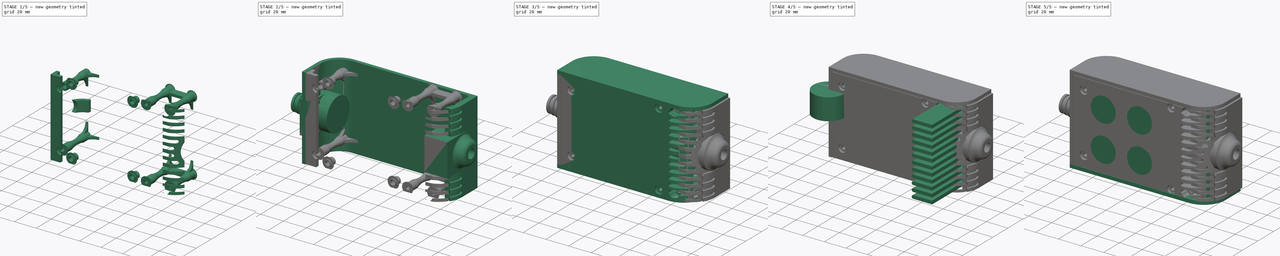
[diagram: build sequence overview — one tinted view per stage of 5, left to right]
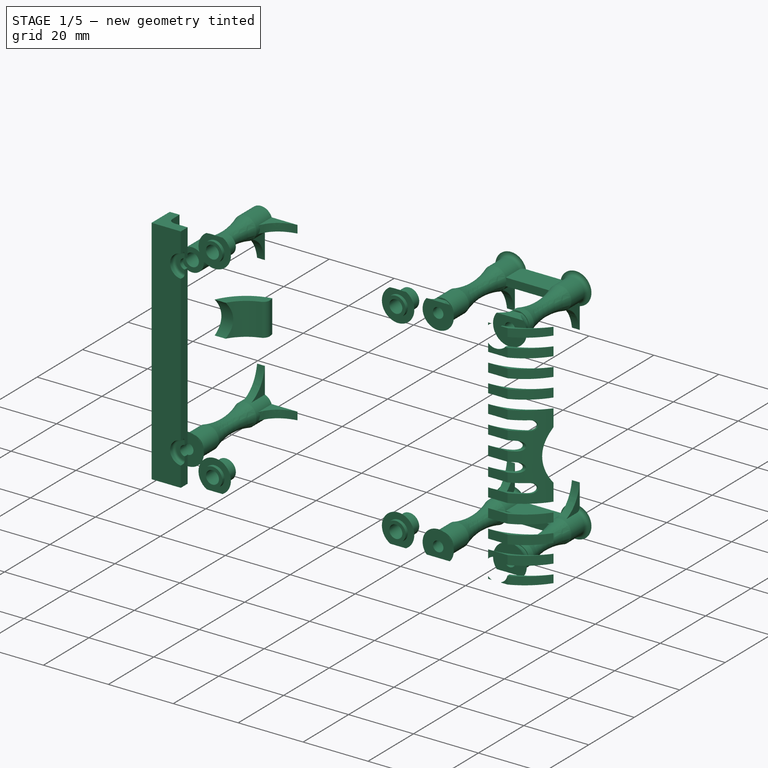
[diagram: stage 1 of 5 — iso view after this stage's code; geometry added in this stage tinted green]
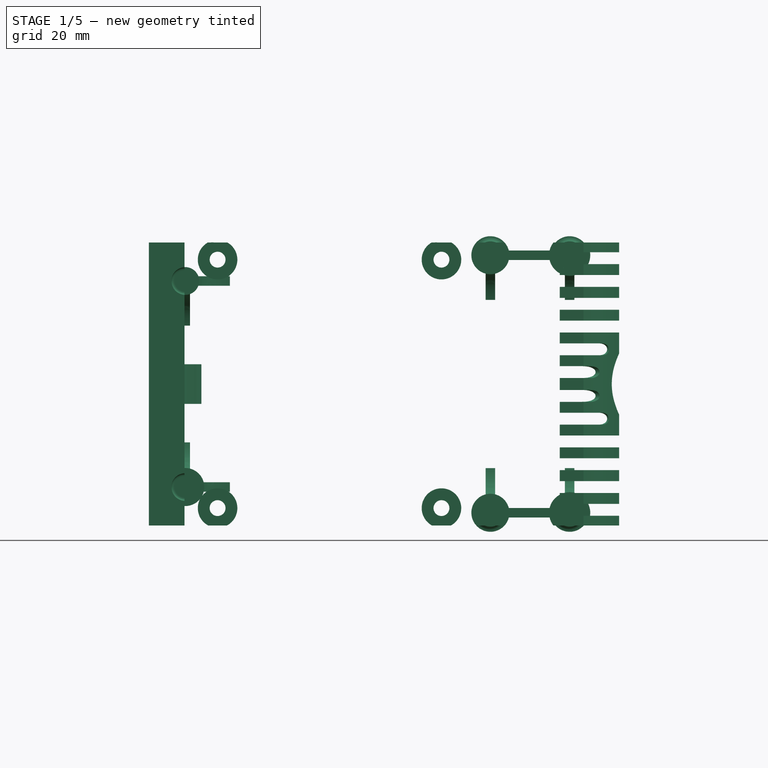
[diagram: stage 1 of 5 — front view after this stage's code; geometry added in this stage tinted green]
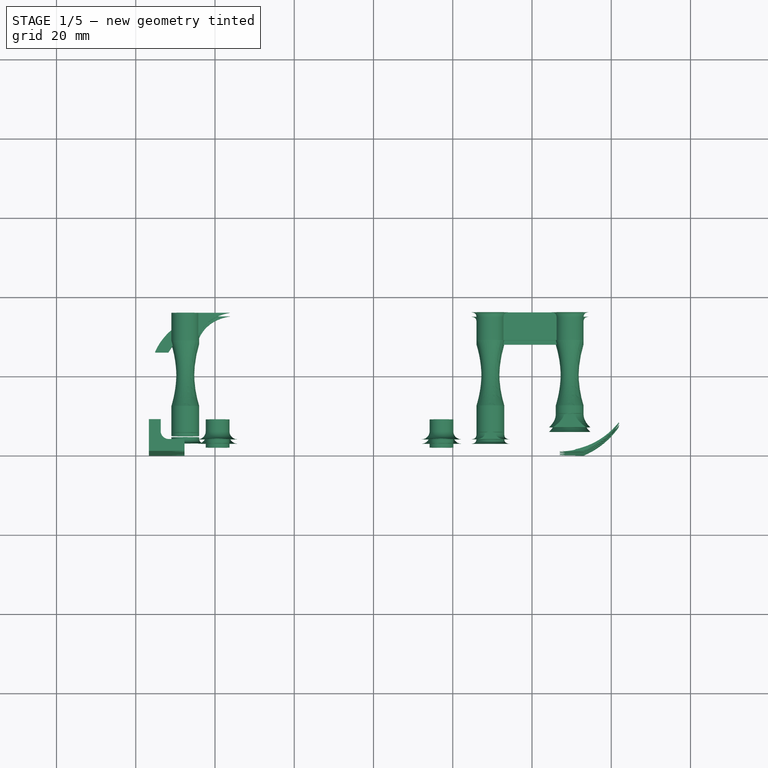
[diagram: stage 1 of 5 — top view after this stage's code; geometry added in this stage tinted green]
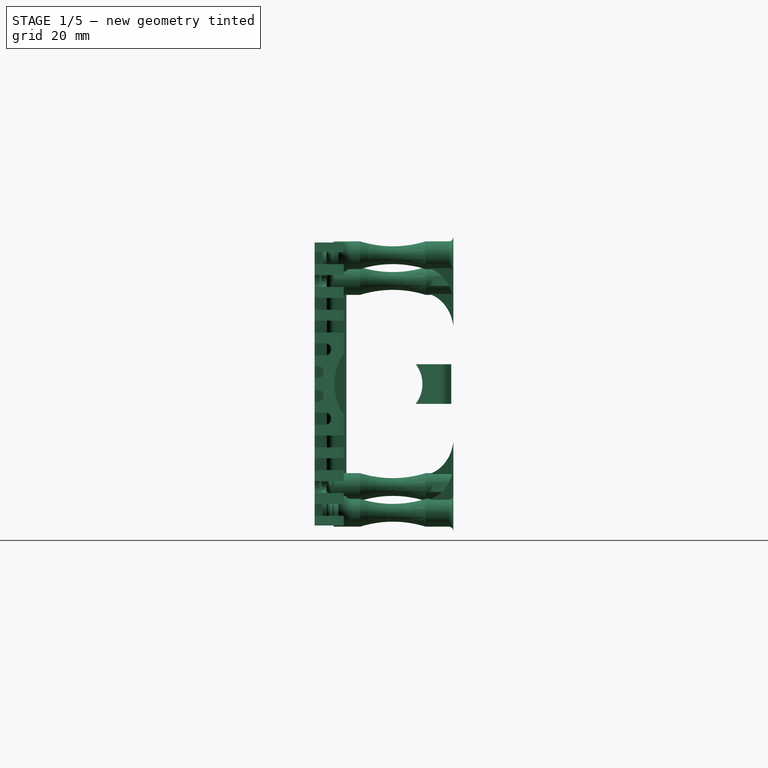
[diagram: stage 1 of 5 — right view after this stage's code; geometry added in this stage tinted green]
FCSTD DOCUMENT  (FreeCAD 0.19R0.19.2)
Label: enclosure_167FCStd
License: All rights reserved
LicenseURL: http://en.wikipedia.org/wiki/All_rights_reserved
objects: Part::Feature×140, Part::Revolution×140, Part::MultiFuse×125, Sketcher::SketchObject×71, Part::Extrusion×56, Part::Cut×56, Part::Cylinder×54, Part::Fillet×53, Part::Box×33, App::MeasureDistance×4
note: 728 computed .brp shape members not serialized (recipe doc carries the construction recipe); baked Part::Feature solids carry a one-line shape summary decoded from their .brp

FEATURE [Part::Feature] Face085
  shape: bbox 4.8 x 25.5 x 2e-07 mm, 1 faces, 0 solids (baked)
FEATURE [Part::Revolution] Revolve089  label="moreFrontCaseScrewPost003"
  Angle = 360
  Axis = (0,1,0)
  Base = (0,0,0)
  FaceMakerClass = Part::FaceMakerBullseye
  Placement = pos=(109.5,4.5,3.5) rot=(0,0,1;0rad)
  Solid = false
  Source = -> Face085
  Symmetric = false
FEATURE [Part::Feature] Face086
  shape: bbox 4.8 x 25.5 x 2e-07 mm, 1 faces, 0 solids (baked)
FEATURE [Part::Revolution] Revolve090  label="moreFrontCaseScrewPost004"
  Angle = 360
  Axis = (0,1,0)
  Base = (0,0,0)
  FaceMakerClass = Part::FaceMakerBullseye
  Placement = pos=(109.5,4.5,68.5) rot=(0,0,1;0rad)
  Solid = false
  Source = -> Face086
  Symmetric = false
FEATURE [Sketcher::SketchObject] Sketch039
  FullyConstrained = true
  sketch-geometry (7):
    g0: LineSegment StartX=0 StartY=0 StartZ=0 EndX=0 EndY=6 EndZ=0
    g1: Circle CenterX=0 CenterY=0 CenterZ=0 NormalX=0 NormalY=0 NormalZ=1 AngleXU=0 Radius=1
    g2: Circle CenterX=8 CenterY=6 CenterZ=0 NormalX=0 NormalY=0 NormalZ=1 AngleXU=0 Radius=1
    g3: BSplineCurve PolesCount=3 KnotsCount=2 Degree=2 IsPeriodic=0
    g4: GeomPoint X=0 Y=0 Z=0
    g5: GeomPoint X=8 Y=6 Z=0
    g6: LineSegment StartX=0 StartY=6 StartZ=0 EndX=8 EndY=6 EndZ=0
  constraints (14):
    c: Coincident(g0,g-1)
    c: Distance(g0) = 6
    c: Vertical(g0)
    c: Coincident(g3,g0)
    c: Weight(g1) = 1
    c: Equal(g1,g2)
    c: InternalAlignment(g1,g3)
    c: InternalAlignment(g2,g3)
    c: InternalAlignment(g4,g3)
    c: InternalAlignment(g5,g3)
    c: Block(g3)
    c: Coincident(g6,g0)
    c: Coincident(g6,g3)
    c: Horizontal(g6)
FEATURE [Sketcher::SketchObject] Sketch040
  FullyConstrained = true
  sketch-geometry (7):
    g0: LineSegment StartX=0 StartY=0 StartZ=0 EndX=0 EndY=6 EndZ=0
    g1: Circle CenterX=0 CenterY=0 CenterZ=0 NormalX=0 NormalY=0 NormalZ=1 AngleXU=0 Radius=1
    g2: Circle CenterX=8 CenterY=6 CenterZ=0 NormalX=0 NormalY=0 NormalZ=1 AngleXU=0 Radius=1
    g3: BSplineCurve PolesCount=3 KnotsCount=2 Degree=2 IsPeriodic=0
    g4: GeomPoint X=0 Y=0 Z=0
    g5: GeomPoint X=8 Y=6 Z=0
    g6: LineSegment StartX=0 StartY=6 StartZ=0 EndX=8 EndY=6 EndZ=0
  constraints (14):
    c: Coincident(g0,g-1)
    c: Distance(g0) = 6
    c: Vertical(g0)
    c: Coincident(g3,g0)
    c: Weight(g1) = 1
    c: Equal(g1,g2)
    c: InternalAlignment(g1,g3)
    c: InternalAlignment(g2,g3)
    c: InternalAlignment(g4,g3)
    c: InternalAlignment(g5,g3)
    c: Block(g3)
    c: Coincident(g6,g0)
    c: Coincident(g6,g3)
    c: Horizontal(g6)
FEATURE [Sketcher::SketchObject] Sketch041
  FullyConstrained = true
  sketch-geometry (7):
    g0: LineSegment StartX=0 StartY=0 StartZ=0 EndX=0 EndY=6 EndZ=0
    g1: Circle CenterX=0 CenterY=0 CenterZ=0 NormalX=0 NormalY=0 NormalZ=1 AngleXU=0 Radius=1
    g2: Circle CenterX=8 CenterY=6 CenterZ=0 NormalX=0 NormalY=0 NormalZ=1 AngleXU=0 Radius=1
    g3: BSplineCurve PolesCount=3 KnotsCount=2 Degree=2 IsPeriodic=0
    g4: GeomPoint X=0 Y=0 Z=0
    g5: GeomPoint X=8 Y=6 Z=0
    g6: LineSegment StartX=0 StartY=6 StartZ=0 EndX=8 EndY=6 EndZ=0
  constraints (14):
    c: Coincident(g0,g-1)
    c: Distance(g0) = 6
    c: Vertical(g0)
    c: Coincident(g3,g0)
    c: Weight(g1) = 1
    c: Equal(g1,g2)
    c: InternalAlignment(g1,g3)
    c: InternalAlignment(g2,g3)
    c: InternalAlignment(g4,g3)
    c: InternalAlignment(g5,g3)
    c: Block(g3)
    c: Coincident(g6,g0)
    c: Coincident(g6,g3)
    c: Horizontal(g6)
FEATURE [Sketcher::SketchObject] Sketch042
  FullyConstrained = true
  sketch-geometry (7):
    g0: LineSegment StartX=0 StartY=0 StartZ=0 EndX=0 EndY=6 EndZ=0
    g1: Circle CenterX=0 CenterY=0 CenterZ=0 NormalX=0 NormalY=0 NormalZ=1 AngleXU=0 Radius=1
    g2: Circle CenterX=8 CenterY=6 CenterZ=0 NormalX=0 NormalY=0 NormalZ=1 AngleXU=0 Radius=1
    g3: BSplineCurve PolesCount=3 KnotsCount=2 Degree=2 IsPeriodic=0
    g4: GeomPoint X=0 Y=0 Z=0
    g5: GeomPoint X=8 Y=6 Z=0
    g6: LineSegment StartX=0 StartY=6 StartZ=0 EndX=8 EndY=6 EndZ=0
  constraints (14):
    c: Coincident(g0,g-1)
    c: Distance(g0) = 6
    c: Vertical(g0)
    c: Coincident(g3,g0)
    c: Weight(g1) = 1
    c: Equal(g1,g2)
    c: InternalAlignment(g1,g3)
    c: InternalAlignment(g2,g3)
    c: InternalAlignment(g4,g3)
    c: InternalAlignment(g5,g3)
    c: Block(g3)
    c: Coincident(g6,g0)
    c: Coincident(g6,g3)
    c: Horizontal(g6)
FEATURE [Part::Extrusion] Extrude030  label="caseScrewPillarBracket008"
  Base = -> Sketch039
  Dir = (0,0,1)
  DirMode = 2
  FaceMakerClass = Part::FaceMakerBullseye
  LengthFwd = 2.4
  LengthRev = 0
  Placement = pos=(15.76,29,8.8) rot=(0,1,0;0rad)
  Solid = true
  Symmetric = false
FEATURE [Part::Extrusion] Extrude031  label="caseScrewPillarBracket009"
  Base = -> Sketch040
  Dir = (0,0,1)
  DirMode = 2
  FaceMakerClass = Part::FaceMakerBullseye
  LengthFwd = 2.4
  LengthRev = 0
  Placement = pos=(15.76,29,60.8) rot=(0,0,1;0rad)
  Solid = true
  Symmetric = false
FEATURE [Part::Extrusion] Extrude032  label="caseScrewPillarBracket010"
  Base = -> Sketch041
  Dir = (0,0,1)
  DirMode = 2
  FaceMakerClass = Part::FaceMakerBullseye
  LengthFwd = 2.4
  LengthRev = 0
  Placement = pos=(13.7,29,13.26) rot=(0,-1,0;1.5708rad)
  Solid = true
  Symmetric = false
FEATURE [Part::Extrusion] Extrude033  label="caseScrewPillarBracket011"
  Base = -> Sketch042
  Dir = (0,0,1)
  DirMode = 2
  FaceMakerClass = Part::FaceMakerBullseye
  LengthFwd = 2.4
  LengthRev = 0
  Placement = pos=(11.3,29,58.74) rot=(0,1,0;1.5708rad)
  Solid = true
  Symmetric = false
FEATURE [Sketcher::SketchObject] Sketch043
  FullyConstrained = true
  sketch-geometry (7):
    g0: LineSegment StartX=0 StartY=0 StartZ=0 EndX=0 EndY=6 EndZ=0
    g1: Circle CenterX=0 CenterY=0 CenterZ=0 NormalX=0 NormalY=0 NormalZ=1 AngleXU=0 Radius=1
    g2: Circle CenterX=8 CenterY=6 CenterZ=0 NormalX=0 NormalY=0 NormalZ=1 AngleXU=0 Radius=1
    g3: BSplineCurve PolesCount=3 KnotsCount=2 Degree=2 IsPeriodic=0
    g4: GeomPoint X=0 Y=0 Z=0
    g5: GeomPoint X=8 Y=6 Z=0
    g6: LineSegment StartX=0 StartY=6 StartZ=0 EndX=8 EndY=6 EndZ=0
  constraints (14):
    c: Coincident(g0,g-1)
    c: Distance(g0) = 6
    c: Vertical(g0)
    c: Coincident(g3,g0)
    c: Weight(g1) = 1
    c: Equal(g1,g2)
    c: InternalAlignment(g1,g3)
    c: InternalAlignment(g2,g3)
    c: InternalAlignment(g4,g3)
    c: InternalAlignment(g5,g3)
    c: Block(g3)
    c: Coincident(g6,g0)
    c: Coincident(g6,g3)
    c: Horizontal(g6)
FEATURE [Part::Extrusion] Extrude034  label="caseScrewPillarBracket012"
  Base = -> Sketch043
  Dir = (0,0,1)
  DirMode = 2
  FaceMakerClass = Part::FaceMakerBullseye
  LengthFwd = 2.4
  LengthRev = 0
  Placement = pos=(88.3,29,65.23) rot=(0,1,0;1.5708rad)
  Solid = true
  Symmetric = false
FEATURE [Sketcher::SketchObject] Sketch044
  FullyConstrained = true
  sketch-geometry (7):
    g0: LineSegment StartX=0 StartY=0 StartZ=0 EndX=0 EndY=6 EndZ=0
    g1: Circle CenterX=0 CenterY=0 CenterZ=0 NormalX=0 NormalY=0 NormalZ=1 AngleXU=0 Radius=1
    g2: Circle CenterX=8 CenterY=6 CenterZ=0 NormalX=0 NormalY=0 NormalZ=1 AngleXU=0 Radius=1
    g3: BSplineCurve PolesCount=3 KnotsCount=2 Degree=2 IsPeriodic=0
    g4: GeomPoint X=0 Y=0 Z=0
    g5: GeomPoint X=8 Y=6 Z=0
    g6: LineSegment StartX=0 StartY=6 StartZ=0 EndX=8 EndY=6 EndZ=0
  constraints (14):
    c: Coincident(g0,g-1)
    c: Distance(g0) = 6
    c: Vertical(g0)
    c: Coincident(g3,g0)
    c: Weight(g1) = 1
    c: Equal(g1,g2)
    c: InternalAlignment(g1,g3)
    c: InternalAlignment(g2,g3)
    c: InternalAlignment(g4,g3)
    c: InternalAlignment(g5,g3)
    c: Block(g3)
    c: Coincident(g6,g0)
    c: Coincident(g6,g3)
    c: Horizontal(g6)
FEATURE [Part::Extrusion] Extrude035  label="caseScrewPillarBracket013"
  Base = -> Sketch044
  Dir = (0,0,1)
  DirMode = 2
  FaceMakerClass = Part::FaceMakerBullseye
  LengthFwd = 2.4
  LengthRev = 0
  Placement = pos=(90.7,29,6.77) rot=(0,-1,0;1.5708rad)
  Solid = true
  Symmetric = false
FEATURE [Sketcher::SketchObject] Sketch045
  FullyConstrained = true
  sketch-geometry (7):
    g0: LineSegment StartX=0 StartY=0 StartZ=0 EndX=0 EndY=6 EndZ=0
    g1: Circle CenterX=0 CenterY=0 CenterZ=0 NormalX=0 NormalY=0 NormalZ=1 AngleXU=0 Radius=1
    g2: Circle CenterX=8 CenterY=6 CenterZ=0 NormalX=0 NormalY=0 NormalZ=1 AngleXU=0 Radius=1
    g3: BSplineCurve PolesCount=3 KnotsCount=2 Degree=2 IsPeriodic=0
    g4: GeomPoint X=0 Y=0 Z=0
    g5: GeomPoint X=8 Y=6 Z=0
    g6: LineSegment StartX=0 StartY=6 StartZ=0 EndX=8 EndY=6 EndZ=0
  constraints (14):
    c: Coincident(g0,g-1)
    c: Distance(g0) = 6
    c: Vertical(g0)
    c: Coincident(g3,g0)
    c: Weight(g1) = 1
    c: Equal(g1,g2)
    c: InternalAlignment(g1,g3)
    c: InternalAlignment(g2,g3)
    c: InternalAlignment(g4,g3)
    c: InternalAlignment(g5,g3)
    c: Block(g3)
    c: Coincident(g6,g0)
    c: Coincident(g6,g3)
    c: Horizontal(g6)
FEATURE [Sketcher::SketchObject] Sketch046
  FullyConstrained = true
  sketch-geometry (7):
    g0: LineSegment StartX=0 StartY=0 StartZ=0 EndX=0 EndY=6 EndZ=0
    g1: Circle CenterX=0 CenterY=0 CenterZ=0 NormalX=0 NormalY=0 NormalZ=1 AngleXU=0 Radius=1
    g2: Circle CenterX=8 CenterY=6 CenterZ=0 NormalX=0 NormalY=0 NormalZ=1 AngleXU=0 Radius=1
    g3: BSplineCurve PolesCount=3 KnotsCount=2 Degree=2 IsPeriodic=0
    g4: GeomPoint X=0 Y=0 Z=0
    g5: GeomPoint X=8 Y=6 Z=0
    g6: LineSegment StartX=0 StartY=6 StartZ=0 EndX=8 EndY=6 EndZ=0
  constraints (14):
    c: Coincident(g0,g-1)
    c: Distance(g0) = 6
    c: Vertical(g0)
    c: Coincident(g3,g0)
    c: Weight(g1) = 1
    c: Equal(g1,g2)
    c: InternalAlignment(g1,g3)
    c: InternalAlignment(g2,g3)
    c: InternalAlignment(g4,g3)
    c: InternalAlignment(g5,g3)
    c: Block(g3)
    c: Coincident(g6,g0)
    c: Coincident(g6,g3)
    c: Horizontal(g6)
FEATURE [Part::Extrusion] Extrude036  label="caseScrewPillarBracket014"
  Base = -> Sketch045
  Dir = (0,0,1)
  DirMode = 2
  FaceMakerClass = Part::FaceMakerBullseye
  LengthFwd = 2.4
  LengthRev = 0
  Placement = pos=(110.7,29,6.77) rot=(0,-1,0;1.5708rad)
  Solid = true
  Symmetric = false
FEATURE [Part::Extrusion] Extrude037  label="caseScrewPillarBracket015"
  Base = -> Sketch046
  Dir = (0,0,1)
  DirMode = 2
  FaceMakerClass = Part::FaceMakerBullseye
  LengthFwd = 2.4
  LengthRev = 0
  Placement = pos=(108.3,29,65.23) rot=(0,1,0;1.5708rad)
  Solid = true
  Symmetric = false
FEATURE [Part::Box] Box013  label="frontCaseScrewPillarBracket002"
  AttacherType = Attacher::AttachEngine3D
  Height = 2.4
  Length = 22
  Placement = pos=(87,28,2.3) rot=(0,0,1;0rad)
  Width = 7
FEATURE [Part::Box] Box014  label="frontCaseScrewPillarBracket003"
  AttacherType = Attacher::AttachEngine3D
  Height = 2.4
  Length = 22
  Placement = pos=(87,28,67.3) rot=(0,0,1;0rad)
  Width = 7
FEATURE [Part::Feature] Face087
  shape: bbox 4.8 x 30.2 x 2e-07 mm, 1 faces, 0 solids (baked)
FEATURE [Part::Revolution] Revolve091  label="frontCaseScrewPost004"
  Angle = 360
  Axis = (0,1,0)
  Base = (0,0,0)
  FaceMakerClass = Part::FaceMakerBullseye
  Placement = pos=(89.5,4.5,3.5) rot=(0,0,1;0rad)
  Solid = false
  Source = -> Face087
  Symmetric = false
FEATURE [Part::Feature] Face088
  shape: bbox 4.8 x 30.2 x 2e-07 mm, 1 faces, 0 solids (baked)
FEATURE [Part::Revolution] Revolve092  label="frontCaseScrewPost005"
  Angle = 360
  Axis = (0,1,0)
  Base = (0,0,0)
  FaceMakerClass = Part::FaceMakerBullseye
  Placement = pos=(89.5,4.5,68.5) rot=(0,0,1;0rad)
  Solid = false
  Source = -> Face088
  Symmetric = false
FEATURE [Part::Feature] Face089
  shape: bbox 3.5 x 30.2 x 2e-07 mm, 1 faces, 0 solids (baked)
FEATURE [Part::Revolution] Revolve093  label="backCaseScrewPost002"
  Angle = 360
  Axis = (0,1,0)
  Base = (0,0,0)
  FaceMakerClass = Part::FaceMakerBullseye
  Placement = pos=(12.5,4.5,10) rot=(0,0,1;0rad)
  Solid = false
  Source = -> Face089
  Symmetric = false
FEATURE [Part::Feature] Face090
  shape: bbox 3.5 x 30.2 x 2e-07 mm, 1 faces, 0 solids (baked)
FEATURE [Part::Revolution] Revolve094  label="backCaseScrewPost003"
  Angle = 360
  Axis = (0,1,0)
  Base = (0,0,0)
  FaceMakerClass = Part::FaceMakerBullseye
  Placement = pos=(12.5,4.5,62) rot=(0,0,1;0rad)
  Solid = false
  Source = -> Face090
  Symmetric = false
FEATURE [Part::Cylinder] Cylinder030
  Angle = 360
  AttacherType = Attacher::AttachEngine3D
  Height = 20
  Placement = pos=(0,0,36.15) rot=(0,0,1;0rad)
  Radius = 14.3
FEATURE [Part::Cylinder] Cylinder031
  Angle = 360
  AttacherType = Attacher::AttachEngine3D
  Height = 10
  Placement = pos=(0,0,36.15) rot=(0,0,1;0rad)
  Radius = 4
FEATURE [Part::Box] Box021  label="removeToCreteHoleForPlugHousing019"
  AttacherType = Attacher::AttachEngine3D
  Height = 28.6
  Length = 20
  Placement = pos=(106.15,0,21.7) rot=(0,0,1;0rad)
  Width = 19
FEATURE [Part::MultiFuse] Fusion074  label="removeToCreteHoleForPlugHousing020"
  Placement = pos=(70,19,36) rot=(0,1,0;1.5708rad)
  Shapes = -> [Cylinder030,Cylinder031]
FEATURE [Part::MultiFuse] Fusion073  label="removeToCreteHoleForPlugHousing018"
  Placement = pos=(0,0,28.3) rot=(0,0,1;0rad)
  Shapes = -> [Box021,Fusion074]
FEATURE [Part::Cylinder] Cylinder032
  Angle = 360
  AttacherType = Attacher::AttachEngine3D
  Height = 20
  Placement = pos=(0,0,36.15) rot=(0,0,1;0rad)
  Radius = 14.3
FEATURE [Part::Cylinder] Cylinder033
  Angle = 360
  AttacherType = Attacher::AttachEngine3D
  Height = 10
  Placement = pos=(0,0,36.15) rot=(0,0,1;0rad)
  Radius = 4
FEATURE [Part::Box] Box022  label="removeToCreteHoleForPlugHousing021"
  AttacherType = Attacher::AttachEngine3D
  Height = 28.6
  Length = 20
  Placement = pos=(106.15,0,21.7) rot=(0,0,1;0rad)
  Width = 19
FEATURE [Part::MultiFuse] Fusion076  label="removeToCreteHoleForPlugHousing023"
  Placement = pos=(70,19,36) rot=(0,1,0;1.5708rad)
  Shapes = -> [Cylinder032,Cylinder033]
FEATURE [Part::MultiFuse] Fusion075  label="removeToCreteHoleForPlugHousing022"
  Placement = pos=(0,0,-28.3) rot=(0,0,1;0rad)
  Shapes = -> [Box022,Fusion076]
FEATURE [Part::MultiFuse] Fusion077  label="removeToCreatePlugHousingBottomBit"
  Shapes = -> [Fusion075,Fusion073]
FEATURE [Part::Cylinder] Cylinder034
  Angle = 360
  AttacherType = Attacher::AttachEngine3D
  Height = 20
  Placement = pos=(0,0,36.15) rot=(0,0,1;0rad)
  Radius = 14
FEATURE [Part::Cylinder] Cylinder035
  Angle = 360
  AttacherType = Attacher::AttachEngine3D
  Height = 10
  Placement = pos=(0,0,36.15) rot=(0,0,1;0rad)
  Radius = 4
FEATURE [Part::MultiFuse] Fusion078  label="removeToCreteHoleForPlugHousing024"
  Placement = pos=(70,19,36) rot=(0,1,0;1.5708rad)
  Shapes = -> [Cylinder034,Cylinder035]
FEATURE [Part::MultiFuse] Fusion079  label="removeToCreatePlugHousingBottomBit001"
  Shapes = -> [Fusion078,Fusion077]
FEATURE [Part::Extrusion] Extrude040  label="bottomPlugHousingBit"
  Base = -> Sketch049
  Dir = (0,0,1)
  DirMode = 2
  FaceMakerClass = Part::FaceMakerBullseye
  LengthFwd = 72
  LengthRev = 0
  Solid = true
  Symmetric = false
FEATURE [Part::Cut] Cut034  label="bottomPlugHousingBit001"
  Base = -> Extrude040
  Placement = pos=(-0.09,0,0) rot=(0,0,1;0rad)
  Tool = -> Fusion079
FEATURE [Part::Feature] Face099
  shape: bbox 3.5 x 17.8 x 2e-07 mm, 1 faces, 0 solids (baked)
FEATURE [Part::Revolution] Revolve107  label="removeToCreateScrewAndThreadedInsertHole034"
  Angle = 360
  Axis = (0,1,0)
  Base = (0,0,0)
  FaceMakerClass = Part::FaceMakerBullseye
  Placement = pos=(12.5,0,10) rot=(0,0,1;0rad)
  Solid = false
  Source = -> Face099
  Symmetric = false
FEATURE [Part::Feature] Face100
  shape: bbox 3.5 x 17.8 x 2e-07 mm, 1 faces, 0 solids (baked)
FEATURE [Part::Revolution] Revolve108  label="removeToCreateScrewAndThreadedInsertHole035"
  Angle = 360
  Axis = (0,1,0)
  Base = (0,0,0)
  FaceMakerClass = Part::FaceMakerBullseye
  Placement = pos=(12.5,0,62) rot=(0,0,1;0rad)
  Solid = false
  Source = -> Face100
  Symmetric = false
FEATURE [Part::Feature] Face101
  shape: bbox 3.5 x 17.8 x 2e-07 mm, 1 faces, 0 solids (baked)
FEATURE [Part::Revolution] Revolve109  label="removeToCreateScrewAndThreadedInsertHole036"
  Angle = 360
  Axis = (0,1,0)
  Base = (0,0,0)
  FaceMakerClass = Part::FaceMakerBullseye
  Placement = pos=(89.5,0,68.5) rot=(0,0,1;0rad)
  Solid = false
  Source = -> Face101
  Symmetric = false
FEATURE [Part::Feature] Face102
  shape: bbox 3.5 x 17.8 x 2e-07 mm, 1 faces, 0 solids (baked)
FEATURE [Part::Revolution] Revolve110  label="removeToCreateScrewAndThreadedInsertHole037"
  Angle = 360
  Axis = (0,1,0)
  Base = (0,0,0)
  FaceMakerClass = Part::FaceMakerBullseye
  Placement = pos=(89.5,0,3.5) rot=(0,0,1;0rad)
  Solid = false
  Source = -> Face102
  Symmetric = false
FEATURE [Part::Feature] Face103
  shape: bbox 3.5 x 17.8 x 2e-07 mm, 1 faces, 0 solids (baked)
FEATURE [Part::Revolution] Revolve111  label="removeToCreateScrewAndThreadedInsertHole038"
  Angle = 360
  Axis = (0,1,0)
  Base = (0,0,0)
  FaceMakerClass = Part::FaceMakerBullseye
  Placement = pos=(109.5,4.7,3.5) rot=(0,0,1;0rad)
  Solid = false
  Source = -> Face103
  Symmetric = false
FEATURE [Part::Feature] Face104
  shape: bbox 3.5 x 17.8 x 2e-07 mm, 1 faces, 0 solids (baked)
FEATURE [Part::Revolution] Revolve112  label="removeToCreateScrewAndThreadedInsertHole039"
  Angle = 360
  Axis = (0,1,0)
  Base = (0,0,0)
  FaceMakerClass = Part::FaceMakerBullseye
  Placement = pos=(109.5,4.7,68.5) rot=(0,0,1;0rad)
  Solid = false
  Source = -> Face104
  Symmetric = false
FEATURE [Part::MultiFuse] Fusion081  label="removeToCreateScrewAndThreadedInsertHole040"
  Shapes = -> [Revolve107,Revolve108,Revolve109,Revolve110,Revolve111,Revolve112]
FEATURE [Part::MultiFuse] Fusion082  label="casePillars002"
  Shapes = -> [Revolve094,Revolve092,Revolve090,Revolve089,Revolve091,Revolve093]
FEATURE [Part::Cut] Cut037  label="casePillars003"
  Base = -> Fusion082
  Tool = -> Fusion081
FEATURE [Sketcher::SketchObject] Sketch052  label="bottomSketch001"
  FullyConstrained = true
  sketch-geometry (45):
    g0: LineSegment StartX=6.29999 StartY=8 StartZ=0 EndX=3.29999 EndY=8 EndZ=0
    g1: LineSegment StartX=3.29999 StartY=8 StartZ=0 EndX=3.29999 EndY=-6.03275e-07 EndZ=0
    g2: ArcOfCircle CenterX=8.29999 CenterY=5 CenterZ=0 NormalX=0 NormalY=0 NormalZ=1 AngleXU=0 Radius=2 StartAngle=3.14159 EndAngle=4.71239
    g3: LineSegment StartX=6.29999 StartY=8 StartZ=0 EndX=6.29999 EndY=5 EndZ=0
    g4: ArcOfCircle CenterX=105 CenterY=19 CenterZ=0 NormalX=0 NormalY=0 NormalZ=1 AngleXU=0 Radius=12.7 StartAngle=4.71239 EndAngle=5.94289
    g5-g11: Circle x7 (B-spline internal-alignment scaffolding for g12; pole/knot coordinates omitted)
    g12: BSplineCurve PolesCount=7 KnotsCount=5 Degree=3 IsPeriodic=0
    g13-g17: GeomPoint x5 (B-spline internal-alignment scaffolding for g12; pole/knot coordinates omitted)
    g18: ArcOfCircle CenterX=105 CenterY=19 CenterZ=0 NormalX=0 NormalY=0 NormalZ=1 AngleXU=0 Radius=15.7 StartAngle=5.81226 EndAngle=6.28319
    g19: BSplineCurve PolesCount=5 KnotsCount=3 Degree=3 IsPeriodic=0
    g20: LineSegment StartX=8.29999 StartY=3 StartZ=0 EndX=101.7 EndY=3 EndZ=0
    g21: LineSegment StartX=3.29999 StartY=-6.03275e-07 StartZ=0 EndX=105 EndY=-6.03275e-07 EndZ=0
    g22: LineSegment StartX=120.974 StartY=8.71251 StartZ=0 EndX=122.332 EndY=7.83778 EndZ=0
    g23: LineSegment StartX=105 StartY=-6.03274e-07 StartZ=0 EndX=113 EndY=-6.03274e-07 EndZ=0
    g24: ArcOfCircle CenterX=105 CenterY=19 CenterZ=0 NormalX=0 NormalY=0 NormalZ=1 AngleXU=0 Radius=20.6155 StartAngle=5.11091 EndAngle=5.71103
    g25: ArcOfCircle CenterX=117.7 CenterY=19 CenterZ=0 NormalX=0 NormalY=0 NormalZ=1 AngleXU=0 Radius=3 StartAngle=1.2e-15 EndAngle=2.10468
    g26: Circle CenterX=116.345 CenterY=16.3232 CenterZ=0 NormalX=0 NormalY=0 NormalZ=1 AngleXU=0 Radius=1
    g27: Circle CenterX=117.24 CenterY=15.7584 CenterZ=0 NormalX=0 NormalY=0 NormalZ=1 AngleXU=0 Radius=1
    g28: Circle CenterX=116.972 CenterY=14.7612 CenterZ=0 NormalX=0 NormalY=0 NormalZ=1 AngleXU=0 Radius=1
    g29: BSplineCurve PolesCount=3 KnotsCount=2 Degree=2 IsPeriodic=0
    g30: GeomPoint X=116.345 Y=16.3232 Z=0
    g31: GeomPoint X=116.972 Y=14.7612 Z=0
    g32: Circle CenterX=115.828 CenterY=17.157 CenterZ=0 NormalX=0 NormalY=0 NormalZ=1 AngleXU=0 Radius=1
    g33: Circle CenterX=115.841 CenterY=16.639 CenterZ=0 NormalX=0 NormalY=0 NormalZ=1 AngleXU=0 Radius=1
    g34: Circle CenterX=116.345 CenterY=16.3232 CenterZ=0 NormalX=0 NormalY=0 NormalZ=1 AngleXU=0 Radius=1
    g35: BSplineCurve PolesCount=3 KnotsCount=2 Degree=2 IsPeriodic=0
    g36: GeomPoint X=115.828 Y=17.157 Z=0
    g37: GeomPoint X=116.345 Y=16.3232 Z=0
    g38: LineSegment StartX=115.828 StartY=17.157 StartZ=0 EndX=115.828 EndY=20.8307 EndZ=0
    g39: Circle CenterX=115.828 CenterY=20.8307 CenterZ=0 NormalX=0 NormalY=0 NormalZ=1 AngleXU=0 Radius=1
    g40: Circle CenterX=115.831 CenterY=21.3396 CenterZ=0 NormalX=0 NormalY=0 NormalZ=1 AngleXU=0 Radius=1
    g41: Circle CenterX=116.173 CenterY=21.5825 CenterZ=0 NormalX=0 NormalY=0 NormalZ=1 AngleXU=0 Radius=1
    g42: BSplineCurve PolesCount=3 KnotsCount=2 Degree=2 IsPeriodic=0
    g43: GeomPoint X=115.828 Y=20.8307 Z=0
    g44: GeomPoint X=116.173 Y=21.5825 Z=0
  constraints (70):
    c: Horizontal(g0)
    c: Distance(g0) = 3
    c: Coincident(g1,g0)
    c: Vertical(g1)
    c: Block(g2)
    c: Block(g0)
    c: Coincident(g3,g0)
    c: Coincident(g3,g2)
    c: Vertical(g3)
    c: Block(g1)
    c: Block(g4)
    c: Coincident(g19,g4)
    c: Block(g19)
    c: Equal(g5, g6-g11) x6
    c: InternalAlignment(g5-g11 -> g12) x7
    c: InternalAlignment(g13-g17 -> g12) x5
    c: Block(g12)
    c: Coincident(g18,g12)
    c: Block(g18)
    c: Coincident(g20,g2)
    c: Coincident(g20,g19)
    c: Horizontal(g20)
    c: Distance(g20) = 93.4
    c: Coincident(g21,g1)
    c: Horizontal(g21)
    c: Distance(g21) = 101.7
    c: Horizontal(g23)
    c: Distance(g23) = 8
    c: Coincident(g24,g23)
    c: Block(g23)
    c: Coincident(g22,g24)
    c: Block(g24)
    c: Block(g22)
    c: Distance(g22) = 1.61553
    c: Coincident(g25,g18)
    c: Block(g25)
    c: Weight(g26) = 1
    c: Equal(g26,g27)
    c: Equal(g26,g28)
    c: Coincident(g29,g4)
    c: InternalAlignment(g26,g29)
    c: InternalAlignment(g27,g29)
    c: InternalAlignment(g28,g29)
    c: InternalAlignment(g30,g29)
    c: InternalAlignment(g31,g29)
    c: Block(g29)
    c: Weight(g32) = 1
    c: Equal(g32,g33)
    c: Equal(g32,g34)
    c: Coincident(g35,g29)
    c: InternalAlignment(g32,g35)
    c: InternalAlignment(g33,g35)
    c: InternalAlignment(g34,g35)
    c: InternalAlignment(g36,g35)
    c: InternalAlignment(g37,g35)
    c: Block(g35)
    c: Coincident(g38,g35)
    c: Vertical(g38)
    c: Block(g38)
    c: Coincident(g42,g38)
    c: Weight(g39) = 1
    c: Equal(g39,g40)
    c: Equal(g39,g41)
    c: Coincident(g42,g25)
    c: InternalAlignment(g39,g42)
    c: InternalAlignment(g40,g42)
    c: InternalAlignment(g41,g42)
    c: InternalAlignment(g43,g42)
    c: InternalAlignment(g44,g42)
    c: Block(g42)
FEATURE [Part::Extrusion] Extrude043  label="bottom010"
  Base = -> Sketch052
  Dir = (0,0,1)
  DirMode = 2
  FaceMakerClass = Part::FaceMakerBullseye
  LengthFwd = 71.4
  LengthRev = 0
  Placement = pos=(0,0,0.3) rot=(0,0,1;0rad)
  Solid = true
  Symmetric = false
FEATURE [Part::MultiFuse] Fusion092  label="caseScrewPillarBracket016"
  Shapes = -> [Extrude030,Extrude031,Extrude032,Extrude033,Extrude034,Extrude035,Extrude036,Extrude037,Box013,Box014]
FEATURE [Sketcher::SketchObject] Sketch059
  FullyConstrained = true
  MapMode = 3
  Placement = pos=(0,0,0) rot=(1,0,0;1.5708rad)
  Support = -> [Extrude049]
  sketch-geometry (8):
    g0: Circle CenterX=80.351 CenterY=-67.6202 CenterZ=0 NormalX=0 NormalY=0 NormalZ=1 AngleXU=0 Radius=2
    g1: Circle CenterX=80.351 CenterY=-67.6202 CenterZ=0 NormalX=0 NormalY=0 NormalZ=1 AngleXU=0 Radius=3
    g2: Circle CenterX=80.351 CenterY=-4.92017 CenterZ=0 NormalX=0 NormalY=0 NormalZ=1 AngleXU=0 Radius=2
    g3: Circle CenterX=80.351 CenterY=-4.92017 CenterZ=0 NormalX=0 NormalY=0 NormalZ=1 AngleXU=0 Radius=3
    g4: Circle CenterX=23.851 CenterY=-4.92017 CenterZ=0 NormalX=0 NormalY=0 NormalZ=1 AngleXU=0 Radius=2
    g5: Circle CenterX=23.851 CenterY=-4.92017 CenterZ=0 NormalX=0 NormalY=0 NormalZ=1 AngleXU=0 Radius=3
    g6: Circle CenterX=23.851 CenterY=-67.6202 CenterZ=0 NormalX=0 NormalY=0 NormalZ=1 AngleXU=0 Radius=2
    g7: Circle CenterX=23.851 CenterY=-67.6202 CenterZ=0 NormalX=0 NormalY=0 NormalZ=1 AngleXU=0 Radius=3
  constraints (8):
    c: Block(g3)
    c: Block(g2)
    c: Block(g1)
    c: Block(g0)
    c: Block(g6)
    c: Block(g7)
    c: Block(g4)
    c: Block(g5)
FEATURE [Sketcher::SketchObject] Sketch060
  FullyConstrained = true
  MapMode = 3
  Placement = pos=(0,0,0) rot=(1,0,0;1.5708rad)
  Support = -> [Extrude049]
  sketch-geometry (8):
    g0: Circle CenterX=80.351 CenterY=-67.6202 CenterZ=0 NormalX=0 NormalY=0 NormalZ=1 AngleXU=0 Radius=3
    g1: Circle CenterX=80.351 CenterY=-4.92017 CenterZ=0 NormalX=0 NormalY=0 NormalZ=1 AngleXU=0 Radius=3
    g2: Circle CenterX=23.851 CenterY=-4.92017 CenterZ=0 NormalX=0 NormalY=0 NormalZ=1 AngleXU=0 Radius=3
    g3: Circle CenterX=23.851 CenterY=-67.6202 CenterZ=0 NormalX=0 NormalY=0 NormalZ=1 AngleXU=0 Radius=3
    g4: Circle CenterX=23.851 CenterY=-67.6202 CenterZ=0 NormalX=0 NormalY=0 NormalZ=1 AngleXU=0 Radius=5
    g5: Circle CenterX=80.351 CenterY=-67.6202 CenterZ=0 NormalX=0 NormalY=0 NormalZ=1 AngleXU=0 Radius=5
    g6: Circle CenterX=23.851 CenterY=-4.92017 CenterZ=0 NormalX=0 NormalY=0 NormalZ=1 AngleXU=0 Radius=5
    g7: Circle CenterX=80.351 CenterY=-4.92017 CenterZ=0 NormalX=0 NormalY=0 NormalZ=1 AngleXU=0 Radius=5
  constraints (8):
    c: Block(g1)
    c: Block(g0)
    c: Block(g3)
    c: Block(g2)
    c: Block(g5)
    c: Block(g4)
    c: Block(g6)
    c: Block(g7)
FEATURE [Sketcher::SketchObject] Sketch061
  FullyConstrained = true
  MapMode = 3
  Placement = pos=(0,0,0) rot=(1,0,0;1.5708rad)
  sketch-geometry (8):
    g0: Circle CenterX=80.351 CenterY=-67.6202 CenterZ=0 NormalX=0 NormalY=0 NormalZ=1 AngleXU=0 Radius=3
    g1: Circle CenterX=80.351 CenterY=-4.92017 CenterZ=0 NormalX=0 NormalY=0 NormalZ=1 AngleXU=0 Radius=3
    g2: Circle CenterX=23.851 CenterY=-4.92017 CenterZ=0 NormalX=0 NormalY=0 NormalZ=1 AngleXU=0 Radius=3
    g3: Circle CenterX=23.851 CenterY=-67.6202 CenterZ=0 NormalX=0 NormalY=0 NormalZ=1 AngleXU=0 Radius=3
    g4: Circle CenterX=23.851 CenterY=-67.6202 CenterZ=0 NormalX=0 NormalY=0 NormalZ=1 AngleXU=0 Radius=5
    g5: Circle CenterX=80.351 CenterY=-67.6202 CenterZ=0 NormalX=0 NormalY=0 NormalZ=1 AngleXU=0 Radius=5
    g6: Circle CenterX=23.851 CenterY=-4.92017 CenterZ=0 NormalX=0 NormalY=0 NormalZ=1 AngleXU=0 Radius=5
    g7: Circle CenterX=80.351 CenterY=-4.92017 CenterZ=0 NormalX=0 NormalY=0 NormalZ=1 AngleXU=0 Radius=5
  constraints (8):
    c: Block(g1)
    c: Block(g0)
    c: Block(g3)
    c: Block(g2)
    c: Block(g5)
    c: Block(g4)
    c: Block(g6)
    c: Block(g7)
FEATURE [Sketcher::SketchObject] Sketch062  label="topSketch016"
  FullyConstrained = true
  sketch-geometry (20):
    g0: LineSegment StartX=5.21097e-06 StartY=3 StartZ=0 EndX=5.21097e-06 EndY=19 EndZ=0
    g1: ArcOfCircle CenterX=19 CenterY=19 CenterZ=0 NormalX=0 NormalY=0 NormalZ=1 AngleXU=0 Radius=19 StartAngle=1.5708 EndAngle=3.14159
    g2: ArcOfCircle CenterX=19 CenterY=19 CenterZ=0 NormalX=0 NormalY=0 NormalZ=1 AngleXU=0 Radius=16 StartAngle=1.5708 EndAngle=3.14159
    g3: LineSegment StartX=114 StartY=35 StartZ=0 EndX=19 EndY=35 EndZ=0
    g4: LineSegment StartX=5.21097e-06 StartY=3 StartZ=0 EndX=5.21097e-06 EndY=0 EndZ=0
    g5: LineSegment StartX=3 StartY=0 StartZ=0 EndX=5.21097e-06 EndY=0 EndZ=0
    g6: LineSegment StartX=3 StartY=19 StartZ=0 EndX=3 EndY=0 EndZ=0
    g7: LineSegment StartX=19 StartY=38 StartZ=0 EndX=124 EndY=38 EndZ=0
    g8: Circle CenterX=119 CenterY=35 CenterZ=0 NormalX=0 NormalY=0 NormalZ=1 AngleXU=0 Radius=1
    g9: Circle CenterX=121 CenterY=35 CenterZ=0 NormalX=0 NormalY=0 NormalZ=1 AngleXU=0 Radius=1
    g10: Circle CenterX=121 CenterY=33 CenterZ=0 NormalX=0 NormalY=0 NormalZ=1 AngleXU=0 Radius=1
    g11: BSplineCurve PolesCount=3 KnotsCount=2 Degree=2 IsPeriodic=0
    g12: GeomPoint X=119 Y=35 Z=0
    g13: GeomPoint X=121 Y=33 Z=0
    g14: LineSegment StartX=119 StartY=35 StartZ=0 EndX=114 EndY=35 EndZ=0
    g15: ArcOfCircle CenterX=105 CenterY=19 CenterZ=0 NormalX=0 NormalY=0 NormalZ=1 AngleXU=0 Radius=19 StartAngle=5.7297 EndAngle=6.28319
    g16: ArcOfCircle CenterX=105 CenterY=19 CenterZ=0 NormalX=0 NormalY=0 NormalZ=1 AngleXU=0 Radius=16 StartAngle=5.60905 EndAngle=6.28319
    g17: LineSegment StartX=121 StartY=33 StartZ=0 EndX=121 EndY=19 EndZ=0
    g18: LineSegment StartX=124 StartY=38 StartZ=0 EndX=124 EndY=19 EndZ=0
    g19: LineSegment StartX=117.5 StartY=9.01251 StartZ=0 EndX=121.163 EndY=9.0125 EndZ=0
  constraints (46):
    c: Vertical(g0)
    c: Block(g0)
    c: Coincident(g1,g0)
    c: Block(g1)
    c: Coincident(g2,g1)
    c: Block(g2)
    c: Coincident(g3,g2)
    c: Horizontal(g3)
    c: Tangent(g3,g2)
    c: Coincident(g4,g0)
    c: Distance(g4) = 3
    c: Vertical(g4)
    c: Coincident(g5,g4)
    c: Horizontal(g5)
    c: Coincident(g6,g2)
    c: Coincident(g6,g5)
    c: Vertical(g6)
    c: Horizontal(g7)
    c: Distance(g7) = 105
    c: Coincident(g7,g1)
    c: Block(g3)
    c: Weight(g8) = 1
    c: Equal(g8,g9)
    c: Equal(g8,g10)
    c: InternalAlignment(g8,g11)
    c: InternalAlignment(g9,g11)
    c: InternalAlignment(g10,g11)
    c: InternalAlignment(g12,g11)
    c: InternalAlignment(g13,g11)
    c: Block(g11)
    c: Coincident(g14,g11)
    c: Coincident(g14,g3)
    c: Horizontal(g14)
    c: Block(g15)
    c: Coincident(g16,g15)
    c: Block(g16)
    c: Coincident(g17,g11)
    c: Coincident(g17,g16)
    c: Vertical(g17)
    c: Distance(g17) = 14
    c: Coincident(g18,g7)
    c: Coincident(g18,g15)
    c: Vertical(g18)
    c: Distance(g18) = 19
    c: Coincident(g19,g16)
    c: Coincident(g19,g15)
FEATURE [Part::Extrusion] Extrude053  label="top024"
  Base = -> Sketch062
  Dir = (0,0,1)
  DirMode = 2
  FaceMakerClass = Part::FaceMakerBullseye
  LengthFwd = 72
  LengthRev = 0
  Solid = true
  Symmetric = false
FEATURE [Sketcher::SketchObject] Sketch063
  FullyConstrained = true
  MapMode = 3
  Placement = pos=(0,0,0) rot=(1,0,0;1.5708rad)
  Support = -> [Extrude053]
  sketch-geometry (8):
    g0: Circle CenterX=80.351 CenterY=-67.6202 CenterZ=0 NormalX=0 NormalY=0 NormalZ=1 AngleXU=0 Radius=2
    g1: Circle CenterX=80.351 CenterY=-67.6202 CenterZ=0 NormalX=0 NormalY=0 NormalZ=1 AngleXU=0 Radius=3
    g2: Circle CenterX=80.351 CenterY=-4.92017 CenterZ=0 NormalX=0 NormalY=0 NormalZ=1 AngleXU=0 Radius=2
    g3: Circle CenterX=80.351 CenterY=-4.92017 CenterZ=0 NormalX=0 NormalY=0 NormalZ=1 AngleXU=0 Radius=3
    g4: Circle CenterX=23.851 CenterY=-4.92017 CenterZ=0 NormalX=0 NormalY=0 NormalZ=1 AngleXU=0 Radius=2
    g5: Circle CenterX=23.851 CenterY=-4.92017 CenterZ=0 NormalX=0 NormalY=0 NormalZ=1 AngleXU=0 Radius=3
    g6: Circle CenterX=23.851 CenterY=-67.6202 CenterZ=0 NormalX=0 NormalY=0 NormalZ=1 AngleXU=0 Radius=2
    g7: Circle CenterX=23.851 CenterY=-67.6202 CenterZ=0 NormalX=0 NormalY=0 NormalZ=1 AngleXU=0 Radius=3
  constraints (8):
    c: Block(g3)
    c: Block(g2)
    c: Block(g1)
    c: Block(g0)
    c: Block(g6)
    c: Block(g7)
    c: Block(g4)
    c: Block(g5)
FEATURE [Part::Extrusion] Extrude054
  Base = -> Sketch063
  Dir = (0,-1,2e-16)
  DirMode = 2
  FaceMakerClass = Part::FaceMakerBullseye
  LengthFwd = 6
  LengthRev = 0
  Placement = pos=(0,9,0) rot=(0,0,1;0rad)
  Solid = true
  Symmetric = false
FEATURE [Sketcher::SketchObject] Sketch064  label="topSketch017"
  FullyConstrained = true
  sketch-geometry (20):
    g0: LineSegment StartX=5.21097e-06 StartY=3 StartZ=0 EndX=5.21097e-06 EndY=19 EndZ=0
    g1: ArcOfCircle CenterX=19 CenterY=19 CenterZ=0 NormalX=0 NormalY=0 NormalZ=1 AngleXU=0 Radius=19 StartAngle=1.5708 EndAngle=3.14159
    g2: ArcOfCircle CenterX=19 CenterY=19 CenterZ=0 NormalX=0 NormalY=0 NormalZ=1 AngleXU=0 Radius=16 StartAngle=1.5708 EndAngle=3.14159
    g3: LineSegment StartX=114 StartY=35 StartZ=0 EndX=19 EndY=35 EndZ=0
    g4: LineSegment StartX=5.21097e-06 StartY=3 StartZ=0 EndX=5.21097e-06 EndY=0 EndZ=0
    g5: LineSegment StartX=3 StartY=0 StartZ=0 EndX=5.21097e-06 EndY=0 EndZ=0
    g6: LineSegment StartX=3 StartY=19 StartZ=0 EndX=3 EndY=0 EndZ=0
    g7: LineSegment StartX=19 StartY=38 StartZ=0 EndX=124 EndY=38 EndZ=0
    g8: Circle CenterX=119 CenterY=35 CenterZ=0 NormalX=0 NormalY=0 NormalZ=1 AngleXU=0 Radius=1
    g9: Circle CenterX=121 CenterY=35 CenterZ=0 NormalX=0 NormalY=0 NormalZ=1 AngleXU=0 Radius=1
    g10: Circle CenterX=121 CenterY=33 CenterZ=0 NormalX=0 NormalY=0 NormalZ=1 AngleXU=0 Radius=1
    g11: BSplineCurve PolesCount=3 KnotsCount=2 Degree=2 IsPeriodic=0
    g12: GeomPoint X=119 Y=35 Z=0
    g13: GeomPoint X=121 Y=33 Z=0
    g14: LineSegment StartX=119 StartY=35 StartZ=0 EndX=114 EndY=35 EndZ=0
    g15: ArcOfCircle CenterX=105 CenterY=19 CenterZ=0 NormalX=0 NormalY=0 NormalZ=1 AngleXU=0 Radius=19 StartAngle=5.7297 EndAngle=6.28319
    g16: ArcOfCircle CenterX=105 CenterY=19 CenterZ=0 NormalX=0 NormalY=0 NormalZ=1 AngleXU=0 Radius=16 StartAngle=5.60905 EndAngle=6.28319
    g17: LineSegment StartX=121 StartY=33 StartZ=0 EndX=121 EndY=19 EndZ=0
    g18: LineSegment StartX=124 StartY=38 StartZ=0 EndX=124 EndY=19 EndZ=0
    g19: LineSegment StartX=117.5 StartY=9.01251 StartZ=0 EndX=121.163 EndY=9.0125 EndZ=0
  constraints (46):
    c: Vertical(g0)
    c: Block(g0)
    c: Coincident(g1,g0)
    c: Block(g1)
    c: Coincident(g2,g1)
    c: Block(g2)
    c: Coincident(g3,g2)
    c: Horizontal(g3)
    c: Tangent(g3,g2)
    c: Coincident(g4,g0)
    c: Distance(g4) = 3
    c: Vertical(g4)
    c: Coincident(g5,g4)
    c: Horizontal(g5)
    c: Coincident(g6,g2)
    c: Coincident(g6,g5)
    c: Vertical(g6)
    c: Horizontal(g7)
    c: Distance(g7) = 105
    c: Coincident(g7,g1)
    c: Block(g3)
    c: Weight(g8) = 1
    c: Equal(g8,g9)
    c: Equal(g8,g10)
    c: InternalAlignment(g8,g11)
    c: InternalAlignment(g9,g11)
    c: InternalAlignment(g10,g11)
    c: InternalAlignment(g12,g11)
    c: InternalAlignment(g13,g11)
    c: Block(g11)
    c: Coincident(g14,g11)
    c: Coincident(g14,g3)
    c: Horizontal(g14)
    c: Block(g15)
    c: Coincident(g16,g15)
    c: Block(g16)
    c: Coincident(g17,g11)
    c: Coincident(g17,g16)
    c: Vertical(g17)
    c: Distance(g17) = 14
    c: Coincident(g18,g7)
    c: Coincident(g18,g15)
    c: Vertical(g18)
    c: Distance(g18) = 19
    c: Coincident(g19,g16)
    c: Coincident(g19,g15)
FEATURE [Sketcher::SketchObject] Sketch065
  FullyConstrained = true
  MapMode = 3
  Placement = pos=(0,0,0) rot=(1,0,0;1.5708rad)
  sketch-geometry (8):
    g0: Circle CenterX=80.351 CenterY=-67.6202 CenterZ=0 NormalX=0 NormalY=0 NormalZ=1 AngleXU=0 Radius=3
    g1: Circle CenterX=80.351 CenterY=-4.92017 CenterZ=0 NormalX=0 NormalY=0 NormalZ=1 AngleXU=0 Radius=3
    g2: Circle CenterX=23.851 CenterY=-4.92017 CenterZ=0 NormalX=0 NormalY=0 NormalZ=1 AngleXU=0 Radius=3
    g3: Circle CenterX=23.851 CenterY=-67.6202 CenterZ=0 NormalX=0 NormalY=0 NormalZ=1 AngleXU=0 Radius=3
    g4: Circle CenterX=23.851 CenterY=-67.6202 CenterZ=0 NormalX=0 NormalY=0 NormalZ=1 AngleXU=0 Radius=5
    g5: Circle CenterX=80.351 CenterY=-67.6202 CenterZ=0 NormalX=0 NormalY=0 NormalZ=1 AngleXU=0 Radius=5
    g6: Circle CenterX=23.851 CenterY=-4.92017 CenterZ=0 NormalX=0 NormalY=0 NormalZ=1 AngleXU=0 Radius=5
    g7: Circle CenterX=80.351 CenterY=-4.92017 CenterZ=0 NormalX=0 NormalY=0 NormalZ=1 AngleXU=0 Radius=5
  constraints (8):
    c: Block(g1)
    c: Block(g0)
    c: Block(g3)
    c: Block(g2)
    c: Block(g5)
    c: Block(g4)
    c: Block(g6)
    c: Block(g7)
FEATURE [Part::Extrusion] Extrude056
  Base = -> Sketch065
  Dir = (0,-1,2e-16)
  DirMode = 2
  FaceMakerClass = Part::FaceMakerBullseye
  LengthFwd = 2
  LengthRev = 0
  Solid = true
  Symmetric = false
FEATURE [Part::Extrusion] Extrude057  label="top025"
  Base = -> Sketch064
  Dir = (0,0,1)
  DirMode = 2
  FaceMakerClass = Part::FaceMakerBullseye
  LengthFwd = 72
  LengthRev = 0
  Solid = true
  Symmetric = false
FEATURE [Sketcher::SketchObject] Sketch066
  FullyConstrained = true
  MapMode = 3
  Placement = pos=(0,0,0) rot=(1,0,0;1.5708rad)
  Support = -> [Extrude057]
  sketch-geometry (8):
    g0: Circle CenterX=80.351 CenterY=-67.6202 CenterZ=0 NormalX=0 NormalY=0 NormalZ=1 AngleXU=0 Radius=3
    g1: Circle CenterX=80.351 CenterY=-4.92017 CenterZ=0 NormalX=0 NormalY=0 NormalZ=1 AngleXU=0 Radius=3
    g2: Circle CenterX=23.851 CenterY=-4.92017 CenterZ=0 NormalX=0 NormalY=0 NormalZ=1 AngleXU=0 Radius=3
    g3: Circle CenterX=23.851 CenterY=-67.6202 CenterZ=0 NormalX=0 NormalY=0 NormalZ=1 AngleXU=0 Radius=3
    g4: Circle CenterX=23.851 CenterY=-67.6202 CenterZ=0 NormalX=0 NormalY=0 NormalZ=1 AngleXU=0 Radius=5
    g5: Circle CenterX=80.351 CenterY=-67.6202 CenterZ=0 NormalX=0 NormalY=0 NormalZ=1 AngleXU=0 Radius=5
    g6: Circle CenterX=23.851 CenterY=-4.92017 CenterZ=0 NormalX=0 NormalY=0 NormalZ=1 AngleXU=0 Radius=5
    g7: Circle CenterX=80.351 CenterY=-4.92017 CenterZ=0 NormalX=0 NormalY=0 NormalZ=1 AngleXU=0 Radius=5
  constraints (8):
    c: Block(g1)
    c: Block(g0)
    c: Block(g3)
    c: Block(g2)
    c: Block(g5)
    c: Block(g4)
    c: Block(g6)
    c: Block(g7)
FEATURE [Part::Extrusion] Extrude055
  Base = -> Sketch066
  Dir = (0,-1,2e-16)
  DirMode = 2
  FaceMakerClass = Part::FaceMakerBullseye
  LengthFwd = 2
  LengthRev = 0
  Solid = true
  Symmetric = false
FEATURE [Part::Fillet] Fillet041
  Base = -> Extrude056
  Edges = 4 edges r=1.99: [Edge6,Edge12,Edge18,Edge24]
FEATURE [Part::Cut] Cut045
  Base = -> Extrude055
  Placement = pos=(0,6,0) rot=(0,0,1;0rad)
  Tool = -> Fillet041
FEATURE [Part::MultiFuse] Fusion095  label="pcbScrewPillars"
  Placement = pos=(-3.2,-1,72.3) rot=(0,0,1;0rad)
  Shapes = -> [Cut045,Extrude054]
FEATURE [Part::Feature] Face113
  shape: bbox 3.2 x 1.5 x 2e-07 mm, 1 faces, 0 solids (baked)
FEATURE [Part::Revolution] Revolve121  label="backCaseScrewRetainer002"
  Angle = 360
  Axis = (0,1,0)
  Base = (0,0,0)
  FaceMakerClass = Part::FaceMakerBullseye
  Placement = pos=(12.5,3,62) rot=(0,0,1;0rad)
  Solid = false
  Source = -> Face113
  Symmetric = false
FEATURE [Part::Feature] Face114
  shape: bbox 3.2 x 1.5 x 2e-07 mm, 1 faces, 0 solids (baked)
FEATURE [Part::Feature] Face115
  shape: bbox 3.2 x 1.5 x 2e-07 mm, 1 faces, 0 solids (baked)
FEATURE [Part::Feature] Face116
  shape: bbox 3.2 x 1.5 x 2e-07 mm, 1 faces, 0 solids (baked)
FEATURE [Part::Revolution] Revolve122  label="frontCaseScrewRetainer004"
  Angle = 360
  Axis = (0,1,0)
  Base = (0,0,0)
  FaceMakerClass = Part::FaceMakerBullseye
  Placement = pos=(89.5,3,68.5) rot=(0,0,1;0rad)
  Solid = false
  Source = -> Face115
  Symmetric = false
FEATURE [Part::Revolution] Revolve123  label="frontCaseScrewRetainer005"
  Angle = 360
  Axis = (0,1,0)
  Base = (0,0,0)
  FaceMakerClass = Part::FaceMakerBullseye
  Placement = pos=(89.5,3,3.5) rot=(0,0,1;0rad)
  Solid = false
  Source = -> Face116
  Symmetric = false
FEATURE [Part::Revolution] Revolve124  label="backCaseScrewRetainer003"
  Angle = 360
  Axis = (0,1,0)
  Base = (0,0,0)
  FaceMakerClass = Part::FaceMakerBullseye
  Placement = pos=(12.5,3,10) rot=(0,0,1;0rad)
  Solid = false
  Source = -> Face114
  Symmetric = false
FEATURE [Part::Feature] Face117
  shape: bbox 3.6 x 3.2 x 2e-07 mm, 1 faces, 0 solids (baked)
FEATURE [Part::Revolution] Revolve125  label="moreFrontCaseScrewRetainer004"
  Angle = 360
  Axis = (0,1,0)
  Base = (0,0,0)
  FaceMakerClass = Part::FaceMakerBullseye
  Placement = pos=(109.5,4.5,68.5) rot=(0,0,1;0rad)
  Solid = false
  Source = -> Face117
  Symmetric = false
FEATURE [Part::Feature] Face118
  shape: bbox 3.6 x 3.2 x 2e-07 mm, 1 faces, 0 solids (baked)
FEATURE [Part::Revolution] Revolve126  label="moreFrontCaseScrewRetainer005"
  Angle = 360
  Axis = (0,1,0)
  Base = (0,0,0)
  FaceMakerClass = Part::FaceMakerBullseye
  Placement = pos=(109.5,4.5,3.5) rot=(0,0,1;0rad)
  Solid = false
  Source = -> Face118
  Symmetric = false
FEATURE [Part::MultiFuse] Fusion096  label="screwRetainers001"
  Shapes = -> [Revolve126,Revolve125,Revolve124,Revolve123,Revolve122,Revolve121]
FEATURE [Part::Feature] Face135
  shape: bbox 3.5 x 17.8 x 2e-07 mm, 1 faces, 0 solids (baked)
FEATURE [Part::Revolution] Revolve143  label="removeToCreateScrewAndThreadedInsertHole049"
  Angle = 360
  Axis = (0,1,0)
  Base = (0,0,0)
  FaceMakerClass = Part::FaceMakerBullseye
  Placement = pos=(12.5,0,10) rot=(0,0,1;0rad)
  Solid = false
  Source = -> Face135
  Symmetric = false
FEATURE [Part::Feature] Face136
  shape: bbox 3.5 x 17.8 x 2e-07 mm, 1 faces, 0 solids (baked)
FEATURE [Part::Revolution] Revolve144  label="removeToCreateScrewAndThreadedInsertHole050"
  Angle = 360
  Axis = (0,1,0)
  Base = (0,0,0)
  FaceMakerClass = Part::FaceMakerBullseye
  Placement = pos=(12.5,0,62) rot=(0,0,1;0rad)
  Solid = false
  Source = -> Face136
  Symmetric = false
FEATURE [Part::Feature] Face137
  shape: bbox 3.5 x 17.8 x 2e-07 mm, 1 faces, 0 solids (baked)
FEATURE [Part::Revolution] Revolve145  label="removeToCreateScrewAndThreadedInsertHole051"
  Angle = 360
  Axis = (0,1,0)
  Base = (0,0,0)
  FaceMakerClass = Part::FaceMakerBullseye
  Placement = pos=(89.5,0,68.5) rot=(0,0,1;0rad)
  Solid = false
  Source = -> Face137
  Symmetric = false
FEATURE [Part::Feature] Face138
  shape: bbox 3.5 x 17.8 x 2e-07 mm, 1 faces, 0 solids (baked)
FEATURE [Part::Revolution] Revolve146  label="removeToCreateScrewAndThreadedInsertHole052"
  Angle = 360
  Axis = (0,1,0)
  Base = (0,0,0)
  FaceMakerClass = Part::FaceMakerBullseye
  Placement = pos=(89.5,0,3.5) rot=(0,0,1;0rad)
  Solid = false
  Source = -> Face138
  Symmetric = false
FEATURE [Part::Feature] Face139
  shape: bbox 3.5 x 17.8 x 2e-07 mm, 1 faces, 0 solids (baked)
FEATURE [Part::Revolution] Revolve147  label="removeToCreateScrewAndThreadedInsertHole053"
  Angle = 360
  Axis = (0,1,0)
  Base = (0,0,0)
  FaceMakerClass = Part::FaceMakerBullseye
  Placement = pos=(109.5,4.7,3.5) rot=(0,0,1;0rad)
  Solid = false
  Source = -> Face139
  Symmetric = false
FEATURE [Part::Feature] Face140
  shape: bbox 3.5 x 17.8 x 2e-07 mm, 1 faces, 0 solids (baked)
FEATURE [Part::Revolution] Revolve148  label="removeToCreateScrewAndThreadedInsertHole054"
  Angle = 360
  Axis = (0,1,0)
  Base = (0,0,0)
  FaceMakerClass = Part::FaceMakerBullseye
  Placement = pos=(109.5,4.7,68.5) rot=(0,0,1;0rad)
  Solid = false
  Source = -> Face140
  Symmetric = false
FEATURE [Part::MultiFuse] Fusion114  label="removeToCreateScrewAndThreadedInsertHole055"
  Shapes = -> [Revolve148,Revolve147,Revolve146,Revolve145,Revolve144,Revolve143]
FEATURE [Part::Cut] Cut047  label="casePillars004"
  Base = -> Cut037
  Tool = -> Fusion114
FEATURE [Part::Feature] Face141
  shape: bbox 3.5 x 17.8 x 2e-07 mm, 1 faces, 0 solids (baked)
FEATURE [Part::Feature] Face142
  shape: bbox 3.5 x 17.8 x 2e-07 mm, 1 faces, 0 solids (baked)
FEATURE [Part::Feature] Face143
  shape: bbox 3.5 x 17.8 x 2e-07 mm, 1 faces, 0 solids (baked)
FEATURE [Part::Revolution] Revolve149  label="removeToCreateScrewAndThreadedInsertHole057"
  Angle = 360
  Axis = (0,1,0)
  Base = (0,0,0)
  FaceMakerClass = Part::FaceMakerBullseye
  Placement = pos=(12.5,0,10) rot=(0,0,1;0rad)
  Solid = false
  Source = -> Face141
  Symmetric = false
FEATURE [Part::Feature] Face144
  shape: bbox 3.5 x 17.8 x 2e-07 mm, 1 faces, 0 solids (baked)
FEATURE [Part::Feature] Face145
  shape: bbox 3.5 x 17.8 x 2e-07 mm, 1 faces, 0 solids (baked)
FEATURE [Part::Feature] Face146
  shape: bbox 3.5 x 17.8 x 2e-07 mm, 1 faces, 0 solids (baked)
FEATURE [Part::Revolution] Revolve150  label="removeToCreateScrewAndThreadedInsertHole058"
  Angle = 360
  Axis = (0,1,0)
  Base = (0,0,0)
  FaceMakerClass = Part::FaceMakerBullseye
  Placement = pos=(12.5,0,62) rot=(0,0,1;0rad)
  Solid = false
  Source = -> Face146
  Symmetric = false
FEATURE [Part::Revolution] Revolve151  label="removeToCreateScrewAndThreadedInsertHole059"
  Angle = 360
  Axis = (0,1,0)
  Base = (0,0,0)
  FaceMakerClass = Part::FaceMakerBullseye
  Placement = pos=(89.5,0,68.5) rot=(0,0,1;0rad)
  Solid = false
  Source = -> Face143
  Symmetric = false
FEATURE [Part::Revolution] Revolve152  label="removeToCreateScrewAndThreadedInsertHole060"
  Angle = 360
  Axis = (0,1,0)
  Base = (0,0,0)
  FaceMakerClass = Part::FaceMakerBullseye
  Placement = pos=(89.5,0,3.5) rot=(0,0,1;0rad)
  Solid = false
  Source = -> Face142
  Symmetric = false
FEATURE [Part::Revolution] Revolve153  label="removeToCreateScrewAndThreadedInsertHole061"
  Angle = 360
  Axis = (0,1,0)
  Base = (0,0,0)
  FaceMakerClass = Part::FaceMakerBullseye
  Placement = pos=(109.5,4.7,3.5) rot=(0,0,1;0rad)
  Solid = false
  Source = -> Face145
  Symmetric = false
FEATURE [Part::Revolution] Revolve154  label="removeToCreateScrewAndThreadedInsertHole062"
  Angle = 360
  Axis = (0,1,0)
  Base = (0,0,0)
  FaceMakerClass = Part::FaceMakerBullseye
  Placement = pos=(109.5,4.7,68.5) rot=(0,0,1;0rad)
  Solid = false
  Source = -> Face144
  Symmetric = false
FEATURE [Part::MultiFuse] Fusion115  label="removeToCreateScrewAndThreadedInsertHole056"
  Shapes = -> [Revolve154,Revolve153,Revolve152,Revolve151,Revolve150,Revolve149]
FEATURE [Part::Cylinder] Cylinder050
  Angle = 360
  AttacherType = Attacher::AttachEngine3D
  Height = 20
  Placement = pos=(0,0,36.15) rot=(0,0,1;0rad)
  Radius = 8.2
FEATURE [Part::Cylinder] Cylinder051
  Angle = 360
  AttacherType = Attacher::AttachEngine3D
  Height = 10
  Placement = pos=(0,0,36.15) rot=(0,0,1;0rad)
  Radius = 4
FEATURE [Part::MultiFuse] Fusion120  label="removeToCreteHoleForPlugHousing043"
  Placement = pos=(-42,19,36) rot=(0,1,0;1.5708rad)
  Shapes = -> [Cylinder050,Cylinder051]
FEATURE [Sketcher::SketchObject] Sketch067  label="topSketch018"
  FullyConstrained = true
  sketch-geometry (4):
    g0: LineSegment StartX=16.8446 StartY=31.512 StartZ=0 EndX=16.3251 EndY=34.4666 EndZ=0
    g1: ArcOfCircle CenterX=19 CenterY=19.2524 CenterZ=0 NormalX=0 NormalY=0 NormalZ=1 AngleXU=0 Radius=15.4476 StartAngle=1.74483 EndAngle=2.72717
    g2: ArcOfCircle CenterX=19 CenterY=19.2524 CenterZ=0 NormalX=0 NormalY=0 NormalZ=1 AngleXU=0 Radius=12.4476 StartAngle=1.74483 EndAngle=2.73189
    g3: LineSegment StartX=4.86004 StartY=25.4725 StartZ=0 EndX=7.58253 EndY=24.2107 EndZ=0
  constraints (7):
    c: Block(g0)
    c: Coincident(g1,g0)
    c: Coincident(g2,g0)
    c: Coincident(g3,g1)
    c: Coincident(g3,g2)
    c: Block(g1)
    c: Block(g2)
FEATURE [Part::Extrusion] Extrude058
  Base = -> Sketch067
  Dir = (0,0,1)
  DirMode = 2
  FaceMakerClass = Part::FaceMakerBullseye
  LengthFwd = 10
  LengthRev = 0
  Placement = pos=(0,0,31) rot=(0,0,1;0rad)
  Solid = true
  Symmetric = false
FEATURE [Part::Cut] Cut051
  Base = -> Extrude058
  Tool = -> Fusion120
FEATURE [Part::Fillet] Fillet049
  Base = -> Cut051
  Edges = 1 edges r=2: [Edge1]
FEATURE [Part::MultiFuse] Fusion126  label="casePillars005"
  Shapes = -> [Fusion092,Cut047]
FEATURE [Sketcher::SketchObject] Sketch068  label="topSketch019"
  FullyConstrained = true
  sketch-geometry (6):
    g0: LineSegment StartX=19 StartY=38 StartZ=0 EndX=117 EndY=38 EndZ=0
    g1: ArcOfCircle CenterX=19 CenterY=19 CenterZ=0 NormalX=0 NormalY=0 NormalZ=1 AngleXU=0 Radius=19 StartAngle=1.5708 EndAngle=3.14159
    g2: LineSegment StartX=117 StartY=38 StartZ=0 EndX=117 EndY=19 EndZ=0
    g3: LineSegment StartX=98 StartY=1.0161e-12 StartZ=0 EndX=5.22862e-06 EndY=1.0161e-12 EndZ=0
    g4: LineSegment StartX=5.22862e-06 StartY=19 StartZ=0 EndX=5.22862e-06 EndY=1.0161e-12 EndZ=0
    g5: ArcOfCircle CenterX=98 CenterY=19 CenterZ=0 NormalX=0 NormalY=0 NormalZ=1 AngleXU=0 Radius=19 StartAngle=4.71239 EndAngle=6.28319
  constraints (16):
    c: Horizontal(g0)
    c: Distance(g0) = 98
    c: Coincident(g1,g0)
    c: Block(g1)
    c: Coincident(g2,g0)
    c: Vertical(g2)
    c: Distance(g2) = 19
    c: Horizontal(g3)
    c: Coincident(g4,g1)
    c: Vertical(g4)
    c: Coincident(g3,g4)
    c: Block(g3)
    c: Coincident(g5,g2)
    c: Coincident(g5,g3)
    c: Block(g0)
    c: Block(g5)
FEATURE [Part::Extrusion] Extrude059  label="sideA002"
  Base = -> Sketch068
  Dir = (0,0,1)
  DirMode = 2
  FaceMakerClass = Part::FaceMakerBullseye
  LengthFwd = 3
  LengthRev = 0
  Placement = pos=(0,0,-2.7) rot=(0,0,1;0rad)
  Solid = true
  Symmetric = false
FEATURE [Sketcher::SketchObject] Sketch069  label="topSketch020"
  FullyConstrained = true
  sketch-geometry (6):
    g0: LineSegment StartX=19 StartY=38 StartZ=0 EndX=117 EndY=38 EndZ=0
    g1: ArcOfCircle CenterX=19 CenterY=19 CenterZ=0 NormalX=0 NormalY=0 NormalZ=1 AngleXU=0 Radius=19 StartAngle=1.5708 EndAngle=3.14159
    g2: LineSegment StartX=117 StartY=38 StartZ=0 EndX=117 EndY=19 EndZ=0
    g3: LineSegment StartX=98 StartY=1.0161e-12 StartZ=0 EndX=5.22862e-06 EndY=1.0161e-12 EndZ=0
    g4: LineSegment StartX=5.22862e-06 StartY=19 StartZ=0 EndX=5.22862e-06 EndY=1.0161e-12 EndZ=0
    g5: ArcOfCircle CenterX=98 CenterY=19 CenterZ=0 NormalX=0 NormalY=0 NormalZ=1 AngleXU=0 Radius=19 StartAngle=4.71239 EndAngle=6.28319
  constraints (16):
    c: Horizontal(g0)
    c: Distance(g0) = 98
    c: Coincident(g1,g0)
    c: Block(g1)
    c: Coincident(g2,g0)
    c: Vertical(g2)
    c: Distance(g2) = 19
    c: Horizontal(g3)
    c: Coincident(g4,g1)
    c: Vertical(g4)
    c: Coincident(g3,g4)
    c: Block(g3)
    c: Coincident(g5,g2)
    c: Coincident(g5,g3)
    c: Block(g0)
    c: Block(g5)
FEATURE [Part::Extrusion] Extrude060  label="sideB002"
  Base = -> Sketch069
  Dir = (0,0,1)
  DirMode = 2
  FaceMakerClass = Part::FaceMakerBullseye
  LengthFwd = 3
  LengthRev = 0
  Placement = pos=(0,0,71.7) rot=(0,0,1;0rad)
  Solid = true
  Symmetric = false
FEATURE [Part::MultiFuse] Fusion127  label="removeFromBottom001"
  Placement = pos=(2,0,0) rot=(0,0,1;0rad)
  Shapes = -> [Extrude059,Extrude060]
FEATURE [Part::Cylinder] Cylinder052
  Angle = 360
  AttacherType = Attacher::AttachEngine3D
  Height = 20
  Placement = pos=(0,0,36.15) rot=(0,0,1;0rad)
  Radius = 14
FEATURE [Part::Cylinder] Cylinder053
  Angle = 360
  AttacherType = Attacher::AttachEngine3D
  Height = 10
  Placement = pos=(0,0,36.15) rot=(0,0,1;0rad)
  Radius = 4
FEATURE [Part::MultiFuse] Fusion128  label="removeToCreteHoleForPlugHousing044"
  Placement = pos=(70,19,36) rot=(0,1,0;1.5708rad)
  Shapes = -> [Cylinder052,Cylinder053]
FEATURE [Part::Cut] Cut052  label="bottom011"
  Base = -> Extrude043
  Tool = -> Fusion128
FEATURE [Part::MultiFuse] Fusion129  label="screwRetainersAndInsertHolders"
  Shapes = -> [Fusion095,Fusion096]
FEATURE [Part::Cut] Cut053  label="screwRetainersAndInsertHolders001"
  Base = -> Fusion129
  Tool = -> Fusion127
FEATURE [Part::Cut] Cut054  label="bottom012"
  Base = -> Cut052
  Tool = -> Fusion115
FEATURE [Sketcher::SketchObject] Sketch070
  FullyConstrained = true
  Placement = pos=(117,19,0) rot=(0.57735,0.57735,0.57735;2.0944rad)
  sketch-geometry (48):
    g0: LineSegment StartX=-49.19 StartY=69.25 StartZ=0 EndX=-49.19 EndY=66.25 EndZ=0
    g1: LineSegment StartX=-49.19 StartY=63.5 StartZ=0 EndX=-49.19 EndY=60.5 EndZ=0
    g2: LineSegment StartX=-49.19 StartY=57.75 StartZ=0 EndX=-49.19 EndY=54.75 EndZ=0
    g3: LineSegment StartX=-49.19 StartY=52 StartZ=0 EndX=-49.19 EndY=49 EndZ=0
    g4: LineSegment StartX=-49.19 StartY=46.25 StartZ=0 EndX=-49.19 EndY=43.25 EndZ=0
    g5: LineSegment StartX=-49.19 StartY=40.5 StartZ=0 EndX=-49.19 EndY=37.5 EndZ=0
    g6: LineSegment StartX=-49.19 StartY=34.5 StartZ=0 EndX=-49.19 EndY=31.5 EndZ=0
    g7: LineSegment StartX=-49.19 StartY=28.75 StartZ=0 EndX=-49.19 EndY=25.75 EndZ=0
    g8: LineSegment StartX=-49.19 StartY=23 StartZ=0 EndX=-49.19 EndY=20 EndZ=0
    g9: LineSegment StartX=-49.19 StartY=17.25 StartZ=0 EndX=-49.19 EndY=14.25 EndZ=0
    g10: LineSegment StartX=-49.19 StartY=11.5 StartZ=0 EndX=-49.19 EndY=8.5 EndZ=0
    g11: LineSegment StartX=-49.19 StartY=5.75 StartZ=0 EndX=-49.19 EndY=2.75 EndZ=0
    g12: ArcOfCircle CenterX=-1.5 CenterY=67.75 CenterZ=0 NormalX=0 NormalY=0 NormalZ=1 AngleXU=0 Radius=1.5 StartAngle=4.71239 EndAngle=7.85398
    g13: ArcOfCircle CenterX=-1.5 CenterY=62 CenterZ=0 NormalX=0 NormalY=0 NormalZ=1 AngleXU=0 Radius=1.5 StartAngle=4.71239 EndAngle=7.85398
    g14: ArcOfCircle CenterX=-1.5 CenterY=56.25 CenterZ=0 NormalX=0 NormalY=0 NormalZ=1 AngleXU=0 Radius=1.5 StartAngle=4.71239 EndAngle=7.85398
    g15: ArcOfCircle CenterX=-11.49 CenterY=50.5 CenterZ=0 NormalX=0 NormalY=0 NormalZ=1 AngleXU=0 Radius=1.5 StartAngle=4.71239 EndAngle=7.85398
    g16: ArcOfCircle CenterX=-16.28 CenterY=44.75 CenterZ=0 NormalX=0 NormalY=0 NormalZ=1 AngleXU=0 Radius=1.5 StartAngle=4.71239 EndAngle=7.85398
    g17: ArcOfCircle CenterX=-18.2337 CenterY=39 CenterZ=0 NormalX=0 NormalY=0 NormalZ=1 AngleXU=0 Radius=1.5 StartAngle=4.71485 EndAngle=7.85398
    g18: ArcOfCircle CenterX=-16.2837 CenterY=27.25 CenterZ=0 NormalX=0 NormalY=0 NormalZ=1 AngleXU=0 Radius=1.5 StartAngle=4.71485 EndAngle=7.85398
    g19: ArcOfCircle CenterX=-18.2337 CenterY=33 CenterZ=0 NormalX=0 NormalY=0 NormalZ=1 AngleXU=0 Radius=1.5 StartAngle=4.71485 EndAngle=7.85398
    g20: ArcOfCircle CenterX=-11.49 CenterY=21.5 CenterZ=0 NormalX=0 NormalY=0 NormalZ=1 AngleXU=0 Radius=1.5 StartAngle=4.71239 EndAngle=7.85398
    g21: ArcOfCircle CenterX=-1.5 CenterY=4.25 CenterZ=0 NormalX=0 NormalY=0 NormalZ=1 AngleXU=0 Radius=1.5 StartAngle=4.71239 EndAngle=7.85398
    g22: ArcOfCircle CenterX=-1.5 CenterY=10 CenterZ=0 NormalX=0 NormalY=0 NormalZ=1 AngleXU=0 Radius=1.5 StartAngle=4.71239 EndAngle=7.85398
    g23: ArcOfCircle CenterX=-1.5 CenterY=15.75 CenterZ=0 NormalX=0 NormalY=0 NormalZ=1 AngleXU=0 Radius=1.5 StartAngle=4.71239 EndAngle=7.85398
    g24: LineSegment StartX=-49.19 StartY=69.25 StartZ=0 EndX=-1.5 EndY=69.25 EndZ=0
    g25: LineSegment StartX=-49.19 StartY=66.25 StartZ=0 EndX=-1.5 EndY=66.25 EndZ=0
    g26: LineSegment StartX=-49.19 StartY=63.5 StartZ=0 EndX=-1.5 EndY=63.5 EndZ=0
    g27: LineSegment StartX=-49.19 StartY=60.5 StartZ=0 EndX=-1.5 EndY=60.5 EndZ=0
    g28: LineSegment StartX=-49.19 StartY=57.75 StartZ=0 EndX=-1.5 EndY=57.75 EndZ=0
    g29: LineSegment StartX=-49.19 StartY=54.75 StartZ=0 EndX=-1.5 EndY=54.75 EndZ=0
    g30: LineSegment StartX=-49.19 StartY=52 StartZ=0 EndX=-11.49 EndY=52 EndZ=0
    g31: LineSegment StartX=-49.19 StartY=49 StartZ=0 EndX=-11.49 EndY=49 EndZ=0
    g32: LineSegment StartX=-49.19 StartY=46.25 StartZ=0 EndX=-16.28 EndY=46.25 EndZ=0
    g33: LineSegment StartX=-49.19 StartY=43.25 StartZ=0 EndX=-16.28 EndY=43.25 EndZ=0
    g34: LineSegment StartX=-49.19 StartY=40.5 StartZ=0 EndX=-18.2337 EndY=40.5 EndZ=0
    g35: LineSegment StartX=-49.19 StartY=37.5 StartZ=0 EndX=-18.23 EndY=37.5 EndZ=0
    g36: LineSegment StartX=-49.19 StartY=34.5 StartZ=0 EndX=-18.2337 EndY=34.5 EndZ=0
    g37: LineSegment StartX=-49.19 StartY=31.5 StartZ=0 EndX=-18.23 EndY=31.5 EndZ=0
    g38: LineSegment StartX=-49.19 StartY=28.75 StartZ=0 EndX=-16.2837 EndY=28.75 EndZ=0
    g39: LineSegment StartX=-49.19 StartY=25.75 StartZ=0 EndX=-16.28 EndY=25.75 EndZ=0
    g40: LineSegment StartX=-49.19 StartY=23 StartZ=0 EndX=-11.49 EndY=23 EndZ=0
    g41: LineSegment StartX=-49.19 StartY=20 StartZ=0 EndX=-11.49 EndY=20 EndZ=0
    g42: LineSegment StartX=-49.19 StartY=17.25 StartZ=0 EndX=-1.5 EndY=17.25 EndZ=0
    g43: LineSegment StartX=-49.19 StartY=14.25 StartZ=0 EndX=-1.5 EndY=14.25 EndZ=0
    g44: LineSegment StartX=-49.19 StartY=11.5 StartZ=0 EndX=-1.5 EndY=11.5 EndZ=0
    g45: LineSegment StartX=-49.19 StartY=8.5 StartZ=0 EndX=-1.5 EndY=8.5 EndZ=0
    g46: LineSegment StartX=-49.19 StartY=5.75 StartZ=0 EndX=-1.5 EndY=5.75 EndZ=0
    g47: LineSegment StartX=-49.19 StartY=2.75 StartZ=0 EndX=-1.5 EndY=2.75 EndZ=0
  constraints (120):
    c: Vertical(g0)
    c: Distance(g0) = 3
    c: Block(g0)
    c: Vertical(g1)
    c: Distance(g1) = 3
    c: Vertical(g2)
    c: Equal(g0,g2) = 3
    c: Block(g2)
    c: Vertical(g3)
    c: Equal(g1,g3) = 3
    c: Vertical(g4)
    c: Equal(g0,g4) = 3
    c: Block(g4)
    c: Vertical(g5)
    c: Equal(g1,g5) = 3
    c: Vertical(g6)
    c: Equal(g0,g6) = 3
    c: Block(g6)
    c: Vertical(g7)
    c: Equal(g1,g7) = 3
    c: Vertical(g8)
    c: Equal(g0,g8) = 3
    c: Block(g8)
    c: Vertical(g9)
    c: Equal(g1,g9) = 3
    c: Vertical(g10)
    c: Equal(g0,g10) = 3
    c: Block(g10)
    c: Vertical(g11)
    c: Equal(g1,g11) = 3
    c: Block(g12)
    c: Block(g13)
    c: Block(g14)
    c: Block(g15)
    c: Block(g16)
    c: Block(g17)
    c: Block(g18)
    c: Block(g19)
    c: Block(g20)
    c: Block(g21)
    c: Block(g22)
    c: Block(g23)
    c: Block(g11)
    c: Block(g9)
    c: Block(g7)
    c: Block(g5)
    c: Block(g3)
    c: Block(g1)
    c: Coincident(g24,g0)
    c: Coincident(g24,g12)
    c: Horizontal(g24)
    c: Coincident(g25,g0)
    c: Coincident(g25,g12)
    c: Horizontal(g25)
    c: Coincident(g26,g1)
    c: Coincident(g26,g13)
    c: Horizontal(g26)
    c: Coincident(g27,g1)
    c: Coincident(g27,g13)
    c: Horizontal(g27)
    c: Coincident(g28,g2)
    c: Coincident(g28,g14)
    c: Horizontal(g28)
    c: Coincident(g29,g2)
    c: Coincident(g29,g14)
    c: Horizontal(g29)
    c: Coincident(g30,g3)
    c: Coincident(g30,g15)
    c: Horizontal(g30)
    c: Coincident(g31,g3)
    c: Coincident(g31,g15)
    c: Horizontal(g31)
    c: Coincident(g32,g4)
    c: Coincident(g32,g16)
    c: Horizontal(g32)
    c: Coincident(g33,g4)
    c: Coincident(g33,g16)
    c: Horizontal(g33)
    c: Coincident(g34,g5)
    c: Coincident(g34,g17)
    c: Horizontal(g34)
    c: Coincident(g35,g5)
    c: Coincident(g35,g17)
    c: Horizontal(g35)
    c: Coincident(g36,g6)
    c: Coincident(g36,g19)
    c: Horizontal(g36)
    c: Coincident(g37,g6)
    c: Coincident(g37,g19)
    c: Horizontal(g37)
    c: Coincident(g38,g7)
    c: Coincident(g38,g18)
    c: Horizontal(g38)
    c: Coincident(g39,g7)
    c: Coincident(g39,g18)
    c: Horizontal(g39)
    c: Coincident(g40,g8)
    c: Coincident(g40,g20)
    c: Horizontal(g40)
    c: Coincident(g41,g8)
    c: Coincident(g41,g20)
    c: Horizontal(g41)
    c: Coincident(g42,g9)
    c: Coincident(g42,g23)
    c: Horizontal(g42)
    c: Coincident(g43,g9)
    c: Coincident(g43,g23)
    c: Horizontal(g43)
    c: Coincident(g44,g10)
    c: Coincident(g44,g22)
    c: Horizontal(g44)
    c: Coincident(g45,g10)
    c: Coincident(g45,g22)
    c: Horizontal(g45)
    c: Coincident(g46,g11)
    c: Coincident(g46,g21)
    c: Horizontal(g46)
    c: Coincident(g47,g11)
    c: Coincident(g47,g21)
    c: Horizontal(g47)
FEATURE [Part::Extrusion] Extrude061
  Base = -> Sketch070
  Dir = (1,0,0)
  DirMode = 2
  FaceMakerClass = Part::FaceMakerBullseye
  LengthFwd = 23
  LengthRev = 0
  Placement = pos=(-19,0,0) rot=(0,0,1;0rad)
  Solid = true
  Symmetric = false
FEATURE [Part::Fillet] Fillet052  label="removeToCreateVentalationHoles002"
  Base = -> Extrude061
  Edges = <same value as first occurrence — deduplicated (x5 in doc)>
  Placement = pos=(7,0.02,0) rot=(0,0,1;0rad)
FEATURE [Part::MultiFuse] Fusion130  label="bottom013"
  Shapes = -> [Cut054,Cut034]
FEATURE [Part::Cut] Cut055
  Base = -> Fusion130
  Tool = -> Fillet052
FEATURE [Part::Cylinder] Cylinder054
  Angle = 360
  AttacherType = Attacher::AttachEngine3D
  Height = 20
  Placement = pos=(0,0,36.15) rot=(0,0,1;0rad)
  Radius = 4
FEATURE [Sketcher::SketchObject] Sketch071  label="bottomSketch002"
  FullyConstrained = true
  sketch-geometry (32):
    g0: LineSegment StartX=3.3 StartY=-6.03275e-07 StartZ=0 EndX=98 EndY=-6.03275e-07 EndZ=0
    g1: ArcOfCircle CenterX=98 CenterY=19 CenterZ=0 NormalX=0 NormalY=0 NormalZ=1 AngleXU=0 Radius=19 StartAngle=4.71239 EndAngle=5.71103
    g2: LineSegment StartX=6.3 StartY=8 StartZ=0 EndX=3.3 EndY=8 EndZ=0
    g3: LineSegment StartX=3.3 StartY=8 StartZ=0 EndX=3.3 EndY=-6.03275e-07 EndZ=0
    g4: ArcOfCircle CenterX=8.3 CenterY=5 CenterZ=0 NormalX=0 NormalY=0 NormalZ=1 AngleXU=0 Radius=2 StartAngle=3.14159 EndAngle=4.71239
    g5: LineSegment StartX=6.3 StartY=8 StartZ=0 EndX=6.3 EndY=5 EndZ=0
    g6: ArcOfCircle CenterX=98 CenterY=19 CenterZ=0 NormalX=0 NormalY=0 NormalZ=1 AngleXU=0 Radius=12.7 StartAngle=4.71239 EndAngle=6.28319
    g7: LineSegment StartX=94.7 StartY=3 StartZ=0 EndX=8.3 EndY=3 EndZ=0
    g8-g12: Circle x5 (B-spline internal-alignment scaffolding for g13; pole/knot coordinates omitted)
    g13: BSplineCurve PolesCount=5 KnotsCount=3 Degree=3 IsPeriodic=0
    g14: GeomPoint X=98 Y=6.3 Z=0
    g15: GeomPoint X=96.3938 Y=4.71946 Z=0
    g16: GeomPoint X=94.7 Y=3 Z=0
    g17-g23: Circle x7 (B-spline internal-alignment scaffolding for g24; pole/knot coordinates omitted)
    g24: BSplineCurve PolesCount=7 KnotsCount=5 Degree=3 IsPeriodic=0
    g25-g29: GeomPoint x5 (B-spline internal-alignment scaffolding for g24; pole/knot coordinates omitted)
    g30: ArcOfCircle CenterX=98 CenterY=19 CenterZ=0 NormalX=0 NormalY=0 NormalZ=1 AngleXU=0 Radius=15.7 StartAngle=5.81226 EndAngle=6.28319
    g31: LineSegment StartX=110.7 StartY=19 StartZ=0 EndX=113.7 EndY=19 EndZ=0
  constraints (41):
    c: Horizontal(g0)
    c: Coincident(g1,g0)
    c: Block(g1)
    c: Horizontal(g2)
    c: Distance(g2) = 3
    c: Coincident(g3,g2)
    c: Vertical(g3)
    c: Coincident(g3,g0)
    c: Block(g4)
    c: Block(g2)
    c: Coincident(g5,g2)
    c: Coincident(g5,g4)
    c: Vertical(g5)
    c: Coincident(g6,g1)
    c: Block(g6)
    c: Coincident(g7,g4)
    c: Horizontal(g7)
    c: Block(g0)
    c: Block(g7)
    c: Block(g3)
    c: Coincident(g13,g6)
    c: Weight(g8) = 1
    c: Equal(g8, g9-g12) x4
    c: Coincident(g13,g7)
    c: InternalAlignment(g8-g12 -> g13) x5
    c: InternalAlignment(g14,g13)
    c: InternalAlignment(g15,g13)
    c: InternalAlignment(g16,g13)
    c: Block(g13)
    c: Weight(g17) = 1
    c: Equal(g17, g18-g23) x6
    c: Coincident(g24,g1)
    c: InternalAlignment(g17-g23 -> g24) x7
    c: InternalAlignment(g25-g29 -> g24) x5
    c: Block(g24)
    c: Coincident(g30,g24)
    c: Coincident(g31,g6)
    c: Coincident(g31,g30)
    c: Horizontal(g31)
    c: Block(g31)
    c: Block(g30)
FEATURE [Part::Extrusion] Extrude062  label="bottom014"
  Base = -> Sketch071
  Dir = (0,0,1)
  DirMode = 2
  FaceMakerClass = Part::FaceMakerBullseye
  LengthFwd = 71.4
  LengthRev = 0
  Placement = pos=(0,0,0.3) rot=(0,0,1;0rad)
  Solid = true
  Symmetric = false
FEATURE [Part::Fillet] Fillet054
  Base = -> Extrude062
  Edges = 1 edges r=2.4: [Edge17]
FEATURE [Part::Fillet] Fillet055  label="bottom015"
  Base = -> Fillet054
  Edges = 1 edges r=2.4: [Edge36]
FEATURE [Part::Cylinder] Cylinder055
  Angle = 360
  AttacherType = Attacher::AttachEngine3D
  Height = 10
  Placement = pos=(0,0,36.15) rot=(0,0,1;0rad)
  Radius = 4
FEATURE [Part::MultiFuse] Fusion131  label="removeToCreateHoleForPlugHousing002"
  Placement = pos=(70,19,36.15) rot=(0,1,0;1.5708rad)
  Shapes = -> [Cylinder054,Cylinder055]
FEATURE [Part::Cut] Cut056  label="Bottom001"
  Base = -> Fillet055
  Placement = pos=(9,0,0) rot=(0,0,1;0rad)
  Tool = -> Fusion131
FEATURE [Part::Cut] Cut057
  Base = -> Cut055
  Tool = -> Cut056
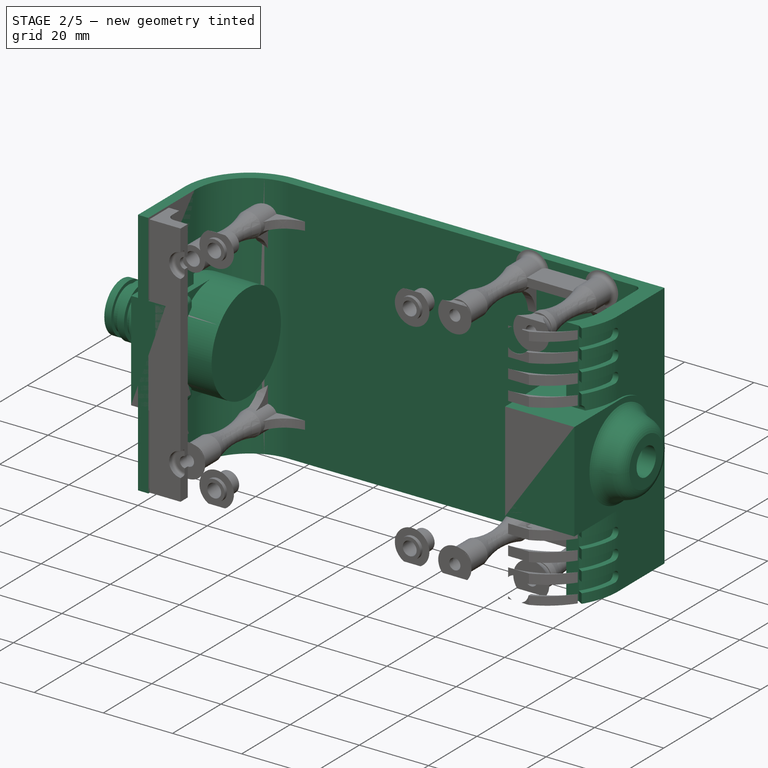
[diagram: stage 2 of 5 — iso view after this stage's code; geometry added in this stage tinted green]
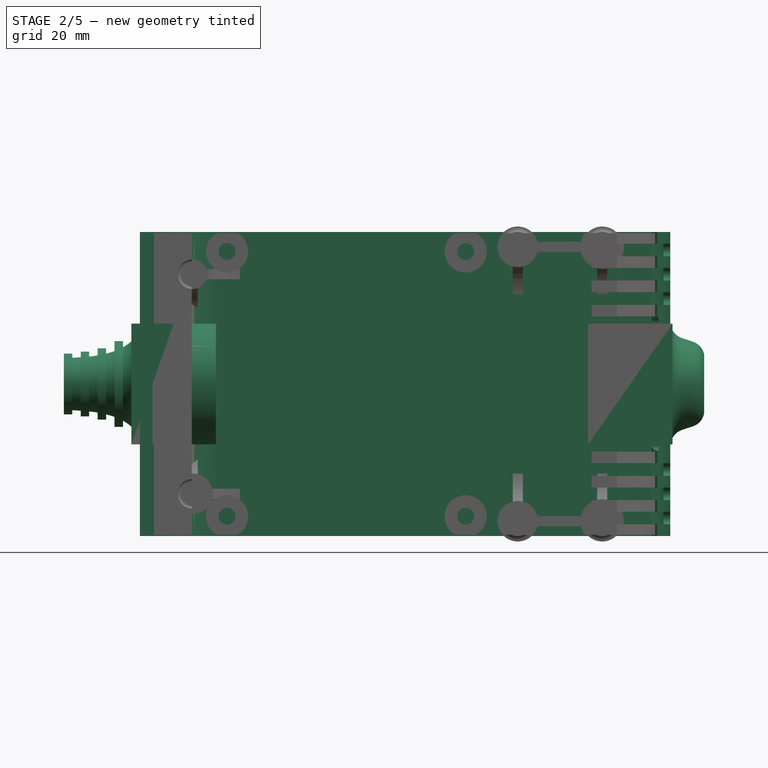
[diagram: stage 2 of 5 — front view after this stage's code; geometry added in this stage tinted green]
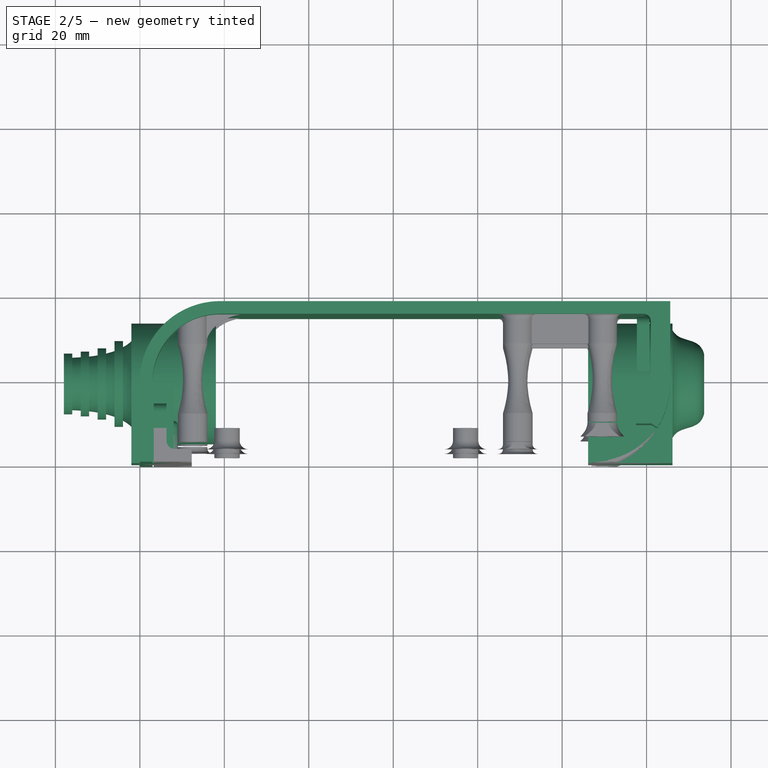
[diagram: stage 2 of 5 — top view after this stage's code; geometry added in this stage tinted green]
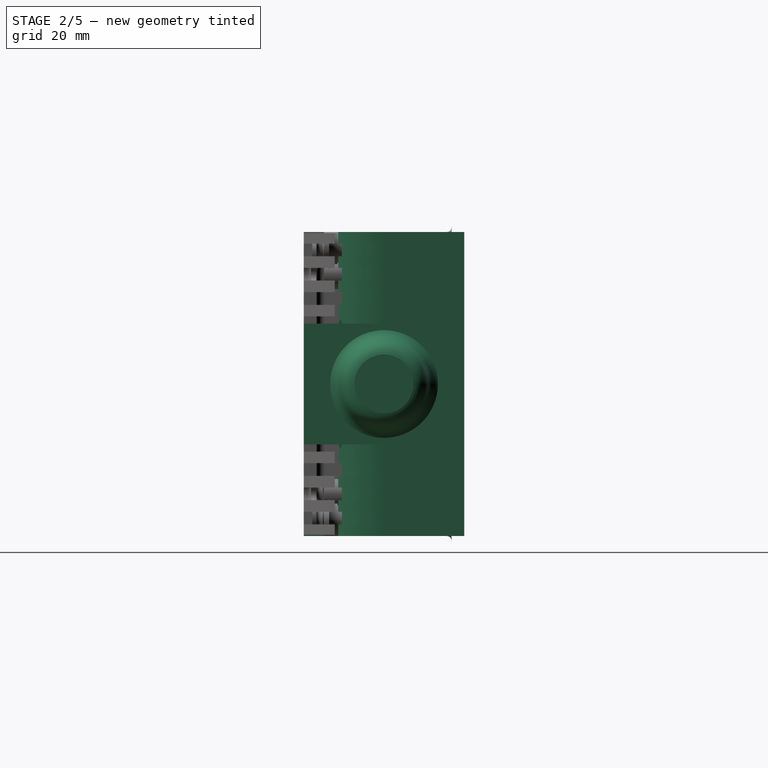
[diagram: stage 2 of 5 — right view after this stage's code; geometry added in this stage tinted green]
FEATURE [Sketcher::SketchObject] Sketch053  label="topSketch013"
  FullyConstrained = true
  sketch-geometry (22):
    g0: LineSegment StartX=5.21097e-06 StartY=3 StartZ=0 EndX=5.21097e-06 EndY=19 EndZ=0
    g1: ArcOfCircle CenterX=19 CenterY=19 CenterZ=0 NormalX=0 NormalY=0 NormalZ=1 AngleXU=0 Radius=19 StartAngle=1.5708 EndAngle=3.14159
    g2: ArcOfCircle CenterX=19 CenterY=19 CenterZ=0 NormalX=0 NormalY=0 NormalZ=1 AngleXU=0 Radius=16 StartAngle=1.5708 EndAngle=3.14159
    g3: LineSegment StartX=114 StartY=35 StartZ=0 EndX=19 EndY=35 EndZ=0
    g4: LineSegment StartX=5.21097e-06 StartY=3 StartZ=0 EndX=5.21097e-06 EndY=0 EndZ=0
    g5: LineSegment StartX=3 StartY=0 StartZ=0 EndX=5.21097e-06 EndY=0 EndZ=0
    g6: LineSegment StartX=3 StartY=19 StartZ=0 EndX=3 EndY=0 EndZ=0
    g7: LineSegment StartX=19 StartY=38 StartZ=0 EndX=124 EndY=38 EndZ=0
    g8: Circle CenterX=119 CenterY=35 CenterZ=0 NormalX=0 NormalY=0 NormalZ=1 AngleXU=0 Radius=1
    g9: Circle CenterX=121 CenterY=35 CenterZ=0 NormalX=0 NormalY=0 NormalZ=1 AngleXU=0 Radius=1
    g10: Circle CenterX=121 CenterY=33 CenterZ=0 NormalX=0 NormalY=0 NormalZ=1 AngleXU=0 Radius=1
    g11: BSplineCurve PolesCount=3 KnotsCount=2 Degree=2 IsPeriodic=0
    g12: GeomPoint X=119 Y=35 Z=0
    g13: GeomPoint X=121 Y=33 Z=0
    g14: LineSegment StartX=119 StartY=35 StartZ=0 EndX=114 EndY=35 EndZ=0
    g15: ArcOfCircle CenterX=105 CenterY=19 CenterZ=0 NormalX=0 NormalY=0 NormalZ=1 AngleXU=0 Radius=16 StartAngle=5.60905 EndAngle=6.28319
    g16: LineSegment StartX=121 StartY=33 StartZ=0 EndX=121 EndY=19 EndZ=0
    g17: LineSegment StartX=117.5 StartY=9.01251 StartZ=0 EndX=121.163 EndY=9.0125 EndZ=0
    g18: ArcOfCircle CenterX=105 CenterY=19 CenterZ=0 NormalX=0 NormalY=0 NormalZ=1 AngleXU=0 Radius=20.6155 StartAngle=5.7297 EndAngle=6.28319
    g19: LineSegment StartX=121.163 StartY=9.0125 StartZ=0 EndX=122.538 EndY=8.16329 EndZ=0
    g20: LineSegment StartX=124 StartY=38 StartZ=0 EndX=125.616 EndY=38 EndZ=0
    g21: LineSegment StartX=125.616 StartY=19 StartZ=0 EndX=125.616 EndY=38 EndZ=0
  constraints (50):
    c: Vertical(g0)
    c: Block(g0)
    c: Coincident(g1,g0)
    c: Block(g1)
    c: Coincident(g2,g1)
    c: Block(g2)
    c: Coincident(g3,g2)
    c: Horizontal(g3)
    c: Tangent(g3,g2)
    c: Coincident(g4,g0)
    c: Distance(g4) = 3
    c: Vertical(g4)
    c: Coincident(g5,g4)
    c: Horizontal(g5)
    c: Coincident(g6,g2)
    c: Coincident(g6,g5)
    c: Vertical(g6)
    c: Horizontal(g7)
    c: Distance(g7) = 105
    c: Coincident(g7,g1)
    c: Block(g3)
    c: Weight(g8) = 1
    c: Equal(g8,g9)
    c: Equal(g8,g10)
    c: InternalAlignment(g8,g11)
    c: InternalAlignment(g9,g11)
    c: InternalAlignment(g10,g11)
    c: InternalAlignment(g12,g11)
    c: InternalAlignment(g13,g11)
    c: Block(g11)
    c: Coincident(g14,g11)
    c: Coincident(g14,g3)
    c: Horizontal(g14)
    c: Block(g15)
    c: Coincident(g16,g11)
    c: Coincident(g16,g15)
    c: Vertical(g16)
    c: Distance(g16) = 14
    c: Coincident(g17,g15)
    c: Block(g18)
    c: Coincident(g19,g18)
    c: Coincident(g20,g7)
    c: Horizontal(g20)
    c: Vertical(g21)
    c: Coincident(g20,g21)
    c: Block(g20)
    c: Block(g21)
    c: Block(g19)
    c: Block(g17)
    c: Distance(g20) = 1.61553
FEATURE [Part::Extrusion] Extrude044
  Base = -> Sketch053
  Dir = (0,0,1)
  DirMode = 2
  FaceMakerClass = Part::FaceMakerBullseye
  LengthFwd = 72
  LengthRev = 0
  Solid = true
  Symmetric = false
FEATURE [Part::Fillet] Fillet036  label="top018"
  Base = -> Extrude044
  Edges = 1 edges r=2: [Edge41]
FEATURE [Sketcher::SketchObject] Sketch054
  FullyConstrained = false
  Placement = pos=(0,0,0) rot=(1,0,0;1.5708rad)
  sketch-geometry (24):
    g0: ArcOfCircle CenterX=-4 CenterY=-10.5 CenterZ=0 NormalX=0 NormalY=0 NormalZ=1 AngleXU=0 Radius=1.5 StartAngle=6e-16 EndAngle=3.14159
    g1: ArcOfCircle CenterX=-34.2 CenterY=-10.5 CenterZ=0 NormalX=0 NormalY=0 NormalZ=1 AngleXU=0 Radius=1.5 StartAngle=0 EndAngle=3.14159
    g2: ArcOfCircle CenterX=-34.2 CenterY=-27.7 CenterZ=0 NormalX=0 NormalY=0 NormalZ=1 AngleXU=0 Radius=1.5 StartAngle=3.14159 EndAngle=6.28319
    g3: ArcOfCircle CenterX=-4 CenterY=-27.7 CenterZ=0 NormalX=0 NormalY=0 NormalZ=1 AngleXU=0 Radius=1.5 StartAngle=3.1416 EndAngle=6.28319
    g4: ArcOfCircle CenterX=-10 CenterY=-4.3 CenterZ=0 NormalX=0 NormalY=0 NormalZ=1 AngleXU=0 Radius=1.5 StartAngle=2e-16 EndAngle=3.14159
    g5: ArcOfCircle CenterX=-16.1 CenterY=-1.8 CenterZ=0 NormalX=0 NormalY=0 NormalZ=1 AngleXU=0 Radius=1.5 StartAngle=5e-16 EndAngle=3.14159
    g6: ArcOfCircle CenterX=-22.1 CenterY=-1.8 CenterZ=0 NormalX=0 NormalY=0 NormalZ=1 AngleXU=0 Radius=1.5 StartAngle=5e-16 EndAngle=3.14159
    g7: ArcOfCircle CenterX=-28.2 CenterY=-4.3 CenterZ=0 NormalX=0 NormalY=0 NormalZ=1 AngleXU=0 Radius=1.5 StartAngle=2e-16 EndAngle=3.14159
    g8: ArcOfCircle CenterX=-10 CenterY=-33.9 CenterZ=0 NormalX=0 NormalY=0 NormalZ=1 AngleXU=0 Radius=1.5 StartAngle=3.14159 EndAngle=6.28319
    g9: ArcOfCircle CenterX=-16.1 CenterY=-36.4 CenterZ=0 NormalX=0 NormalY=0 NormalZ=1 AngleXU=0 Radius=1.5 StartAngle=3.14159 EndAngle=6.28319
    g10: ArcOfCircle CenterX=-22.1 CenterY=-36.4 CenterZ=0 NormalX=0 NormalY=0 NormalZ=1 AngleXU=0 Radius=1.5 StartAngle=3.14159 EndAngle=6.28319
    g11: ArcOfCircle CenterX=-28.2 CenterY=-33.9 CenterZ=0 NormalX=0 NormalY=0 NormalZ=1 AngleXU=0 Radius=1.5 StartAngle=3.14159 EndAngle=6.28319
    g12: LineSegment StartX=-35.7 StartY=-10.5 StartZ=0 EndX=-35.7 EndY=-27.7 EndZ=0
    g13: LineSegment StartX=-32.7 StartY=-10.5 StartZ=0 EndX=-32.7 EndY=-27.7 EndZ=0
    g14: LineSegment StartX=-29.7 StartY=-33.9 StartZ=0 EndX=-29.7 EndY=-4.3 EndZ=0
    g15: LineSegment StartX=-26.7 StartY=-33.9 StartZ=0 EndX=-26.7 EndY=-4.3 EndZ=0
    g16: LineSegment StartX=-2.5 StartY=-10.5 StartZ=0 EndX=-2.5 EndY=-27.7 EndZ=0
    g17: LineSegment StartX=-8.5 StartY=-4.3 StartZ=0 EndX=-8.5 EndY=-33.9 EndZ=0
    g18: LineSegment StartX=-5.5 StartY=-10.5 StartZ=0 EndX=-5.5 EndY=-27.7 EndZ=0
    g19: LineSegment StartX=-11.5 StartY=-4.3 StartZ=0 EndX=-11.5 EndY=-33.9 EndZ=0
    g20: LineSegment StartX=-14.6 StartY=-1.8 StartZ=0 EndX=-14.6 EndY=-36.4 EndZ=0
    g21: LineSegment StartX=-17.6 StartY=-1.8 StartZ=0 EndX=-17.6 EndY=-36.4 EndZ=0
    g22: LineSegment StartX=-20.6 StartY=-36.4 StartZ=0 EndX=-20.6 EndY=-1.8 EndZ=0
    g23: LineSegment StartX=-23.6 StartY=-1.8 StartZ=0 EndX=-23.6 EndY=-36.4 EndZ=0
  constraints (48):
    c: Block(g0)
    c: Block(g1)
    c: Block(g2)
    c: Block(g3)
    c: Block(g4)
    c: Block(g5)
    c: Block(g6)
    c: Block(g7)
    c: Block(g8)
    c: Block(g9)
    c: Block(g10)
    c: Block(g11)
    c: Coincident(g12,g1)
    c: Coincident(g12,g2)
    c: Vertical(g12)
    c: Coincident(g13,g1)
    c: Coincident(g13,g2)
    c: Vertical(g13)
    c: Coincident(g14,g11)
    c: Coincident(g14,g7)
    c: Vertical(g14)
    c: Coincident(g15,g11)
    c: Coincident(g15,g7)
    c: Vertical(g15)
    c: Coincident(g16,g0)
    c: Coincident(g16,g3)
    c: Vertical(g16)
    c: Coincident(g17,g4)
    c: Coincident(g17,g8)
    c: Vertical(g17)
    c: Coincident(g18,g0)
    c: Coincident(g18,g3)
    c: Vertical(g18)
    c: Coincident(g19,g4)
    c: Coincident(g19,g8)
    c: Vertical(g19)
    c: Coincident(g20,g5)
    c: Coincident(g20,g9)
    c: Vertical(g20)
    c: Coincident(g21,g5)
    c: Coincident(g21,g9)
    c: Vertical(g21)
    c: Coincident(g22,g10)
    c: Coincident(g22,g6)
    c: Vertical(g22)
    c: Coincident(g23,g6)
    c: Coincident(g23,g10)
    c: Vertical(g23)
FEATURE [Part::Extrusion] Extrude045  label="removeToCreateFanGrillHoles003"
  Base = -> Sketch054
  Dir = (0,-1,6e-16)
  DirMode = 2
  FaceMakerClass = Part::FaceMakerBullseye
  LengthFwd = 10
  LengthRev = 0
  Placement = pos=(65.4,44,54.82) rot=(0,0,1;0rad)
  Solid = true
  Symmetric = false
FEATURE [Part::Feature] Face105 .. Face108  x4 (patterned run collapsed; names and placements below)
  shape: bbox 3.5 x 17.8 x 2e-07 mm, 1 faces, 0 solids (baked)
FEATURE [Part::Revolution] Revolve113  label="removeToCreateScrewAndThreadedInsertHole041"
  Angle = 360
  Axis = (0,1,0)
  Base = (0,0,0)
  FaceMakerClass = Part::FaceMakerBullseye
  Placement = pos=(62.3,30.3,19.7) rot=(0,0,1;0rad)
  Solid = false
  Source = -> Face105
  Symmetric = false
FEATURE [Part::Revolution] Revolve114  label="removeToCreateScrewAndThreadedInsertHole042"
  Angle = 360
  Axis = (0,1,0)
  Base = (0,0,0)
  FaceMakerClass = Part::FaceMakerBullseye
  Placement = pos=(62.3,30.3,51.7) rot=(0,0,1;0rad)
  Solid = false
  Source = -> Face106
  Symmetric = false
FEATURE [Part::Revolution] Revolve115  label="removeToCreateScrewAndThreadedInsertHole043"
  Angle = 360
  Axis = (0,1,0)
  Base = (0,0,0)
  FaceMakerClass = Part::FaceMakerBullseye
  Placement = pos=(30.3,30.3,19.7) rot=(0,0,1;0rad)
  Solid = false
  Source = -> Face107
  Symmetric = false
FEATURE [Part::Revolution] Revolve116  label="removeToCreateScrewAndThreadedInsertHole044"
  Angle = 360
  Axis = (0,1,0)
  Base = (0,0,0)
  FaceMakerClass = Part::FaceMakerBullseye
  Placement = pos=(30.3,30.3,51.7) rot=(0,0,1;0rad)
  Solid = false
  Source = -> Face108
  Symmetric = false
FEATURE [Part::MultiFuse] Fusion083  label="createThreadedInsertHolesForFan004"
  Shapes = -> [Revolve113,Revolve114,Revolve115,Revolve116]
FEATURE [Part::Box] Box024  label="removeToCreteHoleForPlugHousing026"
  AttacherType = Attacher::AttachEngine3D
  Height = 28.6
  Length = 10
  Placement = pos=(-2,0,21.7) rot=(0,0,1;0rad)
  Width = 19
FEATURE [Part::Cylinder] Cylinder038  label="removeToCreteHoleForPlugHousing027"
  Angle = 360
  AttacherType = Attacher::AttachEngine3D
  Height = 20
  Placement = pos=(-2,19,36) rot=(0,1,0;1.5708rad)
  Radius = 14.3
FEATURE [Part::MultiFuse] Fusion084  label="removeToCreteHoleForPlugHousing028"
  Shapes = -> [Box024,Cylinder038]
FEATURE [Part::Cylinder] Cylinder039
  Angle = 360
  AttacherType = Attacher::AttachEngine3D
  Height = 20
  Placement = pos=(0,0,36.15) rot=(0,0,1;0rad)
  Radius = 14.3
FEATURE [Part::Cylinder] Cylinder040
  Angle = 360
  AttacherType = Attacher::AttachEngine3D
  Height = 10
  Placement = pos=(0,0,36.15) rot=(0,0,1;0rad)
  Radius = 4
FEATURE [Part::Box] Box025  label="removeToCreteHoleForPlugHousing030"
  AttacherType = Attacher::AttachEngine3D
  Height = 28.6
  Length = 20
  Placement = pos=(106.15,0,21.7) rot=(0,0,1;0rad)
  Width = 19
FEATURE [Part::MultiFuse] Fusion086  label="removeToCreteHoleForPlugHousing031"
  Placement = pos=(70,19,36) rot=(0,1,0;1.5708rad)
  Shapes = -> [Cylinder039,Cylinder040]
FEATURE [Part::MultiFuse] Fusion085  label="removeToCreteHoleForPlugHousing029"
  Shapes = -> [Box025,Fusion086]
FEATURE [Sketcher::SketchObject] Sketch055
  FullyConstrained = true
  Placement = pos=(117,19,0) rot=(0.57735,0.57735,0.57735;2.0944rad)
  sketch-geometry (48):
    g0: LineSegment StartX=-49.19 StartY=69.25 StartZ=0 EndX=-49.19 EndY=66.25 EndZ=0
    g1: LineSegment StartX=-49.19 StartY=63.5 StartZ=0 EndX=-49.19 EndY=60.5 EndZ=0
    g2: LineSegment StartX=-49.19 StartY=57.75 StartZ=0 EndX=-49.19 EndY=54.75 EndZ=0
    g3: LineSegment StartX=-49.19 StartY=52 StartZ=0 EndX=-49.19 EndY=49 EndZ=0
    g4: LineSegment StartX=-49.19 StartY=46.25 StartZ=0 EndX=-49.19 EndY=43.25 EndZ=0
    g5: LineSegment StartX=-49.19 StartY=40.5 StartZ=0 EndX=-49.19 EndY=37.5 EndZ=0
    g6: LineSegment StartX=-49.19 StartY=34.5 StartZ=0 EndX=-49.19 EndY=31.5 EndZ=0
    g7: LineSegment StartX=-49.19 StartY=28.75 StartZ=0 EndX=-49.19 EndY=25.75 EndZ=0
    g8: LineSegment StartX=-49.19 StartY=23 StartZ=0 EndX=-49.19 EndY=20 EndZ=0
    g9: LineSegment StartX=-49.19 StartY=17.25 StartZ=0 EndX=-49.19 EndY=14.25 EndZ=0
    g10: LineSegment StartX=-49.19 StartY=11.5 StartZ=0 EndX=-49.19 EndY=8.5 EndZ=0
    g11: LineSegment StartX=-49.19 StartY=5.75 StartZ=0 EndX=-49.19 EndY=2.75 EndZ=0
    g12: ArcOfCircle CenterX=-1.5 CenterY=67.75 CenterZ=0 NormalX=0 NormalY=0 NormalZ=1 AngleXU=0 Radius=1.5 StartAngle=4.71239 EndAngle=7.85398
    g13: ArcOfCircle CenterX=-1.5 CenterY=62 CenterZ=0 NormalX=0 NormalY=0 NormalZ=1 AngleXU=0 Radius=1.5 StartAngle=4.71239 EndAngle=7.85398
    g14: ArcOfCircle CenterX=-1.5 CenterY=56.25 CenterZ=0 NormalX=0 NormalY=0 NormalZ=1 AngleXU=0 Radius=1.5 StartAngle=4.71239 EndAngle=7.85398
    g15: ArcOfCircle CenterX=-11.49 CenterY=50.5 CenterZ=0 NormalX=0 NormalY=0 NormalZ=1 AngleXU=0 Radius=1.5 StartAngle=4.71239 EndAngle=7.85398
    g16: ArcOfCircle CenterX=-16.28 CenterY=44.75 CenterZ=0 NormalX=0 NormalY=0 NormalZ=1 AngleXU=0 Radius=1.5 StartAngle=4.71239 EndAngle=7.85398
    g17: ArcOfCircle CenterX=-18.2337 CenterY=39 CenterZ=0 NormalX=0 NormalY=0 NormalZ=1 AngleXU=0 Radius=1.5 StartAngle=4.71485 EndAngle=7.85398
    g18: ArcOfCircle CenterX=-16.2837 CenterY=27.25 CenterZ=0 NormalX=0 NormalY=0 NormalZ=1 AngleXU=0 Radius=1.5 StartAngle=4.71485 EndAngle=7.85398
    g19: ArcOfCircle CenterX=-18.2337 CenterY=33 CenterZ=0 NormalX=0 NormalY=0 NormalZ=1 AngleXU=0 Radius=1.5 StartAngle=4.71485 EndAngle=7.85398
    g20: ArcOfCircle CenterX=-11.49 CenterY=21.5 CenterZ=0 NormalX=0 NormalY=0 NormalZ=1 AngleXU=0 Radius=1.5 StartAngle=4.71239 EndAngle=7.85398
    g21: ArcOfCircle CenterX=-1.5 CenterY=4.25 CenterZ=0 NormalX=0 NormalY=0 NormalZ=1 AngleXU=0 Radius=1.5 StartAngle=4.71239 EndAngle=7.85398
    g22: ArcOfCircle CenterX=-1.5 CenterY=10 CenterZ=0 NormalX=0 NormalY=0 NormalZ=1 AngleXU=0 Radius=1.5 StartAngle=4.71239 EndAngle=7.85398
    g23: ArcOfCircle CenterX=-1.5 CenterY=15.75 CenterZ=0 NormalX=0 NormalY=0 NormalZ=1 AngleXU=0 Radius=1.5 StartAngle=4.71239 EndAngle=7.85398
    g24: LineSegment StartX=-49.19 StartY=69.25 StartZ=0 EndX=-1.5 EndY=69.25 EndZ=0
    g25: LineSegment StartX=-49.19 StartY=66.25 StartZ=0 EndX=-1.5 EndY=66.25 EndZ=0
    g26: LineSegment StartX=-49.19 StartY=63.5 StartZ=0 EndX=-1.5 EndY=63.5 EndZ=0
    g27: LineSegment StartX=-49.19 StartY=60.5 StartZ=0 EndX=-1.5 EndY=60.5 EndZ=0
    g28: LineSegment StartX=-49.19 StartY=57.75 StartZ=0 EndX=-1.5 EndY=57.75 EndZ=0
    g29: LineSegment StartX=-49.19 StartY=54.75 StartZ=0 EndX=-1.5 EndY=54.75 EndZ=0
    g30: LineSegment StartX=-49.19 StartY=52 StartZ=0 EndX=-11.49 EndY=52 EndZ=0
    g31: LineSegment StartX=-49.19 StartY=49 StartZ=0 EndX=-11.49 EndY=49 EndZ=0
    g32: LineSegment StartX=-49.19 StartY=46.25 StartZ=0 EndX=-16.28 EndY=46.25 EndZ=0
    g33: LineSegment StartX=-49.19 StartY=43.25 StartZ=0 EndX=-16.28 EndY=43.25 EndZ=0
    g34: LineSegment StartX=-49.19 StartY=40.5 StartZ=0 EndX=-18.2337 EndY=40.5 EndZ=0
    g35: LineSegment StartX=-49.19 StartY=37.5 StartZ=0 EndX=-18.23 EndY=37.5 EndZ=0
    g36: LineSegment StartX=-49.19 StartY=34.5 StartZ=0 EndX=-18.2337 EndY=34.5 EndZ=0
    g37: LineSegment StartX=-49.19 StartY=31.5 StartZ=0 EndX=-18.23 EndY=31.5 EndZ=0
    g38: LineSegment StartX=-49.19 StartY=28.75 StartZ=0 EndX=-16.2837 EndY=28.75 EndZ=0
    g39: LineSegment StartX=-49.19 StartY=25.75 StartZ=0 EndX=-16.28 EndY=25.75 EndZ=0
    g40: LineSegment StartX=-49.19 StartY=23 StartZ=0 EndX=-11.49 EndY=23 EndZ=0
    g41: LineSegment StartX=-49.19 StartY=20 StartZ=0 EndX=-11.49 EndY=20 EndZ=0
    g42: LineSegment StartX=-49.19 StartY=17.25 StartZ=0 EndX=-1.5 EndY=17.25 EndZ=0
    g43: LineSegment StartX=-49.19 StartY=14.25 StartZ=0 EndX=-1.5 EndY=14.25 EndZ=0
    g44: LineSegment StartX=-49.19 StartY=11.5 StartZ=0 EndX=-1.5 EndY=11.5 EndZ=0
    g45: LineSegment StartX=-49.19 StartY=8.5 StartZ=0 EndX=-1.5 EndY=8.5 EndZ=0
    g46: LineSegment StartX=-49.19 StartY=5.75 StartZ=0 EndX=-1.5 EndY=5.75 EndZ=0
    g47: LineSegment StartX=-49.19 StartY=2.75 StartZ=0 EndX=-1.5 EndY=2.75 EndZ=0
  constraints (120):
    c: Vertical(g0)
    c: Distance(g0) = 3
    c: Block(g0)
    c: Vertical(g1)
    c: Distance(g1) = 3
    c: Vertical(g2)
    c: Equal(g0,g2) = 3
    c: Block(g2)
    c: Vertical(g3)
    c: Equal(g1,g3) = 3
    c: Vertical(g4)
    c: Equal(g0,g4) = 3
    c: Block(g4)
    c: Vertical(g5)
    c: Equal(g1,g5) = 3
    c: Vertical(g6)
    c: Equal(g0,g6) = 3
    c: Block(g6)
    c: Vertical(g7)
    c: Equal(g1,g7) = 3
    c: Vertical(g8)
    c: Equal(g0,g8) = 3
    c: Block(g8)
    c: Vertical(g9)
    c: Equal(g1,g9) = 3
    c: Vertical(g10)
    c: Equal(g0,g10) = 3
    c: Block(g10)
    c: Vertical(g11)
    c: Equal(g1,g11) = 3
    c: Block(g12)
    c: Block(g13)
    c: Block(g14)
    c: Block(g15)
    c: Block(g16)
    c: Block(g17)
    c: Block(g18)
    c: Block(g19)
    c: Block(g20)
    c: Block(g21)
    c: Block(g22)
    c: Block(g23)
    c: Block(g11)
    c: Block(g9)
    c: Block(g7)
    c: Block(g5)
    c: Block(g3)
    c: Block(g1)
    c: Coincident(g24,g0)
    c: Coincident(g24,g12)
    c: Horizontal(g24)
    c: Coincident(g25,g0)
    c: Coincident(g25,g12)
    c: Horizontal(g25)
    c: Coincident(g26,g1)
    c: Coincident(g26,g13)
    c: Horizontal(g26)
    c: Coincident(g27,g1)
    c: Coincident(g27,g13)
    c: Horizontal(g27)
    c: Coincident(g28,g2)
    c: Coincident(g28,g14)
    c: Horizontal(g28)
    c: Coincident(g29,g2)
    c: Coincident(g29,g14)
    c: Horizontal(g29)
    c: Coincident(g30,g3)
    c: Coincident(g30,g15)
    c: Horizontal(g30)
    c: Coincident(g31,g3)
    c: Coincident(g31,g15)
    c: Horizontal(g31)
    c: Coincident(g32,g4)
    c: Coincident(g32,g16)
    c: Horizontal(g32)
    c: Coincident(g33,g4)
    c: Coincident(g33,g16)
    c: Horizontal(g33)
    c: Coincident(g34,g5)
    c: Coincident(g34,g17)
    c: Horizontal(g34)
    c: Coincident(g35,g5)
    c: Coincident(g35,g17)
    c: Horizontal(g35)
    c: Coincident(g36,g6)
    c: Coincident(g36,g19)
    c: Horizontal(g36)
    c: Coincident(g37,g6)
    c: Coincident(g37,g19)
    c: Horizontal(g37)
    c: Coincident(g38,g7)
    c: Coincident(g38,g18)
    c: Horizontal(g38)
    c: Coincident(g39,g7)
    c: Coincident(g39,g18)
    c: Horizontal(g39)
    c: Coincident(g40,g8)
    c: Coincident(g40,g20)
    c: Horizontal(g40)
    c: Coincident(g41,g8)
    c: Coincident(g41,g20)
    c: Horizontal(g41)
    c: Coincident(g42,g9)
    c: Coincident(g42,g23)
    c: Horizontal(g42)
    c: Coincident(g43,g9)
    c: Coincident(g43,g23)
    c: Horizontal(g43)
    c: Coincident(g44,g10)
    c: Coincident(g44,g22)
    c: Horizontal(g44)
    c: Coincident(g45,g10)
    c: Coincident(g45,g22)
    c: Horizontal(g45)
    c: Coincident(g46,g11)
    c: Coincident(g46,g21)
    c: Horizontal(g46)
    c: Coincident(g47,g11)
    c: Coincident(g47,g21)
    c: Horizontal(g47)
FEATURE [Part::Extrusion] Extrude046
  Base = -> Sketch055
  Dir = (1,0,0)
  DirMode = 2
  FaceMakerClass = Part::FaceMakerBullseye
  LengthFwd = 23
  LengthRev = 0
  Placement = pos=(-19,0,0) rot=(0,0,1;0rad)
  Solid = true
  Symmetric = false
FEATURE [Part::Fillet] Fillet038  label="removeToCreateVentalationHoles001"
  Base = -> Extrude046
  Edges = <same value as first occurrence — deduplicated (x5 in doc)>
  Placement = pos=(7,0,0) rot=(0,0,1;0rad)
FEATURE [Sketcher::SketchObject] Sketch056  label="topSketch014"
  FullyConstrained = true
  sketch-geometry (22):
    g0: LineSegment StartX=5.21097e-06 StartY=3 StartZ=0 EndX=5.21097e-06 EndY=19 EndZ=0
    g1: ArcOfCircle CenterX=19 CenterY=19 CenterZ=0 NormalX=0 NormalY=0 NormalZ=1 AngleXU=0 Radius=19 StartAngle=1.5708 EndAngle=3.14159
    g2: ArcOfCircle CenterX=19 CenterY=19 CenterZ=0 NormalX=0 NormalY=0 NormalZ=1 AngleXU=0 Radius=16 StartAngle=1.5708 EndAngle=3.14159
    g3: LineSegment StartX=114 StartY=35 StartZ=0 EndX=19 EndY=35 EndZ=0
    g4: LineSegment StartX=5.21097e-06 StartY=3 StartZ=0 EndX=5.21097e-06 EndY=0 EndZ=0
    g5: LineSegment StartX=3 StartY=0 StartZ=0 EndX=5.21097e-06 EndY=0 EndZ=0
    g6: LineSegment StartX=3 StartY=19 StartZ=0 EndX=3 EndY=0 EndZ=0
    g7: LineSegment StartX=19 StartY=38 StartZ=0 EndX=124 EndY=38 EndZ=0
    g8: Circle CenterX=119 CenterY=35 CenterZ=0 NormalX=0 NormalY=0 NormalZ=1 AngleXU=0 Radius=1
    g9: Circle CenterX=121 CenterY=35 CenterZ=0 NormalX=0 NormalY=0 NormalZ=1 AngleXU=0 Radius=1
    g10: Circle CenterX=121 CenterY=33 CenterZ=0 NormalX=0 NormalY=0 NormalZ=1 AngleXU=0 Radius=1
    g11: BSplineCurve PolesCount=3 KnotsCount=2 Degree=2 IsPeriodic=0
    g12: GeomPoint X=119 Y=35 Z=0
    g13: GeomPoint X=121 Y=33 Z=0
    g14: LineSegment StartX=119 StartY=35 StartZ=0 EndX=114 EndY=35 EndZ=0
    g15: ArcOfCircle CenterX=105 CenterY=19 CenterZ=0 NormalX=0 NormalY=0 NormalZ=1 AngleXU=0 Radius=16 StartAngle=5.60905 EndAngle=6.28319
    g16: LineSegment StartX=121 StartY=33 StartZ=0 EndX=121 EndY=19 EndZ=0
    g17: LineSegment StartX=117.5 StartY=9.01251 StartZ=0 EndX=121.163 EndY=9.0125 EndZ=0
    g18: ArcOfCircle CenterX=105 CenterY=19 CenterZ=0 NormalX=0 NormalY=0 NormalZ=1 AngleXU=0 Radius=20.6155 StartAngle=5.7297 EndAngle=6.28319
    g19: LineSegment StartX=121.163 StartY=9.0125 StartZ=0 EndX=122.538 EndY=8.16329 EndZ=0
    g20: LineSegment StartX=124 StartY=38 StartZ=0 EndX=125.616 EndY=38 EndZ=0
    g21: LineSegment StartX=125.616 StartY=19 StartZ=0 EndX=125.616 EndY=38 EndZ=0
  constraints (49):
    c: Vertical(g0)
    c: Block(g0)
    c: Coincident(g1,g0)
    c: Block(g1)
    c: Coincident(g2,g1)
    c: Block(g2)
    c: Coincident(g3,g2)
    c: Horizontal(g3)
    c: Tangent(g3,g2)
    c: Coincident(g4,g0)
    c: Distance(g4) = 3
    c: Vertical(g4)
    c: Coincident(g5,g4)
    c: Horizontal(g5)
    c: Coincident(g6,g2)
    c: Coincident(g6,g5)
    c: Vertical(g6)
    c: Horizontal(g7)
    c: Distance(g7) = 105
    c: Coincident(g7,g1)
    c: Block(g3)
    c: Weight(g8) = 1
    c: Equal(g8,g9)
    c: Equal(g8,g10)
    c: InternalAlignment(g8,g11)
    c: InternalAlignment(g9,g11)
    c: InternalAlignment(g10,g11)
    c: InternalAlignment(g12,g11)
    c: InternalAlignment(g13,g11)
    c: Block(g11)
    c: Coincident(g14,g11)
    c: Coincident(g14,g3)
    c: Horizontal(g14)
    c: Block(g15)
    c: Coincident(g16,g11)
    c: Coincident(g16,g15)
    c: Vertical(g16)
    c: Distance(g16) = 14
    c: Coincident(g17,g15)
    c: Block(g18)
    c: Coincident(g19,g18)
    c: Coincident(g20,g7)
    c: Horizontal(g20)
    c: Vertical(g21)
    c: Coincident(g20,g21)
    c: Block(g20)
    c: Block(g21)
    c: Block(g19)
    c: Block(g17)
FEATURE [Part::Box] Box026  label="removeToCreteHoleForPlugHousing032"
  AttacherType = Attacher::AttachEngine3D
  Height = 28.6
  Length = 10
  Placement = pos=(-2,0,21.7) rot=(0,0,1;0rad)
  Width = 19
FEATURE [Part::Feature] Face109 .. Face112  x4 (patterned run collapsed; names and placements below)
  shape: bbox 3.5 x 17.8 x 2e-07 mm, 1 faces, 0 solids (baked)
FEATURE [Part::Revolution] Revolve117  label="removeToCreateScrewAndThreadedInsertHole045"
  Angle = 360
  Axis = (0,1,0)
  Base = (0,0,0)
  FaceMakerClass = Part::FaceMakerBullseye
  Placement = pos=(62.3,30.3,19.7) rot=(0,0,1;0rad)
  Solid = false
  Source = -> Face109
  Symmetric = false
FEATURE [Part::Revolution] Revolve118  label="removeToCreateScrewAndThreadedInsertHole046"
  Angle = 360
  Axis = (0,1,0)
  Base = (0,0,0)
  FaceMakerClass = Part::FaceMakerBullseye
  Placement = pos=(62.3,30.3,51.7) rot=(0,0,1;0rad)
  Solid = false
  Source = -> Face110
  Symmetric = false
FEATURE [Part::Revolution] Revolve119  label="removeToCreateScrewAndThreadedInsertHole047"
  Angle = 360
  Axis = (0,1,0)
  Base = (0,0,0)
  FaceMakerClass = Part::FaceMakerBullseye
  Placement = pos=(30.3,30.3,19.7) rot=(0,0,1;0rad)
  Solid = false
  Source = -> Face111
  Symmetric = false
FEATURE [Part::Revolution] Revolve120  label="removeToCreateScrewAndThreadedInsertHole048"
  Angle = 360
  Axis = (0,1,0)
  Base = (0,0,0)
  FaceMakerClass = Part::FaceMakerBullseye
  Placement = pos=(30.3,30.3,51.7) rot=(0,0,1;0rad)
  Solid = false
  Source = -> Face112
  Symmetric = false
FEATURE [Part::MultiFuse] Fusion087  label="createThreadedInsertHolesForFan005"
  Shapes = -> [Revolve117,Revolve118,Revolve119,Revolve120]
FEATURE [Part::Extrusion] Extrude047
  Base = -> Sketch056
  Dir = (0,0,1)
  DirMode = 2
  FaceMakerClass = Part::FaceMakerBullseye
  LengthFwd = 72
  LengthRev = 0
  Solid = true
  Symmetric = false
FEATURE [Part::Fillet] Fillet039  label="top019"
  Base = -> Extrude047
  Edges = 1 edges r=2: [Edge35]
FEATURE [Sketcher::SketchObject] Sketch057
  FullyConstrained = false
  Placement = pos=(0,0,0) rot=(1,0,0;1.5708rad)
  sketch-geometry (24):
    g0: ArcOfCircle CenterX=-4 CenterY=-10.5 CenterZ=0 NormalX=0 NormalY=0 NormalZ=1 AngleXU=0 Radius=1.5 StartAngle=6e-16 EndAngle=3.14159
    g1: ArcOfCircle CenterX=-34.2 CenterY=-10.5 CenterZ=0 NormalX=0 NormalY=0 NormalZ=1 AngleXU=0 Radius=1.5 StartAngle=0 EndAngle=3.14159
    g2: ArcOfCircle CenterX=-34.2 CenterY=-27.7 CenterZ=0 NormalX=0 NormalY=0 NormalZ=1 AngleXU=0 Radius=1.5 StartAngle=3.14159 EndAngle=6.28319
    g3: ArcOfCircle CenterX=-4 CenterY=-27.7 CenterZ=0 NormalX=0 NormalY=0 NormalZ=1 AngleXU=0 Radius=1.5 StartAngle=3.1416 EndAngle=6.28319
    g4: ArcOfCircle CenterX=-10 CenterY=-4.3 CenterZ=0 NormalX=0 NormalY=0 NormalZ=1 AngleXU=0 Radius=1.5 StartAngle=2e-16 EndAngle=3.14159
    g5: ArcOfCircle CenterX=-16.1 CenterY=-1.8 CenterZ=0 NormalX=0 NormalY=0 NormalZ=1 AngleXU=0 Radius=1.5 StartAngle=5e-16 EndAngle=3.14159
    g6: ArcOfCircle CenterX=-22.1 CenterY=-1.8 CenterZ=0 NormalX=0 NormalY=0 NormalZ=1 AngleXU=0 Radius=1.5 StartAngle=5e-16 EndAngle=3.14159
    g7: ArcOfCircle CenterX=-28.2 CenterY=-4.3 CenterZ=0 NormalX=0 NormalY=0 NormalZ=1 AngleXU=0 Radius=1.5 StartAngle=2e-16 EndAngle=3.14159
    g8: ArcOfCircle CenterX=-10 CenterY=-33.9 CenterZ=0 NormalX=0 NormalY=0 NormalZ=1 AngleXU=0 Radius=1.5 StartAngle=3.14159 EndAngle=6.28319
    g9: ArcOfCircle CenterX=-16.1 CenterY=-36.4 CenterZ=0 NormalX=0 NormalY=0 NormalZ=1 AngleXU=0 Radius=1.5 StartAngle=3.14159 EndAngle=6.28319
    g10: ArcOfCircle CenterX=-22.1 CenterY=-36.4 CenterZ=0 NormalX=0 NormalY=0 NormalZ=1 AngleXU=0 Radius=1.5 StartAngle=3.14159 EndAngle=6.28319
    g11: ArcOfCircle CenterX=-28.2 CenterY=-33.9 CenterZ=0 NormalX=0 NormalY=0 NormalZ=1 AngleXU=0 Radius=1.5 StartAngle=3.14159 EndAngle=6.28319
    g12: LineSegment StartX=-35.7 StartY=-10.5 StartZ=0 EndX=-35.7 EndY=-27.7 EndZ=0
    g13: LineSegment StartX=-32.7 StartY=-10.5 StartZ=0 EndX=-32.7 EndY=-27.7 EndZ=0
    g14: LineSegment StartX=-29.7 StartY=-33.9 StartZ=0 EndX=-29.7 EndY=-4.3 EndZ=0
    g15: LineSegment StartX=-26.7 StartY=-33.9 StartZ=0 EndX=-26.7 EndY=-4.3 EndZ=0
    g16: LineSegment StartX=-2.5 StartY=-10.5 StartZ=0 EndX=-2.5 EndY=-27.7 EndZ=0
    g17: LineSegment StartX=-8.5 StartY=-4.3 StartZ=0 EndX=-8.5 EndY=-33.9 EndZ=0
    g18: LineSegment StartX=-5.5 StartY=-10.5 StartZ=0 EndX=-5.5 EndY=-27.7 EndZ=0
    g19: LineSegment StartX=-11.5 StartY=-4.3 StartZ=0 EndX=-11.5 EndY=-33.9 EndZ=0
    g20: LineSegment StartX=-14.6 StartY=-1.8 StartZ=0 EndX=-14.6 EndY=-36.4 EndZ=0
    g21: LineSegment StartX=-17.6 StartY=-1.8 StartZ=0 EndX=-17.6 EndY=-36.4 EndZ=0
    g22: LineSegment StartX=-20.6 StartY=-36.4 StartZ=0 EndX=-20.6 EndY=-1.8 EndZ=0
    g23: LineSegment StartX=-23.6 StartY=-1.8 StartZ=0 EndX=-23.6 EndY=-36.4 EndZ=0
  constraints (48):
    c: Block(g0)
    c: Block(g1)
    c: Block(g2)
    c: Block(g3)
    c: Block(g4)
    c: Block(g5)
    c: Block(g6)
    c: Block(g7)
    c: Block(g8)
    c: Block(g9)
    c: Block(g10)
    c: Block(g11)
    c: Coincident(g12,g1)
    c: Coincident(g12,g2)
    c: Vertical(g12)
    c: Coincident(g13,g1)
    c: Coincident(g13,g2)
    c: Vertical(g13)
    c: Coincident(g14,g11)
    c: Coincident(g14,g7)
    c: Vertical(g14)
    c: Coincident(g15,g11)
    c: Coincident(g15,g7)
    c: Vertical(g15)
    c: Coincident(g16,g0)
    c: Coincident(g16,g3)
    c: Vertical(g16)
    c: Coincident(g17,g4)
    c: Coincident(g17,g8)
    c: Vertical(g17)
    c: Coincident(g18,g0)
    c: Coincident(g18,g3)
    c: Vertical(g18)
    c: Coincident(g19,g4)
    c: Coincident(g19,g8)
    c: Vertical(g19)
    c: Coincident(g20,g5)
    c: Coincident(g20,g9)
    c: Vertical(g20)
    c: Coincident(g21,g5)
    c: Coincident(g21,g9)
    c: Vertical(g21)
    c: Coincident(g22,g10)
    c: Coincident(g22,g6)
    c: Vertical(g22)
    c: Coincident(g23,g6)
    c: Coincident(g23,g10)
    c: Vertical(g23)
FEATURE [Part::Extrusion] Extrude048  label="removeToCreateFanGrillHoles004"
  Base = -> Sketch057
  Dir = (0,-1,6e-16)
  DirMode = 2
  FaceMakerClass = Part::FaceMakerBullseye
  LengthFwd = 10
  LengthRev = 0
  Placement = pos=(65.4,44,54.82) rot=(0,0,1;0rad)
  Solid = true
  Symmetric = false
FEATURE [Part::Cut] Cut040  label="top021"
  Base = -> Fillet039
  Tool = -> Extrude048
FEATURE [Part::Cylinder] Cylinder041  label="removeToCreteHoleForPlugHousing034"
  Angle = 360
  AttacherType = Attacher::AttachEngine3D
  Height = 20
  Placement = pos=(-2,19,36) rot=(0,1,0;1.5708rad)
  Radius = 14.3
FEATURE [Part::Cylinder] Cylinder042
  Angle = 360
  AttacherType = Attacher::AttachEngine3D
  Height = 20
  Placement = pos=(0,0,36.15) rot=(0,0,1;0rad)
  Radius = 14.3
FEATURE [Part::Cylinder] Cylinder043
  Angle = 360
  AttacherType = Attacher::AttachEngine3D
  Height = 10
  Placement = pos=(0,0,36.15) rot=(0,0,1;0rad)
  Radius = 4
FEATURE [Part::Box] Box027  label="removeToCreteHoleForPlugHousing036"
  AttacherType = Attacher::AttachEngine3D
  Height = 28.6
  Length = 20
  Placement = pos=(106.15,0,21.7) rot=(0,0,1;0rad)
  Width = 19
FEATURE [Part::Cut] Cut041  label="top022"
  Base = -> Cut040
  Tool = -> Fusion087
FEATURE [Part::MultiFuse] Fusion090  label="removeToCreteHoleForPlugHousing037"
  Placement = pos=(70,19,36) rot=(0,1,0;1.5708rad)
  Shapes = -> [Cylinder042,Cylinder043]
FEATURE [Part::MultiFuse] Fusion091  label="removeFromTop"
  Shapes = -> [Fillet038,Fusion085,Fusion084,Fusion083,Extrude045]
FEATURE [Part::Cut] Cut043  label="REAL TOP ====="
  Base = -> Fillet036
  Tool = -> Fusion091
FEATURE [Sketcher::SketchObject] Sketch058  label="topSketch015"
  FullyConstrained = true
  sketch-geometry (20):
    g0: LineSegment StartX=5.21097e-06 StartY=3 StartZ=0 EndX=5.21097e-06 EndY=19 EndZ=0
    g1: ArcOfCircle CenterX=19 CenterY=19 CenterZ=0 NormalX=0 NormalY=0 NormalZ=1 AngleXU=0 Radius=19 StartAngle=1.5708 EndAngle=3.14159
    g2: ArcOfCircle CenterX=19 CenterY=19 CenterZ=0 NormalX=0 NormalY=0 NormalZ=1 AngleXU=0 Radius=16 StartAngle=1.5708 EndAngle=3.14159
    g3: LineSegment StartX=114 StartY=35 StartZ=0 EndX=19 EndY=35 EndZ=0
    g4: LineSegment StartX=5.21097e-06 StartY=3 StartZ=0 EndX=5.21097e-06 EndY=0 EndZ=0
    g5: LineSegment StartX=3 StartY=0 StartZ=0 EndX=5.21097e-06 EndY=0 EndZ=0
    g6: LineSegment StartX=3 StartY=19 StartZ=0 EndX=3 EndY=0 EndZ=0
    g7: LineSegment StartX=19 StartY=38 StartZ=0 EndX=124 EndY=38 EndZ=0
    g8: Circle CenterX=119 CenterY=35 CenterZ=0 NormalX=0 NormalY=0 NormalZ=1 AngleXU=0 Radius=1
    g9: Circle CenterX=121 CenterY=35 CenterZ=0 NormalX=0 NormalY=0 NormalZ=1 AngleXU=0 Radius=1
    g10: Circle CenterX=121 CenterY=33 CenterZ=0 NormalX=0 NormalY=0 NormalZ=1 AngleXU=0 Radius=1
    g11: BSplineCurve PolesCount=3 KnotsCount=2 Degree=2 IsPeriodic=0
    g12: GeomPoint X=119 Y=35 Z=0
    g13: GeomPoint X=121 Y=33 Z=0
    g14: LineSegment StartX=119 StartY=35 StartZ=0 EndX=114 EndY=35 EndZ=0
    g15: ArcOfCircle CenterX=105 CenterY=19 CenterZ=0 NormalX=0 NormalY=0 NormalZ=1 AngleXU=0 Radius=19 StartAngle=5.7297 EndAngle=6.28319
    g16: ArcOfCircle CenterX=105 CenterY=19 CenterZ=0 NormalX=0 NormalY=0 NormalZ=1 AngleXU=0 Radius=16 StartAngle=5.60905 EndAngle=6.28319
    g17: LineSegment StartX=121 StartY=33 StartZ=0 EndX=121 EndY=19 EndZ=0
    g18: LineSegment StartX=124 StartY=38 StartZ=0 EndX=124 EndY=19 EndZ=0
    g19: LineSegment StartX=117.5 StartY=9.01251 StartZ=0 EndX=121.163 EndY=9.0125 EndZ=0
  constraints (46):
    c: Vertical(g0)
    c: Block(g0)
    c: Coincident(g1,g0)
    c: Block(g1)
    c: Coincident(g2,g1)
    c: Block(g2)
    c: Coincident(g3,g2)
    c: Horizontal(g3)
    c: Tangent(g3,g2)
    c: Coincident(g4,g0)
    c: Distance(g4) = 3
    c: Vertical(g4)
    c: Coincident(g5,g4)
    c: Horizontal(g5)
    c: Coincident(g6,g2)
    c: Coincident(g6,g5)
    c: Vertical(g6)
    c: Horizontal(g7)
    c: Distance(g7) = 105
    c: Coincident(g7,g1)
    c: Block(g3)
    c: Weight(g8) = 1
    c: Equal(g8,g9)
    c: Equal(g8,g10)
    c: InternalAlignment(g8,g11)
    c: InternalAlignment(g9,g11)
    c: InternalAlignment(g10,g11)
    c: InternalAlignment(g12,g11)
    c: InternalAlignment(g13,g11)
    c: Block(g11)
    c: Coincident(g14,g11)
    c: Coincident(g14,g3)
    c: Horizontal(g14)
    c: Block(g15)
    c: Coincident(g16,g15)
    c: Block(g16)
    c: Coincident(g17,g11)
    c: Coincident(g17,g16)
    c: Vertical(g17)
    c: Distance(g17) = 14
    c: Coincident(g18,g7)
    c: Coincident(g18,g15)
    c: Vertical(g18)
    c: Distance(g18) = 19
    c: Coincident(g19,g16)
    c: Coincident(g19,g15)
FEATURE [Part::Extrusion] Extrude049  label="top023"
  Base = -> Sketch058
  Dir = (0,0,1)
  DirMode = 2
  FaceMakerClass = Part::FaceMakerBullseye
  LengthFwd = 72
  LengthRev = 0
  Solid = true
  Symmetric = false
FEATURE [Part::Feature] Face119
  shape: bbox 10 x 16.5 x 2e-07 mm, 1 faces, 0 solids (baked)
FEATURE [Part::Revolution] Revolve130  label="plugHousing050"
  Angle = 360
  Axis = (0,1,0)
  Base = (0,0,0)
  FaceMakerClass = Part::FaceMakerBullseye
  Placement = pos=(0,0,36.15) rot=(0,0,1;0rad)
  Solid = false
  Source = -> Face119
  Symmetric = false
FEATURE [Part::Feature] Face120
  shape: bbox 10 x 16.5 x 2e-07 mm, 1 faces, 0 solids (baked)
FEATURE [Part::Feature] Face121
  shape: bbox 10 x 16.5 x 2e-07 mm, 1 faces, 0 solids (baked)
FEATURE [Part::Revolution] Revolve127  label="plugHousing047"
  Angle = 360
  Axis = (0,1,0)
  Base = (0,0,0)
  FaceMakerClass = Part::FaceMakerBullseye
  Placement = pos=(0,0,36.15) rot=(0,0,1;0rad)
  Solid = false
  Source = -> Face121
  Symmetric = false
FEATURE [Part::Feature] Face122
  shape: bbox 10 x 16.5 x 2e-07 mm, 1 faces, 0 solids (baked)
FEATURE [Part::Feature] Face123
  shape: bbox 10 x 16.5 x 2e-07 mm, 1 faces, 0 solids (baked)
FEATURE [Part::Revolution] Revolve128  label="plugHousing048"
  Angle = 360
  Axis = (0,1,0)
  Base = (0,0,0)
  FaceMakerClass = Part::FaceMakerBullseye
  Placement = pos=(0,0,36.15) rot=(0,0,1;0rad)
  Solid = false
  Source = -> Face123
  Symmetric = false
FEATURE [Part::MultiFuse] Fusion100  label="plugHousing054"
  Placement = pos=(0,0,0) rot=(0,0,1;1.5708rad)
  Shapes = -> [Revolve130,Revolve128]
FEATURE [Part::Feature] Face124
  shape: bbox 10 x 16.5 x 2e-07 mm, 1 faces, 0 solids (baked)
FEATURE [Part::Feature] Face125
  shape: bbox 10 x 16.5 x 2e-07 mm, 1 faces, 0 solids (baked)
FEATURE [Part::Revolution] Revolve129  label="plugHousing049"
  Angle = 360
  Axis = (0,1,0)
  Base = (0,0,0)
  FaceMakerClass = Part::FaceMakerBullseye
  Placement = pos=(0,0,36.15) rot=(0,0,1;0rad)
  Solid = false
  Source = -> Face125
  Symmetric = false
FEATURE [Part::Feature] Face126
  shape: bbox 10 x 16.5 x 2e-07 mm, 1 faces, 0 solids (baked)
FEATURE [Part::Revolution] Revolve131  label="plugHousing058"
  Angle = 360
  Axis = (0,1,0)
  Base = (0,0,0)
  FaceMakerClass = Part::FaceMakerBullseye
  Placement = pos=(0,0,36.15) rot=(0,0,1;0rad)
  Solid = false
  Source = -> Face120
  Symmetric = false
FEATURE [Part::MultiFuse] Fusion099  label="plugHousing053"
  Placement = pos=(0,0,0) rot=(0,0,1;1.5708rad)
  Shapes = -> [Revolve127,Revolve131]
FEATURE [Part::MultiFuse] Fusion102  label="plugHousing056"
  Placement = pos=(0,19,0) rot=(0,0,1;3.14159rad)
  Shapes = -> [Fusion100,Fusion099]
FEATURE [Part::Revolution] Revolve132  label="plugHousing059"
  Angle = 360
  Axis = (0,1,0)
  Base = (0,0,0)
  FaceMakerClass = Part::FaceMakerBullseye
  Placement = pos=(0,0,36.15) rot=(0,0,1;0rad)
  Solid = false
  Source = -> Face126
  Symmetric = false
FEATURE [Part::Revolution] Revolve133  label="plugHousing060"
  Angle = 360
  Axis = (0,1,0)
  Base = (0,0,0)
  FaceMakerClass = Part::FaceMakerBullseye
  Placement = pos=(0,0,36.15) rot=(0,0,1;0rad)
  Solid = false
  Source = -> Face122
  Symmetric = false
FEATURE [Part::MultiFuse] Fusion097  label="plugHousing051"
  Placement = pos=(0,0,0) rot=(0,0,1;1.5708rad)
  Shapes = -> [Revolve133,Revolve132]
FEATURE [Part::Revolution] Revolve134  label="plugHousing061"
  Angle = 360
  Axis = (0,1,0)
  Base = (0,0,0)
  FaceMakerClass = Part::FaceMakerBullseye
  Placement = pos=(0,0,36.15) rot=(0,0,1;0rad)
  Solid = false
  Source = -> Face124
  Symmetric = false
FEATURE [Part::MultiFuse] Fusion101  label="plugHousing055"
  Placement = pos=(0,0,0) rot=(0,0,1;1.5708rad)
  Shapes = -> [Revolve129,Revolve134]
FEATURE [Part::MultiFuse] Fusion098  label="plugHousing052"
  Placement = pos=(0,19,0) rot=(0,0,1;3.14159rad)
  Shapes = -> [Fusion097,Fusion101]
FEATURE [Part::MultiFuse] Fusion103  label="plugHousing057"
  Placement = pos=(122.621,0,-0.15) rot=(0,0,1;0rad)
  Shapes = -> [Fusion102,Fusion098]
FEATURE [Part::Box] Box028  label="Cube015"
  AttacherType = Attacher::AttachEngine3D
  Height = 28
  Length = 3
  Placement = pos=(110.7,19,22) rot=(0,0,1;0rad)
  Width = 15.7
FEATURE [Part::Cylinder] Cylinder044
  Angle = 360
  AttacherType = Attacher::AttachEngine3D
  Height = 20
  Placement = pos=(0,0,36.15) rot=(0,0,1;0rad)
  Radius = 10.3
FEATURE [Part::Cylinder] Cylinder045
  Angle = 360
  AttacherType = Attacher::AttachEngine3D
  Height = 10
  Placement = pos=(0,0,36.15) rot=(0,0,1;0rad)
  Radius = 4
FEATURE [Part::MultiFuse] Fusion104  label="removeToCreteHoleForPlugHousing040"
  Placement = pos=(70,19,36) rot=(0,1,0;1.5708rad)
  Shapes = -> [Cylinder044,Cylinder045]
FEATURE [Part::Cut] Cut046  label="plugHousingTab003"
  Base = -> Box028
  Tool = -> Fusion104
FEATURE [Part::MultiFuse] Fusion105  label="plugHousing062"
  Shapes = -> [Fusion103,Cut046]
FEATURE [Part::Fillet] Fillet042
  Base = -> Fusion105
  Edges = 1 edges r=2: [Edge25]
FEATURE [Part::Fillet] Fillet043  label="plugHousing063"
  Base = -> Fillet042
  Edges = 1 edges r=2: [Edge8]
  Placement = pos=(7,0,0) rot=(0,0,1;0rad)
FEATURE [Part::Feature] Face127
  shape: bbox 10 x 16.5 x 2e-07 mm, 1 faces, 0 solids (baked)
FEATURE [Part::Feature] Face128
  shape: bbox 10 x 16.5 x 2e-07 mm, 1 faces, 0 solids (baked)
FEATURE [Part::Revolution] Revolve137  label="plugHousing070"
  Angle = 360
  Axis = (0,1,0)
  Base = (0,0,0)
  FaceMakerClass = Part::FaceMakerBullseye
  Placement = pos=(0,0,36.15) rot=(0,0,1;0rad)
  Solid = false
  Source = -> Face127
  Symmetric = false
FEATURE [Part::Revolution] Revolve140  label="plugHousing073"
  Angle = 360
  Axis = (0,1,0)
  Base = (0,0,0)
  FaceMakerClass = Part::FaceMakerBullseye
  Placement = pos=(0,0,36.15) rot=(0,0,1;0rad)
  Solid = false
  Source = -> Face128
  Symmetric = false
FEATURE [Part::Feature] Face129
  shape: bbox 10 x 16.5 x 2e-07 mm, 1 faces, 0 solids (baked)
FEATURE [Part::Revolution] Revolve138  label="plugHousing071"
  Angle = 360
  Axis = (0,1,0)
  Base = (0,0,0)
  FaceMakerClass = Part::FaceMakerBullseye
  Placement = pos=(0,0,36.15) rot=(0,0,1;0rad)
  Solid = false
  Source = -> Face129
  Symmetric = false
FEATURE [Part::Feature] Face130
  shape: bbox 10 x 16.5 x 2e-07 mm, 1 faces, 0 solids (baked)
FEATURE [Part::Revolution] Revolve139  label="plugHousing072"
  Angle = 360
  Axis = (0,1,0)
  Base = (0,0,0)
  FaceMakerClass = Part::FaceMakerBullseye
  Placement = pos=(0,0,36.15) rot=(0,0,1;0rad)
  Solid = false
  Source = -> Face130
  Symmetric = false
FEATURE [Part::Feature] Face131
  shape: bbox 10 x 16.5 x 2e-07 mm, 1 faces, 0 solids (baked)
FEATURE [Part::Revolution] Revolve135  label="plugHousing068"
  Angle = 360
  Axis = (0,1,0)
  Base = (0,0,0)
  FaceMakerClass = Part::FaceMakerBullseye
  Placement = pos=(0,0,36.15) rot=(0,0,1;0rad)
  Solid = false
  Source = -> Face131
  Symmetric = false
FEATURE [Part::MultiFuse] Fusion112  label="plugHousing078"
  Placement = pos=(0,0,0) rot=(0,0,1;1.5708rad)
  Shapes = -> [Revolve135,Revolve139]
FEATURE [Part::Feature] Face132
  shape: bbox 10 x 16.5 x 2e-07 mm, 1 faces, 0 solids (baked)
FEATURE [Part::Revolution] Revolve141  label="plugHousing074"
  Angle = 360
  Axis = (0,1,0)
  Base = (0,0,0)
  FaceMakerClass = Part::FaceMakerBullseye
  Placement = pos=(0,0,36.15) rot=(0,0,1;0rad)
  Solid = false
  Source = -> Face132
  Symmetric = false
FEATURE [Part::MultiFuse] Fusion110  label="plugHousing076"
  Placement = pos=(0,0,0) rot=(0,0,1;1.5708rad)
  Shapes = -> [Revolve141,Revolve140]
FEATURE [Part::Feature] Face133
  shape: bbox 10 x 16.5 x 2e-07 mm, 1 faces, 0 solids (baked)
FEATURE [Part::Revolution] Revolve136  label="plugHousing069"
  Angle = 360
  Axis = (0,1,0)
  Base = (0,0,0)
  FaceMakerClass = Part::FaceMakerBullseye
  Placement = pos=(0,0,36.15) rot=(0,0,1;0rad)
  Solid = false
  Source = -> Face133
  Symmetric = false
FEATURE [Part::MultiFuse] Fusion106  label="plugHousing064"
  Placement = pos=(0,0,0) rot=(0,0,1;1.5708rad)
  Shapes = -> [Revolve138,Revolve136]
FEATURE [Part::MultiFuse] Fusion108  label="plugHousing066"
  Placement = pos=(0,19,0) rot=(0,0,1;3.14159rad)
  Shapes = -> [Fusion106,Fusion112]
FEATURE [Part::Feature] Face134
  shape: bbox 10 x 16.5 x 2e-07 mm, 1 faces, 0 solids (baked)
FEATURE [Part::Revolution] Revolve142  label="plugHousing075"
  Angle = 360
  Axis = (0,1,0)
  Base = (0,0,0)
  FaceMakerClass = Part::FaceMakerBullseye
  Placement = pos=(0,0,36.15) rot=(0,0,1;0rad)
  Solid = false
  Source = -> Face134
  Symmetric = false
FEATURE [Part::MultiFuse] Fusion107  label="plugHousing065"
  Placement = pos=(0,0,0) rot=(0,0,1;1.5708rad)
  Shapes = -> [Revolve137,Revolve142]
FEATURE [Part::MultiFuse] Fusion111  label="plugHousing077"
  Placement = pos=(0,19,0) rot=(0,0,1;3.14159rad)
  Shapes = -> [Fusion110,Fusion107]
FEATURE [Part::MultiFuse] Fusion109  label="plugHousing067"
  Placement = pos=(131.236,0,-0.15) rot=(0,0,1;0rad)
  Shapes = -> [Fusion108,Fusion111]
FEATURE [Part::MultiFuse] Fusion113  label="plugHousing079"
  Shapes = -> [Fillet043,Fusion109]
FEATURE [Part::Feature] Face147
  shape: bbox 9.8 x 26.5 x 2e-07 mm, 1 faces, 0 solids (baked)
FEATURE [Part::Revolution] Revolve155
  Angle = 360
  Axis = (0,1,0)
  Base = (0,0,0)
  FaceMakerClass = Part::FaceMakerBullseye
  Placement = pos=(0,0,0) rot=(0,0,1;1.5708rad)
  Solid = false
  Source = -> Face147
  Symmetric = false
FEATURE [Part::Feature] Face148
  shape: bbox 9.8 x 26.5 x 2e-07 mm, 1 faces, 0 solids (baked)
FEATURE [Part::Revolution] Revolve156
  Angle = 360
  Axis = (0,1,0)
  Base = (0,0,0)
  FaceMakerClass = Part::FaceMakerBullseye
  Placement = pos=(0,0,0) rot=(0,0,1;1.5708rad)
  Solid = false
  Source = -> Face148
  Symmetric = false
FEATURE [Part::MultiFuse] Fusion116
  Placement = pos=(-18,19,36) rot=(0,0,1;0rad)
  Shapes = -> [Revolve156,Revolve155]
FEATURE [Part::Box] Box029  label="Cube016"
  AttacherType = Attacher::AttachEngine3D
  Height = 28
  Length = 3
  Placement = pos=(110.7,19,22) rot=(0,0,1;0rad)
  Width = 15.7
FEATURE [Part::Cylinder] Cylinder046
  Angle = 360
  AttacherType = Attacher::AttachEngine3D
  Height = 10
  Placement = pos=(0,0,36.15) rot=(0,0,1;0rad)
  Radius = 4
FEATURE [Part::Cylinder] Cylinder047
  Angle = 360
  AttacherType = Attacher::AttachEngine3D
  Height = 20
  Placement = pos=(0,0,36.15) rot=(0,0,1;0rad)
  Radius = 10.3
FEATURE [Part::MultiFuse] Fusion117  label="removeToCreteHoleForPlugHousing041"
  Placement = pos=(70,19,36) rot=(0,1,0;1.5708rad)
  Shapes = -> [Cylinder047,Cylinder046]
FEATURE [Part::Cut] Cut049  label="plugHousingTab004"
  Base = -> Box029
  Placement = pos=(-107.4,-14,0) rot=(0,0,1;0rad)
  Tool = -> Fusion117
FEATURE [Part::Box] Box030  label="Cube017"
  AttacherType = Attacher::AttachEngine3D
  Height = 28
  Length = 3
  Placement = pos=(110.7,19,22) rot=(0,0,1;0rad)
  Width = 15.7
FEATURE [Part::Cylinder] Cylinder048
  Angle = 360
  AttacherType = Attacher::AttachEngine3D
  Height = 10
  Placement = pos=(0,0,36.15) rot=(0,0,1;0rad)
  Radius = 4
FEATURE [Part::Cylinder] Cylinder049
  Angle = 360
  AttacherType = Attacher::AttachEngine3D
  Height = 20
  Placement = pos=(0,0,36.15) rot=(0,0,1;0rad)
  Radius = 10.3
FEATURE [Part::MultiFuse] Fusion118  label="removeToCreteHoleForPlugHousing042"
  Placement = pos=(70,19,36) rot=(0,1,0;1.5708rad)
  Shapes = -> [Cylinder049,Cylinder048]
FEATURE [Part::Cut] Cut050  label="plugHousingTab005"
  Base = -> Box030
  Placement = pos=(-107.4,-14,0) rot=(0,0,1;0rad)
  Tool = -> Fusion118
FEATURE [Part::MultiFuse] Fusion119
  Placement = pos=(9.6,23,0) rot=(0,0,1;3.14159rad)
  Shapes = -> [Cut049,Cut050]
FEATURE [Part::Box] Box031  label="Cube018"
  AttacherType = Attacher::AttachEngine3D
  Height = 10
  Length = 3
  Placement = pos=(3.3,4,12) rot=(0,0,1;0rad)
  Width = 10
FEATURE [Part::Fillet] Fillet044
  Base = -> Box031
  Edges = 1 edges r=2: [Edge11]
FEATURE [Part::Box] Box032  label="Cube019"
  AttacherType = Attacher::AttachEngine3D
  Height = 10
  Length = 3
  Placement = pos=(3.3,4,50) rot=(0,0,1;0rad)
  Width = 10
FEATURE [Part::Fillet] Fillet045
  Base = -> Box032
  Edges = 1 edges r=2: [Edge12]
FEATURE [Part::Box] Box033  label="Cube020"
  AttacherType = Attacher::AttachEngine3D
  Height = 28
  Length = 4
  Placement = pos=(5,0,22) rot=(0,0,1;0rad)
  Width = 10
FEATURE [Part::Fillet] Fillet046
  Base = -> Box033
  Edges = 1 edges r=1: [Edge7]
FEATURE [Part::Fillet] Fillet047
  Base = -> Fillet046
  Edges = 1 edges r=2: [Edge5]
FEATURE [Part::Fillet] Fillet048
  Base = -> Fillet047
  Edges = 1 edges r=2: [Edge2]
FEATURE [Part::Fillet] Fillet050
  Base = -> Fillet049
  Edges = 1 edges r=2.5: [Edge1]
FEATURE [Part::Fillet] Fillet051
  Base = -> Fillet050
  Edges = 1 edges r=2.5: [Edge2]
FEATURE [Part::MultiFuse] Fusion121  label="wireHolder003"
  Shapes = -> [Fusion116,Fillet051]
FEATURE [Part::MultiFuse] Fusion122
  Shapes = -> [Fillet045,Fusion121]
FEATURE [Part::MultiFuse] Fusion123  label="wireHolder004"
  Shapes = -> [Fusion122,Fillet048]
FEATURE [Part::MultiFuse] Fusion124  label="wireHolder005"
  Shapes = -> [Fillet044,Fusion119,Fusion123]
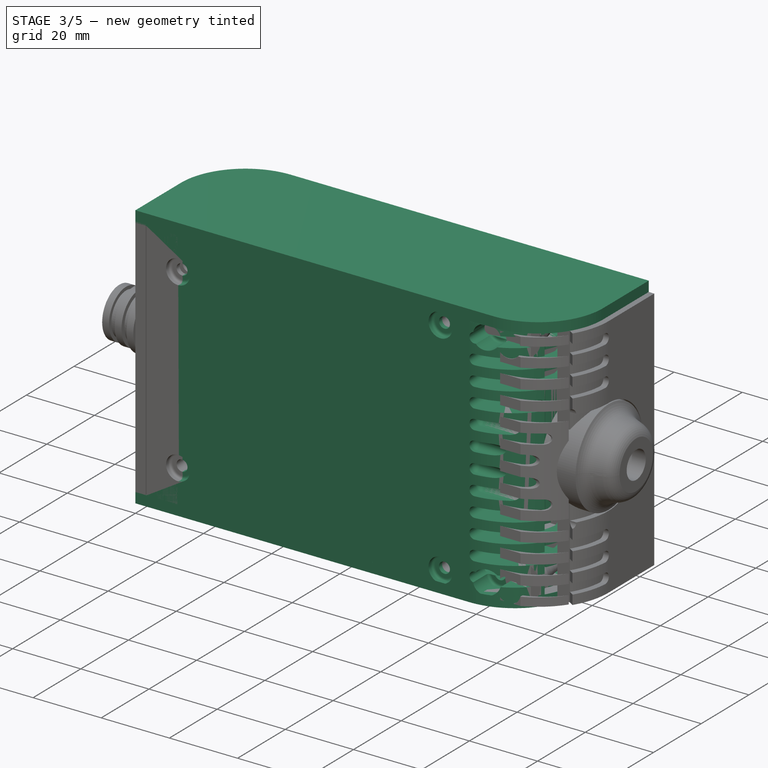
[diagram: stage 3 of 5 — iso view after this stage's code; geometry added in this stage tinted green]
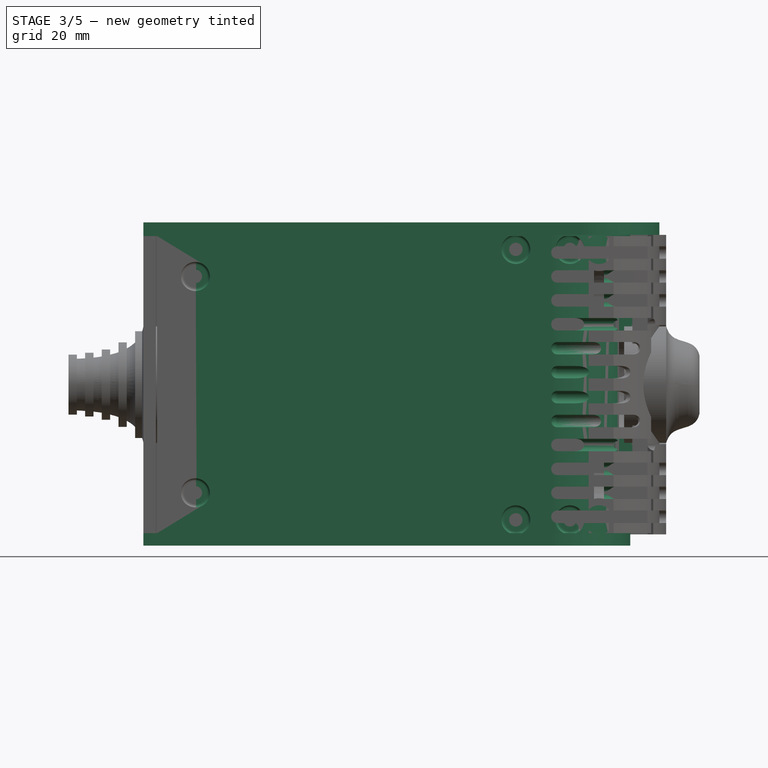
[diagram: stage 3 of 5 — front view after this stage's code; geometry added in this stage tinted green]
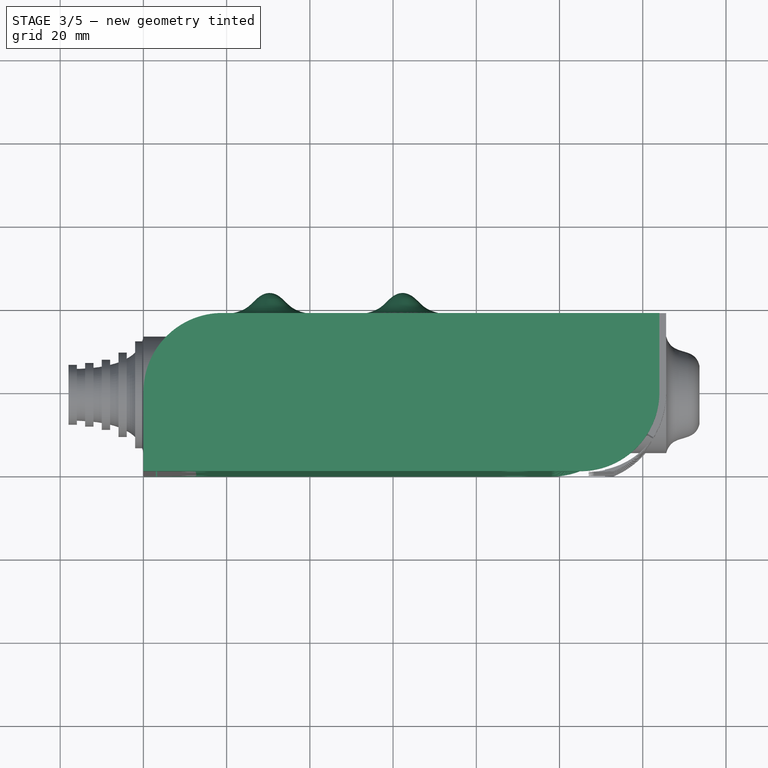
[diagram: stage 3 of 5 — top view after this stage's code; geometry added in this stage tinted green]
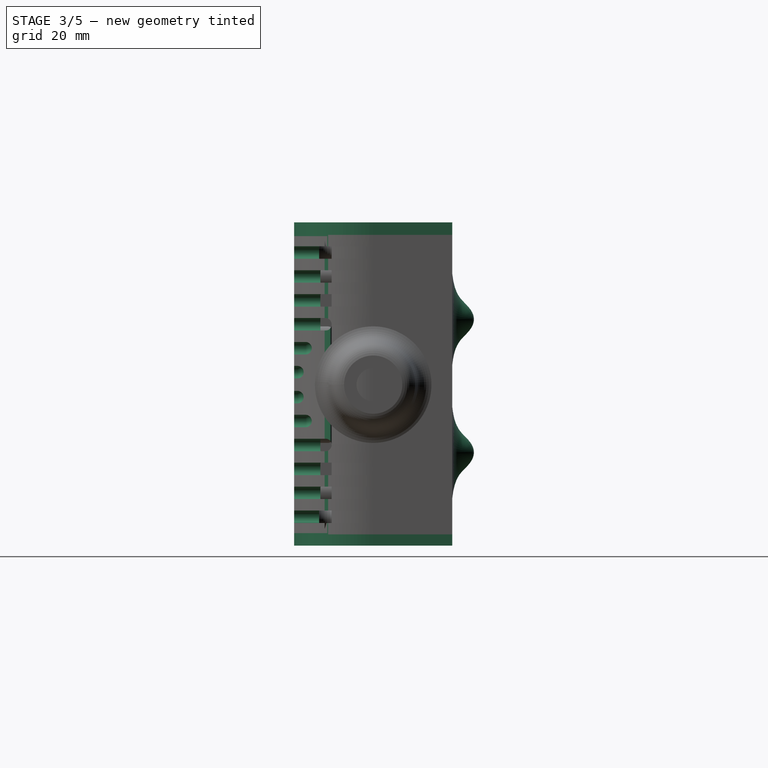
[diagram: stage 3 of 5 — right view after this stage's code; geometry added in this stage tinted green]
FEATURE [Part::Extrusion] Extrude001  label="bottom"
  Base = -> Sketch001
  Dir = (0,0,1)
  DirMode = 2
  FaceMakerClass = Part::FaceMakerBullseye
  LengthFwd = 71.4
  LengthRev = 0
  Placement = pos=(0,0,0.3) rot=(0,0,1;0rad)
  Solid = true
  Symmetric = false
FEATURE [App::MeasureDistance] Distance  label="Distance: 0.69 mm"
  Distance = 0.685967
  P1 = (24.0138,2.9647,0.3)
  P2 = (23.8901,3,-0.373787)
FEATURE [App::MeasureDistance] Distance001  label="Distance: 0.53 mm"
  Distance = 0.533607
  P1 = (80.2939,3,72.2334)
  P2 = (80.281,2.99661,71.7)
FEATURE [Part::Fillet] Fillet001
  Base = -> Extrude001
  Edges = 1 edges r=2.4: [Edge17]
FEATURE [Part::Fillet] Fillet002  label="bottom001"
  Base = -> Fillet001
  Edges = 1 edges r=2.4: [Edge36]
FEATURE [Part::Cylinder] Cylinder002
  Angle = 360
  AttacherType = Attacher::AttachEngine3D
  Height = 20
  Placement = pos=(0,0,36.15) rot=(0,0,1;0rad)
  Radius = 4
FEATURE [Part::Cylinder] Cylinder003
  Angle = 360
  AttacherType = Attacher::AttachEngine3D
  Height = 10
  Placement = pos=(0,0,36.15) rot=(0,0,1;0rad)
  Radius = 4
FEATURE [Part::MultiFuse] Fusion009  label="removeToCreateHoleForPlugHousing"
  Placement = pos=(70,19,36.15) rot=(0,1,0;1.5708rad)
  Shapes = -> [Cylinder002,Cylinder003]
FEATURE [Part::Cut] Cut002  label="Bottom"
  Base = -> Fillet002
  Tool = -> Fusion009
FEATURE [Part::Cylinder] Cylinder012
  Angle = 360
  AttacherType = Attacher::AttachEngine3D
  Height = 20
  Placement = pos=(0,0,36.15) rot=(0,0,1;0rad)
  Radius = 7
FEATURE [Part::Cylinder] Cylinder013
  Angle = 360
  AttacherType = Attacher::AttachEngine3D
  Height = 10
  Placement = pos=(0,0,36.15) rot=(0,0,1;0rad)
  Radius = 4
FEATURE [Part::MultiFuse] Fusion032  label="removeToCreteHoleForPlugHousing003"
  Placement = pos=(70,19,36) rot=(0,1,0;1.5708rad)
  Shapes = -> [Cylinder012,Cylinder013]
FEATURE [Part::Cut] Cut007  label="bottom002"
  Base = -> Cut002
  Tool = -> Fusion032
FEATURE [Sketcher::SketchObject] Sketch009  label="topSketch003"
  FullyConstrained = true
  sketch-geometry (4):
    g0: LineSegment StartX=16.8446 StartY=31.512 StartZ=0 EndX=16.3251 EndY=34.4666 EndZ=0
    g1: ArcOfCircle CenterX=19 CenterY=19.2524 CenterZ=0 NormalX=0 NormalY=0 NormalZ=1 AngleXU=0 Radius=15.4476 StartAngle=1.74483 EndAngle=2.72717
    g2: ArcOfCircle CenterX=19 CenterY=19.2524 CenterZ=0 NormalX=0 NormalY=0 NormalZ=1 AngleXU=0 Radius=12.4476 StartAngle=1.74483 EndAngle=2.73189
    g3: LineSegment StartX=4.86004 StartY=25.4725 StartZ=0 EndX=7.58253 EndY=24.2107 EndZ=0
  constraints (7):
    c: Block(g0)
    c: Coincident(g1,g0)
    c: Coincident(g2,g0)
    c: Coincident(g3,g1)
    c: Coincident(g3,g2)
    c: Block(g1)
    c: Block(g2)
FEATURE [Part::Extrusion] Extrude008
  Base = -> Sketch009
  Dir = (0,0,1)
  DirMode = 2
  FaceMakerClass = Part::FaceMakerBullseye
  LengthFwd = 10
  LengthRev = 0
  Placement = pos=(0,0,31) rot=(0,0,1;0rad)
  Solid = true
  Symmetric = false
FEATURE [Part::Cylinder] Cylinder020
  Angle = 360
  AttacherType = Attacher::AttachEngine3D
  Height = 20
  Placement = pos=(0,0,36.15) rot=(0,0,1;0rad)
  Radius = 8.2
FEATURE [Part::Cylinder] Cylinder021
  Angle = 360
  AttacherType = Attacher::AttachEngine3D
  Height = 10
  Placement = pos=(0,0,36.15) rot=(0,0,1;0rad)
  Radius = 4
FEATURE [Part::MultiFuse] Fusion038  label="removeToCreteHoleForPlugHousing007"
  Placement = pos=(-42,19,36) rot=(0,1,0;1.5708rad)
  Shapes = -> [Cylinder020,Cylinder021]
FEATURE [Part::Cut] Cut011
  Base = -> Extrude008
  Tool = -> Fusion038
FEATURE [Part::Feature] Face057
  shape: bbox 3.5 x 17.8 x 2e-07 mm, 1 faces, 0 solids (baked)
FEATURE [Part::Revolution] Revolve061  label="removeToCreateScrewAndThreadedInsertHole"
  Angle = 360
  Axis = (0,1,0)
  Base = (0,0,0)
  FaceMakerClass = Part::FaceMakerBullseye
  Placement = pos=(12.5,0,10) rot=(0,0,1;0rad)
  Solid = false
  Source = -> Face057
  Symmetric = false
FEATURE [Part::Feature] Face058
  shape: bbox 3.5 x 17.8 x 2e-07 mm, 1 faces, 0 solids (baked)
FEATURE [Part::Revolution] Revolve062  label="removeToCreateScrewAndThreadedInsertHole001"
  Angle = 360
  Axis = (0,1,0)
  Base = (0,0,0)
  FaceMakerClass = Part::FaceMakerBullseye
  Placement = pos=(12.5,0,62) rot=(0,0,1;0rad)
  Solid = false
  Source = -> Face058
  Symmetric = false
FEATURE [Part::Feature] Face059
  shape: bbox 3.5 x 17.8 x 2e-07 mm, 1 faces, 0 solids (baked)
FEATURE [Part::Revolution] Revolve063  label="removeToCreateScrewAndThreadedInsertHole002"
  Angle = 360
  Axis = (0,1,0)
  Base = (0,0,0)
  FaceMakerClass = Part::FaceMakerBullseye
  Placement = pos=(89.5,0,68.5) rot=(0,0,1;0rad)
  Solid = false
  Source = -> Face059
  Symmetric = false
FEATURE [Part::Feature] Face060
  shape: bbox 3.5 x 17.8 x 2e-07 mm, 1 faces, 0 solids (baked)
FEATURE [Part::Revolution] Revolve064  label="removeToCreateScrewAndThreadedInsertHole003"
  Angle = 360
  Axis = (0,1,0)
  Base = (0,0,0)
  FaceMakerClass = Part::FaceMakerBullseye
  Placement = pos=(89.5,0,3.5) rot=(0,0,1;0rad)
  Solid = false
  Source = -> Face060
  Symmetric = false
FEATURE [Part::Feature] Face061
  shape: bbox 3.5 x 17.8 x 2e-07 mm, 1 faces, 0 solids (baked)
FEATURE [Part::Revolution] Revolve065  label="removeToCreateScrewAndThreadedInsertHole004"
  Angle = 360
  Axis = (0,1,0)
  Base = (0,0,0)
  FaceMakerClass = Part::FaceMakerBullseye
  Placement = pos=(102.5,4.7,3.5) rot=(0,0,1;0rad)
  Solid = false
  Source = -> Face061
  Symmetric = false
FEATURE [Part::Feature] Face062
  shape: bbox 3.5 x 17.8 x 2e-07 mm, 1 faces, 0 solids (baked)
FEATURE [Part::Revolution] Revolve066  label="removeToCreateScrewAndThreadedInsertHole005"
  Angle = 360
  Axis = (0,1,0)
  Base = (0,0,0)
  FaceMakerClass = Part::FaceMakerBullseye
  Placement = pos=(102.5,4.7,68.5) rot=(0,0,1;0rad)
  Solid = false
  Source = -> Face062
  Symmetric = false
FEATURE [Part::MultiFuse] Fusion047  label="makeHoles"
  Shapes = -> [Revolve066,Revolve065,Revolve064,Revolve063,Revolve062,Revolve061]
FEATURE [Part::Feature] Face081
  shape: bbox 3.5 x 17.8 x 2e-07 mm, 1 faces, 0 solids (baked)
FEATURE [Part::Revolution] Revolve085  label="removeToCreateScrewAndThreadedInsertHole022"
  Angle = 360
  Axis = (0,1,0)
  Base = (0,0,0)
  FaceMakerClass = Part::FaceMakerBullseye
  Placement = pos=(62.3,30.3,19.7) rot=(0,0,1;0rad)
  Solid = false
  Source = -> Face081
  Symmetric = false
FEATURE [Part::Feature] Face082
  shape: bbox 3.5 x 17.8 x 2e-07 mm, 1 faces, 0 solids (baked)
FEATURE [Part::Revolution] Revolve086  label="removeToCreateScrewAndThreadedInsertHole023"
  Angle = 360
  Axis = (0,1,0)
  Base = (0,0,0)
  FaceMakerClass = Part::FaceMakerBullseye
  Placement = pos=(62.3,30.3,51.7) rot=(0,0,1;0rad)
  Solid = false
  Source = -> Face082
  Symmetric = false
FEATURE [Part::Feature] Face083
  shape: bbox 3.5 x 17.8 x 2e-07 mm, 1 faces, 0 solids (baked)
FEATURE [Part::Revolution] Revolve087  label="removeToCreateScrewAndThreadedInsertHole024"
  Angle = 360
  Axis = (0,1,0)
  Base = (0,0,0)
  FaceMakerClass = Part::FaceMakerBullseye
  Placement = pos=(30.3,30.3,19.7) rot=(0,0,1;0rad)
  Solid = false
  Source = -> Face083
  Symmetric = false
FEATURE [Part::Feature] Face084
  shape: bbox 3.5 x 17.8 x 2e-07 mm, 1 faces, 0 solids (baked)
FEATURE [Part::Revolution] Revolve088  label="removeToCreateScrewAndThreadedInsertHole025"
  Angle = 360
  Axis = (0,1,0)
  Base = (0,0,0)
  FaceMakerClass = Part::FaceMakerBullseye
  Placement = pos=(30.3,30.3,51.7) rot=(0,0,1;0rad)
  Solid = false
  Source = -> Face084
  Symmetric = false
FEATURE [Part::MultiFuse] Fusion054  label="createThreadedInsertHolesForFan001"
  Shapes = -> [Revolve085,Revolve086,Revolve087,Revolve088]
FEATURE [Sketcher::SketchObject] Sketch032
  FullyConstrained = true
  Placement = pos=(117,19,0) rot=(0.57735,0.57735,0.57735;2.0944rad)
  sketch-geometry (48):
    g0: LineSegment StartX=-49.19 StartY=69.25 StartZ=0 EndX=-49.19 EndY=66.25 EndZ=0
    g1: LineSegment StartX=-49.19 StartY=63.5 StartZ=0 EndX=-49.19 EndY=60.5 EndZ=0
    g2: LineSegment StartX=-49.19 StartY=57.75 StartZ=0 EndX=-49.19 EndY=54.75 EndZ=0
    g3: LineSegment StartX=-49.19 StartY=52 StartZ=0 EndX=-49.19 EndY=49 EndZ=0
    g4: LineSegment StartX=-49.19 StartY=46.25 StartZ=0 EndX=-49.19 EndY=43.25 EndZ=0
    g5: LineSegment StartX=-49.19 StartY=40.5 StartZ=0 EndX=-49.19 EndY=37.5 EndZ=0
    g6: LineSegment StartX=-49.19 StartY=34.5 StartZ=0 EndX=-49.19 EndY=31.5 EndZ=0
    g7: LineSegment StartX=-49.19 StartY=28.75 StartZ=0 EndX=-49.19 EndY=25.75 EndZ=0
    g8: LineSegment StartX=-49.19 StartY=23 StartZ=0 EndX=-49.19 EndY=20 EndZ=0
    g9: LineSegment StartX=-49.19 StartY=17.25 StartZ=0 EndX=-49.19 EndY=14.25 EndZ=0
    g10: LineSegment StartX=-49.19 StartY=11.5 StartZ=0 EndX=-49.19 EndY=8.5 EndZ=0
    g11: LineSegment StartX=-49.19 StartY=5.75 StartZ=0 EndX=-49.19 EndY=2.75 EndZ=0
    g12: ArcOfCircle CenterX=-1.5 CenterY=67.75 CenterZ=0 NormalX=0 NormalY=0 NormalZ=1 AngleXU=0 Radius=1.5 StartAngle=4.71239 EndAngle=7.85398
    g13: ArcOfCircle CenterX=-1.5 CenterY=62 CenterZ=0 NormalX=0 NormalY=0 NormalZ=1 AngleXU=0 Radius=1.5 StartAngle=4.71239 EndAngle=7.85398
    g14: ArcOfCircle CenterX=-1.5 CenterY=56.25 CenterZ=0 NormalX=0 NormalY=0 NormalZ=1 AngleXU=0 Radius=1.5 StartAngle=4.71239 EndAngle=7.85398
    g15: ArcOfCircle CenterX=-11.49 CenterY=50.5 CenterZ=0 NormalX=0 NormalY=0 NormalZ=1 AngleXU=0 Radius=1.5 StartAngle=4.71239 EndAngle=7.85398
    g16: ArcOfCircle CenterX=-16.28 CenterY=44.75 CenterZ=0 NormalX=0 NormalY=0 NormalZ=1 AngleXU=0 Radius=1.5 StartAngle=4.71239 EndAngle=7.85398
    g17: ArcOfCircle CenterX=-18.2337 CenterY=39 CenterZ=0 NormalX=0 NormalY=0 NormalZ=1 AngleXU=0 Radius=1.5 StartAngle=4.71485 EndAngle=7.85398
    g18: ArcOfCircle CenterX=-16.2837 CenterY=27.25 CenterZ=0 NormalX=0 NormalY=0 NormalZ=1 AngleXU=0 Radius=1.5 StartAngle=4.71485 EndAngle=7.85398
    g19: ArcOfCircle CenterX=-18.2337 CenterY=33 CenterZ=0 NormalX=0 NormalY=0 NormalZ=1 AngleXU=0 Radius=1.5 StartAngle=4.71485 EndAngle=7.85398
    g20: ArcOfCircle CenterX=-11.49 CenterY=21.5 CenterZ=0 NormalX=0 NormalY=0 NormalZ=1 AngleXU=0 Radius=1.5 StartAngle=4.71239 EndAngle=7.85398
    g21: ArcOfCircle CenterX=-1.5 CenterY=4.25 CenterZ=0 NormalX=0 NormalY=0 NormalZ=1 AngleXU=0 Radius=1.5 StartAngle=4.71239 EndAngle=7.85398
    g22: ArcOfCircle CenterX=-1.5 CenterY=10 CenterZ=0 NormalX=0 NormalY=0 NormalZ=1 AngleXU=0 Radius=1.5 StartAngle=4.71239 EndAngle=7.85398
    g23: ArcOfCircle CenterX=-1.5 CenterY=15.75 CenterZ=0 NormalX=0 NormalY=0 NormalZ=1 AngleXU=0 Radius=1.5 StartAngle=4.71239 EndAngle=7.85398
    g24: LineSegment StartX=-49.19 StartY=69.25 StartZ=0 EndX=-1.5 EndY=69.25 EndZ=0
    g25: LineSegment StartX=-49.19 StartY=66.25 StartZ=0 EndX=-1.5 EndY=66.25 EndZ=0
    g26: LineSegment StartX=-49.19 StartY=63.5 StartZ=0 EndX=-1.5 EndY=63.5 EndZ=0
    g27: LineSegment StartX=-49.19 StartY=60.5 StartZ=0 EndX=-1.5 EndY=60.5 EndZ=0
    g28: LineSegment StartX=-49.19 StartY=57.75 StartZ=0 EndX=-1.5 EndY=57.75 EndZ=0
    g29: LineSegment StartX=-49.19 StartY=54.75 StartZ=0 EndX=-1.5 EndY=54.75 EndZ=0
    g30: LineSegment StartX=-49.19 StartY=52 StartZ=0 EndX=-11.49 EndY=52 EndZ=0
    g31: LineSegment StartX=-49.19 StartY=49 StartZ=0 EndX=-11.49 EndY=49 EndZ=0
    g32: LineSegment StartX=-49.19 StartY=46.25 StartZ=0 EndX=-16.28 EndY=46.25 EndZ=0
    g33: LineSegment StartX=-49.19 StartY=43.25 StartZ=0 EndX=-16.28 EndY=43.25 EndZ=0
    g34: LineSegment StartX=-49.19 StartY=40.5 StartZ=0 EndX=-18.2337 EndY=40.5 EndZ=0
    g35: LineSegment StartX=-49.19 StartY=37.5 StartZ=0 EndX=-18.23 EndY=37.5 EndZ=0
    g36: LineSegment StartX=-49.19 StartY=34.5 StartZ=0 EndX=-18.2337 EndY=34.5 EndZ=0
    g37: LineSegment StartX=-49.19 StartY=31.5 StartZ=0 EndX=-18.23 EndY=31.5 EndZ=0
    g38: LineSegment StartX=-49.19 StartY=28.75 StartZ=0 EndX=-16.2837 EndY=28.75 EndZ=0
    g39: LineSegment StartX=-49.19 StartY=25.75 StartZ=0 EndX=-16.28 EndY=25.75 EndZ=0
    g40: LineSegment StartX=-49.19 StartY=23 StartZ=0 EndX=-11.49 EndY=23 EndZ=0
    g41: LineSegment StartX=-49.19 StartY=20 StartZ=0 EndX=-11.49 EndY=20 EndZ=0
    g42: LineSegment StartX=-49.19 StartY=17.25 StartZ=0 EndX=-1.5 EndY=17.25 EndZ=0
    g43: LineSegment StartX=-49.19 StartY=14.25 StartZ=0 EndX=-1.5 EndY=14.25 EndZ=0
    g44: LineSegment StartX=-49.19 StartY=11.5 StartZ=0 EndX=-1.5 EndY=11.5 EndZ=0
    g45: LineSegment StartX=-49.19 StartY=8.5 StartZ=0 EndX=-1.5 EndY=8.5 EndZ=0
    g46: LineSegment StartX=-49.19 StartY=5.75 StartZ=0 EndX=-1.5 EndY=5.75 EndZ=0
    g47: LineSegment StartX=-49.19 StartY=2.75 StartZ=0 EndX=-1.5 EndY=2.75 EndZ=0
  constraints (120):
    c: Vertical(g0)
    c: Distance(g0) = 3
    c: Block(g0)
    c: Vertical(g1)
    c: Distance(g1) = 3
    c: Vertical(g2)
    c: Equal(g0,g2) = 3
    c: Block(g2)
    c: Vertical(g3)
    c: Equal(g1,g3) = 3
    c: Vertical(g4)
    c: Equal(g0,g4) = 3
    c: Block(g4)
    c: Vertical(g5)
    c: Equal(g1,g5) = 3
    c: Vertical(g6)
    c: Equal(g0,g6) = 3
    c: Block(g6)
    c: Vertical(g7)
    c: Equal(g1,g7) = 3
    c: Vertical(g8)
    c: Equal(g0,g8) = 3
    c: Block(g8)
    c: Vertical(g9)
    c: Equal(g1,g9) = 3
    c: Vertical(g10)
    c: Equal(g0,g10) = 3
    c: Block(g10)
    c: Vertical(g11)
    c: Equal(g1,g11) = 3
    c: Block(g12)
    c: Block(g13)
    c: Block(g14)
    c: Block(g15)
    c: Block(g16)
    c: Block(g17)
    c: Block(g18)
    c: Block(g19)
    c: Block(g20)
    c: Block(g21)
    c: Block(g22)
    c: Block(g23)
    c: Block(g11)
    c: Block(g9)
    c: Block(g7)
    c: Block(g5)
    c: Block(g3)
    c: Block(g1)
    c: Coincident(g24,g0)
    c: Coincident(g24,g12)
    c: Horizontal(g24)
    c: Coincident(g25,g0)
    c: Coincident(g25,g12)
    c: Horizontal(g25)
    c: Coincident(g26,g1)
    c: Coincident(g26,g13)
    c: Horizontal(g26)
    c: Coincident(g27,g1)
    c: Coincident(g27,g13)
    c: Horizontal(g27)
    c: Coincident(g28,g2)
    c: Coincident(g28,g14)
    c: Horizontal(g28)
    c: Coincident(g29,g2)
    c: Coincident(g29,g14)
    c: Horizontal(g29)
    c: Coincident(g30,g3)
    c: Coincident(g30,g15)
    c: Horizontal(g30)
    c: Coincident(g31,g3)
    c: Coincident(g31,g15)
    c: Horizontal(g31)
    c: Coincident(g32,g4)
    c: Coincident(g32,g16)
    c: Horizontal(g32)
    c: Coincident(g33,g4)
    c: Coincident(g33,g16)
    c: Horizontal(g33)
    c: Coincident(g34,g5)
    c: Coincident(g34,g17)
    c: Horizontal(g34)
    c: Coincident(g35,g5)
    c: Coincident(g35,g17)
    c: Horizontal(g35)
    c: Coincident(g36,g6)
    c: Coincident(g36,g19)
    c: Horizontal(g36)
    c: Coincident(g37,g6)
    c: Coincident(g37,g19)
    c: Horizontal(g37)
    c: Coincident(g38,g7)
    c: Coincident(g38,g18)
    c: Horizontal(g38)
    c: Coincident(g39,g7)
    c: Coincident(g39,g18)
    c: Horizontal(g39)
    c: Coincident(g40,g8)
    c: Coincident(g40,g20)
    c: Horizontal(g40)
    c: Coincident(g41,g8)
    c: Coincident(g41,g20)
    c: Horizontal(g41)
    c: Coincident(g42,g9)
    c: Coincident(g42,g23)
    c: Horizontal(g42)
    c: Coincident(g43,g9)
    c: Coincident(g43,g23)
    c: Horizontal(g43)
    c: Coincident(g44,g10)
    c: Coincident(g44,g22)
    c: Horizontal(g44)
    c: Coincident(g45,g10)
    c: Coincident(g45,g22)
    c: Horizontal(g45)
    c: Coincident(g46,g11)
    c: Coincident(g46,g21)
    c: Horizontal(g46)
    c: Coincident(g47,g11)
    c: Coincident(g47,g21)
    c: Horizontal(g47)
FEATURE [Part::Extrusion] Extrude023
  Base = -> Sketch032
  Dir = (1,-2e-16,2e-16)
  DirMode = 2
  FaceMakerClass = Part::FaceMakerBullseye
  LengthFwd = 19
  LengthRev = 0
  Placement = pos=(-19,0,0) rot=(0,0,1;0rad)
  Solid = true
  Symmetric = false
FEATURE [Part::Fillet] Fillet023
  Base = -> Extrude023
  Edges = <same value as first occurrence — deduplicated (x5 in doc)>
  Placement = pos=(0,0.05,0) rot=(0,0,1;0rad)
FEATURE [Part::Cut] Cut014  label="bottom003"
  Base = -> Cut007
  Tool = -> Fusion047
FEATURE [Part::Cut] Cut021  label="bottom004"
  Base = -> Cut014
  Tool = -> Fillet023
FEATURE [Sketcher::SketchObject] Sketch035  label="topSketch007"
  FullyConstrained = true
  sketch-geometry (6):
    g0: LineSegment StartX=19 StartY=38 StartZ=0 EndX=117 EndY=38 EndZ=0
    g1: ArcOfCircle CenterX=19 CenterY=19 CenterZ=0 NormalX=0 NormalY=0 NormalZ=1 AngleXU=0 Radius=19 StartAngle=1.5708 EndAngle=3.14159
    g2: LineSegment StartX=117 StartY=38 StartZ=0 EndX=117 EndY=19 EndZ=0
    g3: LineSegment StartX=98 StartY=1.0161e-12 StartZ=0 EndX=5.22862e-06 EndY=1.0161e-12 EndZ=0
    g4: LineSegment StartX=5.22862e-06 StartY=19 StartZ=0 EndX=5.22862e-06 EndY=1.0161e-12 EndZ=0
    g5: ArcOfCircle CenterX=98 CenterY=19 CenterZ=0 NormalX=0 NormalY=0 NormalZ=1 AngleXU=0 Radius=19 StartAngle=4.71239 EndAngle=6.28319
  constraints (16):
    c: Horizontal(g0)
    c: Distance(g0) = 98
    c: Coincident(g1,g0)
    c: Block(g1)
    c: Coincident(g2,g0)
    c: Vertical(g2)
    c: Distance(g2) = 19
    c: Horizontal(g3)
    c: Coincident(g4,g1)
    c: Vertical(g4)
    c: Coincident(g3,g4)
    c: Block(g3)
    c: Coincident(g5,g2)
    c: Coincident(g5,g3)
    c: Block(g0)
    c: Block(g5)
FEATURE [Part::Extrusion] Extrude026  label="sideA001"
  Base = -> Sketch035
  Dir = (0,0,1)
  DirMode = 2
  FaceMakerClass = Part::FaceMakerBullseye
  LengthFwd = 3
  LengthRev = 0
  Placement = pos=(0,0,-2.7) rot=(0,0,1;0rad)
  Solid = true
  Symmetric = false
FEATURE [Sketcher::SketchObject] Sketch036  label="topSketch008"
  FullyConstrained = true
  sketch-geometry (6):
    g0: LineSegment StartX=19 StartY=38 StartZ=0 EndX=117 EndY=38 EndZ=0
    g1: ArcOfCircle CenterX=19 CenterY=19 CenterZ=0 NormalX=0 NormalY=0 NormalZ=1 AngleXU=0 Radius=19 StartAngle=1.5708 EndAngle=3.14159
    g2: LineSegment StartX=117 StartY=38 StartZ=0 EndX=117 EndY=19 EndZ=0
    g3: LineSegment StartX=98 StartY=1.0161e-12 StartZ=0 EndX=5.22862e-06 EndY=1.0161e-12 EndZ=0
    g4: LineSegment StartX=5.22862e-06 StartY=19 StartZ=0 EndX=5.22862e-06 EndY=1.0161e-12 EndZ=0
    g5: ArcOfCircle CenterX=98 CenterY=19 CenterZ=0 NormalX=0 NormalY=0 NormalZ=1 AngleXU=0 Radius=19 StartAngle=4.71239 EndAngle=6.28319
  constraints (16):
    c: Horizontal(g0)
    c: Distance(g0) = 98
    c: Coincident(g1,g0)
    c: Block(g1)
    c: Coincident(g2,g0)
    c: Vertical(g2)
    c: Distance(g2) = 19
    c: Horizontal(g3)
    c: Coincident(g4,g1)
    c: Vertical(g4)
    c: Coincident(g3,g4)
    c: Block(g3)
    c: Coincident(g5,g2)
    c: Coincident(g5,g3)
    c: Block(g0)
    c: Block(g5)
FEATURE [Part::Extrusion] Extrude027  label="sideB001"
  Base = -> Sketch036
  Dir = (0,0,1)
  DirMode = 2
  FaceMakerClass = Part::FaceMakerBullseye
  LengthFwd = 3
  LengthRev = 0
  Placement = pos=(0,0,71.7) rot=(0,0,1;0rad)
  Solid = true
  Symmetric = false
FEATURE [Part::MultiFuse] Fusion064  label="removeFromBottom"
  Shapes = -> [Extrude026,Extrude027]
FEATURE [Sketcher::SketchObject] Sketch037  label="topSketch009"
  FullyConstrained = true
  sketch-geometry (6):
    g0: ArcOfCircle CenterX=19 CenterY=19 CenterZ=0 NormalX=0 NormalY=0 NormalZ=1 AngleXU=0 Radius=19 StartAngle=1.5708 EndAngle=3.14159
    g1: LineSegment StartX=5.22862e-06 StartY=19 StartZ=0 EndX=5.22862e-06 EndY=1.19904e-11 EndZ=0
    g2: LineSegment StartX=19 StartY=38 StartZ=0 EndX=124 EndY=38 EndZ=0
    g3: LineSegment StartX=5.22862e-06 StartY=1.19904e-11 StartZ=0 EndX=105 EndY=1.19904e-11 EndZ=0
    g4: ArcOfCircle CenterX=105 CenterY=19 CenterZ=0 NormalX=0 NormalY=0 NormalZ=1 AngleXU=0 Radius=19 StartAngle=4.71239 EndAngle=6.28319
    g5: LineSegment StartX=124 StartY=38 StartZ=0 EndX=124 EndY=19 EndZ=0
  constraints (16):
    c: Block(g0)
    c: Coincident(g1,g0)
    c: Vertical(g1)
    c: Horizontal(g2)
    c: Distance(g2) = 105
    c: Coincident(g2,g0)
    c: Distance(g1) = 19
    c: Coincident(g3,g1)
    c: Horizontal(g3)
    c: Distance(g3) = 105
    c: Block(g4)
    c: Coincident(g4,g3)
    c: Coincident(g5,g2)
    c: Coincident(g5,g4)
    c: Vertical(g5)
    c: Distance(g5) = 19
FEATURE [Part::Extrusion] Extrude028  label="sideB"
  Base = -> Sketch037
  Dir = (0,0,1)
  DirMode = 2
  FaceMakerClass = Part::FaceMakerBullseye
  LengthFwd = 3
  LengthRev = 0
  Placement = pos=(0,0,72) rot=(0,0,1;0rad)
  Solid = true
  Symmetric = false
FEATURE [Sketcher::SketchObject] Sketch038  label="topSketch010"
  FullyConstrained = true
  sketch-geometry (22):
    g0: LineSegment StartX=5.21097e-06 StartY=3 StartZ=0 EndX=5.21097e-06 EndY=19 EndZ=0
    g1: ArcOfCircle CenterX=19 CenterY=19 CenterZ=0 NormalX=0 NormalY=0 NormalZ=1 AngleXU=0 Radius=19 StartAngle=1.5708 EndAngle=3.14159
    g2: ArcOfCircle CenterX=19 CenterY=19 CenterZ=0 NormalX=0 NormalY=0 NormalZ=1 AngleXU=0 Radius=16 StartAngle=1.5708 EndAngle=3.14159
    g3: LineSegment StartX=114 StartY=35 StartZ=0 EndX=19 EndY=35 EndZ=0
    g4: LineSegment StartX=5.21097e-06 StartY=3 StartZ=0 EndX=5.21097e-06 EndY=0 EndZ=0
    g5: LineSegment StartX=3 StartY=0 StartZ=0 EndX=5.21097e-06 EndY=0 EndZ=0
    g6: LineSegment StartX=3 StartY=19 StartZ=0 EndX=3 EndY=0 EndZ=0
    g7: LineSegment StartX=19 StartY=38 StartZ=0 EndX=124 EndY=38 EndZ=0
    g8: Circle CenterX=119 CenterY=35 CenterZ=0 NormalX=0 NormalY=0 NormalZ=1 AngleXU=0 Radius=1
    g9: Circle CenterX=121 CenterY=35 CenterZ=0 NormalX=0 NormalY=0 NormalZ=1 AngleXU=0 Radius=1
    g10: Circle CenterX=121 CenterY=33 CenterZ=0 NormalX=0 NormalY=0 NormalZ=1 AngleXU=0 Radius=1
    g11: BSplineCurve PolesCount=3 KnotsCount=2 Degree=2 IsPeriodic=0
    g12: GeomPoint X=119 Y=35 Z=0
    g13: GeomPoint X=121 Y=33 Z=0
    g14: LineSegment StartX=119 StartY=35 StartZ=0 EndX=114 EndY=35 EndZ=0
    g15: ArcOfCircle CenterX=105 CenterY=19 CenterZ=0 NormalX=0 NormalY=0 NormalZ=1 AngleXU=0 Radius=16 StartAngle=5.60905 EndAngle=6.28319
    g16: LineSegment StartX=121 StartY=33 StartZ=0 EndX=121 EndY=19 EndZ=0
    g17: LineSegment StartX=117.5 StartY=9.01251 StartZ=0 EndX=121.163 EndY=9.0125 EndZ=0
    g18: ArcOfCircle CenterX=105 CenterY=19 CenterZ=0 NormalX=0 NormalY=0 NormalZ=1 AngleXU=0 Radius=20.6155 StartAngle=5.7297 EndAngle=6.28319
    g19: LineSegment StartX=121.163 StartY=9.0125 StartZ=0 EndX=122.538 EndY=8.16329 EndZ=0
    g20: LineSegment StartX=124 StartY=38 StartZ=0 EndX=125.616 EndY=38 EndZ=0
    g21: LineSegment StartX=125.616 StartY=19 StartZ=0 EndX=125.616 EndY=38 EndZ=0
  constraints (49):
    c: Vertical(g0)
    c: Block(g0)
    c: Coincident(g1,g0)
    c: Block(g1)
    c: Coincident(g2,g1)
    c: Block(g2)
    c: Coincident(g3,g2)
    c: Horizontal(g3)
    c: Tangent(g3,g2)
    c: Coincident(g4,g0)
    c: Distance(g4) = 3
    c: Vertical(g4)
    c: Coincident(g5,g4)
    c: Horizontal(g5)
    c: Coincident(g6,g2)
    c: Coincident(g6,g5)
    c: Vertical(g6)
    c: Horizontal(g7)
    c: Distance(g7) = 105
    c: Coincident(g7,g1)
    c: Block(g3)
    c: Weight(g8) = 1
    c: Equal(g8,g9)
    c: Equal(g8,g10)
    c: InternalAlignment(g8,g11)
    c: InternalAlignment(g9,g11)
    c: InternalAlignment(g10,g11)
    c: InternalAlignment(g12,g11)
    c: InternalAlignment(g13,g11)
    c: Block(g11)
    c: Coincident(g14,g11)
    c: Coincident(g14,g3)
    c: Horizontal(g14)
    c: Block(g15)
    c: Coincident(g16,g11)
    c: Coincident(g16,g15)
    c: Vertical(g16)
    c: Distance(g16) = 14
    c: Coincident(g17,g15)
    c: Block(g18)
    c: Coincident(g19,g18)
    c: Coincident(g20,g7)
    c: Horizontal(g20)
    c: Vertical(g21)
    c: Coincident(g20,g21)
    c: Block(g20)
    c: Block(g21)
    c: Block(g19)
    c: Block(g17)
FEATURE [Part::Extrusion] Extrude029
  Base = -> Sketch038
  Dir = (0,0,1)
  DirMode = 2
  FaceMakerClass = Part::FaceMakerBullseye
  LengthFwd = 72
  LengthRev = 0
  Solid = true
  Symmetric = false
FEATURE [Part::Fillet] Fillet026  label="top013"
  Base = -> Extrude029
  Edges = 1 edges r=2: [Edge35]
FEATURE [Part::Box] Box015  label="Cube011"
  AttacherType = Attacher::AttachEngine3D
  Height = 28.8
  Length = 3
  Placement = pos=(107.3,28,21.6) rot=(0,0,1;0rad)
  Width = 7
FEATURE [Part::Box] Box016  label="Cube012"
  AttacherType = Attacher::AttachEngine3D
  Height = 3
  Length = 7.4
  Placement = pos=(107.3,28,18.6) rot=(0,0,1;0rad)
  Width = 7
FEATURE [Part::Box] Box017  label="Cube013"
  AttacherType = Attacher::AttachEngine3D
  Height = 3
  Length = 7.4
  Placement = pos=(107.3,28,50.4) rot=(0,0,1;0rad)
  Width = 7
FEATURE [Part::Cylinder] Cylinder024
  Angle = 360
  AttacherType = Attacher::AttachEngine3D
  Height = 20
  Placement = pos=(0,0,36.15) rot=(0,0,1;0rad)
  Radius = 14.3
FEATURE [Part::Cylinder] Cylinder025
  Angle = 360
  AttacherType = Attacher::AttachEngine3D
  Height = 10
  Placement = pos=(0,0,36.15) rot=(0,0,1;0rad)
  Radius = 4
FEATURE [Part::MultiFuse] Fusion066  label="removeToCreteHoleForPlugHousing009"
  Placement = pos=(70,19,36) rot=(0,1,0;1.5708rad)
  Shapes = -> [Cylinder024,Cylinder025]
FEATURE [Part::MultiFuse] Fusion065  label="plugHousingBracketHolder002"
  Shapes = -> [Box017,Box015,Box016]
FEATURE [Part::Cut] Cut025  label="plugHousingBracketHolder003"
  Base = -> Fusion065
  Placement = pos=(7,0,0) rot=(0,0,1;0rad)
  Tool = -> Fusion066
FEATURE [Sketcher::SketchObject] Sketch047
  FullyConstrained = false
  Placement = pos=(0,0,0) rot=(1,0,0;1.5708rad)
  sketch-geometry (24):
    g0: ArcOfCircle CenterX=-4 CenterY=-10.5 CenterZ=0 NormalX=0 NormalY=0 NormalZ=1 AngleXU=0 Radius=1.5 StartAngle=6e-16 EndAngle=3.14159
    g1: ArcOfCircle CenterX=-34.2 CenterY=-10.5 CenterZ=0 NormalX=0 NormalY=0 NormalZ=1 AngleXU=0 Radius=1.5 StartAngle=0 EndAngle=3.14159
    g2: ArcOfCircle CenterX=-34.2 CenterY=-27.7 CenterZ=0 NormalX=0 NormalY=0 NormalZ=1 AngleXU=0 Radius=1.5 StartAngle=3.14159 EndAngle=6.28319
    g3: ArcOfCircle CenterX=-4 CenterY=-27.7 CenterZ=0 NormalX=0 NormalY=0 NormalZ=1 AngleXU=0 Radius=1.5 StartAngle=3.1416 EndAngle=6.28319
    g4: ArcOfCircle CenterX=-10 CenterY=-4.3 CenterZ=0 NormalX=0 NormalY=0 NormalZ=1 AngleXU=0 Radius=1.5 StartAngle=2e-16 EndAngle=3.14159
    g5: ArcOfCircle CenterX=-16.1 CenterY=-1.8 CenterZ=0 NormalX=0 NormalY=0 NormalZ=1 AngleXU=0 Radius=1.5 StartAngle=5e-16 EndAngle=3.14159
    g6: ArcOfCircle CenterX=-22.1 CenterY=-1.8 CenterZ=0 NormalX=0 NormalY=0 NormalZ=1 AngleXU=0 Radius=1.5 StartAngle=5e-16 EndAngle=3.14159
    g7: ArcOfCircle CenterX=-28.2 CenterY=-4.3 CenterZ=0 NormalX=0 NormalY=0 NormalZ=1 AngleXU=0 Radius=1.5 StartAngle=2e-16 EndAngle=3.14159
    g8: ArcOfCircle CenterX=-10 CenterY=-33.9 CenterZ=0 NormalX=0 NormalY=0 NormalZ=1 AngleXU=0 Radius=1.5 StartAngle=3.14159 EndAngle=6.28319
    g9: ArcOfCircle CenterX=-16.1 CenterY=-36.4 CenterZ=0 NormalX=0 NormalY=0 NormalZ=1 AngleXU=0 Radius=1.5 StartAngle=3.14159 EndAngle=6.28319
    g10: ArcOfCircle CenterX=-22.1 CenterY=-36.4 CenterZ=0 NormalX=0 NormalY=0 NormalZ=1 AngleXU=0 Radius=1.5 StartAngle=3.14159 EndAngle=6.28319
    g11: ArcOfCircle CenterX=-28.2 CenterY=-33.9 CenterZ=0 NormalX=0 NormalY=0 NormalZ=1 AngleXU=0 Radius=1.5 StartAngle=3.14159 EndAngle=6.28319
    g12: LineSegment StartX=-35.7 StartY=-10.5 StartZ=0 EndX=-35.7 EndY=-27.7 EndZ=0
    g13: LineSegment StartX=-32.7 StartY=-10.5 StartZ=0 EndX=-32.7 EndY=-27.7 EndZ=0
    g14: LineSegment StartX=-29.7 StartY=-33.9 StartZ=0 EndX=-29.7 EndY=-4.3 EndZ=0
    g15: LineSegment StartX=-26.7 StartY=-33.9 StartZ=0 EndX=-26.7 EndY=-4.3 EndZ=0
    g16: LineSegment StartX=-2.5 StartY=-10.5 StartZ=0 EndX=-2.5 EndY=-27.7 EndZ=0
    g17: LineSegment StartX=-8.5 StartY=-4.3 StartZ=0 EndX=-8.5 EndY=-33.9 EndZ=0
    g18: LineSegment StartX=-5.5 StartY=-10.5 StartZ=0 EndX=-5.5 EndY=-27.7 EndZ=0
    g19: LineSegment StartX=-11.5 StartY=-4.3 StartZ=0 EndX=-11.5 EndY=-33.9 EndZ=0
    g20: LineSegment StartX=-14.6 StartY=-1.8 StartZ=0 EndX=-14.6 EndY=-36.4 EndZ=0
    g21: LineSegment StartX=-17.6 StartY=-1.8 StartZ=0 EndX=-17.6 EndY=-36.4 EndZ=0
    g22: LineSegment StartX=-20.6 StartY=-36.4 StartZ=0 EndX=-20.6 EndY=-1.8 EndZ=0
    g23: LineSegment StartX=-23.6 StartY=-1.8 StartZ=0 EndX=-23.6 EndY=-36.4 EndZ=0
  constraints (48):
    c: Block(g0)
    c: Block(g1)
    c: Block(g2)
    c: Block(g3)
    c: Block(g4)
    c: Block(g5)
    c: Block(g6)
    c: Block(g7)
    c: Block(g8)
    c: Block(g9)
    c: Block(g10)
    c: Block(g11)
    c: Coincident(g12,g1)
    c: Coincident(g12,g2)
    c: Vertical(g12)
    c: Coincident(g13,g1)
    c: Coincident(g13,g2)
    c: Vertical(g13)
    c: Coincident(g14,g11)
    c: Coincident(g14,g7)
    c: Vertical(g14)
    c: Coincident(g15,g11)
    c: Coincident(g15,g7)
    c: Vertical(g15)
    c: Coincident(g16,g0)
    c: Coincident(g16,g3)
    c: Vertical(g16)
    c: Coincident(g17,g4)
    c: Coincident(g17,g8)
    c: Vertical(g17)
    c: Coincident(g18,g0)
    c: Coincident(g18,g3)
    c: Vertical(g18)
    c: Coincident(g19,g4)
    c: Coincident(g19,g8)
    c: Vertical(g19)
    c: Coincident(g20,g5)
    c: Coincident(g20,g9)
    c: Vertical(g20)
    c: Coincident(g21,g5)
    c: Coincident(g21,g9)
    c: Vertical(g21)
    c: Coincident(g22,g10)
    c: Coincident(g22,g6)
    c: Vertical(g22)
    c: Coincident(g23,g6)
    c: Coincident(g23,g10)
    c: Vertical(g23)
FEATURE [Part::Extrusion] Extrude038  label="removeToCreateFanGrillHoles001"
  Base = -> Sketch047
  Dir = (0,-1,6e-16)
  DirMode = 2
  FaceMakerClass = Part::FaceMakerBullseye
  LengthFwd = 10
  LengthRev = 0
  Placement = pos=(65.4,44,54.82) rot=(0,0,1;0rad)
  Solid = true
  Symmetric = false
FEATURE [Part::Feature] Wire004
  shape: bbox 11 x 5.2 x 2e-07 mm, 0 faces, 0 solids (baked)
FEATURE [Part::Revolution] Revolve095
  Angle = 360
  Axis = (0,1,0)
  Base = (0,0,0)
  FaceMakerClass = Part::FaceMakerBullseye
  Placement = pos=(30.3,38,19.7) rot=(0,0,1;0rad)
  Solid = true
  Source = -> Wire004
  Symmetric = false
FEATURE [Part::Feature] Wire005
  shape: bbox 11 x 5.2 x 2e-07 mm, 0 faces, 0 solids (baked)
FEATURE [Part::Revolution] Revolve096
  Angle = 360
  Axis = (0,1,0)
  Base = (0,0,0)
  FaceMakerClass = Part::FaceMakerBullseye
  Placement = pos=(30.3,38,51.7) rot=(0,0,1;0rad)
  Solid = true
  Source = -> Wire005
  Symmetric = false
FEATURE [Part::Feature] Wire006
  shape: bbox 11 x 5.2 x 2e-07 mm, 0 faces, 0 solids (baked)
FEATURE [Part::Revolution] Revolve097
  Angle = 360
  Axis = (0,1,0)
  Base = (0,0,0)
  FaceMakerClass = Part::FaceMakerBullseye
  Placement = pos=(62.3,38,51.7) rot=(0,0,1;0rad)
  Solid = true
  Source = -> Wire006
  Symmetric = false
FEATURE [Part::Feature] Wire007
  shape: bbox 11 x 5.2 x 2e-07 mm, 0 faces, 0 solids (baked)
FEATURE [Part::Revolution] Revolve098
  Angle = 360
  Axis = (0,1,0)
  Base = (0,0,0)
  FaceMakerClass = Part::FaceMakerBullseye
  Placement = pos=(62.3,38,19.7) rot=(0,0,1;0rad)
  Solid = true
  Source = -> Wire007
  Symmetric = false
FEATURE [Part::MultiFuse] Fusion067  label="fanScrewHousing002"
  Shapes = -> [Revolve098,Revolve097,Revolve096,Revolve095]
FEATURE [Part::Feature] Face091 .. Face094  x4 (patterned run collapsed; names and placements below)
  shape: bbox 3.5 x 17.8 x 2e-07 mm, 1 faces, 0 solids (baked)
FEATURE [Part::Revolution] Revolve099  label="removeToCreateScrewAndThreadedInsertHole026"
  Angle = 360
  Axis = (0,1,0)
  Base = (0,0,0)
  FaceMakerClass = Part::FaceMakerBullseye
  Placement = pos=(62.3,30.3,19.7) rot=(0,0,1;0rad)
  Solid = false
  Source = -> Face091
  Symmetric = false
FEATURE [Part::Revolution] Revolve100  label="removeToCreateScrewAndThreadedInsertHole027"
  Angle = 360
  Axis = (0,1,0)
  Base = (0,0,0)
  FaceMakerClass = Part::FaceMakerBullseye
  Placement = pos=(62.3,30.3,51.7) rot=(0,0,1;0rad)
  Solid = false
  Source = -> Face092
  Symmetric = false
FEATURE [Part::Revolution] Revolve101  label="removeToCreateScrewAndThreadedInsertHole028"
  Angle = 360
  Axis = (0,1,0)
  Base = (0,0,0)
  FaceMakerClass = Part::FaceMakerBullseye
  Placement = pos=(30.3,30.3,19.7) rot=(0,0,1;0rad)
  Solid = false
  Source = -> Face093
  Symmetric = false
FEATURE [Part::Revolution] Revolve102  label="removeToCreateScrewAndThreadedInsertHole029"
  Angle = 360
  Axis = (0,1,0)
  Base = (0,0,0)
  FaceMakerClass = Part::FaceMakerBullseye
  Placement = pos=(30.3,30.3,51.7) rot=(0,0,1;0rad)
  Solid = false
  Source = -> Face094
  Symmetric = false
FEATURE [Part::MultiFuse] Fusion068  label="createThreadedInsertHolesForFan002"
  Shapes = -> [Revolve099,Revolve100,Revolve101,Revolve102]
FEATURE [Part::Cut] Cut026  label="fanScrewHousing003"
  Base = -> Fusion067
  Tool = -> Fusion068
FEATURE [Sketcher::SketchObject] Sketch048
  FullyConstrained = false
  Placement = pos=(0,0,0) rot=(1,0,0;1.5708rad)
  sketch-geometry (24):
    g0: ArcOfCircle CenterX=-4 CenterY=-10.5 CenterZ=0 NormalX=0 NormalY=0 NormalZ=1 AngleXU=0 Radius=1.5 StartAngle=6e-16 EndAngle=3.14159
    g1: ArcOfCircle CenterX=-34.2 CenterY=-10.5 CenterZ=0 NormalX=0 NormalY=0 NormalZ=1 AngleXU=0 Radius=1.5 StartAngle=0 EndAngle=3.14159
    g2: ArcOfCircle CenterX=-34.2 CenterY=-27.7 CenterZ=0 NormalX=0 NormalY=0 NormalZ=1 AngleXU=0 Radius=1.5 StartAngle=3.14159 EndAngle=6.28319
    g3: ArcOfCircle CenterX=-4 CenterY=-27.7 CenterZ=0 NormalX=0 NormalY=0 NormalZ=1 AngleXU=0 Radius=1.5 StartAngle=3.1416 EndAngle=6.28319
    g4: ArcOfCircle CenterX=-10 CenterY=-4.3 CenterZ=0 NormalX=0 NormalY=0 NormalZ=1 AngleXU=0 Radius=1.5 StartAngle=2e-16 EndAngle=3.14159
    g5: ArcOfCircle CenterX=-16.1 CenterY=-1.8 CenterZ=0 NormalX=0 NormalY=0 NormalZ=1 AngleXU=0 Radius=1.5 StartAngle=5e-16 EndAngle=3.14159
    g6: ArcOfCircle CenterX=-22.1 CenterY=-1.8 CenterZ=0 NormalX=0 NormalY=0 NormalZ=1 AngleXU=0 Radius=1.5 StartAngle=5e-16 EndAngle=3.14159
    g7: ArcOfCircle CenterX=-28.2 CenterY=-4.3 CenterZ=0 NormalX=0 NormalY=0 NormalZ=1 AngleXU=0 Radius=1.5 StartAngle=2e-16 EndAngle=3.14159
    g8: ArcOfCircle CenterX=-10 CenterY=-33.9 CenterZ=0 NormalX=0 NormalY=0 NormalZ=1 AngleXU=0 Radius=1.5 StartAngle=3.14159 EndAngle=6.28319
    g9: ArcOfCircle CenterX=-16.1 CenterY=-36.4 CenterZ=0 NormalX=0 NormalY=0 NormalZ=1 AngleXU=0 Radius=1.5 StartAngle=3.14159 EndAngle=6.28319
    g10: ArcOfCircle CenterX=-22.1 CenterY=-36.4 CenterZ=0 NormalX=0 NormalY=0 NormalZ=1 AngleXU=0 Radius=1.5 StartAngle=3.14159 EndAngle=6.28319
    g11: ArcOfCircle CenterX=-28.2 CenterY=-33.9 CenterZ=0 NormalX=0 NormalY=0 NormalZ=1 AngleXU=0 Radius=1.5 StartAngle=3.14159 EndAngle=6.28319
    g12: LineSegment StartX=-35.7 StartY=-10.5 StartZ=0 EndX=-35.7 EndY=-27.7 EndZ=0
    g13: LineSegment StartX=-32.7 StartY=-10.5 StartZ=0 EndX=-32.7 EndY=-27.7 EndZ=0
    g14: LineSegment StartX=-29.7 StartY=-33.9 StartZ=0 EndX=-29.7 EndY=-4.3 EndZ=0
    g15: LineSegment StartX=-26.7 StartY=-33.9 StartZ=0 EndX=-26.7 EndY=-4.3 EndZ=0
    g16: LineSegment StartX=-2.5 StartY=-10.5 StartZ=0 EndX=-2.5 EndY=-27.7 EndZ=0
    g17: LineSegment StartX=-8.5 StartY=-4.3 StartZ=0 EndX=-8.5 EndY=-33.9 EndZ=0
    g18: LineSegment StartX=-5.5 StartY=-10.5 StartZ=0 EndX=-5.5 EndY=-27.7 EndZ=0
    g19: LineSegment StartX=-11.5 StartY=-4.3 StartZ=0 EndX=-11.5 EndY=-33.9 EndZ=0
    g20: LineSegment StartX=-14.6 StartY=-1.8 StartZ=0 EndX=-14.6 EndY=-36.4 EndZ=0
    g21: LineSegment StartX=-17.6 StartY=-1.8 StartZ=0 EndX=-17.6 EndY=-36.4 EndZ=0
    g22: LineSegment StartX=-20.6 StartY=-36.4 StartZ=0 EndX=-20.6 EndY=-1.8 EndZ=0
    g23: LineSegment StartX=-23.6 StartY=-1.8 StartZ=0 EndX=-23.6 EndY=-36.4 EndZ=0
  constraints (48):
    c: Block(g0)
    c: Block(g1)
    c: Block(g2)
    c: Block(g3)
    c: Block(g4)
    c: Block(g5)
    c: Block(g6)
    c: Block(g7)
    c: Block(g8)
    c: Block(g9)
    c: Block(g10)
    c: Block(g11)
    c: Coincident(g12,g1)
    c: Coincident(g12,g2)
    c: Vertical(g12)
    c: Coincident(g13,g1)
    c: Coincident(g13,g2)
    c: Vertical(g13)
    c: Coincident(g14,g11)
    c: Coincident(g14,g7)
    c: Vertical(g14)
    c: Coincident(g15,g11)
    c: Coincident(g15,g7)
    c: Vertical(g15)
    c: Coincident(g16,g0)
    c: Coincident(g16,g3)
    c: Vertical(g16)
    c: Coincident(g17,g4)
    c: Coincident(g17,g8)
    c: Vertical(g17)
    c: Coincident(g18,g0)
    c: Coincident(g18,g3)
    c: Vertical(g18)
    c: Coincident(g19,g4)
    c: Coincident(g19,g8)
    c: Vertical(g19)
    c: Coincident(g20,g5)
    c: Coincident(g20,g9)
    c: Vertical(g20)
    c: Coincident(g21,g5)
    c: Coincident(g21,g9)
    c: Vertical(g21)
    c: Coincident(g22,g10)
    c: Coincident(g22,g6)
    c: Vertical(g22)
    c: Coincident(g23,g6)
    c: Coincident(g23,g10)
    c: Vertical(g23)
FEATURE [Part::Extrusion] Extrude039  label="removeToCreateFanGrillHoles002"
  Base = -> Sketch048
  Dir = (0,-1,6e-16)
  DirMode = 2
  FaceMakerClass = Part::FaceMakerBullseye
  LengthFwd = 10
  LengthRev = 0
  Placement = pos=(65.4,44,54.82) rot=(0,0,1;0rad)
  Solid = true
  Symmetric = false
FEATURE [Part::Cut] Cut027  label="fanScrewHousing004"
  Base = -> Cut026
  Tool = -> Extrude038
FEATURE [Part::Cut] Cut028  label="top014"
  Base = -> Fillet026
  Tool = -> Extrude039
FEATURE [Part::Feature] Face095 .. Face098  x4 (patterned run collapsed; names and placements below)
  shape: bbox 3.5 x 17.8 x 2e-07 mm, 1 faces, 0 solids (baked)
FEATURE [Part::Revolution] Revolve103  label="removeToCreateScrewAndThreadedInsertHole030"
  Angle = 360
  Axis = (0,1,0)
  Base = (0,0,0)
  FaceMakerClass = Part::FaceMakerBullseye
  Placement = pos=(62.3,30.3,19.7) rot=(0,0,1;0rad)
  Solid = false
  Source = -> Face095
  Symmetric = false
FEATURE [Part::Revolution] Revolve104  label="removeToCreateScrewAndThreadedInsertHole031"
  Angle = 360
  Axis = (0,1,0)
  Base = (0,0,0)
  FaceMakerClass = Part::FaceMakerBullseye
  Placement = pos=(62.3,30.3,51.7) rot=(0,0,1;0rad)
  Solid = false
  Source = -> Face096
  Symmetric = false
FEATURE [Part::Revolution] Revolve105  label="removeToCreateScrewAndThreadedInsertHole032"
  Angle = 360
  Axis = (0,1,0)
  Base = (0,0,0)
  FaceMakerClass = Part::FaceMakerBullseye
  Placement = pos=(30.3,30.3,19.7) rot=(0,0,1;0rad)
  Solid = false
  Source = -> Face097
  Symmetric = false
FEATURE [Part::Revolution] Revolve106  label="removeToCreateScrewAndThreadedInsertHole033"
  Angle = 360
  Axis = (0,1,0)
  Base = (0,0,0)
  FaceMakerClass = Part::FaceMakerBullseye
  Placement = pos=(30.3,30.3,51.7) rot=(0,0,1;0rad)
  Solid = false
  Source = -> Face098
  Symmetric = false
FEATURE [Part::MultiFuse] Fusion069  label="createThreadedInsertHolesForFan003"
  Shapes = -> [Revolve103,Revolve104,Revolve105,Revolve106]
FEATURE [Part::Cut] Cut029  label="top015"
  Base = -> Cut028
  Tool = -> Fusion054
FEATURE [Part::Cut] Cut030  label="fanScrewHousing005"
  Base = -> Cut027
  Tool = -> Fusion069
FEATURE [Part::Cylinder] Cylinder026  label="removeToCreteHoleForPlugHousing010"
  Angle = 360
  AttacherType = Attacher::AttachEngine3D
  Height = 20
  Placement = pos=(-2,19,36) rot=(0,1,0;1.5708rad)
  Radius = 14.3
FEATURE [Part::Box] Box018  label="removeToCreteHoleForPlugHousing011"
  AttacherType = Attacher::AttachEngine3D
  Height = 28.6
  Length = 10
  Placement = pos=(-2,0,21.7) rot=(0,0,1;0rad)
  Width = 19
FEATURE [Part::Box] Box019  label="wireHolderBottomCaseBit"
  AttacherType = Attacher::AttachEngine3D
  Height = 28
  Length = 3
  Placement = pos=(0,0,22) rot=(0,0,1;0rad)
  Width = 21
FEATURE [Part::Cylinder] Cylinder027  label="removeToCreteHoleForPlugHousing012"
  Angle = 360
  AttacherType = Attacher::AttachEngine3D
  Height = 20
  Placement = pos=(-2,19,36) rot=(0,1,0;1.5708rad)
  Radius = 14.3
FEATURE [Part::Cut] Cut031  label="wireHolderBottomCaseBit001"
  Base = -> Box019
  Tool = -> Cylinder027
FEATURE [Part::MultiFuse] Fusion070  label="removeToCreteHoleForPlugHousing013"
  Shapes = -> [Box018,Cylinder026]
FEATURE [Part::Cut] Cut032  label="top016"
  Base = -> Cut029
  Tool = -> Fusion070
FEATURE [Part::Cylinder] Cylinder028
  Angle = 360
  AttacherType = Attacher::AttachEngine3D
  Height = 20
  Placement = pos=(0,0,36.15) rot=(0,0,1;0rad)
  Radius = 14.3
FEATURE [Part::Cylinder] Cylinder029
  Angle = 360
  AttacherType = Attacher::AttachEngine3D
  Height = 10
  Placement = pos=(0,0,36.15) rot=(0,0,1;0rad)
  Radius = 4
FEATURE [Part::MultiFuse] Fusion071  label="removeToCreteHoleForPlugHousing014"
  Placement = pos=(70,19,36) rot=(0,1,0;1.5708rad)
  Shapes = -> [Cylinder028,Cylinder029]
FEATURE [Sketcher::SketchObject] Sketch049  label="topSketch011"
  FullyConstrained = true
  sketch-geometry (4):
    g0: ArcOfCircle CenterX=105 CenterY=19 CenterZ=0 NormalX=0 NormalY=0 NormalZ=1 AngleXU=0 Radius=20.6155 StartAngle=5.54125 EndAngle=6.28319
    g1: ArcOfCircle CenterX=105 CenterY=19 CenterZ=0 NormalX=0 NormalY=0 NormalZ=1 AngleXU=0 Radius=13 StartAngle=5.54125 EndAngle=6.28319
    g2: LineSegment StartX=118 StartY=19 StartZ=0 EndX=125.616 EndY=19 EndZ=0
    g3: LineSegment StartX=114.583 StartY=10.2157 StartZ=0 EndX=120.197 EndY=5.06982 EndZ=0
  constraints (7):
    c: Block(g0)
    c: Block(g1)
    c: Coincident(g2,g1)
    c: Coincident(g2,g0)
    c: Horizontal(g2)
    c: Coincident(g3,g1)
    c: Coincident(g3,g0)
FEATURE [Part::Box] Box020  label="removeToCreteHoleForPlugHousing015"
  AttacherType = Attacher::AttachEngine3D
  Height = 28.6
  Length = 20
  Placement = pos=(106.15,0,21.7) rot=(0,0,1;0rad)
  Width = 19
FEATURE [Part::MultiFuse] Fusion072  label="removeToCreteHoleForPlugHousing016"
  Shapes = -> [Box020,Fusion071]
FEATURE [Part::Cut] Cut033  label="removeToCreteHoleForPlugHousing017"
  Base = -> Cut032
  Tool = -> Fusion072
FEATURE [Part::Box] Box023  label="Cube014"
  AttacherType = Attacher::AttachEngine3D
  Height = 16
  Length = 8
  Placement = pos=(12.7,31.52,28) rot=(0,0,1;0rad)
  Width = 4
FEATURE [Part::Cylinder] Cylinder036
  Angle = 360
  AttacherType = Attacher::AttachEngine3D
  Height = 10
  Placement = pos=(0,0,36.15) rot=(0,0,1;0rad)
  Radius = 4
FEATURE [Part::Cylinder] Cylinder037
  Angle = 360
  AttacherType = Attacher::AttachEngine3D
  Height = 20
  Placement = pos=(0,0,36.15) rot=(0,0,1;0rad)
  Radius = 8.2
FEATURE [Part::MultiFuse] Fusion080  label="removeToCreteHoleForPlugHousing025"
  Placement = pos=(-42,19,36) rot=(0,1,0;1.5708rad)
  Shapes = -> [Cylinder037,Cylinder036]
FEATURE [Sketcher::SketchObject] Sketch050  label="topSketch012"
  FullyConstrained = true
  sketch-geometry (4):
    g0: LineSegment StartX=16.8446 StartY=31.512 StartZ=0 EndX=16.3251 EndY=34.4666 EndZ=0
    g1: ArcOfCircle CenterX=19 CenterY=19.2524 CenterZ=0 NormalX=0 NormalY=0 NormalZ=1 AngleXU=0 Radius=15.4476 StartAngle=1.74483 EndAngle=2.72717
    g2: ArcOfCircle CenterX=19 CenterY=19.2524 CenterZ=0 NormalX=0 NormalY=0 NormalZ=1 AngleXU=0 Radius=12.4476 StartAngle=1.74483 EndAngle=2.73189
    g3: LineSegment StartX=4.86004 StartY=25.4725 StartZ=0 EndX=7.58253 EndY=24.2107 EndZ=0
  constraints (7):
    c: Block(g0)
    c: Coincident(g1,g0)
    c: Coincident(g2,g0)
    c: Coincident(g3,g1)
    c: Coincident(g3,g2)
    c: Block(g1)
    c: Block(g2)
FEATURE [Part::Extrusion] Extrude041
  Base = -> Sketch050
  Dir = (0,0,1)
  DirMode = 2
  FaceMakerClass = Part::FaceMakerBullseye
  LengthFwd = 10.6
  LengthRev = 0
  Placement = pos=(0,0,31) rot=(0,0,1;0rad)
  Solid = true
  Symmetric = false
FEATURE [Part::Cut] Cut035
  Base = -> Extrude041
  Placement = pos=(0,0,-0.3) rot=(0,0,1;0rad)
  Tool = -> Fusion080
FEATURE [Part::Cut] Cut036
  Base = -> Box023
  Tool = -> Cut035
FEATURE [Part::Fillet] Fillet027
  Base = -> Cut036
  Edges = 1 edges r=0.7: [Edge13]
FEATURE [Part::Fillet] Fillet028
  Base = -> Fillet027
  Edges = 1 edges r=0.7: [Edge13]
FEATURE [Part::Fillet] Fillet029
  Base = -> Fillet028
  Edges = 1 edges r=0.7: [Edge16]
FEATURE [Part::Fillet] Fillet030
  Base = -> Fillet029
  Edges = 1 edges r=0.7: [Edge11]
FEATURE [Part::Fillet] Fillet031
  Base = -> Fillet030
  Edges = 1 edges r=0.7: [Edge10]
FEATURE [Part::Fillet] Fillet032
  Base = -> Fillet031
  Edges = 1 edges r=1.2: [Edge5]
FEATURE [Part::Fillet] Fillet033
  Base = -> Fillet032
  Edges = 1 edges r=1.2: [Edge12]
FEATURE [Part::Fillet] Fillet034  label="wireHousingRetainer"
  Base = -> Fillet033
  Edges = 1 edges r=2: [Edge1]
  Placement = pos=(0.3,0,0) rot=(0,0,1;0rad)
FEATURE [Sketcher::SketchObject] Sketch051
  FullyConstrained = true
  Placement = pos=(117,19,0) rot=(0.57735,0.57735,0.57735;2.0944rad)
  sketch-geometry (48):
    g0: LineSegment StartX=-49.19 StartY=69.25 StartZ=0 EndX=-49.19 EndY=66.25 EndZ=0
    g1: LineSegment StartX=-49.19 StartY=63.5 StartZ=0 EndX=-49.19 EndY=60.5 EndZ=0
    g2: LineSegment StartX=-49.19 StartY=57.75 StartZ=0 EndX=-49.19 EndY=54.75 EndZ=0
    g3: LineSegment StartX=-49.19 StartY=52 StartZ=0 EndX=-49.19 EndY=49 EndZ=0
    g4: LineSegment StartX=-49.19 StartY=46.25 StartZ=0 EndX=-49.19 EndY=43.25 EndZ=0
    g5: LineSegment StartX=-49.19 StartY=40.5 StartZ=0 EndX=-49.19 EndY=37.5 EndZ=0
    g6: LineSegment StartX=-49.19 StartY=34.5 StartZ=0 EndX=-49.19 EndY=31.5 EndZ=0
    g7: LineSegment StartX=-49.19 StartY=28.75 StartZ=0 EndX=-49.19 EndY=25.75 EndZ=0
    g8: LineSegment StartX=-49.19 StartY=23 StartZ=0 EndX=-49.19 EndY=20 EndZ=0
    g9: LineSegment StartX=-49.19 StartY=17.25 StartZ=0 EndX=-49.19 EndY=14.25 EndZ=0
    g10: LineSegment StartX=-49.19 StartY=11.5 StartZ=0 EndX=-49.19 EndY=8.5 EndZ=0
    g11: LineSegment StartX=-49.19 StartY=5.75 StartZ=0 EndX=-49.19 EndY=2.75 EndZ=0
    g12: ArcOfCircle CenterX=-1.5 CenterY=67.75 CenterZ=0 NormalX=0 NormalY=0 NormalZ=1 AngleXU=0 Radius=1.5 StartAngle=4.71239 EndAngle=7.85398
    g13: ArcOfCircle CenterX=-1.5 CenterY=62 CenterZ=0 NormalX=0 NormalY=0 NormalZ=1 AngleXU=0 Radius=1.5 StartAngle=4.71239 EndAngle=7.85398
    g14: ArcOfCircle CenterX=-1.5 CenterY=56.25 CenterZ=0 NormalX=0 NormalY=0 NormalZ=1 AngleXU=0 Radius=1.5 StartAngle=4.71239 EndAngle=7.85398
    g15: ArcOfCircle CenterX=-11.49 CenterY=50.5 CenterZ=0 NormalX=0 NormalY=0 NormalZ=1 AngleXU=0 Radius=1.5 StartAngle=4.71239 EndAngle=7.85398
    g16: ArcOfCircle CenterX=-16.28 CenterY=44.75 CenterZ=0 NormalX=0 NormalY=0 NormalZ=1 AngleXU=0 Radius=1.5 StartAngle=4.71239 EndAngle=7.85398
    g17: ArcOfCircle CenterX=-18.2337 CenterY=39 CenterZ=0 NormalX=0 NormalY=0 NormalZ=1 AngleXU=0 Radius=1.5 StartAngle=4.71485 EndAngle=7.85398
    g18: ArcOfCircle CenterX=-16.2837 CenterY=27.25 CenterZ=0 NormalX=0 NormalY=0 NormalZ=1 AngleXU=0 Radius=1.5 StartAngle=4.71485 EndAngle=7.85398
    g19: ArcOfCircle CenterX=-18.2337 CenterY=33 CenterZ=0 NormalX=0 NormalY=0 NormalZ=1 AngleXU=0 Radius=1.5 StartAngle=4.71485 EndAngle=7.85398
    g20: ArcOfCircle CenterX=-11.49 CenterY=21.5 CenterZ=0 NormalX=0 NormalY=0 NormalZ=1 AngleXU=0 Radius=1.5 StartAngle=4.71239 EndAngle=7.85398
    g21: ArcOfCircle CenterX=-1.5 CenterY=4.25 CenterZ=0 NormalX=0 NormalY=0 NormalZ=1 AngleXU=0 Radius=1.5 StartAngle=4.71239 EndAngle=7.85398
    g22: ArcOfCircle CenterX=-1.5 CenterY=10 CenterZ=0 NormalX=0 NormalY=0 NormalZ=1 AngleXU=0 Radius=1.5 StartAngle=4.71239 EndAngle=7.85398
    g23: ArcOfCircle CenterX=-1.5 CenterY=15.75 CenterZ=0 NormalX=0 NormalY=0 NormalZ=1 AngleXU=0 Radius=1.5 StartAngle=4.71239 EndAngle=7.85398
    g24: LineSegment StartX=-49.19 StartY=69.25 StartZ=0 EndX=-1.5 EndY=69.25 EndZ=0
    g25: LineSegment StartX=-49.19 StartY=66.25 StartZ=0 EndX=-1.5 EndY=66.25 EndZ=0
    g26: LineSegment StartX=-49.19 StartY=63.5 StartZ=0 EndX=-1.5 EndY=63.5 EndZ=0
    g27: LineSegment StartX=-49.19 StartY=60.5 StartZ=0 EndX=-1.5 EndY=60.5 EndZ=0
    g28: LineSegment StartX=-49.19 StartY=57.75 StartZ=0 EndX=-1.5 EndY=57.75 EndZ=0
    g29: LineSegment StartX=-49.19 StartY=54.75 StartZ=0 EndX=-1.5 EndY=54.75 EndZ=0
    g30: LineSegment StartX=-49.19 StartY=52 StartZ=0 EndX=-11.49 EndY=52 EndZ=0
    g31: LineSegment StartX=-49.19 StartY=49 StartZ=0 EndX=-11.49 EndY=49 EndZ=0
    g32: LineSegment StartX=-49.19 StartY=46.25 StartZ=0 EndX=-16.28 EndY=46.25 EndZ=0
    g33: LineSegment StartX=-49.19 StartY=43.25 StartZ=0 EndX=-16.28 EndY=43.25 EndZ=0
    g34: LineSegment StartX=-49.19 StartY=40.5 StartZ=0 EndX=-18.2337 EndY=40.5 EndZ=0
    g35: LineSegment StartX=-49.19 StartY=37.5 StartZ=0 EndX=-18.23 EndY=37.5 EndZ=0
    g36: LineSegment StartX=-49.19 StartY=34.5 StartZ=0 EndX=-18.2337 EndY=34.5 EndZ=0
    g37: LineSegment StartX=-49.19 StartY=31.5 StartZ=0 EndX=-18.23 EndY=31.5 EndZ=0
    g38: LineSegment StartX=-49.19 StartY=28.75 StartZ=0 EndX=-16.2837 EndY=28.75 EndZ=0
    g39: LineSegment StartX=-49.19 StartY=25.75 StartZ=0 EndX=-16.28 EndY=25.75 EndZ=0
    g40: LineSegment StartX=-49.19 StartY=23 StartZ=0 EndX=-11.49 EndY=23 EndZ=0
    g41: LineSegment StartX=-49.19 StartY=20 StartZ=0 EndX=-11.49 EndY=20 EndZ=0
    g42: LineSegment StartX=-49.19 StartY=17.25 StartZ=0 EndX=-1.5 EndY=17.25 EndZ=0
    g43: LineSegment StartX=-49.19 StartY=14.25 StartZ=0 EndX=-1.5 EndY=14.25 EndZ=0
    g44: LineSegment StartX=-49.19 StartY=11.5 StartZ=0 EndX=-1.5 EndY=11.5 EndZ=0
    g45: LineSegment StartX=-49.19 StartY=8.5 StartZ=0 EndX=-1.5 EndY=8.5 EndZ=0
    g46: LineSegment StartX=-49.19 StartY=5.75 StartZ=0 EndX=-1.5 EndY=5.75 EndZ=0
    g47: LineSegment StartX=-49.19 StartY=2.75 StartZ=0 EndX=-1.5 EndY=2.75 EndZ=0
  constraints (120):
    c: Vertical(g0)
    c: Distance(g0) = 3
    c: Block(g0)
    c: Vertical(g1)
    c: Distance(g1) = 3
    c: Vertical(g2)
    c: Equal(g0,g2) = 3
    c: Block(g2)
    c: Vertical(g3)
    c: Equal(g1,g3) = 3
    c: Vertical(g4)
    c: Equal(g0,g4) = 3
    c: Block(g4)
    c: Vertical(g5)
    c: Equal(g1,g5) = 3
    c: Vertical(g6)
    c: Equal(g0,g6) = 3
    c: Block(g6)
    c: Vertical(g7)
    c: Equal(g1,g7) = 3
    c: Vertical(g8)
    c: Equal(g0,g8) = 3
    c: Block(g8)
    c: Vertical(g9)
    c: Equal(g1,g9) = 3
    c: Vertical(g10)
    c: Equal(g0,g10) = 3
    c: Block(g10)
    c: Vertical(g11)
    c: Equal(g1,g11) = 3
    c: Block(g12)
    c: Block(g13)
    c: Block(g14)
    c: Block(g15)
    c: Block(g16)
    c: Block(g17)
    c: Block(g18)
    c: Block(g19)
    c: Block(g20)
    c: Block(g21)
    c: Block(g22)
    c: Block(g23)
    c: Block(g11)
    c: Block(g9)
    c: Block(g7)
    c: Block(g5)
    c: Block(g3)
    c: Block(g1)
    c: Coincident(g24,g0)
    c: Coincident(g24,g12)
    c: Horizontal(g24)
    c: Coincident(g25,g0)
    c: Coincident(g25,g12)
    c: Horizontal(g25)
    c: Coincident(g26,g1)
    c: Coincident(g26,g13)
    c: Horizontal(g26)
    c: Coincident(g27,g1)
    c: Coincident(g27,g13)
    c: Horizontal(g27)
    c: Coincident(g28,g2)
    c: Coincident(g28,g14)
    c: Horizontal(g28)
    c: Coincident(g29,g2)
    c: Coincident(g29,g14)
    c: Horizontal(g29)
    c: Coincident(g30,g3)
    c: Coincident(g30,g15)
    c: Horizontal(g30)
    c: Coincident(g31,g3)
    c: Coincident(g31,g15)
    c: Horizontal(g31)
    c: Coincident(g32,g4)
    c: Coincident(g32,g16)
    c: Horizontal(g32)
    c: Coincident(g33,g4)
    c: Coincident(g33,g16)
    c: Horizontal(g33)
    c: Coincident(g34,g5)
    c: Coincident(g34,g17)
    c: Horizontal(g34)
    c: Coincident(g35,g5)
    c: Coincident(g35,g17)
    c: Horizontal(g35)
    c: Coincident(g36,g6)
    c: Coincident(g36,g19)
    c: Horizontal(g36)
    c: Coincident(g37,g6)
    c: Coincident(g37,g19)
    c: Horizontal(g37)
    c: Coincident(g38,g7)
    c: Coincident(g38,g18)
    c: Horizontal(g38)
    c: Coincident(g39,g7)
    c: Coincident(g39,g18)
    c: Horizontal(g39)
    c: Coincident(g40,g8)
    c: Coincident(g40,g20)
    c: Horizontal(g40)
    c: Coincident(g41,g8)
    c: Coincident(g41,g20)
    c: Horizontal(g41)
    c: Coincident(g42,g9)
    c: Coincident(g42,g23)
    c: Horizontal(g42)
    c: Coincident(g43,g9)
    c: Coincident(g43,g23)
    c: Horizontal(g43)
    c: Coincident(g44,g10)
    c: Coincident(g44,g22)
    c: Horizontal(g44)
    c: Coincident(g45,g10)
    c: Coincident(g45,g22)
    c: Horizontal(g45)
    c: Coincident(g46,g11)
    c: Coincident(g46,g21)
    c: Horizontal(g46)
    c: Coincident(g47,g11)
    c: Coincident(g47,g21)
    c: Horizontal(g47)
FEATURE [Part::Extrusion] Extrude042
  Base = -> Sketch051
  Dir = (1,-2e-16,2e-16)
  DirMode = 2
  FaceMakerClass = Part::FaceMakerBullseye
  LengthFwd = 19
  LengthRev = 0
  Placement = pos=(-19,0,0) rot=(0,0,1;0rad)
  Solid = true
  Symmetric = false
FEATURE [Part::Fillet] Fillet035  label="removeToCreateVentalationHoles"
  Base = -> Extrude042
  Edges = <same value as first occurrence — deduplicated (x5 in doc)>
  Placement = pos=(7,0,0) rot=(0,0,1;0rad)
FEATURE [Part::Cut] Cut038  label="top017"
  Base = -> Cut033
  Tool = -> Fillet035
FEATURE [Part::MultiFuse] Fusion089  label="removeToCreteHoleForPlugHousing035"
  Shapes = -> [Box026,Cylinder041]
FEATURE [Part::Cut] Cut039  label="top020"
  Base = -> Cut041
  Tool = -> Fusion089
FEATURE [Part::MultiFuse] Fusion088  label="removeToCreteHoleForPlugHousing033"
  Shapes = -> [Box027,Fusion090]
FEATURE [Part::Cut] Cut042  label="removeToCreteHoleForPlugHousing038"
  Base = -> Cut039
  Tool = -> Fusion088
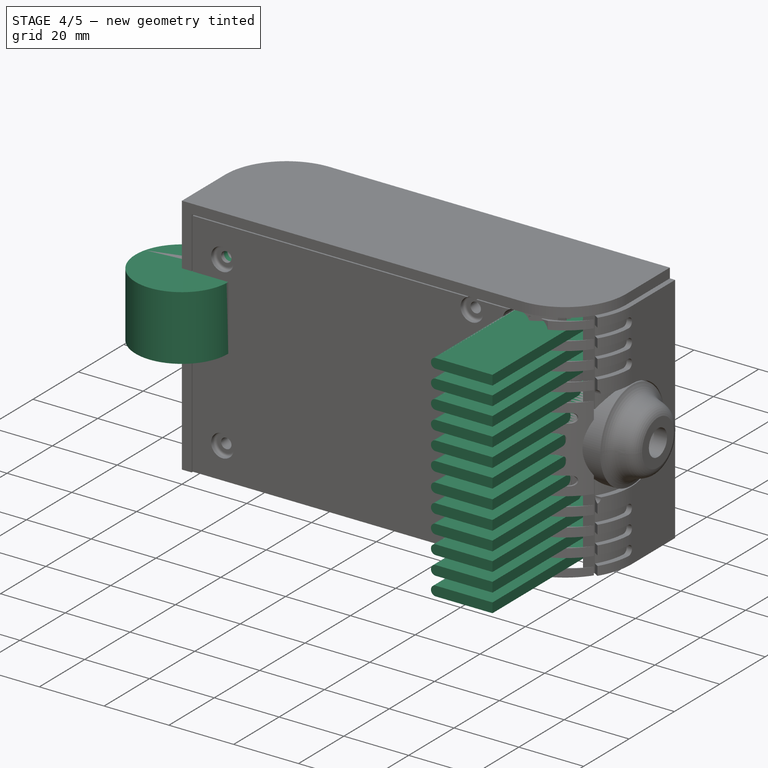
[diagram: stage 4 of 5 — iso view after this stage's code; geometry added in this stage tinted green]
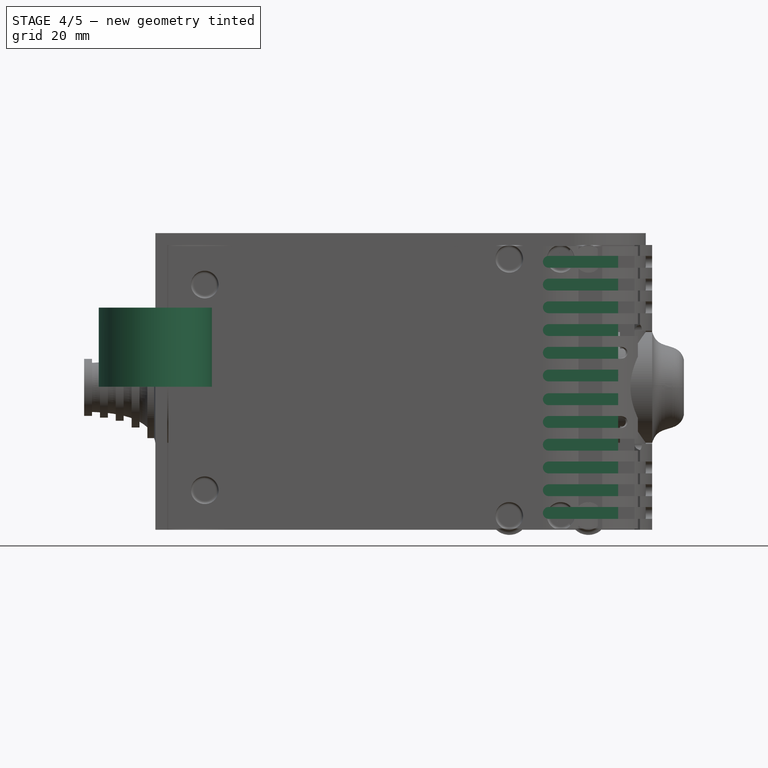
[diagram: stage 4 of 5 — front view after this stage's code; geometry added in this stage tinted green]
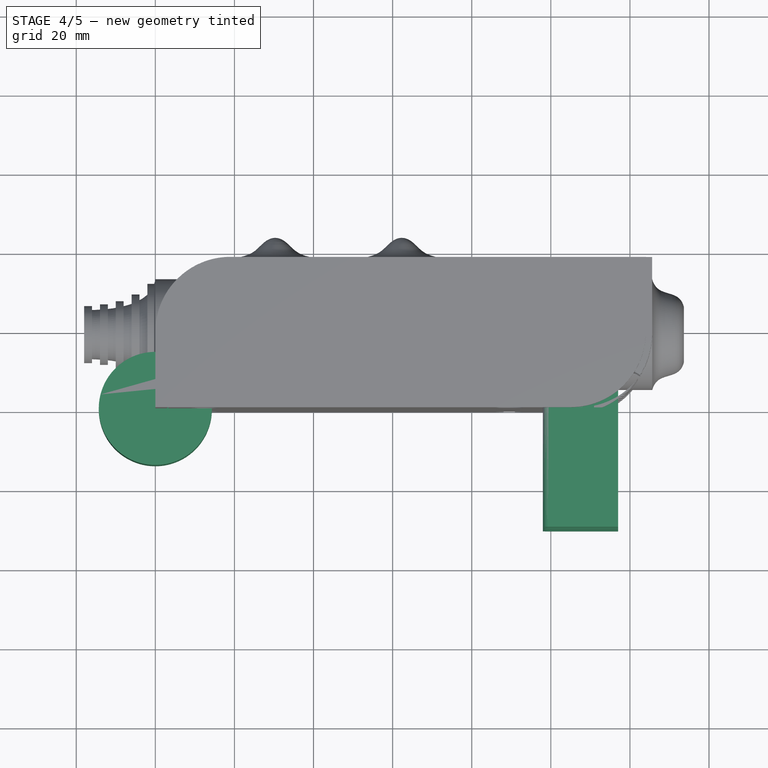
[diagram: stage 4 of 5 — top view after this stage's code; geometry added in this stage tinted green]
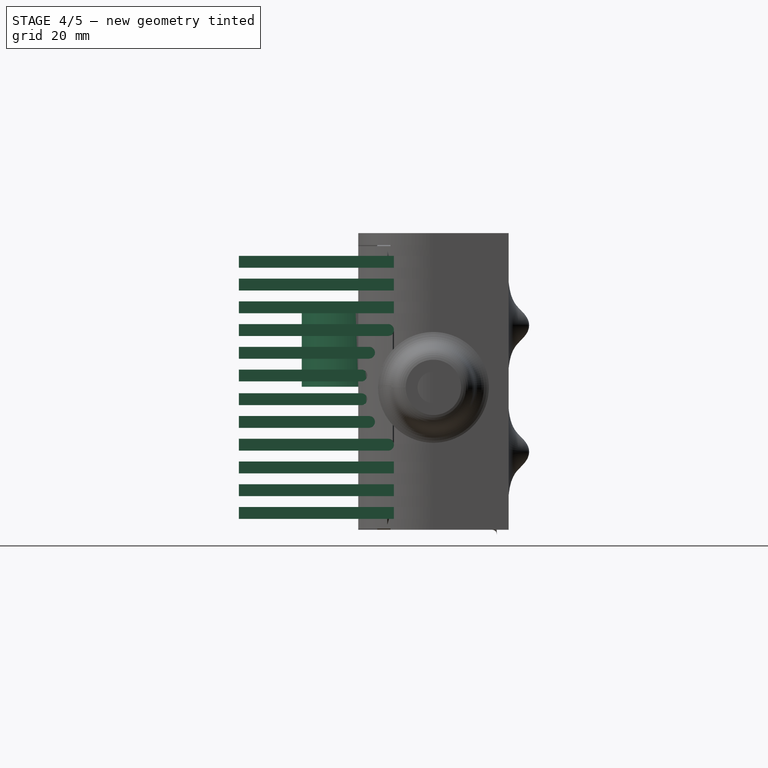
[diagram: stage 4 of 5 — right view after this stage's code; geometry added in this stage tinted green]
FEATURE [Sketcher::SketchObject] Sketch  label="topSketch"
  FullyConstrained = true
  sketch-geometry (20):
    g0: LineSegment StartX=5.21097e-06 StartY=3 StartZ=0 EndX=5.21097e-06 EndY=19 EndZ=0
    g1: ArcOfCircle CenterX=19 CenterY=19 CenterZ=0 NormalX=0 NormalY=0 NormalZ=1 AngleXU=0 Radius=19 StartAngle=1.5708 EndAngle=3.14159
    g2: ArcOfCircle CenterX=19 CenterY=19 CenterZ=0 NormalX=0 NormalY=0 NormalZ=1 AngleXU=0 Radius=16 StartAngle=1.5708 EndAngle=3.14159
    g3: LineSegment StartX=114 StartY=35 StartZ=0 EndX=19 EndY=35 EndZ=0
    g4: LineSegment StartX=5.21097e-06 StartY=3 StartZ=0 EndX=5.21097e-06 EndY=0 EndZ=0
    g5: LineSegment StartX=3 StartY=0 StartZ=0 EndX=5.21097e-06 EndY=0 EndZ=0
    g6: LineSegment StartX=3 StartY=19 StartZ=0 EndX=3 EndY=0 EndZ=0
    g7: LineSegment StartX=19 StartY=38 StartZ=0 EndX=124 EndY=38 EndZ=0
    g8: Circle CenterX=119 CenterY=35 CenterZ=0 NormalX=0 NormalY=0 NormalZ=1 AngleXU=0 Radius=1
    g9: Circle CenterX=121 CenterY=35 CenterZ=0 NormalX=0 NormalY=0 NormalZ=1 AngleXU=0 Radius=1
    g10: Circle CenterX=121 CenterY=33 CenterZ=0 NormalX=0 NormalY=0 NormalZ=1 AngleXU=0 Radius=1
    g11: BSplineCurve PolesCount=3 KnotsCount=2 Degree=2 IsPeriodic=0
    g12: GeomPoint X=119 Y=35 Z=0
    g13: GeomPoint X=121 Y=33 Z=0
    g14: LineSegment StartX=119 StartY=35 StartZ=0 EndX=114 EndY=35 EndZ=0
    g15: ArcOfCircle CenterX=105 CenterY=19 CenterZ=0 NormalX=0 NormalY=0 NormalZ=1 AngleXU=0 Radius=19 StartAngle=5.7297 EndAngle=6.28319
    g16: ArcOfCircle CenterX=105 CenterY=19 CenterZ=0 NormalX=0 NormalY=0 NormalZ=1 AngleXU=0 Radius=16 StartAngle=5.60905 EndAngle=6.28319
    g17: LineSegment StartX=121 StartY=33 StartZ=0 EndX=121 EndY=19 EndZ=0
    g18: LineSegment StartX=124 StartY=38 StartZ=0 EndX=124 EndY=19 EndZ=0
    g19: LineSegment StartX=117.5 StartY=9.01251 StartZ=0 EndX=121.163 EndY=9.0125 EndZ=0
  constraints (46):
    c: Vertical(g0)
    c: Block(g0)
    c: Coincident(g1,g0)
    c: Block(g1)
    c: Coincident(g2,g1)
    c: Block(g2)
    c: Coincident(g3,g2)
    c: Horizontal(g3)
    c: Tangent(g3,g2)
    c: Coincident(g4,g0)
    c: Distance(g4) = 3
    c: Vertical(g4)
    c: Coincident(g5,g4)
    c: Horizontal(g5)
    c: Coincident(g6,g2)
    c: Coincident(g6,g5)
    c: Vertical(g6)
    c: Horizontal(g7)
    c: Distance(g7) = 105
    c: Coincident(g7,g1)
    c: Block(g3)
    c: Weight(g8) = 1
    c: Equal(g8,g9)
    c: Equal(g8,g10)
    c: InternalAlignment(g8,g11)
    c: InternalAlignment(g9,g11)
    c: InternalAlignment(g10,g11)
    c: InternalAlignment(g12,g11)
    c: InternalAlignment(g13,g11)
    c: Block(g11)
    c: Coincident(g14,g11)
    c: Coincident(g14,g3)
    c: Horizontal(g14)
    c: Block(g15)
    c: Coincident(g16,g15)
    c: Block(g16)
    c: Coincident(g17,g11)
    c: Coincident(g17,g16)
    c: Vertical(g17)
    c: Distance(g17) = 14
    c: Coincident(g18,g7)
    c: Coincident(g18,g15)
    c: Vertical(g18)
    c: Distance(g18) = 19
    c: Coincident(g19,g16)
    c: Coincident(g19,g15)
FEATURE [Sketcher::SketchObject] Sketch001  label="bottomSketch"
  FullyConstrained = true
  sketch-geometry (32):
    g0: LineSegment StartX=3.3 StartY=-6.03275e-07 StartZ=0 EndX=98 EndY=-6.03275e-07 EndZ=0
    g1: ArcOfCircle CenterX=98 CenterY=19 CenterZ=0 NormalX=0 NormalY=0 NormalZ=1 AngleXU=0 Radius=19 StartAngle=4.71239 EndAngle=5.71103
    g2: LineSegment StartX=6.3 StartY=8 StartZ=0 EndX=3.3 EndY=8 EndZ=0
    g3: LineSegment StartX=3.3 StartY=8 StartZ=0 EndX=3.3 EndY=-6.03275e-07 EndZ=0
    g4: ArcOfCircle CenterX=8.3 CenterY=5 CenterZ=0 NormalX=0 NormalY=0 NormalZ=1 AngleXU=0 Radius=2 StartAngle=3.14159 EndAngle=4.71239
    g5: LineSegment StartX=6.3 StartY=8 StartZ=0 EndX=6.3 EndY=5 EndZ=0
    g6: ArcOfCircle CenterX=98 CenterY=19 CenterZ=0 NormalX=0 NormalY=0 NormalZ=1 AngleXU=0 Radius=12.7 StartAngle=4.71239 EndAngle=6.28319
    g7: LineSegment StartX=94.7 StartY=3 StartZ=0 EndX=8.3 EndY=3 EndZ=0
    g8-g12: Circle x5 (B-spline internal-alignment scaffolding for g13; pole/knot coordinates omitted)
    g13: BSplineCurve PolesCount=5 KnotsCount=3 Degree=3 IsPeriodic=0
    g14: GeomPoint X=98 Y=6.3 Z=0
    g15: GeomPoint X=96.3938 Y=4.71946 Z=0
    g16: GeomPoint X=94.7 Y=3 Z=0
    g17-g23: Circle x7 (B-spline internal-alignment scaffolding for g24; pole/knot coordinates omitted)
    g24: BSplineCurve PolesCount=7 KnotsCount=5 Degree=3 IsPeriodic=0
    g25-g29: GeomPoint x5 (B-spline internal-alignment scaffolding for g24; pole/knot coordinates omitted)
    g30: ArcOfCircle CenterX=98 CenterY=19 CenterZ=0 NormalX=0 NormalY=0 NormalZ=1 AngleXU=0 Radius=15.7 StartAngle=5.81226 EndAngle=6.28319
    g31: LineSegment StartX=110.7 StartY=19 StartZ=0 EndX=113.7 EndY=19 EndZ=0
  constraints (41):
    c: Horizontal(g0)
    c: Coincident(g1,g0)
    c: Block(g1)
    c: Horizontal(g2)
    c: Distance(g2) = 3
    c: Coincident(g3,g2)
    c: Vertical(g3)
    c: Coincident(g3,g0)
    c: Block(g4)
    c: Block(g2)
    c: Coincident(g5,g2)
    c: Coincident(g5,g4)
    c: Vertical(g5)
    c: Coincident(g6,g1)
    c: Block(g6)
    c: Coincident(g7,g4)
    c: Horizontal(g7)
    c: Block(g0)
    c: Block(g7)
    c: Block(g3)
    c: Coincident(g13,g6)
    c: Weight(g8) = 1
    c: Equal(g8, g9-g12) x4
    c: Coincident(g13,g7)
    c: InternalAlignment(g8-g12 -> g13) x5
    c: InternalAlignment(g14,g13)
    c: InternalAlignment(g15,g13)
    c: InternalAlignment(g16,g13)
    c: Block(g13)
    c: Weight(g17) = 1
    c: Equal(g17, g18-g23) x6
    c: Coincident(g24,g1)
    c: InternalAlignment(g17-g23 -> g24) x7
    c: InternalAlignment(g25-g29 -> g24) x5
    c: Block(g24)
    c: Coincident(g30,g24)
    c: Coincident(g31,g6)
    c: Coincident(g31,g30)
    c: Horizontal(g31)
    c: Block(g31)
    c: Block(g30)
FEATURE [Part::Extrusion] Extrude  label="top"
  Base = -> Sketch
  Dir = (0,0,1)
  DirMode = 2
  FaceMakerClass = Part::FaceMakerBullseye
  LengthFwd = 72
  LengthRev = 0
  Solid = true
  Symmetric = false
FEATURE [Sketcher::SketchObject] Sketch003  label="topSketch002"
  FullyConstrained = true
  sketch-geometry (6):
    g0: LineSegment StartX=19 StartY=38 StartZ=0 EndX=117 EndY=38 EndZ=0
    g1: ArcOfCircle CenterX=19 CenterY=19 CenterZ=0 NormalX=0 NormalY=0 NormalZ=1 AngleXU=0 Radius=19 StartAngle=1.5708 EndAngle=3.14159
    g2: LineSegment StartX=117 StartY=38 StartZ=0 EndX=117 EndY=19 EndZ=0
    g3: LineSegment StartX=98 StartY=1.0161e-12 StartZ=0 EndX=5.22862e-06 EndY=1.0161e-12 EndZ=0
    g4: LineSegment StartX=5.22862e-06 StartY=19 StartZ=0 EndX=5.22862e-06 EndY=1.0161e-12 EndZ=0
    g5: ArcOfCircle CenterX=98 CenterY=19 CenterZ=0 NormalX=0 NormalY=0 NormalZ=1 AngleXU=0 Radius=19 StartAngle=4.71239 EndAngle=6.28319
  constraints (16):
    c: Horizontal(g0)
    c: Distance(g0) = 98
    c: Coincident(g1,g0)
    c: Block(g1)
    c: Coincident(g2,g0)
    c: Vertical(g2)
    c: Distance(g2) = 19
    c: Horizontal(g3)
    c: Coincident(g4,g1)
    c: Vertical(g4)
    c: Coincident(g3,g4)
    c: Block(g3)
    c: Coincident(g5,g2)
    c: Coincident(g5,g3)
    c: Block(g0)
    c: Block(g5)
FEATURE [Sketcher::SketchObject] Sketch004
  FullyConstrained = true
  MapMode = 3
  Placement = pos=(0,0,0) rot=(1,0,0;1.5708rad)
  Support = -> [Extrude]
  sketch-geometry (8):
    g0: Circle CenterX=80.351 CenterY=-67.6202 CenterZ=0 NormalX=0 NormalY=0 NormalZ=1 AngleXU=0 Radius=2
    g1: Circle CenterX=80.351 CenterY=-67.6202 CenterZ=0 NormalX=0 NormalY=0 NormalZ=1 AngleXU=0 Radius=3
    g2: Circle CenterX=80.351 CenterY=-4.92017 CenterZ=0 NormalX=0 NormalY=0 NormalZ=1 AngleXU=0 Radius=2
    g3: Circle CenterX=80.351 CenterY=-4.92017 CenterZ=0 NormalX=0 NormalY=0 NormalZ=1 AngleXU=0 Radius=3
    g4: Circle CenterX=23.851 CenterY=-4.92017 CenterZ=0 NormalX=0 NormalY=0 NormalZ=1 AngleXU=0 Radius=2
    g5: Circle CenterX=23.851 CenterY=-4.92017 CenterZ=0 NormalX=0 NormalY=0 NormalZ=1 AngleXU=0 Radius=3
    g6: Circle CenterX=23.851 CenterY=-67.6202 CenterZ=0 NormalX=0 NormalY=0 NormalZ=1 AngleXU=0 Radius=2
    g7: Circle CenterX=23.851 CenterY=-67.6202 CenterZ=0 NormalX=0 NormalY=0 NormalZ=1 AngleXU=0 Radius=3
  constraints (8):
    c: Block(g3)
    c: Block(g2)
    c: Block(g1)
    c: Block(g0)
    c: Block(g6)
    c: Block(g7)
    c: Block(g4)
    c: Block(g5)
FEATURE [Part::Extrusion] Extrude004
  Base = -> Sketch004
  Dir = (0,-1,2e-16)
  DirMode = 2
  FaceMakerClass = Part::FaceMakerBullseye
  LengthFwd = 6
  LengthRev = 0
  Placement = pos=(0,9,0) rot=(0,0,1;0rad)
  Solid = true
  Symmetric = false
FEATURE [Sketcher::SketchObject] Sketch005
  FullyConstrained = true
  MapMode = 3
  Placement = pos=(0,0,0) rot=(1,0,0;1.5708rad)
  Support = -> [Extrude]
  sketch-geometry (8):
    g0: Circle CenterX=80.351 CenterY=-67.6202 CenterZ=0 NormalX=0 NormalY=0 NormalZ=1 AngleXU=0 Radius=3
    g1: Circle CenterX=80.351 CenterY=-4.92017 CenterZ=0 NormalX=0 NormalY=0 NormalZ=1 AngleXU=0 Radius=3
    g2: Circle CenterX=23.851 CenterY=-4.92017 CenterZ=0 NormalX=0 NormalY=0 NormalZ=1 AngleXU=0 Radius=3
    g3: Circle CenterX=23.851 CenterY=-67.6202 CenterZ=0 NormalX=0 NormalY=0 NormalZ=1 AngleXU=0 Radius=3
    g4: Circle CenterX=23.851 CenterY=-67.6202 CenterZ=0 NormalX=0 NormalY=0 NormalZ=1 AngleXU=0 Radius=5
    g5: Circle CenterX=80.351 CenterY=-67.6202 CenterZ=0 NormalX=0 NormalY=0 NormalZ=1 AngleXU=0 Radius=5
    g6: Circle CenterX=23.851 CenterY=-4.92017 CenterZ=0 NormalX=0 NormalY=0 NormalZ=1 AngleXU=0 Radius=5
    g7: Circle CenterX=80.351 CenterY=-4.92017 CenterZ=0 NormalX=0 NormalY=0 NormalZ=1 AngleXU=0 Radius=5
  constraints (8):
    c: Block(g1)
    c: Block(g0)
    c: Block(g3)
    c: Block(g2)
    c: Block(g5)
    c: Block(g4)
    c: Block(g6)
    c: Block(g7)
FEATURE [Part::Extrusion] Extrude005
  Base = -> Sketch005
  Dir = (0,-1,2e-16)
  DirMode = 2
  FaceMakerClass = Part::FaceMakerBullseye
  LengthFwd = 2
  LengthRev = 0
  Solid = true
  Symmetric = false
FEATURE [Sketcher::SketchObject] Sketch006
  FullyConstrained = true
  MapMode = 3
  Placement = pos=(0,0,0) rot=(1,0,0;1.5708rad)
  sketch-geometry (8):
    g0: Circle CenterX=80.351 CenterY=-67.6202 CenterZ=0 NormalX=0 NormalY=0 NormalZ=1 AngleXU=0 Radius=3
    g1: Circle CenterX=80.351 CenterY=-4.92017 CenterZ=0 NormalX=0 NormalY=0 NormalZ=1 AngleXU=0 Radius=3
    g2: Circle CenterX=23.851 CenterY=-4.92017 CenterZ=0 NormalX=0 NormalY=0 NormalZ=1 AngleXU=0 Radius=3
    g3: Circle CenterX=23.851 CenterY=-67.6202 CenterZ=0 NormalX=0 NormalY=0 NormalZ=1 AngleXU=0 Radius=3
    g4: Circle CenterX=23.851 CenterY=-67.6202 CenterZ=0 NormalX=0 NormalY=0 NormalZ=1 AngleXU=0 Radius=5
    g5: Circle CenterX=80.351 CenterY=-67.6202 CenterZ=0 NormalX=0 NormalY=0 NormalZ=1 AngleXU=0 Radius=5
    g6: Circle CenterX=23.851 CenterY=-4.92017 CenterZ=0 NormalX=0 NormalY=0 NormalZ=1 AngleXU=0 Radius=5
    g7: Circle CenterX=80.351 CenterY=-4.92017 CenterZ=0 NormalX=0 NormalY=0 NormalZ=1 AngleXU=0 Radius=5
  constraints (8):
    c: Block(g1)
    c: Block(g0)
    c: Block(g3)
    c: Block(g2)
    c: Block(g5)
    c: Block(g4)
    c: Block(g6)
    c: Block(g7)
FEATURE [Part::Extrusion] Extrude007
  Base = -> Sketch006
  Dir = (0,-1,2e-16)
  DirMode = 2
  FaceMakerClass = Part::FaceMakerBullseye
  LengthFwd = 2
  LengthRev = 0
  Solid = true
  Symmetric = false
FEATURE [Part::Fillet] Fillet
  Base = -> Extrude007
  Edges = 4 edges r=1.99: [Edge6,Edge12,Edge18,Edge24]
FEATURE [Part::Cut] Cut
  Base = -> Extrude005
  Placement = pos=(0,5,0) rot=(0,0,1;0rad)
  Tool = -> Fillet
FEATURE [Part::MultiFuse] Fusion  label="pCBScrews"
  Placement = pos=(-2.5,0,72.3) rot=(0,0,1;0rad)
  Shapes = -> [Extrude004,Cut]
FEATURE [Part::Feature] Face014
  shape: bbox 10 x 16.5 x 2e-07 mm, 1 faces, 0 solids (baked)
FEATURE [Part::Feature] Face015
  shape: bbox 10 x 16.5 x 2e-07 mm, 1 faces, 0 solids (baked)
FEATURE [Part::Feature] Face016
  shape: bbox 10 x 16.5 x 2e-07 mm, 1 faces, 0 solids (baked)
FEATURE [Part::Revolution] Revolve019  label="plugHousing033"
  Angle = 360
  Axis = (0,1,0)
  Base = (0,0,0)
  FaceMakerClass = Part::FaceMakerBullseye
  Placement = pos=(0,0,36.15) rot=(0,0,1;0rad)
  Solid = false
  Source = -> Face016
  Symmetric = false
FEATURE [Part::Feature] Face017
  shape: bbox 10 x 16.5 x 2e-07 mm, 1 faces, 0 solids (baked)
FEATURE [Part::Revolution] Revolve020  label="plugHousing034"
  Angle = 360
  Axis = (0,1,0)
  Base = (0,0,0)
  FaceMakerClass = Part::FaceMakerBullseye
  Placement = pos=(0,0,36.15) rot=(0,0,1;0rad)
  Solid = false
  Source = -> Face017
  Symmetric = false
FEATURE [Part::Feature] Face018
  shape: bbox 10 x 16.5 x 2e-07 mm, 1 faces, 0 solids (baked)
FEATURE [Part::Revolution] Revolve016  label="plugHousing030"
  Angle = 360
  Axis = (0,1,0)
  Base = (0,0,0)
  FaceMakerClass = Part::FaceMakerBullseye
  Placement = pos=(0,0,36.15) rot=(0,0,1;0rad)
  Solid = false
  Source = -> Face018
  Symmetric = false
FEATURE [Part::MultiFuse] Fusion020  label="plugHousing038"
  Placement = pos=(0,0,0) rot=(0,0,1;1.5708rad)
  Shapes = -> [Revolve016,Revolve020]
FEATURE [Part::Feature] Face019
  shape: bbox 10 x 16.5 x 2e-07 mm, 1 faces, 0 solids (baked)
FEATURE [Part::Feature] Face020
  shape: bbox 10 x 16.5 x 2e-07 mm, 1 faces, 0 solids (baked)
FEATURE [Part::Revolution] Revolve017  label="plugHousing031"
  Angle = 360
  Axis = (0,1,0)
  Base = (0,0,0)
  FaceMakerClass = Part::FaceMakerBullseye
  Placement = pos=(0,0,36.15) rot=(0,0,1;0rad)
  Solid = false
  Source = -> Face020
  Symmetric = false
FEATURE [Part::MultiFuse] Fusion021  label="plugHousing039"
  Placement = pos=(0,0,0) rot=(0,0,1;1.5708rad)
  Shapes = -> [Revolve019,Revolve017]
FEATURE [Part::MultiFuse] Fusion023  label="plugHousing041"
  Placement = pos=(0,19,0) rot=(0,0,1;3.14159rad)
  Shapes = -> [Fusion021,Fusion020]
FEATURE [Part::Revolution] Revolve022  label="plugHousing043"
  Angle = 360
  Axis = (0,1,0)
  Base = (0,0,0)
  FaceMakerClass = Part::FaceMakerBullseye
  Placement = pos=(0,0,36.15) rot=(0,0,1;0rad)
  Solid = false
  Source = -> Face019
  Symmetric = false
FEATURE [Part::Feature] Face021
  shape: bbox 10 x 16.5 x 2e-07 mm, 1 faces, 0 solids (baked)
FEATURE [Part::Revolution] Revolve023  label="plugHousing044"
  Angle = 360
  Axis = (0,1,0)
  Base = (0,0,0)
  FaceMakerClass = Part::FaceMakerBullseye
  Placement = pos=(0,0,36.15) rot=(0,0,1;0rad)
  Solid = false
  Source = -> Face021
  Symmetric = false
FEATURE [Part::Feature] Face022
  shape: bbox 10 x 16.5 x 2e-07 mm, 1 faces, 0 solids (baked)
FEATURE [Part::Revolution] Revolve018  label="plugHousing032"
  Angle = 360
  Axis = (0,1,0)
  Base = (0,0,0)
  FaceMakerClass = Part::FaceMakerBullseye
  Placement = pos=(0,0,36.15) rot=(0,0,1;0rad)
  Solid = false
  Source = -> Face022
  Symmetric = false
FEATURE [Part::MultiFuse] Fusion022  label="plugHousing040"
  Placement = pos=(0,0,0) rot=(0,0,1;1.5708rad)
  Shapes = -> [Revolve018,Revolve023]
FEATURE [Part::Feature] Face023
  shape: bbox 10 x 16.5 x 2e-07 mm, 1 faces, 0 solids (baked)
FEATURE [Part::Revolution] Revolve021  label="plugHousing035"
  Angle = 360
  Axis = (0,1,0)
  Base = (0,0,0)
  FaceMakerClass = Part::FaceMakerBullseye
  Placement = pos=(0,0,36.15) rot=(0,0,1;0rad)
  Solid = false
  Source = -> Face023
  Symmetric = false
FEATURE [Part::MultiFuse] Fusion018  label="plugHousing036"
  Placement = pos=(0,0,0) rot=(0,0,1;1.5708rad)
  Shapes = -> [Revolve022,Revolve021]
FEATURE [Part::MultiFuse] Fusion019  label="plugHousing037"
  Placement = pos=(0,19,0) rot=(0,0,1;3.14159rad)
  Shapes = -> [Fusion018,Fusion022]
FEATURE [Part::MultiFuse] Fusion024  label="plugHousing042"
  Placement = pos=(122.621,0,-0.15) rot=(0,0,1;0rad)
  Shapes = -> [Fusion023,Fusion019]
FEATURE [Part::Box] Box001  label="Cube001"
  AttacherType = Attacher::AttachEngine3D
  Height = 28
  Length = 3
  Placement = pos=(110.7,19,22) rot=(0,0,1;0rad)
  Width = 15.7
FEATURE [Part::Cylinder] Cylinder008
  Angle = 360
  AttacherType = Attacher::AttachEngine3D
  Height = 20
  Placement = pos=(0,0,36.15) rot=(0,0,1;0rad)
  Radius = 10.3
FEATURE [Part::Cylinder] Cylinder009
  Angle = 360
  AttacherType = Attacher::AttachEngine3D
  Height = 10
  Placement = pos=(0,0,36.15) rot=(0,0,1;0rad)
  Radius = 4
FEATURE [Part::MultiFuse] Fusion027  label="removeToCreteHoleForPlugHousing001"
  Placement = pos=(70,19,36) rot=(0,1,0;1.5708rad)
  Shapes = -> [Cylinder008,Cylinder009]
FEATURE [Part::Cut] Cut005  label="plugHousingTab"
  Base = -> Box001
  Tool = -> Fusion027
FEATURE [Part::MultiFuse] Fusion028  label="plugHousing045"
  Shapes = -> [Fusion024,Cut005]
FEATURE [Sketcher::SketchObject] Sketch008
  FullyConstrained = true
  sketch-geometry (54):
    g0: LineSegment StartX=-4.2 StartY=0 StartZ=0 EndX=-6.2 EndY=0 EndZ=0
    g1: LineSegment StartX=-14 StartY=-18 StartZ=0 EndX=-14 EndY=-26.5 EndZ=0
    g2: LineSegment StartX=-4.2 StartY=0 StartZ=0 EndX=-4.2 EndY=-13.4877 EndZ=0
    g3: Circle CenterX=-4.2 CenterY=-13.4877 CenterZ=0 NormalX=0 NormalY=0 NormalZ=1 AngleXU=0 Radius=1
    g4: Circle CenterX=-4.2 CenterY=-26.5 CenterZ=0 NormalX=0 NormalY=0 NormalZ=1 AngleXU=0 Radius=1
    g5: Circle CenterX=-8.2 CenterY=-26.5 CenterZ=0 NormalX=0 NormalY=0 NormalZ=1 AngleXU=0 Radius=1
    g6: BSplineCurve PolesCount=3 KnotsCount=2 Degree=2 IsPeriodic=0
    g7: GeomPoint X=-4.2 Y=-13.4877 Z=0
    g8: GeomPoint X=-8.2 Y=-26.5 Z=0
    g9: LineSegment StartX=-14 StartY=-26.5 StartZ=0 EndX=-8.2 EndY=-26.5 EndZ=0
    g10: LineSegment StartX=-10.15 StartY=-12 StartZ=0 EndX=-10.15 EndY=-14 EndZ=0
    g11: LineSegment StartX=-12.8401 StartY=-16 StartZ=0 EndX=-10.1571 EndY=-16 EndZ=0
    g12: LineSegment StartX=-10.15 StartY=-14 StartZ=0 EndX=-8.70761 EndY=-14 EndZ=0
    g13: LineSegment StartX=-12.8401 StartY=-16 StartZ=0 EndX=-12.8401 EndY=-17.6958 EndZ=0
    g14: LineSegment StartX=-10.15 StartY=-12 StartZ=0 EndX=-7.79258 EndY=-12 EndZ=0
    g15: Circle CenterX=-6.2215 CenterY=-2 CenterZ=0 NormalX=0 NormalY=0 NormalZ=1 AngleXU=0 Radius=1
    g16: Circle CenterX=-6.22762 CenterY=-2.58724 CenterZ=0 NormalX=0 NormalY=0 NormalZ=1 AngleXU=0 Radius=1
    g17: Circle CenterX=-6.32538 CenterY=-4 CenterZ=0 NormalX=0 NormalY=0 NormalZ=1 AngleXU=0 Radius=1
    g18: BSplineCurve PolesCount=3 KnotsCount=2 Degree=2 IsPeriodic=0
    g19: GeomPoint X=-6.2215 Y=-2 Z=0
    g20: GeomPoint X=-6.32538 Y=-4 Z=0
    g21: Circle CenterX=-6.48644 CenterY=-5.99526 CenterZ=0 NormalX=0 NormalY=0 NormalZ=1 AngleXU=0 Radius=1
    g22: Circle CenterX=-6.58486 CenterY=-6.99526 CenterZ=0 NormalX=0 NormalY=0 NormalZ=1 AngleXU=0 Radius=1
    g23: Circle CenterX=-6.77343 CenterY=-8 CenterZ=0 NormalX=0 NormalY=0 NormalZ=1 AngleXU=0 Radius=1
    g24: BSplineCurve PolesCount=3 KnotsCount=2 Degree=2 IsPeriodic=0
    g25: GeomPoint X=-6.48644 Y=-5.99526 Z=0
    g26: GeomPoint X=-6.77343 Y=-8 Z=0
    g27: Circle CenterX=-7.19003 CenterY=-10 CenterZ=0 NormalX=0 NormalY=0 NormalZ=1 AngleXU=0 Radius=1
    g28: Circle CenterX=-7.44407 CenterY=-11.0915 CenterZ=0 NormalX=0 NormalY=0 NormalZ=1 AngleXU=0 Radius=1
    g29: Circle CenterX=-7.79258 CenterY=-12 CenterZ=0 NormalX=0 NormalY=0 NormalZ=1 AngleXU=0 Radius=1
    g30: BSplineCurve PolesCount=3 KnotsCount=2 Degree=2 IsPeriodic=0
    g31: GeomPoint X=-7.19003 Y=-10 Z=0
    g32: GeomPoint X=-7.79258 Y=-12 Z=0
    g33: Circle CenterX=-8.70761 CenterY=-14 CenterZ=0 NormalX=0 NormalY=0 NormalZ=1 AngleXU=0 Radius=1
    g34: Circle CenterX=-9.33087 CenterY=-15.1837 CenterZ=0 NormalX=0 NormalY=0 NormalZ=1 AngleXU=0 Radius=1
    g35: Circle CenterX=-10.1571 CenterY=-16 CenterZ=0 NormalX=0 NormalY=0 NormalZ=1 AngleXU=0 Radius=1
    g36: BSplineCurve PolesCount=3 KnotsCount=2 Degree=2 IsPeriodic=0
    g37: GeomPoint X=-8.70761 Y=-14 Z=0
    g38: GeomPoint X=-10.1571 Y=-16 Z=0
    g39: Circle CenterX=-12.8401 CenterY=-17.6958 CenterZ=0 NormalX=0 NormalY=0 NormalZ=1 AngleXU=0 Radius=1
    g40: Circle CenterX=-13.3521 CenterY=-17.9027 CenterZ=0 NormalX=0 NormalY=0 NormalZ=1 AngleXU=0 Radius=1
    g41: Circle CenterX=-14 CenterY=-18 CenterZ=0 NormalX=0 NormalY=0 NormalZ=1 AngleXU=0 Radius=1
    g42: BSplineCurve PolesCount=3 KnotsCount=2 Degree=2 IsPeriodic=0
    g43: GeomPoint X=-12.8401 Y=-17.6958 Z=0
    g44: GeomPoint X=-14 Y=-18 Z=0
    g45: LineSegment StartX=-6.2 StartY=0 StartZ=0 EndX=-7.2 EndY=0 EndZ=0
    g46: LineSegment StartX=-7.2 StartY=0 StartZ=0 EndX=-7.2 EndY=-2 EndZ=0
    g47: LineSegment StartX=-7.2 StartY=-2 StartZ=0 EndX=-6.2215 EndY=-2 EndZ=0
    g48: LineSegment StartX=-6.32538 StartY=-4 StartZ=0 EndX=-7.65538 EndY=-4 EndZ=0
    g49: LineSegment StartX=-7.65538 StartY=-4 StartZ=0 EndX=-7.65538 EndY=-5.99526 EndZ=0
    g50: LineSegment StartX=-7.65538 StartY=-5.99526 StartZ=0 EndX=-6.48644 EndY=-5.99526 EndZ=0
    g51: LineSegment StartX=-6.77343 StartY=-8 StartZ=0 EndX=-8.43343 EndY=-8 EndZ=0
    g52: LineSegment StartX=-8.43343 StartY=-8 StartZ=0 EndX=-8.43343 EndY=-10 EndZ=0
    g53: LineSegment StartX=-8.43343 StartY=-10 StartZ=0 EndX=-7.19003 EndY=-10 EndZ=0
  constraints (112):
    c: Horizontal(g0)
    c: Distance(g0) = 2
    c: Block(g0)
    c: Vertical(g1)
    c: Coincident(g2,g0)
    c: Vertical(g2)
    c: Block(g2)
    c: Coincident(g6,g2)
    c: Weight(g3) = 1
    c: Equal(g3,g4)
    c: Equal(g3,g5)
    c: InternalAlignment(g3,g6)
    c: InternalAlignment(g4,g6)
    c: InternalAlignment(g5,g6)
    c: InternalAlignment(g7,g6)
    c: InternalAlignment(g8,g6)
    c: Block(g6)
    c: Coincident(g9,g1)
    c: Coincident(g9,g6)
    c: Horizontal(g9)
    c: Vertical(g10)
    c: Block(g10)
    c: Horizontal(g11)
    c: Block(g11)
    c: Coincident(g12,g10)
    c: Horizontal(g12)
    c: Block(g12)
    c: Coincident(g13,g11)
    c: Vertical(g13)
    c: Block(g13)
    c: Coincident(g14,g10)
    c: Horizontal(g14)
    c: Block(g14)
    c: Block(g9)
    c: Block(g1)
    c: Weight(g15) = 1
    c: Equal(g15,g16)
    c: Equal(g15,g17)
    c: InternalAlignment(g15,g18)
    c: InternalAlignment(g16,g18)
    c: InternalAlignment(g17,g18)
    c: InternalAlignment(g19,g18)
    c: InternalAlignment(g20,g18)
    c: Weight(g21) = 1
    c: Equal(g21,g22)
    c: Equal(g21,g23)
    c: InternalAlignment(g21,g24)
    c: InternalAlignment(g22,g24)
    c: InternalAlignment(g23,g24)
    c: InternalAlignment(g25,g24)
    c: InternalAlignment(g26,g24)
    c: Weight(g27) = 1
    c: Equal(g27,g28)
    c: Equal(g27,g29)
    c: Coincident(g30,g14)
    c: InternalAlignment(g27,g30)
    c: InternalAlignment(g28,g30)
    c: InternalAlignment(g29,g30)
    c: InternalAlignment(g31,g30)
    c: InternalAlignment(g32,g30)
    c: Coincident(g36,g12)
    c: Weight(g33) = 1
    c: Equal(g33,g34)
    c: Equal(g33,g35)
    c: Coincident(g36,g11)
    c: InternalAlignment(g33,g36)
    c: InternalAlignment(g34,g36)
    c: InternalAlignment(g35,g36)
    c: InternalAlignment(g37,g36)
    c: InternalAlignment(g38,g36)
    c: Coincident(g42,g13)
    c: Weight(g39) = 1
    c: Equal(g39,g40)
    c: Equal(g39,g41)
    c: Coincident(g42,g1)
    c: InternalAlignment(g39,g42)
    c: InternalAlignment(g40,g42)
    c: InternalAlignment(g41,g42)
    c: InternalAlignment(g43,g42)
    c: InternalAlignment(g44,g42)
    c: Block(g18)
    c: Block(g24)
    c: Block(g30)
    c: Block(g36)
    c: Block(g42)
    c: Horizontal(g45)
    c: Coincident(g45,g0)
    c: Vertical(g46)
    c: Coincident(g46,g45)
    c: Coincident(g47,g46)
    c: Coincident(g47,g18)
    c: Horizontal(g47)
    c: Block(g46)
    c: Coincident(g48,g18)
    c: Horizontal(g48)
    c: Distance(g48) = 1.33
    c: Vertical(g49)
    c: Coincident(g49,g48)
    c: Coincident(g50,g49)
    c: Coincident(g50,g24)
    c: Horizontal(g50)
    c: Tangent(g50,g22)
    c: Horizontal(g51)
    c: Coincident(g51,g24)
    c: Block(g51)
    c: Vertical(g52)
    c: Block(g52)
    c: Coincident(g52,g51)
    c: Coincident(g53,g52)
    c: Coincident(g53,g30)
    c: Horizontal(g53)
    c: Distance(g1) = 8.5
FEATURE [Part::Feature] Face024
  shape: bbox 9.8 x 26.5 x 2e-07 mm, 1 faces, 0 solids (baked)
FEATURE [Part::Revolution] Revolve024
  Angle = 360
  Axis = (0,1,0)
  Base = (0,0,0)
  FaceMakerClass = Part::FaceMakerBullseye
  Placement = pos=(0,0,0) rot=(0,0,1;1.5708rad)
  Solid = false
  Source = -> Face024
  Symmetric = false
FEATURE [Part::Feature] Face025
  shape: bbox 9.8 x 26.5 x 2e-07 mm, 1 faces, 0 solids (baked)
FEATURE [Part::Revolution] Revolve025
  Angle = 360
  Axis = (0,1,0)
  Base = (0,0,0)
  FaceMakerClass = Part::FaceMakerBullseye
  Placement = pos=(0,0,0) rot=(0,0,1;1.5708rad)
  Solid = false
  Source = -> Face025
  Symmetric = false
FEATURE [Part::MultiFuse] Fusion033
  Placement = pos=(-18,19,36) rot=(0,0,1;0rad)
  Shapes = -> [Revolve025,Revolve024]
FEATURE [Part::Cylinder] Cylinder014
  Angle = 360
  AttacherType = Attacher::AttachEngine3D
  Height = 20
  Placement = pos=(0,0,36.15) rot=(0,0,1;0rad)
  Radius = 14.3
FEATURE [Part::Cylinder] Cylinder015
  Angle = 360
  AttacherType = Attacher::AttachEngine3D
  Height = 10
  Placement = pos=(0,0,36.15) rot=(0,0,1;0rad)
  Radius = 4
FEATURE [Part::Box] Box005  label="Cube005"
  AttacherType = Attacher::AttachEngine3D
  Height = 28
  Length = 3
  Placement = pos=(110.7,19,22) rot=(0,0,1;0rad)
  Width = 15.7
FEATURE [Part::Cylinder] Cylinder016
  Angle = 360
  AttacherType = Attacher::AttachEngine3D
  Height = 10
  Placement = pos=(0,0,36.15) rot=(0,0,1;0rad)
  Radius = 4
FEATURE [Part::Cylinder] Cylinder017
  Angle = 360
  AttacherType = Attacher::AttachEngine3D
  Height = 20
  Placement = pos=(0,0,36.15) rot=(0,0,1;0rad)
  Radius = 10.3
FEATURE [Part::MultiFuse] Fusion035  label="removeToCreteHoleForPlugHousing005"
  Placement = pos=(70,19,36) rot=(0,1,0;1.5708rad)
  Shapes = -> [Cylinder017,Cylinder016]
FEATURE [Part::Cut] Cut009  label="plugHousingTab001"
  Base = -> Box005
  Placement = pos=(-107.4,-14,0) rot=(0,0,1;0rad)
  Tool = -> Fusion035
FEATURE [Part::Box] Box006  label="Cube006"
  AttacherType = Attacher::AttachEngine3D
  Height = 28
  Length = 3
  Placement = pos=(110.7,19,22) rot=(0,0,1;0rad)
  Width = 15.7
FEATURE [Part::Cylinder] Cylinder018
  Angle = 360
  AttacherType = Attacher::AttachEngine3D
  Height = 10
  Placement = pos=(0,0,36.15) rot=(0,0,1;0rad)
  Radius = 4
FEATURE [Part::Cylinder] Cylinder019
  Angle = 360
  AttacherType = Attacher::AttachEngine3D
  Height = 20
  Placement = pos=(0,0,36.15) rot=(0,0,1;0rad)
  Radius = 10.3
FEATURE [Part::MultiFuse] Fusion036  label="removeToCreteHoleForPlugHousing006"
  Placement = pos=(70,19,36) rot=(0,1,0;1.5708rad)
  Shapes = -> [Cylinder019,Cylinder018]
FEATURE [Part::Cut] Cut010  label="plugHousingTab002"
  Base = -> Box006
  Placement = pos=(-107.4,-14,0) rot=(0,0,1;0rad)
  Tool = -> Fusion036
FEATURE [Part::MultiFuse] Fusion037
  Placement = pos=(9.6,23,0) rot=(0,0,1;3.14159rad)
  Shapes = -> [Cut009,Cut010]
FEATURE [Part::Box] Box  label="Cube"
  AttacherType = Attacher::AttachEngine3D
  Height = 10
  Length = 3
  Placement = pos=(3.3,4,12) rot=(0,0,1;0rad)
  Width = 10
FEATURE [Part::Fillet] Fillet004
  Base = -> Fusion028
  Edges = 1 edges r=2: [Edge25]
FEATURE [Part::Fillet] Fillet005  label="plugHousing046"
  Base = -> Fillet004
  Edges = 1 edges r=2: [Edge8]
FEATURE [Part::Fillet] Fillet006
  Base = -> Box
  Edges = 1 edges r=2: [Edge11]
FEATURE [Part::Box] Box007  label="Cube007"
  AttacherType = Attacher::AttachEngine3D
  Height = 10
  Length = 3
  Placement = pos=(3.3,4,50) rot=(0,0,1;0rad)
  Width = 10
FEATURE [Part::Fillet] Fillet007
  Base = -> Box007
  Edges = 1 edges r=2: [Edge12]
FEATURE [Part::Box] Box008  label="Cube008"
  AttacherType = Attacher::AttachEngine3D
  Height = 28
  Length = 4
  Placement = pos=(5,0,22) rot=(0,0,1;0rad)
  Width = 10
FEATURE [Part::Fillet] Fillet008
  Base = -> Box008
  Edges = 1 edges r=1: [Edge7]
FEATURE [Part::Fillet] Fillet009
  Base = -> Fillet008
  Edges = 1 edges r=2: [Edge5]
FEATURE [Part::Fillet] Fillet010
  Base = -> Fillet009
  Edges = 1 edges r=2: [Edge2]
FEATURE [Part::Fillet] Fillet011
  Base = -> Cut011
  Edges = 1 edges r=2: [Edge1]
FEATURE [Part::Fillet] Fillet012
  Base = -> Fillet011
  Edges = 1 edges r=2.5: [Edge1]
FEATURE [Part::Fillet] Fillet013
  Base = -> Fillet012
  Edges = 1 edges r=2.5: [Edge2]
FEATURE [Part::Box] Box010  label="Cube010"
  AttacherType = Attacher::AttachEngine3D
  Height = 16
  Length = 8
  Placement = pos=(12.7,31.52,28) rot=(0,0,1;0rad)
  Width = 4
FEATURE [Sketcher::SketchObject] Sketch010  label="topSketch004"
  FullyConstrained = true
  sketch-geometry (4):
    g0: LineSegment StartX=16.8446 StartY=31.512 StartZ=0 EndX=16.3251 EndY=34.4666 EndZ=0
    g1: ArcOfCircle CenterX=19 CenterY=19.2524 CenterZ=0 NormalX=0 NormalY=0 NormalZ=1 AngleXU=0 Radius=15.4476 StartAngle=1.74483 EndAngle=2.72717
    g2: ArcOfCircle CenterX=19 CenterY=19.2524 CenterZ=0 NormalX=0 NormalY=0 NormalZ=1 AngleXU=0 Radius=12.4476 StartAngle=1.74483 EndAngle=2.73189
    g3: LineSegment StartX=4.86004 StartY=25.4725 StartZ=0 EndX=7.58253 EndY=24.2107 EndZ=0
  constraints (7):
    c: Block(g0)
    c: Coincident(g1,g0)
    c: Coincident(g2,g0)
    c: Coincident(g3,g1)
    c: Coincident(g3,g2)
    c: Block(g1)
    c: Block(g2)
FEATURE [Part::Cylinder] Cylinder022
  Angle = 360
  AttacherType = Attacher::AttachEngine3D
  Height = 10
  Placement = pos=(0,0,36.15) rot=(0,0,1;0rad)
  Radius = 4
FEATURE [Sketcher::SketchObject] Sketch011  label="topSketch005"
  FullyConstrained = true
  sketch-geometry (4):
    g0: LineSegment StartX=16.8446 StartY=31.512 StartZ=0 EndX=16.3251 EndY=34.4666 EndZ=0
    g1: ArcOfCircle CenterX=19 CenterY=19.2524 CenterZ=0 NormalX=0 NormalY=0 NormalZ=1 AngleXU=0 Radius=15.4476 StartAngle=1.74483 EndAngle=2.72717
    g2: ArcOfCircle CenterX=19 CenterY=19.2524 CenterZ=0 NormalX=0 NormalY=0 NormalZ=1 AngleXU=0 Radius=12.4476 StartAngle=1.74483 EndAngle=2.73189
    g3: LineSegment StartX=4.86004 StartY=25.4725 StartZ=0 EndX=7.58253 EndY=24.2107 EndZ=0
  constraints (7):
    c: Block(g0)
    c: Coincident(g1,g0)
    c: Coincident(g2,g0)
    c: Coincident(g3,g1)
    c: Coincident(g3,g2)
    c: Block(g1)
    c: Block(g2)
FEATURE [Part::Extrusion] Extrude010
  Base = -> Sketch011
  Dir = (0,0,1)
  DirMode = 2
  FaceMakerClass = Part::FaceMakerBullseye
  LengthFwd = 10.6
  LengthRev = 0
  Placement = pos=(0,0,31) rot=(0,0,1;0rad)
  Solid = true
  Symmetric = false
FEATURE [Part::Cylinder] Cylinder023
  Angle = 360
  AttacherType = Attacher::AttachEngine3D
  Height = 20
  Placement = pos=(0,0,36.15) rot=(0,0,1;0rad)
  Radius = 8.2
FEATURE [Part::MultiFuse] Fusion039  label="removeToCreteHoleForPlugHousing008"
  Placement = pos=(-42,19,36) rot=(0,1,0;1.5708rad)
  Shapes = -> [Cylinder023,Cylinder022]
FEATURE [Part::Cut] Cut012
  Base = -> Extrude010
  Placement = pos=(0,0,-0.3) rot=(0,0,1;0rad)
  Tool = -> Fusion039
FEATURE [Part::Cut] Cut013
  Base = -> Box010
  Tool = -> Cut012
FEATURE [Part::Fillet] Fillet014
  Base = -> Cut013
  Edges = 1 edges r=0.7: [Edge13]
FEATURE [Part::Fillet] Fillet015
  Base = -> Fillet014
  Edges = 1 edges r=0.7: [Edge13]
FEATURE [Part::Fillet] Fillet016
  Base = -> Fillet015
  Edges = 1 edges r=0.7: [Edge16]
FEATURE [Part::Fillet] Fillet017
  Base = -> Fillet016
  Edges = 1 edges r=0.7: [Edge11]
FEATURE [Part::Fillet] Fillet018
  Base = -> Fillet017
  Edges = 1 edges r=0.7: [Edge10]
FEATURE [Part::Fillet] Fillet019
  Base = -> Fillet018
  Edges = 1 edges r=1.2: [Edge5]
FEATURE [Part::Fillet] Fillet020
  Base = -> Fillet019
  Edges = 1 edges r=1.2: [Edge12]
FEATURE [Part::Fillet] Fillet021
  Base = -> Fillet020
  Edges = 1 edges r=2: [Edge1]
  Placement = pos=(0.3,0,0) rot=(0,0,1;0rad)
FEATURE [Part::MultiFuse] Fusion041  label="wireHolder"
  Shapes = -> [Fusion033,Fillet013]
FEATURE [Part::MultiFuse] Fusion042
  Shapes = -> [Fillet007,Fusion041]
FEATURE [Part::MultiFuse] Fusion043  label="wireHolder001"
  Shapes = -> [Fusion042,Fillet010]
FEATURE [Part::MultiFuse] Fusion044  label="wireHolder002"
  Shapes = -> [Fillet006,Fusion037,Fusion043]
FEATURE [Sketcher::SketchObject] Sketch015
  FullyConstrained = true
  sketch-geometry (17):
    g0: Circle CenterX=-3.5 CenterY=23.5 CenterZ=0 NormalX=0 NormalY=0 NormalZ=1 AngleXU=0 Radius=1
    g1: Circle CenterX=-1 CenterY=15.25 CenterZ=0 NormalX=0 NormalY=0 NormalZ=1 AngleXU=0 Radius=1
    g2: Circle CenterX=-3.5 CenterY=7 CenterZ=0 NormalX=0 NormalY=0 NormalZ=1 AngleXU=0 Radius=1
    g3: BSplineCurve PolesCount=3 KnotsCount=2 Degree=2 IsPeriodic=0
    g4: GeomPoint X=-3.5 Y=23.5 Z=0
    g5: GeomPoint X=-3.5 Y=7 Z=0
    g6: Circle CenterX=-4.8 CenterY=30.5 CenterZ=0 NormalX=0 NormalY=0 NormalZ=1 AngleXU=0 Radius=1
    g7: Circle CenterX=-3.5 CenterY=30.5 CenterZ=0 NormalX=0 NormalY=0 NormalZ=1 AngleXU=0 Radius=1
    g8: Circle CenterX=-3.5 CenterY=29.2 CenterZ=0 NormalX=0 NormalY=0 NormalZ=1 AngleXU=0 Radius=1
    g9: BSplineCurve PolesCount=3 KnotsCount=2 Degree=2 IsPeriodic=0
    g10: GeomPoint X=-4.8 Y=30.5 Z=0
    g11: GeomPoint X=-3.5 Y=29.2 Z=0
    g12: LineSegment StartX=-3.5 StartY=29.2 StartZ=0 EndX=-3.5 EndY=23.5 EndZ=0
    g13: LineSegment StartX=-4.8 StartY=30.5 StartZ=0 EndX=0 EndY=30.5 EndZ=0
    g14: LineSegment StartX=-3.5 StartY=0.3 StartZ=0 EndX=0 EndY=0.3 EndZ=0
    g15: LineSegment StartX=-3.5 StartY=0.3 StartZ=0 EndX=-3.5 EndY=7 EndZ=0
    g16: LineSegment StartX=0 StartY=0.3 StartZ=0 EndX=0 EndY=30.5 EndZ=0
  constraints (33):
    c: Weight(g0) = 1
    c: Equal(g0,g1)
    c: Equal(g0,g2)
    c: InternalAlignment(g0,g3)
    c: InternalAlignment(g1,g3)
    c: InternalAlignment(g2,g3)
    c: InternalAlignment(g4,g3)
    c: InternalAlignment(g5,g3)
    c: Block(g3)
    c: Weight(g6) = 1
    c: Equal(g6,g7)
    c: Equal(g6,g8)
    c: InternalAlignment(g6,g9)
    c: InternalAlignment(g7,g9)
    c: InternalAlignment(g8,g9)
    c: InternalAlignment(g10,g9)
    c: InternalAlignment(g11,g9)
    c: Block(g9)
    c: Coincident(g12,g9)
    c: Coincident(g12,g3)
    c: Vertical(g12)
    c: Coincident(g13,g9)
    c: Horizontal(g13)
    c: Distance(g13) = 4.8
    c: Horizontal(g14)
    c: Block(g14)
    c: Coincident(g15,g14)
    c: Coincident(g15,g3)
    c: Vertical(g15)
    c: Coincident(g16,g14)
    c: Coincident(g16,g13)
    c: Vertical(g16)
    c: Tangent(g16,g1)
FEATURE [Sketcher::SketchObject] Sketch016
  FullyConstrained = true
  sketch-geometry (16):
    g0: Circle CenterX=-3.5 CenterY=23.5 CenterZ=0 NormalX=0 NormalY=0 NormalZ=1 AngleXU=0 Radius=1
    g1: Circle CenterX=-1 CenterY=15.25 CenterZ=0 NormalX=0 NormalY=0 NormalZ=1 AngleXU=0 Radius=1
    g2: Circle CenterX=-3.5 CenterY=7 CenterZ=0 NormalX=0 NormalY=0 NormalZ=1 AngleXU=0 Radius=1
    g3: BSplineCurve PolesCount=3 KnotsCount=2 Degree=2 IsPeriodic=0
    g4: GeomPoint X=-3.5 Y=23.5 Z=0
    g5: GeomPoint X=-3.5 Y=7 Z=0
    g6: LineSegment StartX=-3.5 StartY=28.2 StartZ=0 EndX=-3.5 EndY=23.5 EndZ=0
    g7: LineSegment StartX=0 StartY=29.5 StartZ=0 EndX=0 EndY=30 EndZ=0
    g8: LineSegment StartX=-3.5 StartY=28.2 StartZ=0 EndX=-3.5 EndY=30 EndZ=0
    g9: LineSegment StartX=0 StartY=30 StartZ=0 EndX=0 EndY=30.5 EndZ=0
    g10: LineSegment StartX=0 StartY=30.5 StartZ=0 EndX=-3.5 EndY=30.5 EndZ=0
    g11: LineSegment StartX=-3.5 StartY=30.5 StartZ=0 EndX=-3.5 EndY=30 EndZ=0
    g12: LineSegment StartX=0 StartY=29.5 StartZ=0 EndX=0 EndY=5 EndZ=0
    g13: LineSegment StartX=-3.5 StartY=0.3 StartZ=0 EndX=-3.5 EndY=7 EndZ=0
    g14: LineSegment StartX=-3.5 StartY=0.3 StartZ=0 EndX=0 EndY=0.3 EndZ=0
    g15: LineSegment StartX=0 StartY=5 StartZ=0 EndX=0 EndY=0.3 EndZ=0
  constraints (39):
    c: Weight(g0) = 1
    c: Equal(g0,g1)
    c: Equal(g0,g2)
    c: InternalAlignment(g0,g3)
    c: InternalAlignment(g1,g3)
    c: InternalAlignment(g2,g3)
    c: InternalAlignment(g4,g3)
    c: InternalAlignment(g5,g3)
    c: Block(g3)
    c: Coincident(g6,g3)
    c: Vertical(g6)
    c: Vertical(g7)
    c: Distance(g7) = 0.5
    c: Coincident(g8,g6)
    c: Vertical(g8)
    c: Block(g6)
    c: Block(g7)
    c: Vertical(g9)
    c: Equal(g7,g9) = 0.5
    c: Block(g9)
    c: Coincident(g9,g7)
    c: Horizontal(g10)
    c: Coincident(g10,g9)
    c: Coincident(g11,g10)
    c: Coincident(g11,g8)
    c: Vertical(g11)
    c: Block(g11)
    c: Coincident(g12,g7)
    c: Vertical(g12)
    c: Coincident(g13,g3)
    c: Vertical(g13)
    c: Distance(g13) = 6.7
    c: Coincident(g14,g13)
    c: Horizontal(g14)
    c: Block(g14)
    c: Coincident(g15,g12)
    c: Coincident(g15,g14)
    c: Vertical(g15)
    c: Block(g15)
FEATURE [Sketcher::SketchObject] Sketch017
  FullyConstrained = true
  sketch-geometry (11):
    g0: LineSegment StartX=-3.5 StartY=1e-16 StartZ=0 EndX=-1.6 EndY=1e-16 EndZ=0
    g1: LineSegment StartX=-1.6 StartY=1e-16 StartZ=0 EndX=-1.6 EndY=1.5 EndZ=0
    g2: LineSegment StartX=-3.5 StartY=1.5 StartZ=0 EndX=-1.6 EndY=1.5 EndZ=0
    g3: LineSegment StartX=-3.5 StartY=1e-16 StartZ=0 EndX=-4.8 EndY=1e-16 EndZ=0
    g4: Circle CenterX=-3.5 CenterY=1.3 CenterZ=0 NormalX=0 NormalY=0 NormalZ=1 AngleXU=0 Radius=1
    g5: Circle CenterX=-3.5 CenterY=1e-16 CenterZ=0 NormalX=0 NormalY=0 NormalZ=1 AngleXU=0 Radius=1
    g6: Circle CenterX=-4.8 CenterY=1e-16 CenterZ=0 NormalX=0 NormalY=0 NormalZ=1 AngleXU=0 Radius=1
    g7: BSplineCurve PolesCount=3 KnotsCount=2 Degree=2 IsPeriodic=0
    g8: GeomPoint X=-3.5 Y=1.3 Z=0
    g9: GeomPoint X=-4.8 Y=1e-16 Z=0
    g10: LineSegment StartX=-3.5 StartY=1.3 StartZ=0 EndX=-3.5 EndY=1.5 EndZ=0
  constraints (24):
    c: Horizontal(g0)
    c: Distance(g0) = 1.9
    c: Block(g0)
    c: Coincident(g1,g0)
    c: Vertical(g1)
    c: Coincident(g2,g1)
    c: Horizontal(g2)
    c: Coincident(g3,g0)
    c: Horizontal(g3)
    c: Distance(g3) = 1.3
    c: Weight(g4) = 1
    c: Equal(g4,g5)
    c: Coincident(g5,g0)
    c: Equal(g4,g6)
    c: Coincident(g7,g3)
    c: InternalAlignment(g4,g7)
    c: InternalAlignment(g5,g7)
    c: InternalAlignment(g6,g7)
    c: InternalAlignment(g8,g7)
    c: InternalAlignment(g9,g7)
    c: Coincident(g10,g7)
    c: Coincident(g10,g2)
    c: Vertical(g10)
    c: Block(g10)
FEATURE [Part::Feature] Face035
  shape: bbox 3.2 x 1.5 x 2e-07 mm, 1 faces, 0 solids (baked)
FEATURE [Part::Revolution] Revolve039  label="backCaseScrewRetainer"
  Angle = 360
  Axis = (0,1,0)
  Base = (0,0,0)
  FaceMakerClass = Part::FaceMakerBullseye
  Placement = pos=(12.5,3,62) rot=(0,0,1;0rad)
  Solid = false
  Source = -> Face035
  Symmetric = false
FEATURE [Part::Feature] Face043
  shape: bbox 3.2 x 1.5 x 2e-07 mm, 1 faces, 0 solids (baked)
FEATURE [Part::Revolution] Revolve047  label="frontCaseScrewRetainer002"
  Angle = 360
  Axis = (0,1,0)
  Base = (0,0,0)
  FaceMakerClass = Part::FaceMakerBullseye
  Placement = pos=(89.5,3,68.5) rot=(0,0,1;0rad)
  Solid = false
  Source = -> Face043
  Symmetric = false
FEATURE [Part::Feature] Face044
  shape: bbox 3.2 x 1.5 x 2e-07 mm, 1 faces, 0 solids (baked)
FEATURE [Part::Revolution] Revolve048  label="frontCaseScrewRetainer003"
  Angle = 360
  Axis = (0,1,0)
  Base = (0,0,0)
  FaceMakerClass = Part::FaceMakerBullseye
  Placement = pos=(89.5,3,3.5) rot=(0,0,1;0rad)
  Solid = false
  Source = -> Face044
  Symmetric = false
FEATURE [Sketcher::SketchObject] Sketch027
  FullyConstrained = true
  sketch-geometry (10):
    g0: LineSegment StartX=-1.6 StartY=4.7 StartZ=0 EndX=-1.6 EndY=1.7 EndZ=0
    g1: LineSegment StartX=-3.5 StartY=4.7 StartZ=0 EndX=-1.6 EndY=4.7 EndZ=0
    g2: LineSegment StartX=-1.6 StartY=1.7 StartZ=0 EndX=-1.6 EndY=1.5 EndZ=0
    g3: LineSegment StartX=-1.6 StartY=1.5 StartZ=0 EndX=-5.2 EndY=1.5 EndZ=0
    g4: Circle CenterX=-3.5 CenterY=4.7 CenterZ=0 NormalX=0 NormalY=0 NormalZ=1 AngleXU=0 Radius=1
    g5: Circle CenterX=-3.59627 CenterY=2.99743 CenterZ=0 NormalX=0 NormalY=0 NormalZ=1 AngleXU=0 Radius=1
    g6: Circle CenterX=-5.2 CenterY=1.5 CenterZ=0 NormalX=0 NormalY=0 NormalZ=1 AngleXU=0 Radius=1
    g7: BSplineCurve PolesCount=3 KnotsCount=2 Degree=2 IsPeriodic=0
    g8: GeomPoint X=-3.5 Y=4.7 Z=0
    g9: GeomPoint X=-5.2 Y=1.5 Z=0
  constraints (23):
    c: Vertical(g0)
    c: Distance(g0) = 3
    c: Coincident(g1,g0)
    c: Horizontal(g1)
    c: Block(g0)
    c: Block(g1)
    c: Coincident(g2,g0)
    c: Vertical(g2)
    c: Distance(g2) = 0.2
    c: Coincident(g3,g2)
    c: Horizontal(g3)
    c: Block(g3)
    c: Coincident(g7,g1)
    c: Weight(g4) = 1
    c: Equal(g4,g5)
    c: Equal(g4,g6)
    c: Coincident(g7,g3)
    c: InternalAlignment(g4,g7)
    c: InternalAlignment(g5,g7)
    c: InternalAlignment(g6,g7)
    c: InternalAlignment(g8,g7)
    c: InternalAlignment(g9,g7)
    c: Block(g7)
FEATURE [Sketcher::SketchObject] Sketch028
  FullyConstrained = true
  sketch-geometry (18):
    g0: LineSegment StartX=0 StartY=3e-16 StartZ=0 EndX=0 EndY=1.7 EndZ=0
    g1: LineSegment StartX=-3.5 StartY=0 StartZ=0 EndX=-3.5 EndY=0.9 EndZ=0
    g2: Circle CenterX=-2.7 CenterY=1.7 CenterZ=0 NormalX=0 NormalY=0 NormalZ=1 AngleXU=0 Radius=1
    g3: Circle CenterX=-3.5 CenterY=1.7 CenterZ=0 NormalX=0 NormalY=0 NormalZ=1 AngleXU=0 Radius=1
    g4: Circle CenterX=-3.5 CenterY=0.9 CenterZ=0 NormalX=0 NormalY=0 NormalZ=1 AngleXU=0 Radius=1
    g5: BSplineCurve PolesCount=3 KnotsCount=2 Degree=2 IsPeriodic=0
    g6: GeomPoint X=-2.7 Y=1.7 Z=0
    g7: GeomPoint X=-3.5 Y=0.9 Z=0
    g8: LineSegment StartX=-3.5 StartY=0 StartZ=0 EndX=-3.5 EndY=-7 EndZ=0
    g9: LineSegment StartX=0 StartY=3e-16 StartZ=0 EndX=0 EndY=-7 EndZ=0
    g10: LineSegment StartX=-3.5 StartY=-7 StartZ=0 EndX=0 EndY=-7 EndZ=0
    g11: LineSegment StartX=-2.7 StartY=1.7 StartZ=0 EndX=-1.6 EndY=1.7 EndZ=0
    g12: LineSegment StartX=0 StartY=1.7 StartZ=0 EndX=0 EndY=4.5 EndZ=0
    g13: LineSegment StartX=0 StartY=4.5 StartZ=0 EndX=0 EndY=10.8 EndZ=0
    g14: LineSegment StartX=0 StartY=10.8 StartZ=0 EndX=-2 EndY=10.8 EndZ=0
    g15: LineSegment StartX=-1.6 StartY=4.7 StartZ=0 EndX=-1.6 EndY=1.7 EndZ=0
    g16: LineSegment StartX=-1.6 StartY=4.7 StartZ=0 EndX=-2 EndY=4.7 EndZ=0
    g17: LineSegment StartX=-2 StartY=4.7 StartZ=0 EndX=-2 EndY=10.8 EndZ=0
  constraints (44):
    c: Vertical(g0)
    c: Vertical(g1)
    c: Distance(g1) = 0.9
    c: Block(g0)
    c: Distance(g0) = 1.7
    c: Weight(g2) = 1
    c: Equal(g2,g3)
    c: Equal(g2,g4)
    c: Coincident(g5,g1)
    c: InternalAlignment(g2,g5)
    c: InternalAlignment(g3,g5)
    c: InternalAlignment(g4,g5)
    c: InternalAlignment(g6,g5)
    c: InternalAlignment(g7,g5)
    c: Block(g5)
    c: Coincident(g8,g1)
    c: Vertical(g8)
    c: Distance(g8) = 7
    c: Vertical(g9)
    c: Equal(g8,g9) = 7
    c: Coincident(g9,g0)
    c: Coincident(g10,g8)
    c: Coincident(g10,g9)
    c: Horizontal(g10)
    c: Coincident(g11,g5)
    c: Horizontal(g11)
    c: Coincident(g12,g0)
    c: Vertical(g12)
    c: Distance(g12) = 2.8
    c: Coincident(g13,g12)
    c: Vertical(g13)
    c: Distance(g13) = 6.3
    c: Coincident(g14,g13)
    c: Horizontal(g14)
    c: Distance(g14) = 2
    c: Vertical(g15)
    c: Distance(g15) = 3
    c: Block(g11)
    c: Coincident(g15,g11)
    c: Coincident(g16,g15)
    c: Horizontal(g16)
    c: Coincident(g17,g16)
    c: Coincident(g17,g14)
    c: Vertical(g17)
FEATURE [Part::Revolution] Revolve040  label="backCaseScrewRetainer001"
  Angle = 360
  Axis = (0,1,0)
  Base = (0,0,0)
  FaceMakerClass = Part::FaceMakerBullseye
  Placement = pos=(12.5,3,10) rot=(0,0,1;0rad)
  Solid = false
  Source = -> Face036
  Symmetric = false
FEATURE [Part::Feature] Face063
  shape: bbox 3.6 x 3.2 x 2e-07 mm, 1 faces, 0 solids (baked)
FEATURE [Part::Revolution] Revolve067  label="moreFrontCaseScrewRetainer002"
  Angle = 360
  Axis = (0,1,0)
  Base = (0,0,0)
  FaceMakerClass = Part::FaceMakerBullseye
  Placement = pos=(102.5,4.5,68.5) rot=(0,0,1;0rad)
  Solid = false
  Source = -> Face063
  Symmetric = false
FEATURE [Part::Feature] Face064
  shape: bbox 3.6 x 3.2 x 2e-07 mm, 1 faces, 0 solids (baked)
FEATURE [Part::Revolution] Revolve068  label="moreFrontCaseScrewRetainer003"
  Angle = 360
  Axis = (0,1,0)
  Base = (0,0,0)
  FaceMakerClass = Part::FaceMakerBullseye
  Placement = pos=(102.5,4.5,3.5) rot=(0,0,1;0rad)
  Solid = false
  Source = -> Face064
  Symmetric = false
FEATURE [Part::Feature] Face065
  shape: bbox 3.5 x 17.8 x 2e-07 mm, 1 faces, 0 solids (baked)
FEATURE [Part::Revolution] Revolve069  label="removeToCreateScrewAndThreadedInsertHole006"
  Angle = 360
  Axis = (0,1,0)
  Base = (0,0,0)
  FaceMakerClass = Part::FaceMakerBullseye
  Placement = pos=(12.5,0,10) rot=(0,0,1;0rad)
  Solid = false
  Source = -> Face065
  Symmetric = false
FEATURE [Part::Feature] Face066
  shape: bbox 3.5 x 17.8 x 2e-07 mm, 1 faces, 0 solids (baked)
FEATURE [Part::Revolution] Revolve070  label="removeToCreateScrewAndThreadedInsertHole007"
  Angle = 360
  Axis = (0,1,0)
  Base = (0,0,0)
  FaceMakerClass = Part::FaceMakerBullseye
  Placement = pos=(12.5,0,62) rot=(0,0,1;0rad)
  Solid = false
  Source = -> Face066
  Symmetric = false
FEATURE [Part::Feature] Face067
  shape: bbox 3.5 x 17.8 x 2e-07 mm, 1 faces, 0 solids (baked)
FEATURE [Part::Revolution] Revolve071  label="removeToCreateScrewAndThreadedInsertHole008"
  Angle = 360
  Axis = (0,1,0)
  Base = (0,0,0)
  FaceMakerClass = Part::FaceMakerBullseye
  Placement = pos=(89.5,0,68.5) rot=(0,0,1;0rad)
  Solid = false
  Source = -> Face067
  Symmetric = false
FEATURE [Part::Feature] Face068
  shape: bbox 3.5 x 17.8 x 2e-07 mm, 1 faces, 0 solids (baked)
FEATURE [Part::Revolution] Revolve072  label="removeToCreateScrewAndThreadedInsertHole009"
  Angle = 360
  Axis = (0,1,0)
  Base = (0,0,0)
  FaceMakerClass = Part::FaceMakerBullseye
  Placement = pos=(89.5,0,3.5) rot=(0,0,1;0rad)
  Solid = false
  Source = -> Face068
  Symmetric = false
FEATURE [Part::Feature] Face069
  shape: bbox 3.5 x 17.8 x 2e-07 mm, 1 faces, 0 solids (baked)
FEATURE [Part::Feature] Face070
  shape: bbox 3.5 x 17.8 x 2e-07 mm, 1 faces, 0 solids (baked)
FEATURE [Part::Revolution] Revolve073  label="removeToCreateScrewAndThreadedInsertHole010"
  Angle = 360
  Axis = (0,1,0)
  Base = (0,0,0)
  FaceMakerClass = Part::FaceMakerBullseye
  Placement = pos=(102.5,4.7,3.5) rot=(0,0,1;0rad)
  Solid = false
  Source = -> Face069
  Symmetric = false
FEATURE [Part::Revolution] Revolve074  label="removeToCreateScrewAndThreadedInsertHole011"
  Angle = 360
  Axis = (0,1,0)
  Base = (0,0,0)
  FaceMakerClass = Part::FaceMakerBullseye
  Placement = pos=(102.5,4.7,68.5) rot=(0,0,1;0rad)
  Solid = false
  Source = -> Face070
  Symmetric = false
FEATURE [Part::MultiFuse] Fusion048  label="makeHoles001"
  Shapes = -> [Revolve074,Revolve073,Revolve072,Revolve071,Revolve070,Revolve069]
FEATURE [Part::MultiFuse] Fusion049  label="caseScrewRetainers"
  Shapes = -> [Revolve067,Revolve068,Revolve048,Revolve047,Revolve039,Revolve040]
FEATURE [Part::Cut] Cut015  label="caseScrewRetainers001"
  Base = -> Fusion049
  Tool = -> Fusion048
FEATURE [App::MeasureDistance] Distance003  label="Distance: 71.95 mm"
  Distance = 71.9513
  P1 = (117,38,72)
  P2 = (117,38,0.0487319)
FEATURE [Sketcher::SketchObject] Sketch030
  FullyConstrained = true
  Placement = pos=(117,19,0) rot=(0.57735,0.57735,0.57735;2.0944rad)
  sketch-geometry (48):
    g0: LineSegment StartX=-49.19 StartY=69.25 StartZ=0 EndX=-49.19 EndY=66.25 EndZ=0
    g1: LineSegment StartX=-49.19 StartY=63.5 StartZ=0 EndX=-49.19 EndY=60.5 EndZ=0
    g2: LineSegment StartX=-49.19 StartY=57.75 StartZ=0 EndX=-49.19 EndY=54.75 EndZ=0
    g3: LineSegment StartX=-49.19 StartY=52 StartZ=0 EndX=-49.19 EndY=49 EndZ=0
    g4: LineSegment StartX=-49.19 StartY=46.25 StartZ=0 EndX=-49.19 EndY=43.25 EndZ=0
    g5: LineSegment StartX=-49.19 StartY=40.5 StartZ=0 EndX=-49.19 EndY=37.5 EndZ=0
    g6: LineSegment StartX=-49.19 StartY=34.5 StartZ=0 EndX=-49.19 EndY=31.5 EndZ=0
    g7: LineSegment StartX=-49.19 StartY=28.75 StartZ=0 EndX=-49.19 EndY=25.75 EndZ=0
    g8: LineSegment StartX=-49.19 StartY=23 StartZ=0 EndX=-49.19 EndY=20 EndZ=0
    g9: LineSegment StartX=-49.19 StartY=17.25 StartZ=0 EndX=-49.19 EndY=14.25 EndZ=0
    g10: LineSegment StartX=-49.19 StartY=11.5 StartZ=0 EndX=-49.19 EndY=8.5 EndZ=0
    g11: LineSegment StartX=-49.19 StartY=5.75 StartZ=0 EndX=-49.19 EndY=2.75 EndZ=0
    g12: ArcOfCircle CenterX=-1.5 CenterY=67.75 CenterZ=0 NormalX=0 NormalY=0 NormalZ=1 AngleXU=0 Radius=1.5 StartAngle=4.71239 EndAngle=7.85398
    g13: ArcOfCircle CenterX=-1.5 CenterY=62 CenterZ=0 NormalX=0 NormalY=0 NormalZ=1 AngleXU=0 Radius=1.5 StartAngle=4.71239 EndAngle=7.85398
    g14: ArcOfCircle CenterX=-1.5 CenterY=56.25 CenterZ=0 NormalX=0 NormalY=0 NormalZ=1 AngleXU=0 Radius=1.5 StartAngle=4.71239 EndAngle=7.85398
    g15: ArcOfCircle CenterX=-11.49 CenterY=50.5 CenterZ=0 NormalX=0 NormalY=0 NormalZ=1 AngleXU=0 Radius=1.5 StartAngle=4.71239 EndAngle=7.85398
    g16: ArcOfCircle CenterX=-16.28 CenterY=44.75 CenterZ=0 NormalX=0 NormalY=0 NormalZ=1 AngleXU=0 Radius=1.5 StartAngle=4.71239 EndAngle=7.85398
    g17: ArcOfCircle CenterX=-18.2337 CenterY=39 CenterZ=0 NormalX=0 NormalY=0 NormalZ=1 AngleXU=0 Radius=1.5 StartAngle=4.71485 EndAngle=7.85398
    g18: ArcOfCircle CenterX=-16.2837 CenterY=27.25 CenterZ=0 NormalX=0 NormalY=0 NormalZ=1 AngleXU=0 Radius=1.5 StartAngle=4.71485 EndAngle=7.85398
    g19: ArcOfCircle CenterX=-18.2337 CenterY=33 CenterZ=0 NormalX=0 NormalY=0 NormalZ=1 AngleXU=0 Radius=1.5 StartAngle=4.71485 EndAngle=7.85398
    g20: ArcOfCircle CenterX=-11.49 CenterY=21.5 CenterZ=0 NormalX=0 NormalY=0 NormalZ=1 AngleXU=0 Radius=1.5 StartAngle=4.71239 EndAngle=7.85398
    g21: ArcOfCircle CenterX=-1.5 CenterY=4.25 CenterZ=0 NormalX=0 NormalY=0 NormalZ=1 AngleXU=0 Radius=1.5 StartAngle=4.71239 EndAngle=7.85398
    g22: ArcOfCircle CenterX=-1.5 CenterY=10 CenterZ=0 NormalX=0 NormalY=0 NormalZ=1 AngleXU=0 Radius=1.5 StartAngle=4.71239 EndAngle=7.85398
    g23: ArcOfCircle CenterX=-1.5 CenterY=15.75 CenterZ=0 NormalX=0 NormalY=0 NormalZ=1 AngleXU=0 Radius=1.5 StartAngle=4.71239 EndAngle=7.85398
    g24: LineSegment StartX=-49.19 StartY=69.25 StartZ=0 EndX=-1.5 EndY=69.25 EndZ=0
    g25: LineSegment StartX=-49.19 StartY=66.25 StartZ=0 EndX=-1.5 EndY=66.25 EndZ=0
    g26: LineSegment StartX=-49.19 StartY=63.5 StartZ=0 EndX=-1.5 EndY=63.5 EndZ=0
    g27: LineSegment StartX=-49.19 StartY=60.5 StartZ=0 EndX=-1.5 EndY=60.5 EndZ=0
    g28: LineSegment StartX=-49.19 StartY=57.75 StartZ=0 EndX=-1.5 EndY=57.75 EndZ=0
    g29: LineSegment StartX=-49.19 StartY=54.75 StartZ=0 EndX=-1.5 EndY=54.75 EndZ=0
    g30: LineSegment StartX=-49.19 StartY=52 StartZ=0 EndX=-11.49 EndY=52 EndZ=0
    g31: LineSegment StartX=-49.19 StartY=49 StartZ=0 EndX=-11.49 EndY=49 EndZ=0
    g32: LineSegment StartX=-49.19 StartY=46.25 StartZ=0 EndX=-16.28 EndY=46.25 EndZ=0
    g33: LineSegment StartX=-49.19 StartY=43.25 StartZ=0 EndX=-16.28 EndY=43.25 EndZ=0
    g34: LineSegment StartX=-49.19 StartY=40.5 StartZ=0 EndX=-18.2337 EndY=40.5 EndZ=0
    g35: LineSegment StartX=-49.19 StartY=37.5 StartZ=0 EndX=-18.23 EndY=37.5 EndZ=0
    g36: LineSegment StartX=-49.19 StartY=34.5 StartZ=0 EndX=-18.2337 EndY=34.5 EndZ=0
    g37: LineSegment StartX=-49.19 StartY=31.5 StartZ=0 EndX=-18.23 EndY=31.5 EndZ=0
    g38: LineSegment StartX=-49.19 StartY=28.75 StartZ=0 EndX=-16.2837 EndY=28.75 EndZ=0
    g39: LineSegment StartX=-49.19 StartY=25.75 StartZ=0 EndX=-16.28 EndY=25.75 EndZ=0
    g40: LineSegment StartX=-49.19 StartY=23 StartZ=0 EndX=-11.49 EndY=23 EndZ=0
    g41: LineSegment StartX=-49.19 StartY=20 StartZ=0 EndX=-11.49 EndY=20 EndZ=0
    g42: LineSegment StartX=-49.19 StartY=17.25 StartZ=0 EndX=-1.5 EndY=17.25 EndZ=0
    g43: LineSegment StartX=-49.19 StartY=14.25 StartZ=0 EndX=-1.5 EndY=14.25 EndZ=0
    g44: LineSegment StartX=-49.19 StartY=11.5 StartZ=0 EndX=-1.5 EndY=11.5 EndZ=0
    g45: LineSegment StartX=-49.19 StartY=8.5 StartZ=0 EndX=-1.5 EndY=8.5 EndZ=0
    g46: LineSegment StartX=-49.19 StartY=5.75 StartZ=0 EndX=-1.5 EndY=5.75 EndZ=0
    g47: LineSegment StartX=-49.19 StartY=2.75 StartZ=0 EndX=-1.5 EndY=2.75 EndZ=0
  constraints (120):
    c: Vertical(g0)
    c: Distance(g0) = 3
    c: Block(g0)
    c: Vertical(g1)
    c: Distance(g1) = 3
    c: Vertical(g2)
    c: Equal(g0,g2) = 3
    c: Block(g2)
    c: Vertical(g3)
    c: Equal(g1,g3) = 3
    c: Vertical(g4)
    c: Equal(g0,g4) = 3
    c: Block(g4)
    c: Vertical(g5)
    c: Equal(g1,g5) = 3
    c: Vertical(g6)
    c: Equal(g0,g6) = 3
    c: Block(g6)
    c: Vertical(g7)
    c: Equal(g1,g7) = 3
    c: Vertical(g8)
    c: Equal(g0,g8) = 3
    c: Block(g8)
    c: Vertical(g9)
    c: Equal(g1,g9) = 3
    c: Vertical(g10)
    c: Equal(g0,g10) = 3
    c: Block(g10)
    c: Vertical(g11)
    c: Equal(g1,g11) = 3
    c: Block(g12)
    c: Block(g13)
    c: Block(g14)
    c: Block(g15)
    c: Block(g16)
    c: Block(g17)
    c: Block(g18)
    c: Block(g19)
    c: Block(g20)
    c: Block(g21)
    c: Block(g22)
    c: Block(g23)
    c: Block(g11)
    c: Block(g9)
    c: Block(g7)
    c: Block(g5)
    c: Block(g3)
    c: Block(g1)
    c: Coincident(g24,g0)
    c: Coincident(g24,g12)
    c: Horizontal(g24)
    c: Coincident(g25,g0)
    c: Coincident(g25,g12)
    c: Horizontal(g25)
    c: Coincident(g26,g1)
    c: Coincident(g26,g13)
    c: Horizontal(g26)
    c: Coincident(g27,g1)
    c: Coincident(g27,g13)
    c: Horizontal(g27)
    c: Coincident(g28,g2)
    c: Coincident(g28,g14)
    c: Horizontal(g28)
    c: Coincident(g29,g2)
    c: Coincident(g29,g14)
    c: Horizontal(g29)
    c: Coincident(g30,g3)
    c: Coincident(g30,g15)
    c: Horizontal(g30)
    c: Coincident(g31,g3)
    c: Coincident(g31,g15)
    c: Horizontal(g31)
    c: Coincident(g32,g4)
    c: Coincident(g32,g16)
    c: Horizontal(g32)
    c: Coincident(g33,g4)
    c: Coincident(g33,g16)
    c: Horizontal(g33)
    c: Coincident(g34,g5)
    c: Coincident(g34,g17)
    c: Horizontal(g34)
    c: Coincident(g35,g5)
    c: Coincident(g35,g17)
    c: Horizontal(g35)
    c: Coincident(g36,g6)
    c: Coincident(g36,g19)
    c: Horizontal(g36)
    c: Coincident(g37,g6)
    c: Coincident(g37,g19)
    c: Horizontal(g37)
    c: Coincident(g38,g7)
    c: Coincident(g38,g18)
    c: Horizontal(g38)
    c: Coincident(g39,g7)
    c: Coincident(g39,g18)
    c: Horizontal(g39)
    c: Coincident(g40,g8)
    c: Coincident(g40,g20)
    c: Horizontal(g40)
    c: Coincident(g41,g8)
    c: Coincident(g41,g20)
    c: Horizontal(g41)
    c: Coincident(g42,g9)
    c: Coincident(g42,g23)
    c: Horizontal(g42)
    c: Coincident(g43,g9)
    c: Coincident(g43,g23)
    c: Horizontal(g43)
    c: Coincident(g44,g10)
    c: Coincident(g44,g22)
    c: Horizontal(g44)
    c: Coincident(g45,g10)
    c: Coincident(g45,g22)
    c: Horizontal(g45)
    c: Coincident(g46,g11)
    c: Coincident(g46,g21)
    c: Horizontal(g46)
    c: Coincident(g47,g11)
    c: Coincident(g47,g21)
    c: Horizontal(g47)
FEATURE [Sketcher::SketchObject] Sketch031
  FullyConstrained = true
  Placement = pos=(117,19,0) rot=(0.57735,0.57735,0.57735;2.0944rad)
  sketch-geometry (24):
    g0: ArcOfCircle CenterX=-49.19 CenterY=67.75 CenterZ=0 NormalX=0 NormalY=0 NormalZ=1 AngleXU=0 Radius=1.5 StartAngle=1.5708 EndAngle=4.71239
    g1: ArcOfCircle CenterX=-49.19 CenterY=62 CenterZ=0 NormalX=0 NormalY=0 NormalZ=1 AngleXU=0 Radius=1.5 StartAngle=1.5708 EndAngle=4.71239
    g2: ArcOfCircle CenterX=-49.19 CenterY=56.25 CenterZ=0 NormalX=0 NormalY=0 NormalZ=1 AngleXU=0 Radius=1.5 StartAngle=1.5708 EndAngle=4.71239
    g3: ArcOfCircle CenterX=-49.19 CenterY=50.5 CenterZ=0 NormalX=0 NormalY=0 NormalZ=1 AngleXU=0 Radius=1.5 StartAngle=1.5708 EndAngle=4.71239
    g4: ArcOfCircle CenterX=-49.19 CenterY=44.75 CenterZ=0 NormalX=0 NormalY=0 NormalZ=1 AngleXU=0 Radius=1.5 StartAngle=1.5708 EndAngle=4.71239
    g5: ArcOfCircle CenterX=-49.19 CenterY=39 CenterZ=0 NormalX=0 NormalY=0 NormalZ=1 AngleXU=0 Radius=1.5 StartAngle=1.5708 EndAngle=4.71239
    g6: ArcOfCircle CenterX=-49.19 CenterY=33 CenterZ=0 NormalX=0 NormalY=0 NormalZ=1 AngleXU=0 Radius=1.5 StartAngle=1.5708 EndAngle=4.71239
    g7: ArcOfCircle CenterX=-49.19 CenterY=27.25 CenterZ=0 NormalX=0 NormalY=0 NormalZ=1 AngleXU=0 Radius=1.5 StartAngle=1.5708 EndAngle=4.71239
    g8: ArcOfCircle CenterX=-49.19 CenterY=21.5 CenterZ=0 NormalX=0 NormalY=0 NormalZ=1 AngleXU=0 Radius=1.5 StartAngle=1.5708 EndAngle=4.71239
    g9: ArcOfCircle CenterX=-49.19 CenterY=15.75 CenterZ=0 NormalX=0 NormalY=0 NormalZ=1 AngleXU=0 Radius=1.5 StartAngle=1.5708 EndAngle=4.71239
    g10: ArcOfCircle CenterX=-49.19 CenterY=10 CenterZ=0 NormalX=0 NormalY=0 NormalZ=1 AngleXU=0 Radius=1.5 StartAngle=1.5708 EndAngle=4.71239
    g11: ArcOfCircle CenterX=-49.19 CenterY=4.25 CenterZ=0 NormalX=0 NormalY=0 NormalZ=1 AngleXU=0 Radius=1.5 StartAngle=1.5708 EndAngle=4.71239
    g12: LineSegment StartX=-49.19 StartY=69.25 StartZ=0 EndX=-49.19 EndY=66.25 EndZ=0
    g13: LineSegment StartX=-49.19 StartY=63.5 StartZ=0 EndX=-49.19 EndY=60.5 EndZ=0
    g14: LineSegment StartX=-49.19 StartY=57.75 StartZ=0 EndX=-49.19 EndY=54.75 EndZ=0
    g15: LineSegment StartX=-49.19 StartY=52 StartZ=0 EndX=-49.19 EndY=49 EndZ=0
    g16: LineSegment StartX=-49.19 StartY=46.25 StartZ=0 EndX=-49.19 EndY=43.25 EndZ=0
    g17: LineSegment StartX=-49.19 StartY=40.5 StartZ=0 EndX=-49.19 EndY=37.5 EndZ=0
    g18: LineSegment StartX=-49.19 StartY=34.5 StartZ=0 EndX=-49.19 EndY=31.5 EndZ=0
    g19: LineSegment StartX=-49.19 StartY=28.75 StartZ=0 EndX=-49.19 EndY=25.75 EndZ=0
    g20: LineSegment StartX=-49.19 StartY=23 StartZ=0 EndX=-49.19 EndY=20 EndZ=0
    g21: LineSegment StartX=-49.19 StartY=17.25 StartZ=0 EndX=-49.19 EndY=14.25 EndZ=0
    g22: LineSegment StartX=-49.19 StartY=11.5 StartZ=0 EndX=-49.19 EndY=8.5 EndZ=0
    g23: LineSegment StartX=-49.19 StartY=5.75 StartZ=0 EndX=-49.19 EndY=2.75 EndZ=0
  constraints (48):
    c: Block(g0)
    c: Block(g1)
    c: Block(g2)
    c: Block(g3)
    c: Block(g4)
    c: Block(g5)
    c: Block(g6)
    c: Block(g7)
    c: Block(g8)
    c: Block(g9)
    c: Block(g10)
    c: Block(g11)
    c: Coincident(g12,g0)
    c: Coincident(g12,g0)
    c: Vertical(g12)
    c: Vertical(g13)
    c: Coincident(g13,g1)
    c: Vertical(g14)
    c: Coincident(g14,g2)
    c: Vertical(g15)
    c: Coincident(g15,g3)
    c: Vertical(g16)
    c: Coincident(g16,g4)
    c: Vertical(g17)
    c: Coincident(g17,g5)
    c: Vertical(g18)
    c: Coincident(g18,g6)
    c: Vertical(g19)
    c: Coincident(g19,g7)
    c: Vertical(g20)
    c: Coincident(g20,g8)
    c: Vertical(g21)
    c: Coincident(g21,g9)
    c: Vertical(g22)
    c: Coincident(g22,g10)
    c: Vertical(g23)
    c: Coincident(g23,g11)
    c: Block(g23)
    c: Block(g22)
    c: Block(g21)
    c: Block(g20)
    c: Block(g13)
    c: Block(g14)
    c: Block(g15)
    c: Block(g16)
    c: Block(g17)
    c: Block(g18)
    c: Block(g19)
FEATURE [Part::Extrusion] Extrude022
  Base = -> Sketch030
  Dir = (1,-2e-16,2e-16)
  DirMode = 2
  FaceMakerClass = Part::FaceMakerBullseye
  LengthFwd = 19
  LengthRev = 0
  Placement = pos=(-19,0,0) rot=(0,0,1;0rad)
  Solid = true
  Symmetric = false
FEATURE [Part::Fillet] Fillet022
  Base = -> Extrude022
  Edges = 24 edges r=1.49: [Edge6,Edge11,Edge18,Edge23,Edge30,Edge35,Edge42,Edge47,Edge54,Edge59,Edge66,Edge71,Edge78,Edge83,Edge90,Edge95,Edge102,Edge107,Edge114,Edge119,Edge126,Edge131,Edge138,Edge143]
FEATURE [Sketcher::SketchObject] Sketch033
  FullyConstrained = true
  Placement = pos=(117,19,0) rot=(0.57735,0.57735,0.57735;2.0944rad)
  sketch-geometry (8):
    g0: LineSegment StartX=-49.19 StartY=69.25 StartZ=0 EndX=-49.19 EndY=66.25 EndZ=0
    g1: LineSegment StartX=-49.19 StartY=5.75 StartZ=0 EndX=-49.19 EndY=2.75 EndZ=0
    g2: ArcOfCircle CenterX=-1.5 CenterY=67.75 CenterZ=0 NormalX=0 NormalY=0 NormalZ=1 AngleXU=0 Radius=1.5 StartAngle=4.71239 EndAngle=7.85398
    g3: ArcOfCircle CenterX=-1.5 CenterY=4.25 CenterZ=0 NormalX=0 NormalY=0 NormalZ=1 AngleXU=0 Radius=1.5 StartAngle=4.71239 EndAngle=7.85398
    g4: LineSegment StartX=-49.19 StartY=69.25 StartZ=0 EndX=-1.5 EndY=69.25 EndZ=0
    g5: LineSegment StartX=-49.19 StartY=66.25 StartZ=0 EndX=-1.5 EndY=66.25 EndZ=0
    g6: LineSegment StartX=-49.19 StartY=5.75 StartZ=0 EndX=-1.5 EndY=5.75 EndZ=0
    g7: LineSegment StartX=-49.19 StartY=2.75 StartZ=0 EndX=-1.5 EndY=2.75 EndZ=0
  constraints (19):
    c: Vertical(g0)
    c: Distance(g0) = 3
    c: Block(g0)
    c: Vertical(g1)
    c: Block(g2)
    c: Block(g3)
    c: Block(g1)
    c: Coincident(g4,g0)
    c: Coincident(g4,g2)
    c: Horizontal(g4)
    c: Coincident(g5,g0)
    c: Coincident(g5,g2)
    c: Horizontal(g5)
    c: Coincident(g6,g1)
    c: Coincident(g6,g3)
    c: Horizontal(g6)
    c: Coincident(g7,g1)
    c: Coincident(g7,g3)
    c: Horizontal(g7)
FEATURE [Sketcher::SketchObject] Sketch034
  FullyConstrained = true
  Placement = pos=(117,19,0) rot=(0.57735,0.57735,0.57735;2.0944rad)
  sketch-geometry (8):
    g0: LineSegment StartX=-49.19 StartY=63.5 StartZ=0 EndX=-49.19 EndY=60.5 EndZ=0
    g1: LineSegment StartX=-49.19 StartY=11.5 StartZ=0 EndX=-49.19 EndY=8.5 EndZ=0
    g2: ArcOfCircle CenterX=-1.5 CenterY=62 CenterZ=0 NormalX=0 NormalY=0 NormalZ=1 AngleXU=0 Radius=1.5 StartAngle=4.71239 EndAngle=7.85398
    g3: ArcOfCircle CenterX=-1.5 CenterY=10 CenterZ=0 NormalX=0 NormalY=0 NormalZ=1 AngleXU=0 Radius=1.5 StartAngle=4.71239 EndAngle=7.85398
    g4: LineSegment StartX=-49.19 StartY=63.5 StartZ=0 EndX=-1.5 EndY=63.5 EndZ=0
    g5: LineSegment StartX=-49.19 StartY=60.5 StartZ=0 EndX=-1.5 EndY=60.5 EndZ=0
    g6: LineSegment StartX=-49.19 StartY=11.5 StartZ=0 EndX=-1.5 EndY=11.5 EndZ=0
    g7: LineSegment StartX=-49.19 StartY=8.5 StartZ=0 EndX=-1.5 EndY=8.5 EndZ=0
  constraints (19):
    c: Vertical(g0)
    c: Distance(g0) = 3
    c: Vertical(g1)
    c: Block(g1)
    c: Block(g2)
    c: Block(g3)
    c: Block(g0)
    c: Coincident(g4,g0)
    c: Coincident(g4,g2)
    c: Horizontal(g4)
    c: Coincident(g5,g0)
    c: Coincident(g5,g2)
    c: Horizontal(g5)
    c: Coincident(g6,g1)
    c: Coincident(g6,g3)
    c: Horizontal(g6)
    c: Coincident(g7,g1)
    c: Coincident(g7,g3)
    c: Horizontal(g7)
FEATURE [Part::Extrusion] Extrude024
  Base = -> Sketch033
  Dir = (1,0,0)
  DirMode = 2
  FaceMakerClass = Part::FaceMakerBullseye
  LengthFwd = 10
  LengthRev = 0
  Solid = true
  Symmetric = false
FEATURE [Part::Extrusion] Extrude025
  Base = -> Sketch034
  Dir = (1,0,0)
  DirMode = 2
  FaceMakerClass = Part::FaceMakerBullseye
  LengthFwd = 10
  LengthRev = 0
  Solid = true
  Symmetric = false
FEATURE [Part::Fillet] Fillet024  label="removeFromtMoreFrontCaseScrewRetainers"
  Base = -> Extrude024
  Edges = 4 edges r=1.49: [Edge6,Edge11,Edge18,Edge23]
  Placement = pos=(-11,0,0) rot=(0,0,1;0rad)
FEATURE [Part::Fillet] Fillet025  label="removeFromtMoreFrontCaseScrewRetainers001"
  Base = -> Extrude025
  Edges = 4 edges r=1.49: [Edge6,Edge11,Edge18,Edge23]
  Placement = pos=(-19,0,0) rot=(0,0,1;0rad)
FEATURE [Part::Cut] Cut022
  Base = -> Cut015
  Tool = -> Fillet025
FEATURE [Part::Cut] Cut023  label="screwRetainers"
  Base = -> Cut022
  Tool = -> Fillet024
FEATURE [Part::MultiFuse] Fusion056  label="bottom005"
  Shapes = -> [Fusion044,Cut021]
FEATURE [Part::MultiFuse] Fusion058  label="bottom006"
  Shapes = -> [Fusion056,Cut023]
FEATURE [Part::MultiFuse] Fusion059  label="bottom007"
  Shapes = -> [Fusion058,Fillet005]
FEATURE [Part::MultiFuse] Fusion060  label="bottom008"
  Shapes = -> [Fusion059,Fusion]
FEATURE [Part::Cut] Cut024  label="bottom009"
  Base = -> Fusion060
  Tool = -> Fusion064
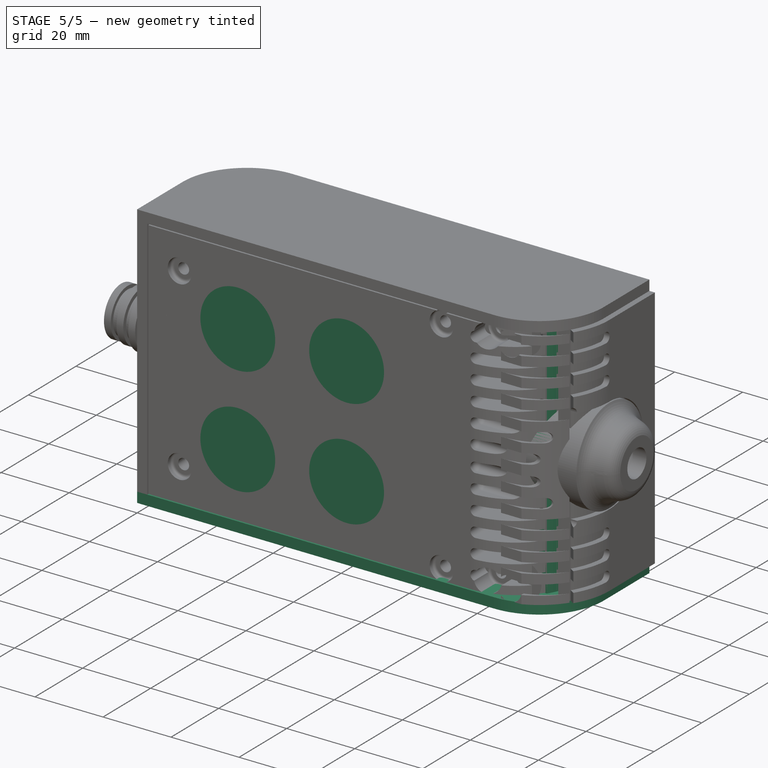
[diagram: stage 5 of 5 — iso view after this stage's code; geometry added in this stage tinted green]
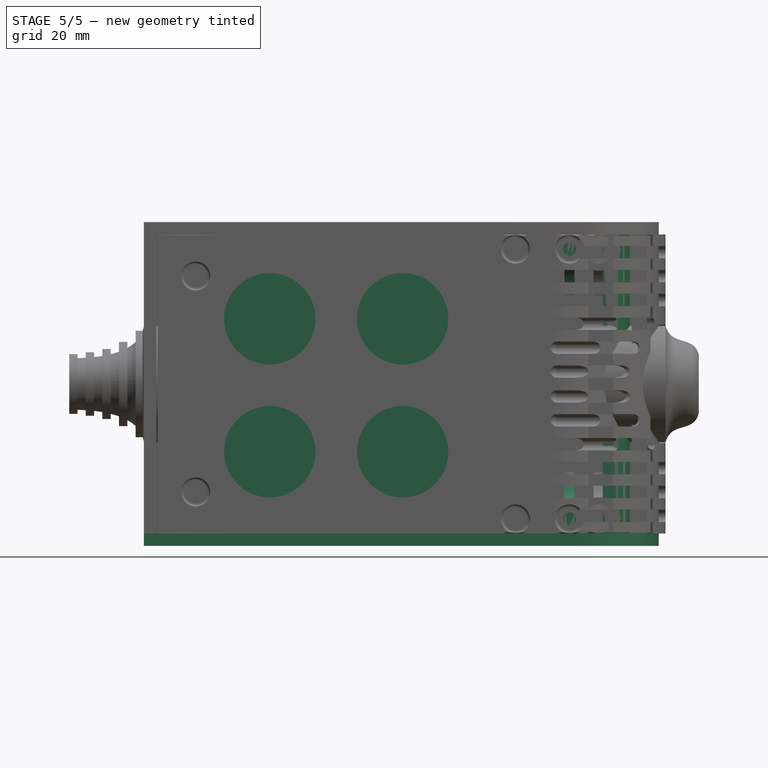
[diagram: stage 5 of 5 — front view after this stage's code; geometry added in this stage tinted green]
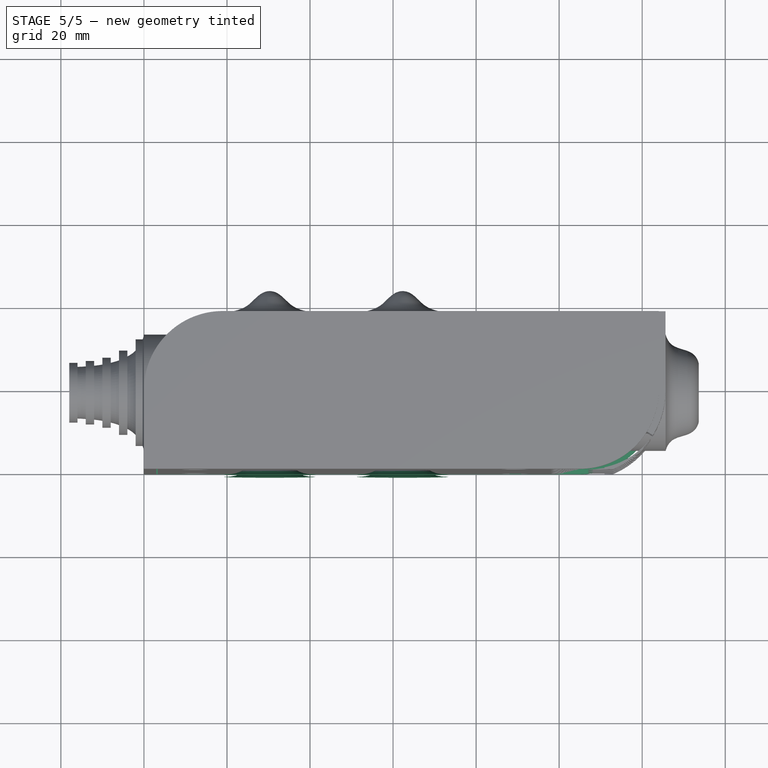
[diagram: stage 5 of 5 — top view after this stage's code; geometry added in this stage tinted green]
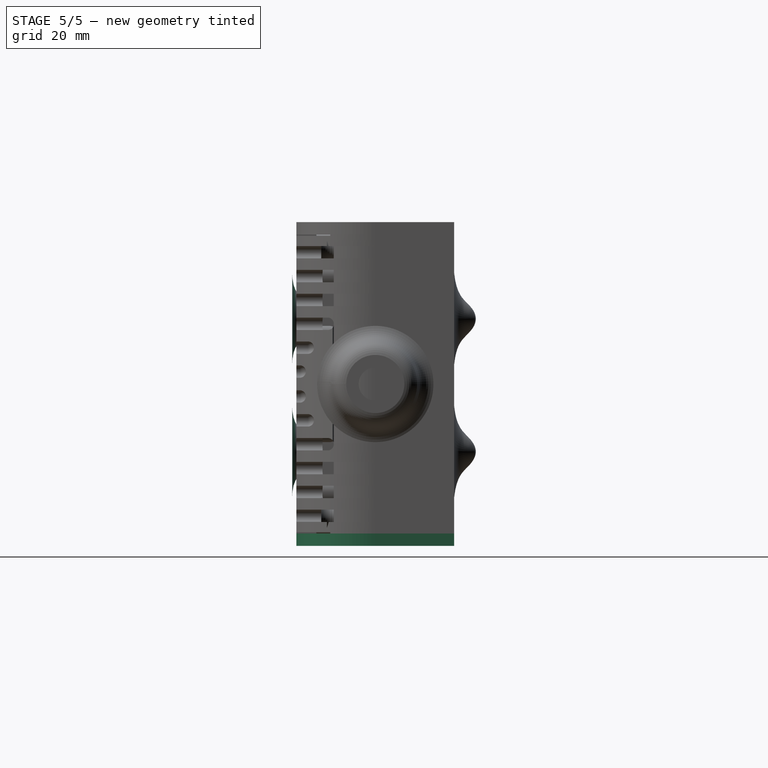
[diagram: stage 5 of 5 — right view after this stage's code; geometry added in this stage tinted green]
FEATURE [Sketcher::SketchObject] Sketch002  label="topSketch001"
  FullyConstrained = true
  sketch-geometry (6):
    g0: ArcOfCircle CenterX=19 CenterY=19 CenterZ=0 NormalX=0 NormalY=0 NormalZ=1 AngleXU=0 Radius=19 StartAngle=1.5708 EndAngle=3.14159
    g1: LineSegment StartX=5.22862e-06 StartY=19 StartZ=0 EndX=5.22862e-06 EndY=1.19904e-11 EndZ=0
    g2: LineSegment StartX=19 StartY=38 StartZ=0 EndX=124 EndY=38 EndZ=0
    g3: LineSegment StartX=5.22862e-06 StartY=1.19904e-11 StartZ=0 EndX=105 EndY=1.19904e-11 EndZ=0
    g4: ArcOfCircle CenterX=105 CenterY=19 CenterZ=0 NormalX=0 NormalY=0 NormalZ=1 AngleXU=0 Radius=19 StartAngle=4.71239 EndAngle=6.28319
    g5: LineSegment StartX=124 StartY=38 StartZ=0 EndX=124 EndY=19 EndZ=0
  constraints (16):
    c: Block(g0)
    c: Coincident(g1,g0)
    c: Vertical(g1)
    c: Horizontal(g2)
    c: Distance(g2) = 105
    c: Coincident(g2,g0)
    c: Distance(g1) = 19
    c: Coincident(g3,g1)
    c: Horizontal(g3)
    c: Distance(g3) = 105
    c: Block(g4)
    c: Coincident(g4,g3)
    c: Coincident(g5,g2)
    c: Coincident(g5,g4)
    c: Vertical(g5)
    c: Distance(g5) = 19
FEATURE [Part::Extrusion] Extrude002  label="sideA"
  Base = -> Sketch002
  Dir = (0,0,1)
  DirMode = 2
  FaceMakerClass = Part::FaceMakerBullseye
  LengthFwd = 3
  LengthRev = 0
  Placement = pos=(0,0,-3) rot=(0,0,1;0rad)
  Solid = true
  Symmetric = false
FEATURE [Part::Fillet] Fillet003  label="top001"
  Base = -> Extrude
  Edges = 1 edges r=2: [Edge1]
FEATURE [Sketcher::SketchObject] Sketch007
  FullyConstrained = true
  sketch-geometry (16):
    g0: LineSegment StartX=4 StartY=0 StartZ=0 EndX=4 EndY=2.4 EndZ=0
    g1: LineSegment StartX=4 StartY=2.4 StartZ=0 EndX=7 EndY=2.4 EndZ=0
    g2: LineSegment StartX=4 StartY=0 StartZ=0 EndX=5.7 EndY=0 EndZ=0
    g3: LineSegment StartX=5.7 StartY=0 StartZ=0 EndX=5.7 EndY=-5.6 EndZ=0
    g4-g8: Circle x5 (B-spline internal-alignment scaffolding for g9; pole/knot coordinates omitted)
    g9: BSplineCurve PolesCount=5 KnotsCount=3 Degree=3 IsPeriodic=0
    g10: GeomPoint X=7 Y=2.4 Z=0
    g11: GeomPoint X=10.4582 Y=-1.55472 Z=0
    g12: GeomPoint X=14 Y=-5.6 Z=0
    g13: LineSegment StartX=14 StartY=-5.6 StartZ=0 EndX=14 EndY=-14.1 EndZ=0
    g14: LineSegment StartX=14 StartY=-14.1 StartZ=0 EndX=6.5 EndY=-14.1 EndZ=0
    g15: LineSegment StartX=5.7 StartY=-5.6 StartZ=0 EndX=6.5 EndY=-14.1 EndZ=0
  constraints (28):
    c: Distance(g0) = 2.4
    c: Vertical(g0)
    c: Block(g0)
    c: Coincident(g1,g0)
    c: Horizontal(g1)
    c: Distance(g1) = 3
    c: Coincident(g2,g0)
    c: Horizontal(g2)
    c: Distance(g2) = 1.7
    c: Coincident(g3,g2)
    c: Vertical(g3)
    c: Distance(g3) = 5.6
    c: Coincident(g9,g1)
    c: Weight(g4) = 1
    c: Equal(g4, g5-g8) x4
    c: InternalAlignment(g4-g8 -> g9) x5
    c: InternalAlignment(g10,g9)
    c: InternalAlignment(g11,g9)
    c: InternalAlignment(g12,g9)
    c: Block(g9)
    c: Coincident(g13,g9)
    c: Vertical(g13)
    c: Distance(g13) = 8.5
    c: Coincident(g14,g13)
    c: Horizontal(g14)
    c: Distance(g14) = 7.5
    c: Coincident(g15,g3)
    c: Coincident(g15,g14)
FEATURE [Part::Feature] Face
  shape: bbox 10 x 16.5 x 2e-07 mm, 1 faces, 0 solids (baked)
FEATURE [Part::Revolution] Revolve  label="plugHousing"
  Angle = 360
  Axis = (0,1,0)
  Base = (0,0,0)
  FaceMakerClass = Part::FaceMakerBullseye
  Placement = pos=(0,0,36.15) rot=(0,0,1;0rad)
  Solid = false
  Source = -> Face
  Symmetric = false
FEATURE [Part::Feature] Face001
  shape: bbox 10 x 16.5 x 2e-07 mm, 1 faces, 0 solids (baked)
FEATURE [Part::Revolution] Revolve001  label="plugHousing001"
  Angle = 360
  Axis = (0,1,0)
  Base = (0,0,0)
  FaceMakerClass = Part::FaceMakerBullseye
  Placement = pos=(0,0,36.15) rot=(0,0,1;0rad)
  Solid = false
  Source = -> Face001
  Symmetric = false
FEATURE [Part::MultiFuse] Fusion001  label="plugHousing002"
  Placement = pos=(0,0,0) rot=(0,0,1;1.5708rad)
  Shapes = -> [Revolve001,Revolve]
FEATURE [Part::Feature] Face002
  shape: bbox 10 x 16.5 x 2e-07 mm, 1 faces, 0 solids (baked)
FEATURE [Part::Revolution] Revolve003  label="plugHousing005"
  Angle = 360
  Axis = (0,1,0)
  Base = (0,0,0)
  FaceMakerClass = Part::FaceMakerBullseye
  Placement = pos=(0,0,36.15) rot=(0,0,1;0rad)
  Solid = false
  Source = -> Face002
  Symmetric = false
FEATURE [Part::Feature] Face003
  shape: bbox 10 x 16.5 x 2e-07 mm, 1 faces, 0 solids (baked)
FEATURE [Part::Revolution] Revolve002  label="plugHousing003"
  Angle = 360
  Axis = (0,1,0)
  Base = (0,0,0)
  FaceMakerClass = Part::FaceMakerBullseye
  Placement = pos=(0,0,36.15) rot=(0,0,1;0rad)
  Solid = false
  Source = -> Face003
  Symmetric = false
FEATURE [Part::MultiFuse] Fusion002  label="plugHousing004"
  Placement = pos=(0,0,0) rot=(0,0,1;1.5708rad)
  Shapes = -> [Revolve002,Revolve003]
FEATURE [Part::MultiFuse] Fusion003  label="plugHousing006"
  Placement = pos=(0,19,0) rot=(0,0,1;3.14159rad)
  Shapes = -> [Fusion002,Fusion001]
FEATURE [Part::Feature] Face004
  shape: bbox 10 x 16.5 x 2e-07 mm, 1 faces, 0 solids (baked)
FEATURE [Part::Revolution] Revolve006  label="plugHousing010"
  Angle = 360
  Axis = (0,1,0)
  Base = (0,0,0)
  FaceMakerClass = Part::FaceMakerBullseye
  Placement = pos=(0,0,36.15) rot=(0,0,1;0rad)
  Solid = false
  Source = -> Face004
  Symmetric = false
FEATURE [Part::Feature] Face005
  shape: bbox 10 x 16.5 x 2e-07 mm, 1 faces, 0 solids (baked)
FEATURE [Part::Revolution] Revolve007  label="plugHousing011"
  Angle = 360
  Axis = (0,1,0)
  Base = (0,0,0)
  FaceMakerClass = Part::FaceMakerBullseye
  Placement = pos=(0,0,36.15) rot=(0,0,1;0rad)
  Solid = false
  Source = -> Face005
  Symmetric = false
FEATURE [Part::Feature] Face006
  shape: bbox 10 x 16.5 x 2e-07 mm, 1 faces, 0 solids (baked)
FEATURE [Part::Revolution] Revolve004  label="plugHousing007"
  Angle = 360
  Axis = (0,1,0)
  Base = (0,0,0)
  FaceMakerClass = Part::FaceMakerBullseye
  Placement = pos=(0,0,36.15) rot=(0,0,1;0rad)
  Solid = false
  Source = -> Face006
  Symmetric = false
FEATURE [Part::MultiFuse] Fusion004  label="plugHousing009"
  Placement = pos=(0,0,0) rot=(0,0,1;1.5708rad)
  Shapes = -> [Revolve004,Revolve007]
FEATURE [Part::Feature] Face007
  shape: bbox 10 x 16.5 x 2e-07 mm, 1 faces, 0 solids (baked)
FEATURE [Part::Revolution] Revolve005  label="plugHousing008"
  Angle = 360
  Axis = (0,1,0)
  Base = (0,0,0)
  FaceMakerClass = Part::FaceMakerBullseye
  Placement = pos=(0,0,36.15) rot=(0,0,1;0rad)
  Solid = false
  Source = -> Face007
  Symmetric = false
FEATURE [Part::MultiFuse] Fusion005  label="plugHousing012"
  Placement = pos=(0,0,0) rot=(0,0,1;1.5708rad)
  Shapes = -> [Revolve006,Revolve005]
FEATURE [Part::MultiFuse] Fusion006  label="plugHousing013"
  Placement = pos=(0,19,0) rot=(0,0,1;3.14159rad)
  Shapes = -> [Fusion005,Fusion004]
FEATURE [Part::MultiFuse] Fusion007  label="plugHousing014"
  Placement = pos=(122.621,0,-0.15) rot=(0,0,1;0rad)
  Shapes = -> [Fusion003,Fusion006]
FEATURE [Part::Cylinder] Cylinder004
  Angle = 360
  AttacherType = Attacher::AttachEngine3D
  Height = 20
  Placement = pos=(0,0,36.15) rot=(0,0,1;0rad)
  Radius = 4
FEATURE [Part::Cylinder] Cylinder005
  Angle = 360
  AttacherType = Attacher::AttachEngine3D
  Height = 10
  Placement = pos=(0,0,36.15) rot=(0,0,1;0rad)
  Radius = 4
FEATURE [Part::MultiFuse] Fusion010  label="removeToCreateHoleForPlugHousing001"
  Placement = pos=(70,19,36.15) rot=(0,1,0;1.5708rad)
  Shapes = -> [Cylinder004,Cylinder005]
FEATURE [Part::Cut] Cut001
  Base = -> Fillet003
  Tool = -> Fusion010
FEATURE [Part::Feature] Face008
  shape: bbox 10 x 16.5 x 2e-07 mm, 1 faces, 0 solids (baked)
FEATURE [Part::Revolution] Revolve011  label="plugHousing021"
  Angle = 360
  Axis = (0,1,0)
  Base = (0,0,0)
  FaceMakerClass = Part::FaceMakerBullseye
  Placement = pos=(0,0,36.15) rot=(0,0,1;0rad)
  Solid = false
  Source = -> Face008
  Symmetric = false
FEATURE [Part::Feature] Face009
  shape: bbox 10 x 16.5 x 2e-07 mm, 1 faces, 0 solids (baked)
FEATURE [Part::Revolution] Revolve012  label="plugHousing022"
  Angle = 360
  Axis = (0,1,0)
  Base = (0,0,0)
  FaceMakerClass = Part::FaceMakerBullseye
  Placement = pos=(0,0,36.15) rot=(0,0,1;0rad)
  Solid = false
  Source = -> Face009
  Symmetric = false
FEATURE [Part::Feature] Face010 .. Face013  x4 (patterned run collapsed; names and placements below)
  shape: bbox 10 x 16.5 x 2e-07 mm, 1 faces, 0 solids (baked)
FEATURE [Part::Revolution] Revolve015  label="plugHousing027"
  Angle = 360
  Axis = (0,1,0)
  Base = (0,0,0)
  FaceMakerClass = Part::FaceMakerBullseye
  Placement = pos=(0,0,36.15) rot=(0,0,1;0rad)
  Solid = false
  Source = -> Face013
  Symmetric = false
FEATURE [Part::Cylinder] Cylinder006
  Angle = 360
  AttacherType = Attacher::AttachEngine3D
  Height = 20
  Placement = pos=(0,0,36.15) rot=(0,0,1;0rad)
  Radius = 14.3
FEATURE [Part::Cylinder] Cylinder007
  Angle = 360
  AttacherType = Attacher::AttachEngine3D
  Height = 10
  Placement = pos=(0,0,36.15) rot=(0,0,1;0rad)
  Radius = 4
FEATURE [Part::MultiFuse] Fusion026  label="removeToCreteHoleForPlugHousing"
  Placement = pos=(70,19,36) rot=(0,1,0;1.5708rad)
  Shapes = -> [Cylinder006,Cylinder007]
FEATURE [Part::Cut] Cut003  label="top002"
  Base = -> Cut001
  Tool = -> Fusion007
FEATURE [Part::Revolution] Revolve008  label="plugHousing015"
  Angle = 360
  Axis = (0,1,0)
  Base = (0,0,0)
  FaceMakerClass = Part::FaceMakerBullseye
  Placement = pos=(0,0,36.15) rot=(0,0,1;0rad)
  Solid = false
  Source = -> Face010
  Symmetric = false
FEATURE [Part::MultiFuse] Fusion013  label="plugHousing020"
  Placement = pos=(0,0,0) rot=(0,0,1;1.5708rad)
  Shapes = -> [Revolve008,Revolve012]
FEATURE [Part::Cut] Cut004  label="top003"
  Base = -> Cut003
  Placement = pos=(1,0,0) rot=(0,0,1;0rad)
  Tool = -> Fusion026
FEATURE [Part::Box] Box002  label="Cube002"
  AttacherType = Attacher::AttachEngine3D
  Height = 28.8
  Length = 3
  Placement = pos=(107.3,28,21.6) rot=(0,0,1;0rad)
  Width = 7
FEATURE [Part::Box] Box003  label="Cube003"
  AttacherType = Attacher::AttachEngine3D
  Height = 3
  Length = 6.4
  Placement = pos=(107.3,28,18.6) rot=(0,0,1;0rad)
  Width = 7
FEATURE [Part::Box] Box004  label="Cube004"
  AttacherType = Attacher::AttachEngine3D
  Height = 3
  Length = 6.4
  Placement = pos=(107.3,28,50.4) rot=(0,0,1;0rad)
  Width = 7
FEATURE [Part::MultiFuse] Fusion029  label="plugHousingBracketHolder"
  Shapes = -> [Box004,Box002,Box003]
FEATURE [Part::Cylinder] Cylinder010
  Angle = 360
  AttacherType = Attacher::AttachEngine3D
  Height = 20
  Placement = pos=(0,0,36.15) rot=(0,0,1;0rad)
  Radius = 14.3
FEATURE [Part::Cylinder] Cylinder011
  Angle = 360
  AttacherType = Attacher::AttachEngine3D
  Height = 10
  Placement = pos=(0,0,36.15) rot=(0,0,1;0rad)
  Radius = 4
FEATURE [Part::MultiFuse] Fusion030  label="removeToCreteHoleForPlugHousing002"
  Placement = pos=(70,19,36) rot=(0,1,0;1.5708rad)
  Shapes = -> [Cylinder010,Cylinder011]
FEATURE [Part::Cut] Cut006  label="plugHousingBracketHolder001"
  Base = -> Fusion029
  Tool = -> Fusion030
FEATURE [Part::MultiFuse] Fusion034  label="removeToCreteHoleForPlugHousing004"
  Placement = pos=(-42,19,36) rot=(0,1,0;1.5708rad)
  Shapes = -> [Cylinder014,Cylinder015]
FEATURE [Part::Cut] Cut008  label="top004"
  Base = -> Cut004
  Placement = pos=(-1,0,0) rot=(0,0,1;0rad)
  Tool = -> Fusion034
FEATURE [Part::MultiFuse] Fusion040  label="top005"
  Shapes = -> [Cut008,Fillet021]
FEATURE [Part::Feature] Face026
  shape: bbox 11 x 6 x 2e-07 mm, 1 faces, 0 solids (baked)
FEATURE [Part::Revolution] Revolve026
  Angle = 360
  Axis = (0,1,0)
  Base = (0,0,0)
  FaceMakerClass = Part::FaceMakerBullseye
  Placement = pos=(30.3,-1,19.7) rot=(0,0,1;0rad)
  Solid = false
  Source = -> Face026
  Symmetric = false
FEATURE [Sketcher::SketchObject] Sketch013  label="topSketch006"
  FullyConstrained = true
  sketch-geometry (13):
    g0: LineSegment StartX=117 StartY=19 StartZ=0 EndX=117 EndY=38 EndZ=0
    g1: ArcOfCircle CenterX=98 CenterY=19 CenterZ=0 NormalX=0 NormalY=0 NormalZ=1 AngleXU=0 Radius=19 StartAngle=5.7297 EndAngle=6.28319
    g2: LineSegment StartX=0 StartY=3 StartZ=0 EndX=0 EndY=19 EndZ=0
    g3: LineSegment StartX=19 StartY=38 StartZ=0 EndX=117 EndY=38 EndZ=0
    g4: ArcOfCircle CenterX=19 CenterY=19 CenterZ=0 NormalX=0 NormalY=0 NormalZ=1 AngleXU=0 Radius=19 StartAngle=1.5708 EndAngle=3.14159
    g5: ArcOfCircle CenterX=19 CenterY=19 CenterZ=0 NormalX=0 NormalY=0 NormalZ=1 AngleXU=0 Radius=16 StartAngle=1.5708 EndAngle=3.14159
    g6: ArcOfCircle CenterX=98 CenterY=19 CenterZ=0 NormalX=0 NormalY=0 NormalZ=1 AngleXU=0 Radius=16 StartAngle=5.60905 EndAngle=6.28319
    g7: LineSegment StartX=114 StartY=19 StartZ=0 EndX=114 EndY=35 EndZ=0
    g8: LineSegment StartX=110.5 StartY=9.01251 StartZ=0 EndX=114.163 EndY=9.01251 EndZ=0
    g9: LineSegment StartX=114 StartY=35 StartZ=0 EndX=19 EndY=35 EndZ=0
    g10: LineSegment StartX=0 StartY=3 StartZ=0 EndX=0 EndY=0 EndZ=0
    g11: LineSegment StartX=3 StartY=0 StartZ=0 EndX=0 EndY=0 EndZ=0
    g12: LineSegment StartX=3 StartY=19 StartZ=0 EndX=3 EndY=0 EndZ=0
  constraints (33):
    c: Vertical(g0)
    c: Distance(g0) = 19
    c: Block(g0)
    c: Coincident(g1,g0)
    c: Block(g1)
    c: Vertical(g2)
    c: Block(g2)
    c: Coincident(g3,g0)
    c: Horizontal(g3)
    c: Distance(g3) = 98
    c: Coincident(g4,g3)
    c: Coincident(g4,g2)
    c: Block(g4)
    c: Coincident(g5,g4)
    c: Coincident(g6,g1)
    c: Block(g6)
    c: Block(g5)
    c: Coincident(g7,g6)
    c: Vertical(g7)
    c: Coincident(g8,g6)
    c: Coincident(g8,g1)
    c: Coincident(g9,g7)
    c: Coincident(g9,g5)
    c: Horizontal(g9)
    c: Tangent(g9,g5)
    c: Coincident(g10,g2)
    c: Distance(g10) = 3
    c: Vertical(g10)
    c: Coincident(g11,g10)
    c: Horizontal(g11)
    c: Coincident(g12,g5)
    c: Coincident(g12,g11)
    c: Vertical(g12)
FEATURE [Part::Extrusion] Extrude011  label="top006"
  Base = -> Sketch013
  Dir = (0,0,1)
  DirMode = 2
  FaceMakerClass = Part::FaceMakerBullseye
  LengthFwd = 72
  LengthRev = 0
  Solid = true
  Symmetric = false
FEATURE [Sketcher::SketchObject] Sketch014
  FullyConstrained = true
  MapMode = 3
  Placement = pos=(0,0,0) rot=(1,0,0;1.5708rad)
  Support = -> [Extrude011]
  sketch-geometry (8):
    g0: Circle CenterX=80.351 CenterY=-67.6202 CenterZ=0 NormalX=0 NormalY=0 NormalZ=1 AngleXU=0 Radius=2
    g1: Circle CenterX=80.351 CenterY=-67.6202 CenterZ=0 NormalX=0 NormalY=0 NormalZ=1 AngleXU=0 Radius=3
    g2: Circle CenterX=80.351 CenterY=-4.92017 CenterZ=0 NormalX=0 NormalY=0 NormalZ=1 AngleXU=0 Radius=2
    g3: Circle CenterX=80.351 CenterY=-4.92017 CenterZ=0 NormalX=0 NormalY=0 NormalZ=1 AngleXU=0 Radius=3
    g4: Circle CenterX=23.851 CenterY=-4.92017 CenterZ=0 NormalX=0 NormalY=0 NormalZ=1 AngleXU=0 Radius=2
    g5: Circle CenterX=23.851 CenterY=-4.92017 CenterZ=0 NormalX=0 NormalY=0 NormalZ=1 AngleXU=0 Radius=3
    g6: Circle CenterX=23.851 CenterY=-67.6202 CenterZ=0 NormalX=0 NormalY=0 NormalZ=1 AngleXU=0 Radius=2
    g7: Circle CenterX=23.851 CenterY=-67.6202 CenterZ=0 NormalX=0 NormalY=0 NormalZ=1 AngleXU=0 Radius=3
  constraints (8):
    c: Block(g3)
    c: Block(g2)
    c: Block(g1)
    c: Block(g0)
    c: Block(g6)
    c: Block(g7)
    c: Block(g4)
    c: Block(g5)
FEATURE [Part::Feature] Face027
  shape: bbox 11 x 6 x 2e-07 mm, 1 faces, 0 solids (baked)
FEATURE [Part::Revolution] Revolve027
  Angle = 360
  Axis = (0,1,0)
  Base = (0,0,0)
  FaceMakerClass = Part::FaceMakerBullseye
  Placement = pos=(30.3,-1,51.7) rot=(0,0,1;0rad)
  Solid = false
  Source = -> Face027
  Symmetric = false
FEATURE [Part::Feature] Face028
  shape: bbox 11 x 6 x 2e-07 mm, 1 faces, 0 solids (baked)
FEATURE [Part::Revolution] Revolve028
  Angle = 360
  Axis = (0,1,0)
  Base = (0,0,0)
  FaceMakerClass = Part::FaceMakerBullseye
  Placement = pos=(62.3,-1,19.7) rot=(0,0,1;0rad)
  Solid = false
  Source = -> Face028
  Symmetric = false
FEATURE [Part::Feature] Face029
  shape: bbox 11 x 6 x 2e-07 mm, 1 faces, 0 solids (baked)
FEATURE [Part::Revolution] Revolve029
  Angle = 360
  Axis = (0,1,0)
  Base = (0,0,0)
  FaceMakerClass = Part::FaceMakerBullseye
  Placement = pos=(62.3,-1,51.7) rot=(0,0,1;0rad)
  Solid = false
  Source = -> Face029
  Symmetric = false
FEATURE [Part::Feature] Wire
  shape: bbox 11 x 5.2 x 2e-07 mm, 0 faces, 0 solids (baked)
FEATURE [Part::Revolution] Revolve030
  Angle = 360
  Axis = (0,1,0)
  Base = (0,0,0)
  FaceMakerClass = Part::FaceMakerBullseye
  Placement = pos=(30.3,38,19.7) rot=(0,0,1;0rad)
  Solid = true
  Source = -> Wire
  Symmetric = false
FEATURE [Part::Feature] Wire001
  shape: bbox 11 x 5.2 x 2e-07 mm, 0 faces, 0 solids (baked)
FEATURE [Part::Revolution] Revolve031
  Angle = 360
  Axis = (0,1,0)
  Base = (0,0,0)
  FaceMakerClass = Part::FaceMakerBullseye
  Placement = pos=(30.3,38,51.7) rot=(0,0,1;0rad)
  Solid = true
  Source = -> Wire001
  Symmetric = false
FEATURE [Part::Feature] Wire002
  shape: bbox 11 x 5.2 x 2e-07 mm, 0 faces, 0 solids (baked)
FEATURE [Part::Revolution] Revolve032
  Angle = 360
  Axis = (0,1,0)
  Base = (0,0,0)
  FaceMakerClass = Part::FaceMakerBullseye
  Placement = pos=(62.3,38,51.7) rot=(0,0,1;0rad)
  Solid = true
  Source = -> Wire002
  Symmetric = false
FEATURE [Part::Feature] Wire003
  shape: bbox 11 x 5.2 x 2e-07 mm, 0 faces, 0 solids (baked)
FEATURE [Part::Revolution] Revolve033
  Angle = 360
  Axis = (0,1,0)
  Base = (0,0,0)
  FaceMakerClass = Part::FaceMakerBullseye
  Placement = pos=(62.3,38,19.7) rot=(0,0,1;0rad)
  Solid = true
  Source = -> Wire003
  Symmetric = false
FEATURE [Part::MultiFuse] Fusion045  label="altRandScrewHousing"
  Shapes = -> [Revolve029,Revolve027,Revolve028,Revolve026]
FEATURE [Part::MultiFuse] Fusion046  label="fanScrewHousing"
  Shapes = -> [Revolve033,Revolve032,Revolve031,Revolve030]
FEATURE [Part::Feature] Face036
  shape: bbox 3.2 x 1.5 x 2e-07 mm, 1 faces, 0 solids (baked)
FEATURE [Part::Feature] Face039
  shape: bbox 4.8 x 30.2 x 2e-07 mm, 1 faces, 0 solids (baked)
FEATURE [Part::Revolution] Revolve043  label="frontCaseScrewPost002"
  Angle = 360
  Axis = (0,1,0)
  Base = (0,0,0)
  FaceMakerClass = Part::FaceMakerBullseye
  Placement = pos=(89.5,4.5,3.5) rot=(0,0,1;0rad)
  Solid = false
  Source = -> Face039
  Symmetric = false
FEATURE [Part::Feature] Face042
  shape: bbox 4.8 x 30.2 x 2e-07 mm, 1 faces, 0 solids (baked)
FEATURE [Part::Revolution] Revolve046  label="frontCaseScrewPost003"
  Angle = 360
  Axis = (0,1,0)
  Base = (0,0,0)
  FaceMakerClass = Part::FaceMakerBullseye
  Placement = pos=(89.5,4.5,68.5) rot=(0,0,1;0rad)
  Solid = false
  Source = -> Face042
  Symmetric = false
FEATURE [App::MeasureDistance] Distance002  label="Distance: 1.67 mm"
  Distance = 1.66921
  P1 = (99.2361,4.7524,71.7)
  P2 = (99.2347,6.42161,71.7)
FEATURE [Sketcher::SketchObject] Sketch018
  FullyConstrained = true
  sketch-geometry (7):
    g0: LineSegment StartX=0 StartY=0 StartZ=0 EndX=0 EndY=6 EndZ=0
    g1: Circle CenterX=0 CenterY=0 CenterZ=0 NormalX=0 NormalY=0 NormalZ=1 AngleXU=0 Radius=1
    g2: Circle CenterX=8 CenterY=6 CenterZ=0 NormalX=0 NormalY=0 NormalZ=1 AngleXU=0 Radius=1
    g3: BSplineCurve PolesCount=3 KnotsCount=2 Degree=2 IsPeriodic=0
    g4: GeomPoint X=0 Y=0 Z=0
    g5: GeomPoint X=8 Y=6 Z=0
    g6: LineSegment StartX=0 StartY=6 StartZ=0 EndX=8 EndY=6 EndZ=0
  constraints (14):
    c: Coincident(g0,g-1)
    c: Distance(g0) = 6
    c: Vertical(g0)
    c: Coincident(g3,g0)
    c: Weight(g1) = 1
    c: Equal(g1,g2)
    c: InternalAlignment(g1,g3)
    c: InternalAlignment(g2,g3)
    c: InternalAlignment(g4,g3)
    c: InternalAlignment(g5,g3)
    c: Block(g3)
    c: Coincident(g6,g0)
    c: Coincident(g6,g3)
    c: Horizontal(g6)
FEATURE [Part::Extrusion] Extrude012  label="caseScrewPillarBracket"
  Base = -> Sketch018
  Dir = (0,0,1)
  DirMode = 2
  FaceMakerClass = Part::FaceMakerBullseye
  LengthFwd = 2.4
  LengthRev = 0
  Placement = pos=(15.76,29,8.8) rot=(0,1,0;0rad)
  Solid = true
  Symmetric = false
FEATURE [Sketcher::SketchObject] Sketch019
  FullyConstrained = true
  sketch-geometry (7):
    g0: LineSegment StartX=0 StartY=0 StartZ=0 EndX=0 EndY=6 EndZ=0
    g1: Circle CenterX=0 CenterY=0 CenterZ=0 NormalX=0 NormalY=0 NormalZ=1 AngleXU=0 Radius=1
    g2: Circle CenterX=8 CenterY=6 CenterZ=0 NormalX=0 NormalY=0 NormalZ=1 AngleXU=0 Radius=1
    g3: BSplineCurve PolesCount=3 KnotsCount=2 Degree=2 IsPeriodic=0
    g4: GeomPoint X=0 Y=0 Z=0
    g5: GeomPoint X=8 Y=6 Z=0
    g6: LineSegment StartX=0 StartY=6 StartZ=0 EndX=8 EndY=6 EndZ=0
  constraints (14):
    c: Coincident(g0,g-1)
    c: Distance(g0) = 6
    c: Vertical(g0)
    c: Coincident(g3,g0)
    c: Weight(g1) = 1
    c: Equal(g1,g2)
    c: InternalAlignment(g1,g3)
    c: InternalAlignment(g2,g3)
    c: InternalAlignment(g4,g3)
    c: InternalAlignment(g5,g3)
    c: Block(g3)
    c: Coincident(g6,g0)
    c: Coincident(g6,g3)
    c: Horizontal(g6)
FEATURE [Part::Extrusion] Extrude013  label="caseScrewPillarBracket001"
  Base = -> Sketch019
  Dir = (0,0,1)
  DirMode = 2
  FaceMakerClass = Part::FaceMakerBullseye
  LengthFwd = 2.4
  LengthRev = 0
  Placement = pos=(15.76,29,60.8) rot=(0,0,1;0rad)
  Solid = true
  Symmetric = false
FEATURE [Sketcher::SketchObject] Sketch020
  FullyConstrained = true
  sketch-geometry (7):
    g0: LineSegment StartX=0 StartY=0 StartZ=0 EndX=0 EndY=6 EndZ=0
    g1: Circle CenterX=0 CenterY=0 CenterZ=0 NormalX=0 NormalY=0 NormalZ=1 AngleXU=0 Radius=1
    g2: Circle CenterX=8 CenterY=6 CenterZ=0 NormalX=0 NormalY=0 NormalZ=1 AngleXU=0 Radius=1
    g3: BSplineCurve PolesCount=3 KnotsCount=2 Degree=2 IsPeriodic=0
    g4: GeomPoint X=0 Y=0 Z=0
    g5: GeomPoint X=8 Y=6 Z=0
    g6: LineSegment StartX=0 StartY=6 StartZ=0 EndX=8 EndY=6 EndZ=0
  constraints (14):
    c: Coincident(g0,g-1)
    c: Distance(g0) = 6
    c: Vertical(g0)
    c: Coincident(g3,g0)
    c: Weight(g1) = 1
    c: Equal(g1,g2)
    c: InternalAlignment(g1,g3)
    c: InternalAlignment(g2,g3)
    c: InternalAlignment(g4,g3)
    c: InternalAlignment(g5,g3)
    c: Block(g3)
    c: Coincident(g6,g0)
    c: Coincident(g6,g3)
    c: Horizontal(g6)
FEATURE [Part::Extrusion] Extrude014  label="caseScrewPillarBracket002"
  Base = -> Sketch020
  Dir = (0,0,1)
  DirMode = 2
  FaceMakerClass = Part::FaceMakerBullseye
  LengthFwd = 2.4
  LengthRev = 0
  Placement = pos=(13.7,29,13.26) rot=(0,-1,0;1.5708rad)
  Solid = true
  Symmetric = false
FEATURE [Sketcher::SketchObject] Sketch021
  FullyConstrained = true
  sketch-geometry (7):
    g0: LineSegment StartX=0 StartY=0 StartZ=0 EndX=0 EndY=6 EndZ=0
    g1: Circle CenterX=0 CenterY=0 CenterZ=0 NormalX=0 NormalY=0 NormalZ=1 AngleXU=0 Radius=1
    g2: Circle CenterX=8 CenterY=6 CenterZ=0 NormalX=0 NormalY=0 NormalZ=1 AngleXU=0 Radius=1
    g3: BSplineCurve PolesCount=3 KnotsCount=2 Degree=2 IsPeriodic=0
    g4: GeomPoint X=0 Y=0 Z=0
    g5: GeomPoint X=8 Y=6 Z=0
    g6: LineSegment StartX=0 StartY=6 StartZ=0 EndX=8 EndY=6 EndZ=0
  constraints (14):
    c: Coincident(g0,g-1)
    c: Distance(g0) = 6
    c: Vertical(g0)
    c: Coincident(g3,g0)
    c: Weight(g1) = 1
    c: Equal(g1,g2)
    c: InternalAlignment(g1,g3)
    c: InternalAlignment(g2,g3)
    c: InternalAlignment(g4,g3)
    c: InternalAlignment(g5,g3)
    c: Block(g3)
    c: Coincident(g6,g0)
    c: Coincident(g6,g3)
    c: Horizontal(g6)
FEATURE [Part::Extrusion] Extrude015  label="caseScrewPillarBracket003"
  Base = -> Sketch021
  Dir = (0,0,1)
  DirMode = 2
  FaceMakerClass = Part::FaceMakerBullseye
  LengthFwd = 2.4
  LengthRev = 0
  Placement = pos=(11.3,29,58.74) rot=(0,1,0;1.5708rad)
  Solid = true
  Symmetric = false
FEATURE [Sketcher::SketchObject] Sketch022
  FullyConstrained = true
  sketch-geometry (7):
    g0: LineSegment StartX=0 StartY=0 StartZ=0 EndX=0 EndY=6 EndZ=0
    g1: Circle CenterX=0 CenterY=0 CenterZ=0 NormalX=0 NormalY=0 NormalZ=1 AngleXU=0 Radius=1
    g2: Circle CenterX=8 CenterY=6 CenterZ=0 NormalX=0 NormalY=0 NormalZ=1 AngleXU=0 Radius=1
    g3: BSplineCurve PolesCount=3 KnotsCount=2 Degree=2 IsPeriodic=0
    g4: GeomPoint X=0 Y=0 Z=0
    g5: GeomPoint X=8 Y=6 Z=0
    g6: LineSegment StartX=0 StartY=6 StartZ=0 EndX=8 EndY=6 EndZ=0
  constraints (14):
    c: Coincident(g0,g-1)
    c: Distance(g0) = 6
    c: Vertical(g0)
    c: Coincident(g3,g0)
    c: Weight(g1) = 1
    c: Equal(g1,g2)
    c: InternalAlignment(g1,g3)
    c: InternalAlignment(g2,g3)
    c: InternalAlignment(g4,g3)
    c: InternalAlignment(g5,g3)
    c: Block(g3)
    c: Coincident(g6,g0)
    c: Coincident(g6,g3)
    c: Horizontal(g6)
FEATURE [Part::Extrusion] Extrude016  label="caseScrewPillarBracket004"
  Base = -> Sketch022
  Dir = (0,0,1)
  DirMode = 2
  FaceMakerClass = Part::FaceMakerBullseye
  LengthFwd = 2.4
  LengthRev = 0
  Placement = pos=(88.3,29,65.23) rot=(0,1,0;1.5708rad)
  Solid = true
  Symmetric = false
FEATURE [Sketcher::SketchObject] Sketch023
  FullyConstrained = true
  sketch-geometry (7):
    g0: LineSegment StartX=0 StartY=0 StartZ=0 EndX=0 EndY=6 EndZ=0
    g1: Circle CenterX=0 CenterY=0 CenterZ=0 NormalX=0 NormalY=0 NormalZ=1 AngleXU=0 Radius=1
    g2: Circle CenterX=8 CenterY=6 CenterZ=0 NormalX=0 NormalY=0 NormalZ=1 AngleXU=0 Radius=1
    g3: BSplineCurve PolesCount=3 KnotsCount=2 Degree=2 IsPeriodic=0
    g4: GeomPoint X=0 Y=0 Z=0
    g5: GeomPoint X=8 Y=6 Z=0
    g6: LineSegment StartX=0 StartY=6 StartZ=0 EndX=8 EndY=6 EndZ=0
  constraints (14):
    c: Coincident(g0,g-1)
    c: Distance(g0) = 6
    c: Vertical(g0)
    c: Coincident(g3,g0)
    c: Weight(g1) = 1
    c: Equal(g1,g2)
    c: InternalAlignment(g1,g3)
    c: InternalAlignment(g2,g3)
    c: InternalAlignment(g4,g3)
    c: InternalAlignment(g5,g3)
    c: Block(g3)
    c: Coincident(g6,g0)
    c: Coincident(g6,g3)
    c: Horizontal(g6)
FEATURE [Part::Extrusion] Extrude017  label="caseScrewPillarBracket005"
  Base = -> Sketch023
  Dir = (0,0,1)
  DirMode = 2
  FaceMakerClass = Part::FaceMakerBullseye
  LengthFwd = 2.4
  LengthRev = 0
  Placement = pos=(90.7,29,6.77) rot=(0,-1,0;1.5708rad)
  Solid = true
  Symmetric = false
FEATURE [Sketcher::SketchObject] Sketch024
  FullyConstrained = true
  sketch-geometry (7):
    g0: LineSegment StartX=0 StartY=0 StartZ=0 EndX=0 EndY=6 EndZ=0
    g1: Circle CenterX=0 CenterY=0 CenterZ=0 NormalX=0 NormalY=0 NormalZ=1 AngleXU=0 Radius=1
    g2: Circle CenterX=8 CenterY=6 CenterZ=0 NormalX=0 NormalY=0 NormalZ=1 AngleXU=0 Radius=1
    g3: BSplineCurve PolesCount=3 KnotsCount=2 Degree=2 IsPeriodic=0
    g4: GeomPoint X=0 Y=0 Z=0
    g5: GeomPoint X=8 Y=6 Z=0
    g6: LineSegment StartX=0 StartY=6 StartZ=0 EndX=8 EndY=6 EndZ=0
  constraints (14):
    c: Coincident(g0,g-1)
    c: Distance(g0) = 6
    c: Vertical(g0)
    c: Coincident(g3,g0)
    c: Weight(g1) = 1
    c: Equal(g1,g2)
    c: InternalAlignment(g1,g3)
    c: InternalAlignment(g2,g3)
    c: InternalAlignment(g4,g3)
    c: InternalAlignment(g5,g3)
    c: Block(g3)
    c: Coincident(g6,g0)
    c: Coincident(g6,g3)
    c: Horizontal(g6)
FEATURE [Part::Extrusion] Extrude018  label="caseScrewPillarBracket006"
  Base = -> Sketch024
  Dir = (0,0,1)
  DirMode = 2
  FaceMakerClass = Part::FaceMakerBullseye
  LengthFwd = 2.4
  LengthRev = 0
  Placement = pos=(103.7,29,6.77) rot=(0,-1,0;1.5708rad)
  Solid = true
  Symmetric = false
FEATURE [Sketcher::SketchObject] Sketch025
  FullyConstrained = true
  sketch-geometry (7):
    g0: LineSegment StartX=0 StartY=0 StartZ=0 EndX=0 EndY=6 EndZ=0
    g1: Circle CenterX=0 CenterY=0 CenterZ=0 NormalX=0 NormalY=0 NormalZ=1 AngleXU=0 Radius=1
    g2: Circle CenterX=8 CenterY=6 CenterZ=0 NormalX=0 NormalY=0 NormalZ=1 AngleXU=0 Radius=1
    g3: BSplineCurve PolesCount=3 KnotsCount=2 Degree=2 IsPeriodic=0
    g4: GeomPoint X=0 Y=0 Z=0
    g5: GeomPoint X=8 Y=6 Z=0
    g6: LineSegment StartX=0 StartY=6 StartZ=0 EndX=8 EndY=6 EndZ=0
  constraints (14):
    c: Coincident(g0,g-1)
    c: Distance(g0) = 6
    c: Vertical(g0)
    c: Coincident(g3,g0)
    c: Weight(g1) = 1
    c: Equal(g1,g2)
    c: InternalAlignment(g1,g3)
    c: InternalAlignment(g2,g3)
    c: InternalAlignment(g4,g3)
    c: InternalAlignment(g5,g3)
    c: Block(g3)
    c: Coincident(g6,g0)
    c: Coincident(g6,g3)
    c: Horizontal(g6)
FEATURE [Part::Extrusion] Extrude019  label="caseScrewPillarBracket007"
  Base = -> Sketch025
  Dir = (0,0,1)
  DirMode = 2
  FaceMakerClass = Part::FaceMakerBullseye
  LengthFwd = 2.4
  LengthRev = 0
  Placement = pos=(101.3,29,65.23) rot=(0,1,0;1.5708rad)
  Solid = true
  Symmetric = false
FEATURE [Part::Box] Box011  label="frontCaseScrewPillarBracket"
  AttacherType = Attacher::AttachEngine3D
  Height = 2.4
  Length = 16
  Placement = pos=(87,28,2.3) rot=(0,0,1;0rad)
  Width = 7
FEATURE [Part::Box] Box012  label="frontCaseScrewPillarBracket001"
  AttacherType = Attacher::AttachEngine3D
  Height = 2.4
  Length = 16
  Placement = pos=(87,28,67.3) rot=(0,0,1;0rad)
  Width = 7
FEATURE [Sketcher::SketchObject] Sketch026
  FullyConstrained = true
  sketch-geometry (17):
    g0: Circle CenterX=-3.5 CenterY=23.5 CenterZ=0 NormalX=0 NormalY=0 NormalZ=1 AngleXU=0 Radius=1
    g1: Circle CenterX=-1 CenterY=15.25 CenterZ=0 NormalX=0 NormalY=0 NormalZ=1 AngleXU=0 Radius=1
    g2: Circle CenterX=-3.5 CenterY=7 CenterZ=0 NormalX=0 NormalY=0 NormalZ=1 AngleXU=0 Radius=1
    g3: BSplineCurve PolesCount=3 KnotsCount=2 Degree=2 IsPeriodic=0
    g4: GeomPoint X=-3.5 Y=23.5 Z=0
    g5: GeomPoint X=-3.5 Y=7 Z=0
    g6: Circle CenterX=-4.8 CenterY=30.5 CenterZ=0 NormalX=0 NormalY=0 NormalZ=1 AngleXU=0 Radius=1
    g7: Circle CenterX=-3.5 CenterY=30.5 CenterZ=0 NormalX=0 NormalY=0 NormalZ=1 AngleXU=0 Radius=1
    g8: Circle CenterX=-3.5 CenterY=29.2 CenterZ=0 NormalX=0 NormalY=0 NormalZ=1 AngleXU=0 Radius=1
    g9: BSplineCurve PolesCount=3 KnotsCount=2 Degree=2 IsPeriodic=0
    g10: GeomPoint X=-4.8 Y=30.5 Z=0
    g11: GeomPoint X=-3.5 Y=29.2 Z=0
    g12: LineSegment StartX=-3.5 StartY=29.2 StartZ=0 EndX=-3.5 EndY=23.5 EndZ=0
    g13: LineSegment StartX=-4.8 StartY=30.5 StartZ=0 EndX=0 EndY=30.5 EndZ=0
    g14: LineSegment StartX=-3.5 StartY=5 StartZ=0 EndX=-3.5 EndY=7 EndZ=0
    g15: LineSegment StartX=0 StartY=5 StartZ=0 EndX=0 EndY=30.5 EndZ=0
    g16: LineSegment StartX=-3.5 StartY=5 StartZ=0 EndX=0 EndY=5 EndZ=0
  constraints (33):
    c: Weight(g0) = 1
    c: Equal(g0,g1)
    c: Equal(g0,g2)
    c: InternalAlignment(g0,g3)
    c: InternalAlignment(g1,g3)
    c: InternalAlignment(g2,g3)
    c: InternalAlignment(g4,g3)
    c: InternalAlignment(g5,g3)
    c: Block(g3)
    c: Weight(g6) = 1
    c: Equal(g6,g7)
    c: Equal(g6,g8)
    c: InternalAlignment(g6,g9)
    c: InternalAlignment(g7,g9)
    c: InternalAlignment(g8,g9)
    c: InternalAlignment(g10,g9)
    c: InternalAlignment(g11,g9)
    c: Block(g9)
    c: Coincident(g12,g9)
    c: Coincident(g12,g3)
    c: Vertical(g12)
    c: Coincident(g13,g9)
    c: Horizontal(g13)
    c: Distance(g13) = 4.8
    c: Coincident(g14,g3)
    c: Vertical(g14)
    c: Coincident(g15,g13)
    c: Vertical(g15)
    c: Tangent(g15,g1)
    c: Distance(g14) = 2
    c: Coincident(g16,g14)
    c: Horizontal(g16)
    c: Coincident(g15,g16)
FEATURE [Part::Feature] Face050
  shape: bbox 4.8 x 25.5 x 2e-07 mm, 1 faces, 0 solids (baked)
FEATURE [Part::Revolution] Revolve054  label="moreFrontCaseScrewPost001"
  Angle = 360
  Axis = (0,1,0)
  Base = (0,0,0)
  FaceMakerClass = Part::FaceMakerBullseye
  Placement = pos=(102.5,4.5,3.5) rot=(0,0,1;0rad)
  Solid = false
  Source = -> Face050
  Symmetric = false
FEATURE [Part::Feature] Face051
  shape: bbox 4.8 x 25.5 x 2e-07 mm, 1 faces, 0 solids (baked)
FEATURE [Part::Revolution] Revolve055  label="moreFrontCaseScrewPost002"
  Angle = 360
  Axis = (0,1,0)
  Base = (0,0,0)
  FaceMakerClass = Part::FaceMakerBullseye
  Placement = pos=(102.5,4.5,68.5) rot=(0,0,1;0rad)
  Solid = false
  Source = -> Face051
  Symmetric = false
FEATURE [Part::Feature] Face055
  shape: bbox 3.5 x 30.2 x 2e-07 mm, 1 faces, 0 solids (baked)
FEATURE [Part::Revolution] Revolve059  label="backCaseScrewPost"
  Angle = 360
  Axis = (0,1,0)
  Base = (0,0,0)
  FaceMakerClass = Part::FaceMakerBullseye
  Placement = pos=(12.5,4.5,10) rot=(0,0,1;0rad)
  Solid = false
  Source = -> Face055
  Symmetric = false
FEATURE [Part::Feature] Face056
  shape: bbox 3.5 x 30.2 x 2e-07 mm, 1 faces, 0 solids (baked)
FEATURE [Part::Revolution] Revolve060  label="backCaseScrewPost001"
  Angle = 360
  Axis = (0,1,0)
  Base = (0,0,0)
  FaceMakerClass = Part::FaceMakerBullseye
  Placement = pos=(12.5,4.5,62) rot=(0,0,1;0rad)
  Solid = false
  Source = -> Face056
  Symmetric = false
FEATURE [Part::MultiFuse] Fusion050  label="casePillars"
  Shapes = -> [Revolve055,Revolve054,Revolve043,Revolve046,Revolve059,Revolve060]
FEATURE [Part::Feature] Face071 .. Face076  x6 (patterned run collapsed; names and placements below)
  shape: bbox 3.5 x 17.8 x 2e-07 mm, 1 faces, 0 solids (baked)
FEATURE [Part::Revolution] Revolve075  label="removeToCreateScrewAndThreadedInsertHole012"
  Angle = 360
  Axis = (0,1,0)
  Base = (0,0,0)
  FaceMakerClass = Part::FaceMakerBullseye
  Placement = pos=(12.5,0,10) rot=(0,0,1;0rad)
  Solid = false
  Source = -> Face071
  Symmetric = false
FEATURE [Part::Revolution] Revolve076  label="removeToCreateScrewAndThreadedInsertHole013"
  Angle = 360
  Axis = (0,1,0)
  Base = (0,0,0)
  FaceMakerClass = Part::FaceMakerBullseye
  Placement = pos=(12.5,0,62) rot=(0,0,1;0rad)
  Solid = false
  Source = -> Face072
  Symmetric = false
FEATURE [Part::Revolution] Revolve077  label="removeToCreateScrewAndThreadedInsertHole014"
  Angle = 360
  Axis = (0,1,0)
  Base = (0,0,0)
  FaceMakerClass = Part::FaceMakerBullseye
  Placement = pos=(89.5,0,68.5) rot=(0,0,1;0rad)
  Solid = false
  Source = -> Face073
  Symmetric = false
FEATURE [Part::Revolution] Revolve078  label="removeToCreateScrewAndThreadedInsertHole015"
  Angle = 360
  Axis = (0,1,0)
  Base = (0,0,0)
  FaceMakerClass = Part::FaceMakerBullseye
  Placement = pos=(89.5,0,3.5) rot=(0,0,1;0rad)
  Solid = false
  Source = -> Face074
  Symmetric = false
FEATURE [Part::Revolution] Revolve079  label="removeToCreateScrewAndThreadedInsertHole016"
  Angle = 360
  Axis = (0,1,0)
  Base = (0,0,0)
  FaceMakerClass = Part::FaceMakerBullseye
  Placement = pos=(102.5,4.7,3.5) rot=(0,0,1;0rad)
  Solid = false
  Source = -> Face075
  Symmetric = false
FEATURE [Part::Revolution] Revolve080  label="removeToCreateScrewAndThreadedInsertHole017"
  Angle = 360
  Axis = (0,1,0)
  Base = (0,0,0)
  FaceMakerClass = Part::FaceMakerBullseye
  Placement = pos=(102.5,4.7,68.5) rot=(0,0,1;0rad)
  Solid = false
  Source = -> Face076
  Symmetric = false
FEATURE [Part::MultiFuse] Fusion051  label="makeHoles002"
  Shapes = -> [Revolve080,Revolve079,Revolve078,Revolve077,Revolve076,Revolve075]
FEATURE [Part::Cut] Cut016  label="caesPillars"
  Base = -> Fusion050
  Tool = -> Fusion051
FEATURE [Part::Revolution] Revolve009  label="plugHousing016"
  Angle = 360
  Axis = (0,1,0)
  Base = (0,0,0)
  FaceMakerClass = Part::FaceMakerBullseye
  Placement = pos=(0,0,36.15) rot=(0,0,1;0rad)
  Solid = false
  Source = -> Face012
  Symmetric = false
FEATURE [Part::MultiFuse] Fusion014  label="plugHousing023"
  Placement = pos=(0,0,0) rot=(0,0,1;1.5708rad)
  Shapes = -> [Revolve011,Revolve009]
FEATURE [Part::Revolution] Revolve010  label="plugHousing017"
  Angle = 360
  Axis = (0,1,0)
  Base = (0,0,0)
  FaceMakerClass = Part::FaceMakerBullseye
  Placement = pos=(0,0,36.15) rot=(0,0,1;0rad)
  Solid = false
  Source = -> Face014
  Symmetric = false
FEATURE [Part::MultiFuse] Fusion015  label="plugHousing024"
  Placement = pos=(0,0,0) rot=(0,0,1;1.5708rad)
  Shapes = -> [Revolve010,Revolve015]
FEATURE [Part::Revolution] Revolve014  label="plugHousing026"
  Angle = 360
  Axis = (0,1,0)
  Base = (0,0,0)
  FaceMakerClass = Part::FaceMakerBullseye
  Placement = pos=(0,0,36.15) rot=(0,0,1;0rad)
  Solid = false
  Source = -> Face011
  Symmetric = false
FEATURE [Part::Revolution] Revolve013  label="plugHousing025"
  Angle = 360
  Axis = (0,1,0)
  Base = (0,0,0)
  FaceMakerClass = Part::FaceMakerBullseye
  Placement = pos=(0,0,36.15) rot=(0,0,1;0rad)
  Solid = false
  Source = -> Face015
  Symmetric = false
FEATURE [Part::MultiFuse] Fusion016  label="plugHousing028"
  Placement = pos=(0,19,0) rot=(0,0,1;3.14159rad)
  Shapes = -> [Fusion014,Fusion013]
FEATURE [Part::MultiFuse] Fusion011  label="plugHousing018"
  Placement = pos=(0,0,0) rot=(0,0,1;1.5708rad)
  Shapes = -> [Revolve014,Revolve013]
FEATURE [Part::MultiFuse] Fusion012  label="plugHousing019"
  Placement = pos=(0,19,0) rot=(0,0,1;3.14159rad)
  Shapes = -> [Fusion011,Fusion015]
FEATURE [Part::MultiFuse] Fusion017  label="plugHousing029"
  Placement = pos=(122.621,0,-0.15) rot=(0,0,1;0rad)
  Shapes = -> [Fusion016,Fusion012]
FEATURE [Part::MultiFuse] Fusion052  label="casePillarRetainers"
  Shapes = -> [Extrude012,Extrude013,Extrude014,Extrude015,Extrude016,Extrude017,Extrude018,Extrude019,Box011,Box012]
FEATURE [Part::Feature] Face077
  shape: bbox 3.5 x 17.8 x 2e-07 mm, 1 faces, 0 solids (baked)
FEATURE [Part::Revolution] Revolve081  label="removeToCreateScrewAndThreadedInsertHole018"
  Angle = 360
  Axis = (0,1,0)
  Base = (0,0,0)
  FaceMakerClass = Part::FaceMakerBullseye
  Placement = pos=(62.3,30.3,19.7) rot=(0,0,1;0rad)
  Solid = false
  Source = -> Face077
  Symmetric = false
FEATURE [Part::Feature] Face078
  shape: bbox 3.5 x 17.8 x 2e-07 mm, 1 faces, 0 solids (baked)
FEATURE [Part::Revolution] Revolve082  label="removeToCreateScrewAndThreadedInsertHole019"
  Angle = 360
  Axis = (0,1,0)
  Base = (0,0,0)
  FaceMakerClass = Part::FaceMakerBullseye
  Placement = pos=(62.3,30.3,51.7) rot=(0,0,1;0rad)
  Solid = false
  Source = -> Face078
  Symmetric = false
FEATURE [Part::Feature] Face079
  shape: bbox 3.5 x 17.8 x 2e-07 mm, 1 faces, 0 solids (baked)
FEATURE [Part::Revolution] Revolve083  label="removeToCreateScrewAndThreadedInsertHole020"
  Angle = 360
  Axis = (0,1,0)
  Base = (0,0,0)
  FaceMakerClass = Part::FaceMakerBullseye
  Placement = pos=(30.3,30.3,19.7) rot=(0,0,1;0rad)
  Solid = false
  Source = -> Face079
  Symmetric = false
FEATURE [Part::Feature] Face080
  shape: bbox 3.5 x 17.8 x 2e-07 mm, 1 faces, 0 solids (baked)
FEATURE [Part::Revolution] Revolve084  label="removeToCreateScrewAndThreadedInsertHole021"
  Angle = 360
  Axis = (0,1,0)
  Base = (0,0,0)
  FaceMakerClass = Part::FaceMakerBullseye
  Placement = pos=(30.3,30.3,51.7) rot=(0,0,1;0rad)
  Solid = false
  Source = -> Face080
  Symmetric = false
FEATURE [Part::MultiFuse] Fusion053  label="createThreadedInsertHolesForFan"
  Shapes = -> [Revolve081,Revolve082,Revolve083,Revolve084]
FEATURE [Part::Cut] Cut017  label="fanScrewHousing001"
  Base = -> Fusion046
  Tool = -> Fusion053
FEATURE [Part::Cut] Cut018  label="top007"
  Base = -> Fusion040
  Tool = -> Fusion054
FEATURE [Sketcher::SketchObject] Sketch029
  FullyConstrained = false
  Placement = pos=(0,0,0) rot=(1,0,0;1.5708rad)
  sketch-geometry (24):
    g0: ArcOfCircle CenterX=-4 CenterY=-10.5 CenterZ=0 NormalX=0 NormalY=0 NormalZ=1 AngleXU=0 Radius=1.5 StartAngle=6e-16 EndAngle=3.14159
    g1: ArcOfCircle CenterX=-34.2 CenterY=-10.5 CenterZ=0 NormalX=0 NormalY=0 NormalZ=1 AngleXU=0 Radius=1.5 StartAngle=0 EndAngle=3.14159
    g2: ArcOfCircle CenterX=-34.2 CenterY=-27.7 CenterZ=0 NormalX=0 NormalY=0 NormalZ=1 AngleXU=0 Radius=1.5 StartAngle=3.14159 EndAngle=6.28319
    g3: ArcOfCircle CenterX=-4 CenterY=-27.7 CenterZ=0 NormalX=0 NormalY=0 NormalZ=1 AngleXU=0 Radius=1.5 StartAngle=3.1416 EndAngle=6.28319
    g4: ArcOfCircle CenterX=-10 CenterY=-4.3 CenterZ=0 NormalX=0 NormalY=0 NormalZ=1 AngleXU=0 Radius=1.5 StartAngle=2e-16 EndAngle=3.14159
    g5: ArcOfCircle CenterX=-16.1 CenterY=-1.8 CenterZ=0 NormalX=0 NormalY=0 NormalZ=1 AngleXU=0 Radius=1.5 StartAngle=5e-16 EndAngle=3.14159
    g6: ArcOfCircle CenterX=-22.1 CenterY=-1.8 CenterZ=0 NormalX=0 NormalY=0 NormalZ=1 AngleXU=0 Radius=1.5 StartAngle=5e-16 EndAngle=3.14159
    g7: ArcOfCircle CenterX=-28.2 CenterY=-4.3 CenterZ=0 NormalX=0 NormalY=0 NormalZ=1 AngleXU=0 Radius=1.5 StartAngle=2e-16 EndAngle=3.14159
    g8: ArcOfCircle CenterX=-10 CenterY=-33.9 CenterZ=0 NormalX=0 NormalY=0 NormalZ=1 AngleXU=0 Radius=1.5 StartAngle=3.14159 EndAngle=6.28319
    g9: ArcOfCircle CenterX=-16.1 CenterY=-36.4 CenterZ=0 NormalX=0 NormalY=0 NormalZ=1 AngleXU=0 Radius=1.5 StartAngle=3.14159 EndAngle=6.28319
    g10: ArcOfCircle CenterX=-22.1 CenterY=-36.4 CenterZ=0 NormalX=0 NormalY=0 NormalZ=1 AngleXU=0 Radius=1.5 StartAngle=3.14159 EndAngle=6.28319
    g11: ArcOfCircle CenterX=-28.2 CenterY=-33.9 CenterZ=0 NormalX=0 NormalY=0 NormalZ=1 AngleXU=0 Radius=1.5 StartAngle=3.14159 EndAngle=6.28319
    g12: LineSegment StartX=-35.7 StartY=-10.5 StartZ=0 EndX=-35.7 EndY=-27.7 EndZ=0
    g13: LineSegment StartX=-32.7 StartY=-10.5 StartZ=0 EndX=-32.7 EndY=-27.7 EndZ=0
    g14: LineSegment StartX=-29.7 StartY=-33.9 StartZ=0 EndX=-29.7 EndY=-4.3 EndZ=0
    g15: LineSegment StartX=-26.7 StartY=-33.9 StartZ=0 EndX=-26.7 EndY=-4.3 EndZ=0
    g16: LineSegment StartX=-2.5 StartY=-10.5 StartZ=0 EndX=-2.5 EndY=-27.7 EndZ=0
    g17: LineSegment StartX=-8.5 StartY=-4.3 StartZ=0 EndX=-8.5 EndY=-33.9 EndZ=0
    g18: LineSegment StartX=-5.5 StartY=-10.5 StartZ=0 EndX=-5.5 EndY=-27.7 EndZ=0
    g19: LineSegment StartX=-11.5 StartY=-4.3 StartZ=0 EndX=-11.5 EndY=-33.9 EndZ=0
    g20: LineSegment StartX=-14.6 StartY=-1.8 StartZ=0 EndX=-14.6 EndY=-36.4 EndZ=0
    g21: LineSegment StartX=-17.6 StartY=-1.8 StartZ=0 EndX=-17.6 EndY=-36.4 EndZ=0
    g22: LineSegment StartX=-20.6 StartY=-36.4 StartZ=0 EndX=-20.6 EndY=-1.8 EndZ=0
    g23: LineSegment StartX=-23.6 StartY=-1.8 StartZ=0 EndX=-23.6 EndY=-36.4 EndZ=0
  constraints (48):
    c: Block(g0)
    c: Block(g1)
    c: Block(g2)
    c: Block(g3)
    c: Block(g4)
    c: Block(g5)
    c: Block(g6)
    c: Block(g7)
    c: Block(g8)
    c: Block(g9)
    c: Block(g10)
    c: Block(g11)
    c: Coincident(g12,g1)
    c: Coincident(g12,g2)
    c: Vertical(g12)
    c: Coincident(g13,g1)
    c: Coincident(g13,g2)
    c: Vertical(g13)
    c: Coincident(g14,g11)
    c: Coincident(g14,g7)
    c: Vertical(g14)
    c: Coincident(g15,g11)
    c: Coincident(g15,g7)
    c: Vertical(g15)
    c: Coincident(g16,g0)
    c: Coincident(g16,g3)
    c: Vertical(g16)
    c: Coincident(g17,g4)
    c: Coincident(g17,g8)
    c: Vertical(g17)
    c: Coincident(g18,g0)
    c: Coincident(g18,g3)
    c: Vertical(g18)
    c: Coincident(g19,g4)
    c: Coincident(g19,g8)
    c: Vertical(g19)
    c: Coincident(g20,g5)
    c: Coincident(g20,g9)
    c: Vertical(g20)
    c: Coincident(g21,g5)
    c: Coincident(g21,g9)
    c: Vertical(g21)
    c: Coincident(g22,g10)
    c: Coincident(g22,g6)
    c: Vertical(g22)
    c: Coincident(g23,g6)
    c: Coincident(g23,g10)
    c: Vertical(g23)
FEATURE [Part::Extrusion] Extrude020  label="removeToCreateFanGrillHoles"
  Base = -> Sketch029
  Dir = (0,-1,6e-16)
  DirMode = 2
  FaceMakerClass = Part::FaceMakerBullseye
  LengthFwd = 10
  LengthRev = 0
  Placement = pos=(65.4,44,54.82) rot=(0,0,1;0rad)
  Solid = true
  Symmetric = false
FEATURE [Part::MultiFuse] Fusion055  label="top008"
  Shapes = -> [Cut017,Cut018]
FEATURE [Part::Cut] Cut019  label="top009"
  Base = -> Fusion055
  Tool = -> Extrude020
FEATURE [Part::Cut] Cut020  label="top010"
  Base = -> Cut019
  Tool = -> Fillet022
FEATURE [Part::MultiFuse] Fusion057  label="casePillars001"
  Shapes = -> [Cut016,Fusion052]
FEATURE [Part::MultiFuse] Fusion061  label="top011"
  Shapes = -> [Cut006,Cut020]
FEATURE [Part::MultiFuse] Fusion062  label="top012"
  Shapes = -> [Fusion057,Fusion061]
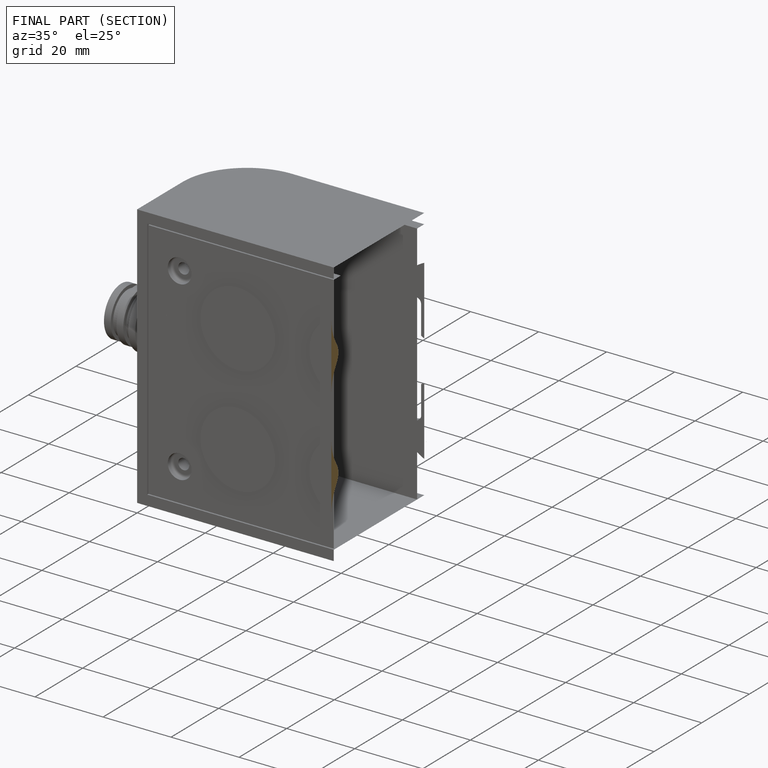
[diagram: finished part — half-section view (interior)]
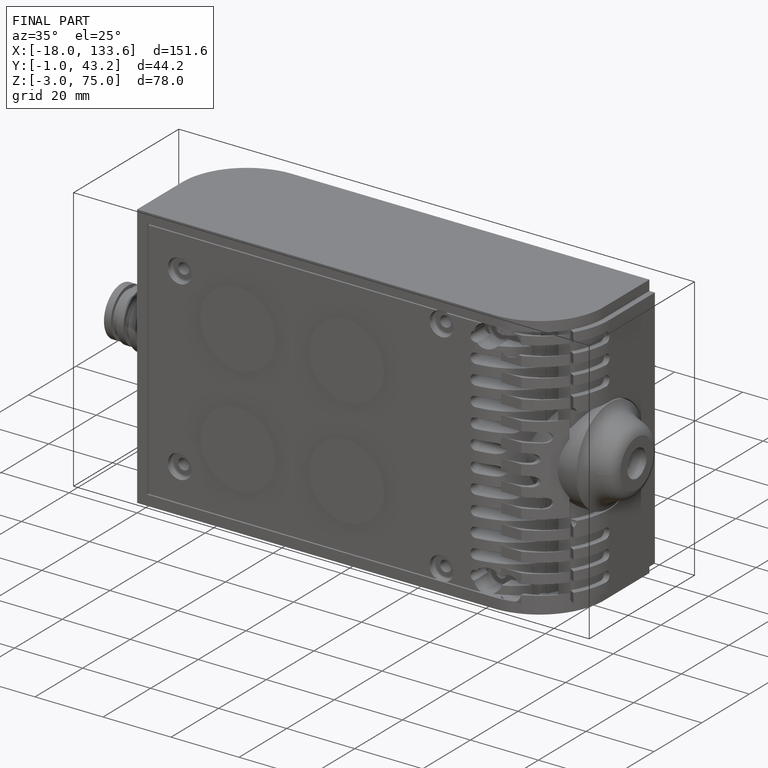
[diagram: finished part — iso view with bounding-box wireframe]
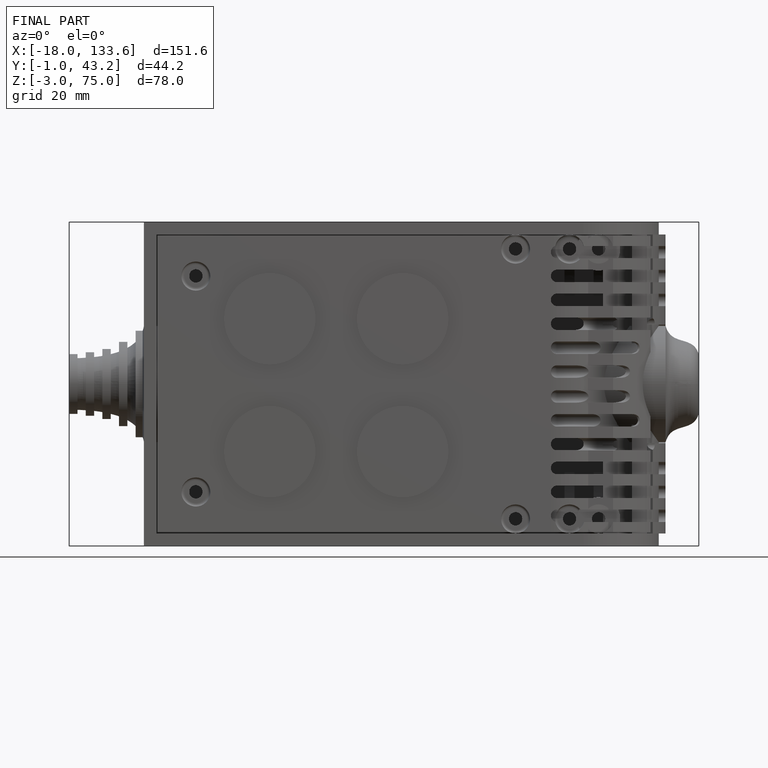
[diagram: finished part — front view with bounding-box wireframe]
